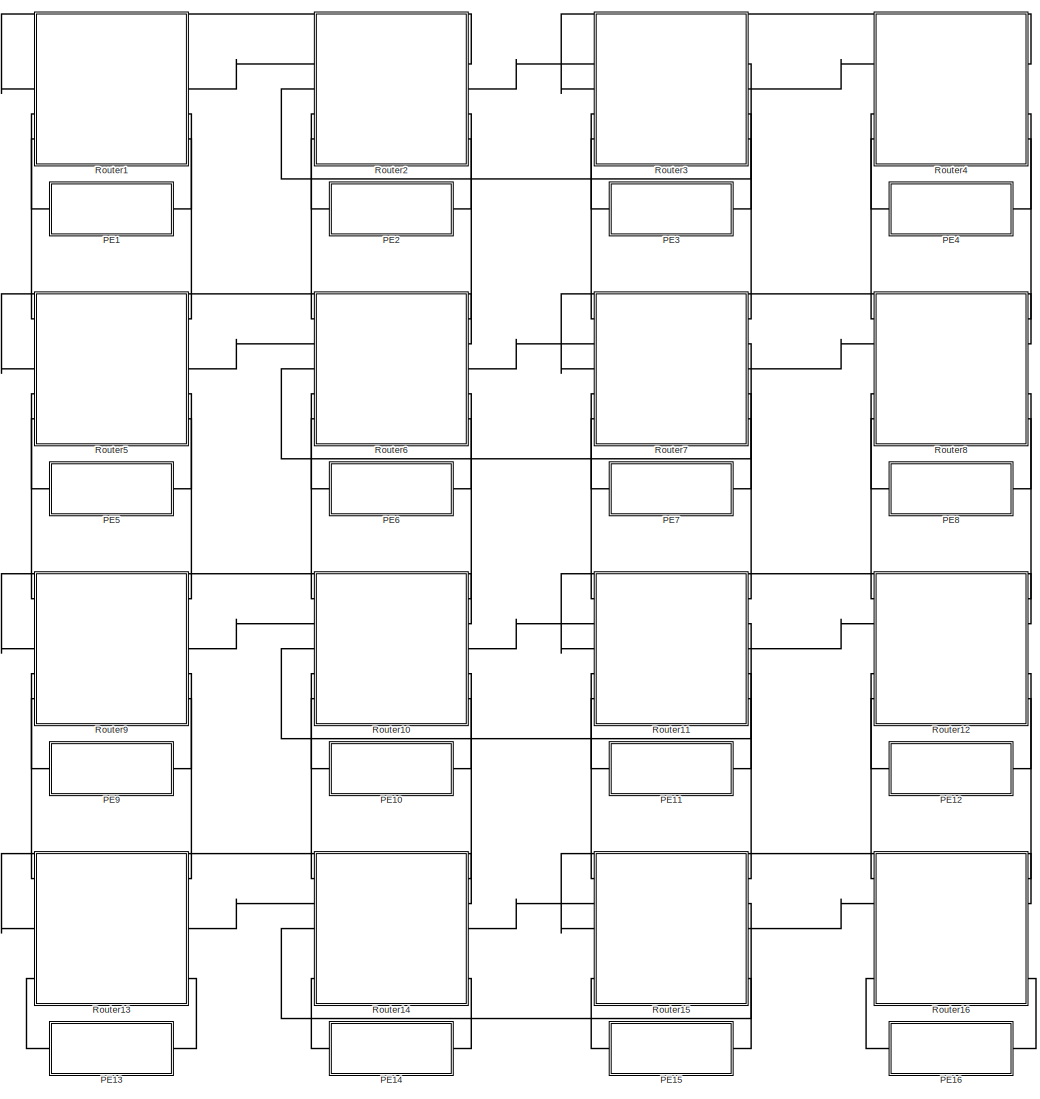
[diagram: root canvas - part 1/1, most of the canvas]
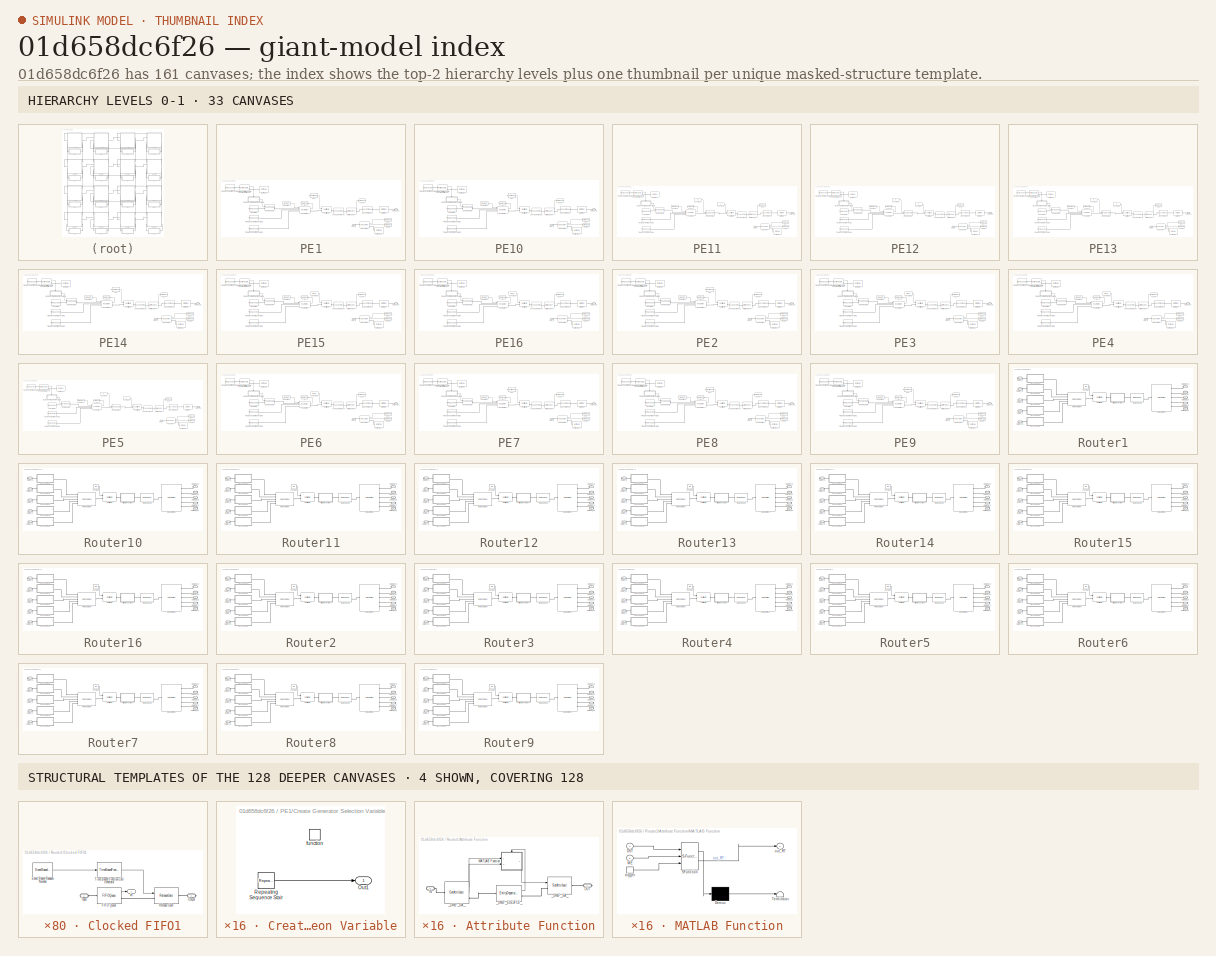
[diagram: thumbnail index - top-2 hierarchy levels (33 canvases) + 4 structural-template representatives of the remaining 128 canvases]
MODEL slx_01d658dc6f26
KIND model
CONFIG AbsTol = auto
CONFIG EnableMultiTasking = off
CONFIG FixedStep = auto
CONFIG MaxStep = auto
CONFIG MinStep = auto
CONFIG RelTol = 1e-3
CONFIG SampleTimeConstraint = Unconstrained
CONFIG SolverName = VariableStepAuto
CONFIG StartTime = 0.0
CONFIG StopTime = 10.0
BLOCK [SubSystem] PE1
  Ports = [0, 0, 0, 0, 0, 1, 1]
  RequestExecContextInheritance = off
BLOCK [CancelTimeout] PE1/Cancel Timeout
  Ports = [0, 0, 0, 0, 0, 1, 1]
BLOCK [Constant] PE1/Constant
  Value = SELECT
BLOCK [SubSystem] PE1/Create Generator Selection Variable
  Ports = [0, 1, 0, 1]
  RequestExecContextInheritance = off
  TreatAsAtomicUnit = on
BLOCK [Outport] PE1/Create Generator Selection Variable/Out1
BLOCK [Reference] PE1/Create Generator Selection Variable/Repeating Sequence Stair  REF=simulink/Sources/Repeating
Sequence
Stair
  Ports = [0, 1]
  SourceBlock = simulink/Sources/Repeating\nSequence\nStair
  SourceProductBaseCode = SL
  SourceType = Repeating Sequence Stair
BLOCK [TriggerPort] PE1/Create Generator Selection Variable/function
  Ports = []
  StatesWhenEnabling = held
  TriggerType = function-call
  VariantControl = (inherit)
BLOCK [EventBasedRandomNumber] PE1/DST
  Distribution = Arbitrary discrete
  OutputPortMap = o0
  Ports = [0, 1]
  Seed = SEED+5
  maxUnid = 16
  minUnid = 1
  numValueUnid = 5
  probVecDisc = P
  valueVecDisc = V
BLOCK [PMIOPort] PE1/Data_in
  Port = 2
  Side = Left
BLOCK [PMIOPort] PE1/Data_out1
  Side = Right
BLOCK [EnabledGate] PE1/Enabled Gate
  InputPortMap = u0
  Ports = [1, 0, 0, 0, 0, 1, 1]
BLOCK [EntityDepartureFunctionCallGenerator] PE1/Entity Departure Event to Function-Call Event
  OutputPortMap = o0
  Ports = [0, 1, 0, 0, 0, 1, 1]
BLOCK [EntitySink] PE1/Entity Sink
  Ports = [0, 0, 0, 0, 0, 1]
BLOCK [EntitySink] PE1/Entity Sink1
  Ports = [0, 0, 0, 0, 0, 1]
BLOCK [TimeBasedEntityGenerator] PE1/Generator 1
  Distribution = Exponential
  EntityType = Standard
  InitialSeed = SEED+10
  Maximum = .2
  Mean = B
  Period = .1
  Ports = [0, 0, 0, 0, 0, 0, 1]
  ResponseWhenUnblocked = Delayed restart
BLOCK [InfiniteServer] PE1/Infinite Server
  EnableTOPort = on
  OutputPortMap = o5
  Ports = [0, 1, 0, 0, 0, 1, 2]
  ServiceTime = D
  StatNumberTimedout = on
BLOCK [InputSwitch] PE1/Input Switch
  InputPortMap = u0
  NumberInputPorts = 4
  OutputPortMap = o0
  Ports = [1, 1, 0, 0, 0, 4, 1]
  StatNumberDeparted = on
  SwitchingCriterion = From signal port p
BLOCK [ToWorkspace] PE1/Inst
  FixptAsFi = on
  MaxDataPoints = inf
  Ports = [1]
  SampleTime = -1
  SaveFormat = Timeseries
  VariableName = Inst1
BLOCK [ToWorkspace] PE1/Loss
  FixptAsFi = on
  MaxDataPoints = inf
  Ports = [1]
  SampleTime = -1
  SaveFormat = Timeseries
  VariableName = Loss1
BLOCK [ToWorkspace] PE1/N
  FixptAsFi = on
  MaxDataPoints = inf
  NameLocation = top
  Ports = [1]
  SampleTime = -1
  SaveFormat = Timeseries
  VariableName = N1
BLOCK [ReadTimer] PE1/Read Timer
  OutputPortMap = o2,o3
  Ports = [0, 2, 0, 0, 0, 1, 1]
  StatAverageTimeElapsed = on
  StatTimeElapsed = on
  TimerTag = Departure
BLOCK [ToWorkspace] PE1/Router
  FixptAsFi = on
  MaxDataPoints = inf
  Ports = [1]
  SampleTime = -1
  SaveFormat = Timeseries
  VariableName = Mean1
BLOCK [ScheduleTimeout] PE1/Schedule Timeout
  Ports = [0, 0, 0, 0, 0, 1, 1]
  TimeoutInterval = D
BLOCK [SetAttribute] PE1/Set Attribute
  AttributeFrom = Signal port|Dialog
  AttributeName = DST|SRC
  AttributeTreatAsVector = 0|0
  AttributeValue = 16|1
  EvaluatedAttributeValue = { [];1}
  InputPortMap = u0
  OutputPortMap = o0
  Ports = [1, 1, 0, 0, 0, 1, 1]
  StatNumberDeparted = on
BLOCK [StartTimer] PE1/Start Timer
  Ports = [0, 0, 0, 0, 0, 1, 1]
  TimerTag = Departure
BLOCK [TimeBasedEntityGenerator] PE1/Time-Based Entity Generator
  Distribution = Exponential
  EntityType = Standard
  InitialSeed = SEED
  Maximum = 2
  Mean = A
  Period = 15
  Ports = [0, 0, 0, 0, 0, 0, 1]
  PriorityEntityGeneration = 350
BLOCK [TimeBasedEntityGenerator] PE1/Time-Based Entity Generator1
  Period = REGULAR
  Ports = [0, 0, 0, 0, 0, 0, 1]
BLOCK [TimeBasedEntityGenerator] PE1/Time-Based Entity Generator2
  Distribution = Uniform
  InitialSeed = SEED
  Maximum = MAXU
  Minimum = MINU
  Ports = [0, 0, 0, 0, 0, 0, 1]
BLOCK [SubSystem] PE10
  Ports = [0, 0, 0, 0, 0, 1, 1]
  RequestExecContextInheritance = off
BLOCK [CancelTimeout] PE10/Cancel Timeout
  Ports = [0, 0, 0, 0, 0, 1, 1]
BLOCK [Constant] PE10/Constant
  Value = SELECT
BLOCK [SubSystem] PE10/Create Generator Selection Variable
  Ports = [0, 1, 0, 1]
  RequestExecContextInheritance = off
  TreatAsAtomicUnit = on
BLOCK [Outport] PE10/Create Generator Selection Variable/Out1
BLOCK [Reference] PE10/Create Generator Selection Variable/Repeating Sequence Stair  REF=simulink/Sources/Repeating
Sequence
Stair
  Ports = [0, 1]
  SourceBlock = simulink/Sources/Repeating\nSequence\nStair
  SourceProductBaseCode = SL
  SourceType = Repeating Sequence Stair
BLOCK [TriggerPort] PE10/Create Generator Selection Variable/function
  Ports = []
  StatesWhenEnabling = held
  TriggerType = function-call
  VariantControl = (inherit)
BLOCK [EventBasedRandomNumber] PE10/DST
  Distribution = Arbitrary discrete
  OutputPortMap = o0
  Ports = [0, 1]
  Seed = SEED+5
  maxUnid = 16
  minUnid = 1
  numValueUnid = 5
  probVecDisc = P
  valueVecDisc = V
BLOCK [PMIOPort] PE10/Data_in
  Port = 2
  Side = Left
BLOCK [PMIOPort] PE10/Data_out1
  Side = Right
BLOCK [EnabledGate] PE10/Enabled Gate
  InputPortMap = u0
  Ports = [1, 0, 0, 0, 0, 1, 1]
BLOCK [EntityDepartureFunctionCallGenerator] PE10/Entity Departure Event to Function-Call Event
  OutputPortMap = o0
  Ports = [0, 1, 0, 0, 0, 1, 1]
BLOCK [EntitySink] PE10/Entity Sink
  Ports = [0, 0, 0, 0, 0, 1]
BLOCK [EntitySink] PE10/Entity Sink1
  Ports = [0, 0, 0, 0, 0, 1]
BLOCK [TimeBasedEntityGenerator] PE10/Generator 1
  Distribution = Exponential
  EntityType = Standard
  InitialSeed = SEED+10
  Maximum = .2
  Mean = B
  Period = .1
  Ports = [0, 0, 0, 0, 0, 0, 1]
  ResponseWhenUnblocked = Delayed restart
BLOCK [InfiniteServer] PE10/Infinite Server
  EnableTOPort = on
  OutputPortMap = o5
  Ports = [0, 1, 0, 0, 0, 1, 2]
  ServiceTime = D
  StatNumberTimedout = on
BLOCK [InputSwitch] PE10/Input Switch
  InputPortMap = u0
  NumberInputPorts = 4
  OutputPortMap = o0
  Ports = [1, 1, 0, 0, 0, 4, 1]
  StatNumberDeparted = on
  SwitchingCriterion = From signal port p
BLOCK [ToWorkspace] PE10/Inst
  FixptAsFi = on
  MaxDataPoints = inf
  Ports = [1]
  SampleTime = -1
  SaveFormat = Timeseries
  VariableName = Inst10
BLOCK [ToWorkspace] PE10/Loss
  FixptAsFi = on
  MaxDataPoints = inf
  Ports = [1]
  SampleTime = -1
  SaveFormat = Timeseries
  VariableName = Loss10
BLOCK [ToWorkspace] PE10/N
  FixptAsFi = on
  MaxDataPoints = inf
  NameLocation = top
  Ports = [1]
  SampleTime = -1
  SaveFormat = Timeseries
  VariableName = N10
BLOCK [ReadTimer] PE10/Read Timer
  OutputPortMap = o2,o3
  Ports = [0, 2, 0, 0, 0, 1, 1]
  StatAverageTimeElapsed = on
  StatTimeElapsed = on
  TimerTag = Departure
BLOCK [ToWorkspace] PE10/Router
  FixptAsFi = on
  MaxDataPoints = inf
  Ports = [1]
  SampleTime = -1
  SaveFormat = Timeseries
  VariableName = Mean10
BLOCK [ScheduleTimeout] PE10/Schedule Timeout
  Ports = [0, 0, 0, 0, 0, 1, 1]
  TimeoutInterval = D
BLOCK [SetAttribute] PE10/Set Attribute
  AttributeFrom = Signal port|Dialog
  AttributeName = DST|SRC
  AttributeTreatAsVector = 0|0
  AttributeValue = 16|1
  EvaluatedAttributeValue = { [];1}
  InputPortMap = u0
  OutputPortMap = o0
  Ports = [1, 1, 0, 0, 0, 1, 1]
  StatNumberDeparted = on
BLOCK [StartTimer] PE10/Start Timer
  Ports = [0, 0, 0, 0, 0, 1, 1]
  TimerTag = Departure
BLOCK [TimeBasedEntityGenerator] PE10/Time-Based Entity Generator
  Distribution = Exponential
  EntityType = Standard
  InitialSeed = SEED
  Maximum = 2
  Mean = A
  Period = 15
  Ports = [0, 0, 0, 0, 0, 0, 1]
  PriorityEntityGeneration = 350
BLOCK [TimeBasedEntityGenerator] PE10/Time-Based Entity Generator1
  Period = REGULAR
  Ports = [0, 0, 0, 0, 0, 0, 1]
BLOCK [TimeBasedEntityGenerator] PE10/Time-Based Entity Generator2
  Distribution = Uniform
  InitialSeed = SEED
  Maximum = MAXU
  Minimum = MINU
  Ports = [0, 0, 0, 0, 0, 0, 1]
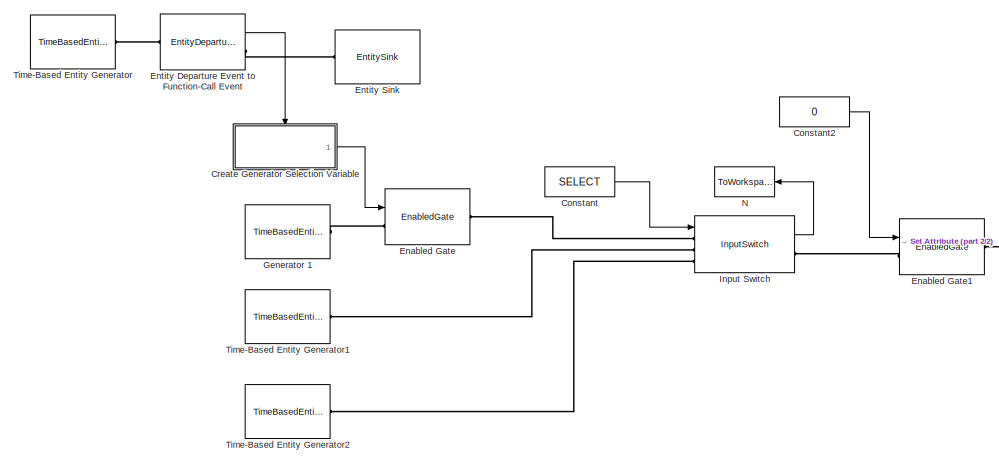
[diagram: PE11 - part 1/2, left side, full height]
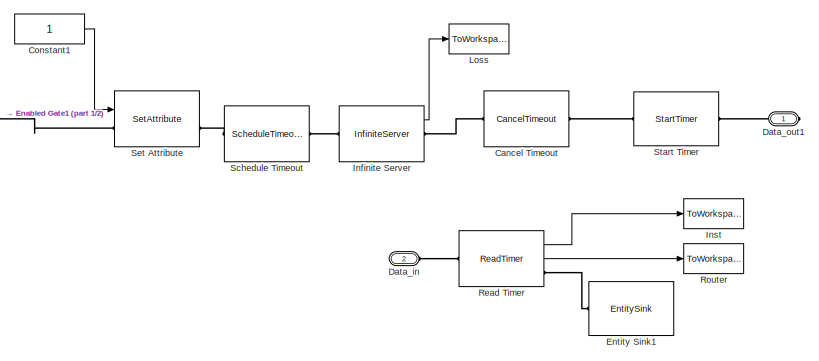
[diagram: PE11 - part 2/2, middle right region]
BLOCK [SubSystem] PE11
  Ports = [0, 0, 0, 0, 0, 1, 1]
  RequestExecContextInheritance = off
BLOCK [CancelTimeout] PE11/Cancel Timeout
  Ports = [0, 0, 0, 0, 0, 1, 1]
BLOCK [Constant] PE11/Constant
  Value = SELECT
BLOCK [Constant] PE11/Constant1
BLOCK [Constant] PE11/Constant2
  Value = 0
BLOCK [SubSystem] PE11/Create Generator Selection Variable
  Ports = [0, 1, 0, 1]
  RequestExecContextInheritance = off
  TreatAsAtomicUnit = on
BLOCK [Outport] PE11/Create Generator Selection Variable/Out1
BLOCK [Reference] PE11/Create Generator Selection Variable/Repeating Sequence Stair  REF=simulink/Sources/Repeating
Sequence
Stair
  Ports = [0, 1]
  SourceBlock = simulink/Sources/Repeating\nSequence\nStair
  SourceProductBaseCode = SL
  SourceType = Repeating Sequence Stair
BLOCK [TriggerPort] PE11/Create Generator Selection Variable/function
  Ports = []
  StatesWhenEnabling = held
  TriggerType = function-call
  VariantControl = (inherit)
BLOCK [PMIOPort] PE11/Data_in
  Port = 2
  Side = Left
BLOCK [PMIOPort] PE11/Data_out1
  Side = Right
BLOCK [EnabledGate] PE11/Enabled Gate
  InputPortMap = u0
  Ports = [1, 0, 0, 0, 0, 1, 1]
BLOCK [EnabledGate] PE11/Enabled Gate1
  InputPortMap = u0
  Ports = [1, 0, 0, 0, 0, 1, 1]
BLOCK [EntityDepartureFunctionCallGenerator] PE11/Entity Departure Event to Function-Call Event
  OutputPortMap = o0
  Ports = [0, 1, 0, 0, 0, 1, 1]
BLOCK [EntitySink] PE11/Entity Sink
  Ports = [0, 0, 0, 0, 0, 1]
BLOCK [EntitySink] PE11/Entity Sink1
  Ports = [0, 0, 0, 0, 0, 1]
BLOCK [TimeBasedEntityGenerator] PE11/Generator 1
  Distribution = Exponential
  EntityType = Standard
  InitialSeed = SEED+10
  Maximum = .2
  Mean = B
  Period = .1
  Ports = [0, 0, 0, 0, 0, 0, 1]
  ResponseWhenUnblocked = Delayed restart
BLOCK [InfiniteServer] PE11/Infinite Server
  EnableTOPort = on
  OutputPortMap = o5
  Ports = [0, 1, 0, 0, 0, 1, 2]
  ServiceTime = D
  StatNumberTimedout = on
BLOCK [InputSwitch] PE11/Input Switch
  InputPortMap = u0
  OutputPortMap = o0
  Ports = [1, 1, 0, 0, 0, 3, 1]
  StatNumberDeparted = on
  SwitchingCriterion = From signal port p
BLOCK [ToWorkspace] PE11/Inst
  FixptAsFi = on
  MaxDataPoints = inf
  Ports = [1]
  SampleTime = -1
  SaveFormat = Timeseries
  VariableName = Inst11
BLOCK [ToWorkspace] PE11/Loss
  FixptAsFi = on
  MaxDataPoints = inf
  Ports = [1]
  SampleTime = -1
  SaveFormat = Timeseries
  VariableName = Loss11
BLOCK [ToWorkspace] PE11/N
  FixptAsFi = on
  MaxDataPoints = inf
  NameLocation = top
  Ports = [1]
  SampleTime = -1
  SaveFormat = Timeseries
  VariableName = N11
BLOCK [ReadTimer] PE11/Read Timer
  OutputPortMap = o2,o3
  Ports = [0, 2, 0, 0, 0, 1, 1]
  StatAverageTimeElapsed = on
  StatTimeElapsed = on
  TimerTag = Departure
BLOCK [ToWorkspace] PE11/Router
  FixptAsFi = on
  MaxDataPoints = inf
  Ports = [1]
  SampleTime = -1
  SaveFormat = Timeseries
  VariableName = Mean11
BLOCK [ScheduleTimeout] PE11/Schedule Timeout
  Ports = [0, 0, 0, 0, 0, 1, 1]
  TimeoutInterval = D
BLOCK [SetAttribute] PE11/Set Attribute
  AttributeFrom = Signal port|Dialog
  AttributeName = DST|SRC
  AttributeTreatAsVector = 0|0
  AttributeValue = 16|1
  EvaluatedAttributeValue = { [];1}
  InputPortMap = u0
  OutputPortMap = o0
  Ports = [1, 1, 0, 0, 0, 1, 1]
  StatNumberDeparted = on
BLOCK [StartTimer] PE11/Start Timer
  Ports = [0, 0, 0, 0, 0, 1, 1]
  TimerTag = Departure
BLOCK [TimeBasedEntityGenerator] PE11/Time-Based Entity Generator
  Distribution = Exponential
  EntityType = Standard
  InitialSeed = SEED
  Maximum = 2
  Mean = A
  Period = 15
  Ports = [0, 0, 0, 0, 0, 0, 1]
  PriorityEntityGeneration = 350
BLOCK [TimeBasedEntityGenerator] PE11/Time-Based Entity Generator1
  Period = REGULAR
  Ports = [0, 0, 0, 0, 0, 0, 1]
BLOCK [TimeBasedEntityGenerator] PE11/Time-Based Entity Generator2
  Distribution = Uniform
  InitialSeed = SEED
  Maximum = MAXU
  Minimum = MINU
  Ports = [0, 0, 0, 0, 0, 0, 1]
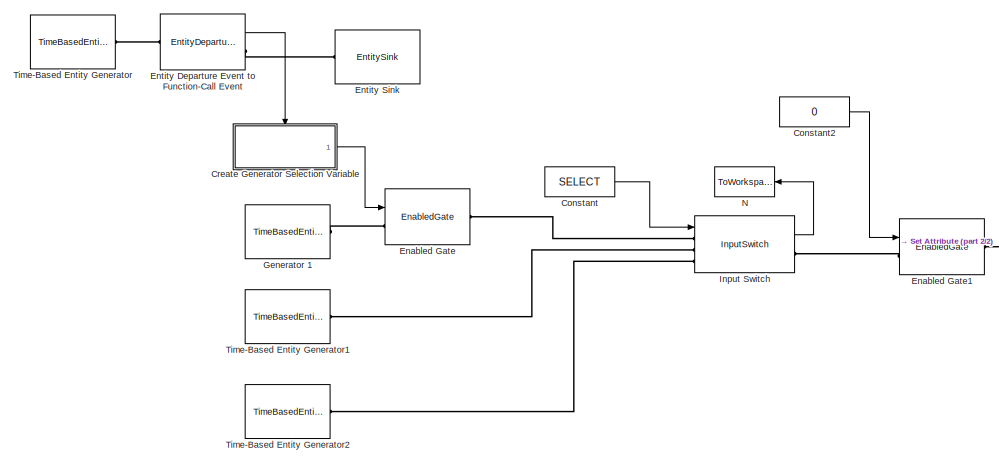
[diagram: PE12 - part 1/2, left side, full height]
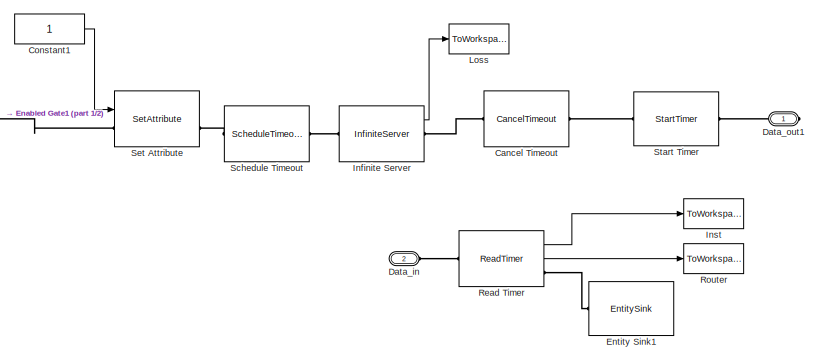
[diagram: PE12 - part 2/2, middle right region]
BLOCK [SubSystem] PE12
  Ports = [0, 0, 0, 0, 0, 1, 1]
  RequestExecContextInheritance = off
BLOCK [CancelTimeout] PE12/Cancel Timeout
  Ports = [0, 0, 0, 0, 0, 1, 1]
BLOCK [Constant] PE12/Constant
  Value = SELECT
BLOCK [Constant] PE12/Constant1
BLOCK [Constant] PE12/Constant2
  Value = 0
BLOCK [SubSystem] PE12/Create Generator Selection Variable
  Ports = [0, 1, 0, 1]
  RequestExecContextInheritance = off
  TreatAsAtomicUnit = on
BLOCK [Outport] PE12/Create Generator Selection Variable/Out1
BLOCK [Reference] PE12/Create Generator Selection Variable/Repeating Sequence Stair  REF=simulink/Sources/Repeating
Sequence
Stair
  Ports = [0, 1]
  SourceBlock = simulink/Sources/Repeating\nSequence\nStair
  SourceProductBaseCode = SL
  SourceType = Repeating Sequence Stair
BLOCK [TriggerPort] PE12/Create Generator Selection Variable/function
  Ports = []
  StatesWhenEnabling = held
  TriggerType = function-call
  VariantControl = (inherit)
BLOCK [PMIOPort] PE12/Data_in
  Port = 2
  Side = Left
BLOCK [PMIOPort] PE12/Data_out1
  Side = Right
BLOCK [EnabledGate] PE12/Enabled Gate
  InputPortMap = u0
  Ports = [1, 0, 0, 0, 0, 1, 1]
BLOCK [EnabledGate] PE12/Enabled Gate1
  InputPortMap = u0
  Ports = [1, 0, 0, 0, 0, 1, 1]
BLOCK [EntityDepartureFunctionCallGenerator] PE12/Entity Departure Event to Function-Call Event
  OutputPortMap = o0
  Ports = [0, 1, 0, 0, 0, 1, 1]
BLOCK [EntitySink] PE12/Entity Sink
  Ports = [0, 0, 0, 0, 0, 1]
BLOCK [EntitySink] PE12/Entity Sink1
  Ports = [0, 0, 0, 0, 0, 1]
BLOCK [TimeBasedEntityGenerator] PE12/Generator 1
  Distribution = Exponential
  EntityType = Standard
  InitialSeed = SEED+10
  Maximum = .2
  Mean = B
  Period = .1
  Ports = [0, 0, 0, 0, 0, 0, 1]
  ResponseWhenUnblocked = Delayed restart
BLOCK [InfiniteServer] PE12/Infinite Server
  EnableTOPort = on
  OutputPortMap = o5
  Ports = [0, 1, 0, 0, 0, 1, 2]
  ServiceTime = D
  StatNumberTimedout = on
BLOCK [InputSwitch] PE12/Input Switch
  InputPortMap = u0
  OutputPortMap = o0
  Ports = [1, 1, 0, 0, 0, 3, 1]
  StatNumberDeparted = on
  SwitchingCriterion = From signal port p
BLOCK [ToWorkspace] PE12/Inst
  FixptAsFi = on
  MaxDataPoints = inf
  Ports = [1]
  SampleTime = -1
  SaveFormat = Timeseries
  VariableName = Inst12
BLOCK [ToWorkspace] PE12/Loss
  FixptAsFi = on
  MaxDataPoints = inf
  Ports = [1]
  SampleTime = -1
  SaveFormat = Timeseries
  VariableName = Loss12
BLOCK [ToWorkspace] PE12/N
  FixptAsFi = on
  MaxDataPoints = inf
  NameLocation = top
  Ports = [1]
  SampleTime = -1
  SaveFormat = Timeseries
  VariableName = N12
BLOCK [ReadTimer] PE12/Read Timer
  OutputPortMap = o2,o3
  Ports = [0, 2, 0, 0, 0, 1, 1]
  StatAverageTimeElapsed = on
  StatTimeElapsed = on
  TimerTag = Departure
BLOCK [ToWorkspace] PE12/Router
  FixptAsFi = on
  MaxDataPoints = inf
  Ports = [1]
  SampleTime = -1
  SaveFormat = Timeseries
  VariableName = Mean12
BLOCK [ScheduleTimeout] PE12/Schedule Timeout
  Ports = [0, 0, 0, 0, 0, 1, 1]
  TimeoutInterval = D
BLOCK [SetAttribute] PE12/Set Attribute
  AttributeFrom = Signal port|Dialog
  AttributeName = DST|SRC
  AttributeTreatAsVector = 0|0
  AttributeValue = 16|1
  EvaluatedAttributeValue = { [];1}
  InputPortMap = u0
  OutputPortMap = o0
  Ports = [1, 1, 0, 0, 0, 1, 1]
  StatNumberDeparted = on
BLOCK [StartTimer] PE12/Start Timer
  Ports = [0, 0, 0, 0, 0, 1, 1]
  TimerTag = Departure
BLOCK [TimeBasedEntityGenerator] PE12/Time-Based Entity Generator
  Distribution = Exponential
  EntityType = Standard
  InitialSeed = SEED
  Maximum = 2
  Mean = A
  Period = 15
  Ports = [0, 0, 0, 0, 0, 0, 1]
  PriorityEntityGeneration = 350
BLOCK [TimeBasedEntityGenerator] PE12/Time-Based Entity Generator1
  Period = REGULAR
  Ports = [0, 0, 0, 0, 0, 0, 1]
BLOCK [TimeBasedEntityGenerator] PE12/Time-Based Entity Generator2
  Distribution = Uniform
  InitialSeed = SEED
  Maximum = MAXU
  Minimum = MINU
  Ports = [0, 0, 0, 0, 0, 0, 1]
BLOCK [SubSystem] PE13
  Ports = [0, 0, 0, 0, 0, 1, 1]
  RequestExecContextInheritance = off
BLOCK [CancelTimeout] PE13/Cancel Timeout
  Ports = [0, 0, 0, 0, 0, 1, 1]
BLOCK [Constant] PE13/Constant
  Value = SELECT
BLOCK [Constant] PE13/Constant1
BLOCK [Constant] PE13/Constant2
  Value = 0
BLOCK [SubSystem] PE13/Create Generator Selection Variable
  Ports = [0, 1, 0, 1]
  RequestExecContextInheritance = off
  TreatAsAtomicUnit = on
BLOCK [Outport] PE13/Create Generator Selection Variable/Out1
BLOCK [Reference] PE13/Create Generator Selection Variable/Repeating Sequence Stair  REF=simulink/Sources/Repeating
Sequence
Stair
  Ports = [0, 1]
  SourceBlock = simulink/Sources/Repeating\nSequence\nStair
  SourceProductBaseCode = SL
  SourceType = Repeating Sequence Stair
BLOCK [TriggerPort] PE13/Create Generator Selection Variable/function
  Ports = []
  StatesWhenEnabling = held
  TriggerType = function-call
  VariantControl = (inherit)
BLOCK [PMIOPort] PE13/Data_in
  Port = 2
  Side = Left
BLOCK [PMIOPort] PE13/Data_out1
  Side = Right
BLOCK [EnabledGate] PE13/Enabled Gate
  InputPortMap = u0
  Ports = [1, 0, 0, 0, 0, 1, 1]
BLOCK [EnabledGate] PE13/Enabled Gate1
  InputPortMap = u0
  Ports = [1, 0, 0, 0, 0, 1, 1]
BLOCK [EntityDepartureFunctionCallGenerator] PE13/Entity Departure Event to Function-Call Event
  OutputPortMap = o0
  Ports = [0, 1, 0, 0, 0, 1, 1]
BLOCK [EntitySink] PE13/Entity Sink
  Ports = [0, 0, 0, 0, 0, 1]
BLOCK [EntitySink] PE13/Entity Sink1
  Ports = [0, 0, 0, 0, 0, 1]
BLOCK [TimeBasedEntityGenerator] PE13/Generator 1
  Distribution = Exponential
  EntityType = Standard
  InitialSeed = SEED+10
  Maximum = .2
  Mean = B
  Period = .1
  Ports = [0, 0, 0, 0, 0, 0, 1]
  ResponseWhenUnblocked = Delayed restart
BLOCK [InfiniteServer] PE13/Infinite Server
  EnableTOPort = on
  OutputPortMap = o5
  Ports = [0, 1, 0, 0, 0, 1, 2]
  ServiceTime = D
  StatNumberTimedout = on
BLOCK [InputSwitch] PE13/Input Switch
  InputPortMap = u0
  OutputPortMap = o0
  Ports = [1, 1, 0, 0, 0, 3, 1]
  StatNumberDeparted = on
  SwitchingCriterion = From signal port p
BLOCK [ToWorkspace] PE13/Inst
  FixptAsFi = on
  MaxDataPoints = inf
  Ports = [1]
  SampleTime = -1
  SaveFormat = Timeseries
  VariableName = Inst13
BLOCK [ToWorkspace] PE13/Loss
  FixptAsFi = on
  MaxDataPoints = inf
  Ports = [1]
  SampleTime = -1
  SaveFormat = Timeseries
  VariableName = Loss13
BLOCK [ToWorkspace] PE13/N
  FixptAsFi = on
  MaxDataPoints = inf
  NameLocation = top
  Ports = [1]
  SampleTime = -1
  SaveFormat = Timeseries
  VariableName = N13
BLOCK [ReadTimer] PE13/Read Timer
  OutputPortMap = o2,o3
  Ports = [0, 2, 0, 0, 0, 1, 1]
  StatAverageTimeElapsed = on
  StatTimeElapsed = on
  TimerTag = Departure
BLOCK [ToWorkspace] PE13/Router
  FixptAsFi = on
  MaxDataPoints = inf
  Ports = [1]
  SampleTime = -1
  SaveFormat = Timeseries
  VariableName = Mean13
BLOCK [ScheduleTimeout] PE13/Schedule Timeout
  Ports = [0, 0, 0, 0, 0, 1, 1]
  TimeoutInterval = D
BLOCK [SetAttribute] PE13/Set Attribute
  AttributeFrom = Signal port|Dialog
  AttributeName = DST|SRC
  AttributeTreatAsVector = 0|0
  AttributeValue = 16|1
  EvaluatedAttributeValue = { [];1}
  InputPortMap = u0
  OutputPortMap = o0
  Ports = [1, 1, 0, 0, 0, 1, 1]
  StatNumberDeparted = on
BLOCK [StartTimer] PE13/Start Timer
  Ports = [0, 0, 0, 0, 0, 1, 1]
  TimerTag = Departure
BLOCK [TimeBasedEntityGenerator] PE13/Time-Based Entity Generator
  Distribution = Exponential
  EntityType = Standard
  InitialSeed = SEED
  Maximum = 2
  Mean = A
  Period = 15
  Ports = [0, 0, 0, 0, 0, 0, 1]
  PriorityEntityGeneration = 350
BLOCK [TimeBasedEntityGenerator] PE13/Time-Based Entity Generator1
  Period = REGULAR
  Ports = [0, 0, 0, 0, 0, 0, 1]
BLOCK [TimeBasedEntityGenerator] PE13/Time-Based Entity Generator2
  Distribution = Uniform
  InitialSeed = SEED
  Maximum = MAXU
  Minimum = MINU
  Ports = [0, 0, 0, 0, 0, 0, 1]
BLOCK [SubSystem] PE14
  Ports = [0, 0, 0, 0, 0, 1, 1]
  RequestExecContextInheritance = off
BLOCK [CancelTimeout] PE14/Cancel Timeout
  Ports = [0, 0, 0, 0, 0, 1, 1]
BLOCK [Constant] PE14/Constant
  Value = SELECT
BLOCK [SubSystem] PE14/Create Generator Selection Variable
  Ports = [0, 1, 0, 1]
  RequestExecContextInheritance = off
  TreatAsAtomicUnit = on
BLOCK [Outport] PE14/Create Generator Selection Variable/Out1
BLOCK [Reference] PE14/Create Generator Selection Variable/Repeating Sequence Stair  REF=simulink/Sources/Repeating
Sequence
Stair
  Ports = [0, 1]
  SourceBlock = simulink/Sources/Repeating\nSequence\nStair
  SourceProductBaseCode = SL
  SourceType = Repeating Sequence Stair
BLOCK [TriggerPort] PE14/Create Generator Selection Variable/function
  Ports = []
  StatesWhenEnabling = held
  TriggerType = function-call
  VariantControl = (inherit)
BLOCK [EventBasedRandomNumber] PE14/DST
  Distribution = Arbitrary discrete
  OutputPortMap = o0
  Ports = [0, 1]
  Seed = SEED+5
  maxUnid = 16
  minUnid = 1
  numValueUnid = 5
  probVecDisc = P
  valueVecDisc = V
BLOCK [PMIOPort] PE14/Data_in
  Port = 2
  Side = Left
BLOCK [PMIOPort] PE14/Data_out1
  Side = Right
BLOCK [EnabledGate] PE14/Enabled Gate
  InputPortMap = u0
  Ports = [1, 0, 0, 0, 0, 1, 1]
BLOCK [EntityDepartureFunctionCallGenerator] PE14/Entity Departure Event to Function-Call Event
  OutputPortMap = o0
  Ports = [0, 1, 0, 0, 0, 1, 1]
BLOCK [EntitySink] PE14/Entity Sink
  Ports = [0, 0, 0, 0, 0, 1]
BLOCK [EntitySink] PE14/Entity Sink1
  Ports = [0, 0, 0, 0, 0, 1]
BLOCK [TimeBasedEntityGenerator] PE14/Generator 1
  Distribution = Exponential
  EntityType = Standard
  InitialSeed = SEED+10
  Maximum = .2
  Mean = B
  Period = .1
  Ports = [0, 0, 0, 0, 0, 0, 1]
  ResponseWhenUnblocked = Delayed restart
BLOCK [InfiniteServer] PE14/Infinite Server
  EnableTOPort = on
  OutputPortMap = o5
  Ports = [0, 1, 0, 0, 0, 1, 2]
  ServiceTime = D
  StatNumberTimedout = on
BLOCK [InputSwitch] PE14/Input Switch
  InputPortMap = u0
  NumberInputPorts = 4
  OutputPortMap = o0
  Ports = [1, 1, 0, 0, 0, 4, 1]
  StatNumberDeparted = on
  SwitchingCriterion = From signal port p
BLOCK [ToWorkspace] PE14/Inst
  FixptAsFi = on
  MaxDataPoints = inf
  Ports = [1]
  SampleTime = -1
  SaveFormat = Timeseries
  VariableName = Inst14
BLOCK [ToWorkspace] PE14/Loss
  FixptAsFi = on
  MaxDataPoints = inf
  Ports = [1]
  SampleTime = -1
  SaveFormat = Timeseries
  VariableName = Loss14
BLOCK [ToWorkspace] PE14/N
  FixptAsFi = on
  MaxDataPoints = inf
  NameLocation = top
  Ports = [1]
  SampleTime = -1
  SaveFormat = Timeseries
  VariableName = N14
BLOCK [ReadTimer] PE14/Read Timer
  OutputPortMap = o2,o3
  Ports = [0, 2, 0, 0, 0, 1, 1]
  StatAverageTimeElapsed = on
  StatTimeElapsed = on
  TimerTag = Departure
BLOCK [ToWorkspace] PE14/Router
  FixptAsFi = on
  MaxDataPoints = inf
  Ports = [1]
  SampleTime = -1
  SaveFormat = Timeseries
  VariableName = Mean14
BLOCK [ScheduleTimeout] PE14/Schedule Timeout
  Ports = [0, 0, 0, 0, 0, 1, 1]
  TimeoutInterval = D
BLOCK [SetAttribute] PE14/Set Attribute
  AttributeFrom = Signal port|Dialog
  AttributeName = DST|SRC
  AttributeTreatAsVector = 0|0
  AttributeValue = 16|1
  EvaluatedAttributeValue = { [];1}
  InputPortMap = u0
  OutputPortMap = o0
  Ports = [1, 1, 0, 0, 0, 1, 1]
  StatNumberDeparted = on
BLOCK [StartTimer] PE14/Start Timer
  Ports = [0, 0, 0, 0, 0, 1, 1]
  TimerTag = Departure
BLOCK [TimeBasedEntityGenerator] PE14/Time-Based Entity Generator
  Distribution = Exponential
  EntityType = Standard
  InitialSeed = SEED
  Maximum = 2
  Mean = A
  Period = 15
  Ports = [0, 0, 0, 0, 0, 0, 1]
  PriorityEntityGeneration = 350
BLOCK [TimeBasedEntityGenerator] PE14/Time-Based Entity Generator1
  Period = REGULAR
  Ports = [0, 0, 0, 0, 0, 0, 1]
BLOCK [TimeBasedEntityGenerator] PE14/Time-Based Entity Generator2
  Distribution = Uniform
  InitialSeed = SEED
  Maximum = MAXU
  Minimum = MINU
  Ports = [0, 0, 0, 0, 0, 0, 1]
BLOCK [SubSystem] PE15
  Ports = [0, 0, 0, 0, 0, 1, 1]
  RequestExecContextInheritance = off
BLOCK [CancelTimeout] PE15/Cancel Timeout
  Ports = [0, 0, 0, 0, 0, 1, 1]
BLOCK [Constant] PE15/Constant
  Value = SELECT
BLOCK [Constant] PE15/Constant1
  Value = DST1
BLOCK [SubSystem] PE15/Create Generator Selection Variable
  Ports = [0, 1, 0, 1]
  RequestExecContextInheritance = off
  TreatAsAtomicUnit = on
BLOCK [Outport] PE15/Create Generator Selection Variable/Out1
BLOCK [Reference] PE15/Create Generator Selection Variable/Repeating Sequence Stair  REF=simulink/Sources/Repeating
Sequence
Stair
  Ports = [0, 1]
  SourceBlock = simulink/Sources/Repeating\nSequence\nStair
  SourceProductBaseCode = SL
  SourceType = Repeating Sequence Stair
BLOCK [TriggerPort] PE15/Create Generator Selection Variable/function
  Ports = []
  StatesWhenEnabling = held
  TriggerType = function-call
  VariantControl = (inherit)
BLOCK [PMIOPort] PE15/Data_in
  Port = 2
  Side = Left
BLOCK [PMIOPort] PE15/Data_out1
  Side = Right
BLOCK [EnabledGate] PE15/Enabled Gate
  InputPortMap = u0
  Ports = [1, 0, 0, 0, 0, 1, 1]
BLOCK [EntityDepartureFunctionCallGenerator] PE15/Entity Departure Event to Function-Call Event
  OutputPortMap = o0
  Ports = [0, 1, 0, 0, 0, 1, 1]
BLOCK [EntitySink] PE15/Entity Sink
  Ports = [0, 0, 0, 0, 0, 1]
BLOCK [EntitySink] PE15/Entity Sink1
  Ports = [0, 0, 0, 0, 0, 1]
BLOCK [TimeBasedEntityGenerator] PE15/Generator 1
  Distribution = Exponential
  EntityType = Standard
  InitialSeed = SEED+10
  Maximum = .2
  Mean = B
  Period = .1
  Ports = [0, 0, 0, 0, 0, 0, 1]
  ResponseWhenUnblocked = Delayed restart
BLOCK [InfiniteServer] PE15/Infinite Server
  EnableTOPort = on
  OutputPortMap = o5
  Ports = [0, 1, 0, 0, 0, 1, 2]
  ServiceTime = D
  StatNumberTimedout = on
BLOCK [InputSwitch] PE15/Input Switch
  InputPortMap = u0
  OutputPortMap = o0
  Ports = [1, 1, 0, 0, 0, 3, 1]
  StatNumberDeparted = on
  SwitchingCriterion = From signal port p
BLOCK [ToWorkspace] PE15/Inst
  FixptAsFi = on
  MaxDataPoints = inf
  Ports = [1]
  SampleTime = -1
  SaveFormat = Timeseries
  VariableName = Inst15
BLOCK [ToWorkspace] PE15/Loss
  FixptAsFi = on
  MaxDataPoints = inf
  Ports = [1]
  SampleTime = -1
  SaveFormat = Timeseries
  VariableName = Loss15
BLOCK [ToWorkspace] PE15/N
  FixptAsFi = on
  MaxDataPoints = inf
  NameLocation = top
  Ports = [1]
  SampleTime = -1
  SaveFormat = Timeseries
  VariableName = N15
BLOCK [ReadTimer] PE15/Read Timer
  OutputPortMap = o2,o3
  Ports = [0, 2, 0, 0, 0, 1, 1]
  StatAverageTimeElapsed = on
  StatTimeElapsed = on
  TimerTag = Departure
BLOCK [ToWorkspace] PE15/Router
  FixptAsFi = on
  MaxDataPoints = inf
  Ports = [1]
  SampleTime = -1
  SaveFormat = Timeseries
  VariableName = Mean15
BLOCK [ScheduleTimeout] PE15/Schedule Timeout
  Ports = [0, 0, 0, 0, 0, 1, 1]
  TimeoutInterval = D
BLOCK [SetAttribute] PE15/Set Attribute
  AttributeFrom = Signal port|Dialog
  AttributeName = DST|SRC
  AttributeTreatAsVector = 0|0
  AttributeValue = 16|1
  EvaluatedAttributeValue = { [];1}
  InputPortMap = u0
  OutputPortMap = o0
  Ports = [1, 1, 0, 0, 0, 1, 1]
  StatNumberDeparted = on
BLOCK [StartTimer] PE15/Start Timer
  Ports = [0, 0, 0, 0, 0, 1, 1]
  TimerTag = Departure
BLOCK [TimeBasedEntityGenerator] PE15/Time-Based Entity Generator
  Distribution = Exponential
  EntityType = Standard
  InitialSeed = SEED
  Maximum = 2
  Mean = A
  Period = 15
  Ports = [0, 0, 0, 0, 0, 0, 1]
  PriorityEntityGeneration = 350
BLOCK [TimeBasedEntityGenerator] PE15/Time-Based Entity Generator1
  Period = REGULAR
  Ports = [0, 0, 0, 0, 0, 0, 1]
BLOCK [TimeBasedEntityGenerator] PE15/Time-Based Entity Generator2
  Distribution = Uniform
  InitialSeed = SEED
  Maximum = MAXU
  Minimum = MINU
  Ports = [0, 0, 0, 0, 0, 0, 1]
BLOCK [SubSystem] PE16
  Ports = [0, 0, 0, 0, 0, 1, 1]
  RequestExecContextInheritance = off
BLOCK [CancelTimeout] PE16/Cancel Timeout
  Ports = [0, 0, 0, 0, 0, 1, 1]
BLOCK [Constant] PE16/Constant
  Value = SELECT
BLOCK [Constant] PE16/Constant1
  Value = DST1
BLOCK [SubSystem] PE16/Create Generator Selection Variable
  Ports = [0, 1, 0, 1]
  RequestExecContextInheritance = off
  TreatAsAtomicUnit = on
BLOCK [Outport] PE16/Create Generator Selection Variable/Out1
BLOCK [Reference] PE16/Create Generator Selection Variable/Repeating Sequence Stair  REF=simulink/Sources/Repeating
Sequence
Stair
  Ports = [0, 1]
  SourceBlock = simulink/Sources/Repeating\nSequence\nStair
  SourceProductBaseCode = SL
  SourceType = Repeating Sequence Stair
BLOCK [TriggerPort] PE16/Create Generator Selection Variable/function
  Ports = []
  StatesWhenEnabling = held
  TriggerType = function-call
  VariantControl = (inherit)
BLOCK [PMIOPort] PE16/Data_in
  Port = 2
  Side = Left
BLOCK [PMIOPort] PE16/Data_out1
  Side = Right
BLOCK [EnabledGate] PE16/Enabled Gate
  InputPortMap = u0
  Ports = [1, 0, 0, 0, 0, 1, 1]
BLOCK [EntityDepartureFunctionCallGenerator] PE16/Entity Departure Event to Function-Call Event
  OutputPortMap = o0
  Ports = [0, 1, 0, 0, 0, 1, 1]
BLOCK [EntitySink] PE16/Entity Sink
  Ports = [0, 0, 0, 0, 0, 1]
BLOCK [EntitySink] PE16/Entity Sink1
  Ports = [0, 0, 0, 0, 0, 1]
BLOCK [TimeBasedEntityGenerator] PE16/Generator 1
  Distribution = Exponential
  EntityType = Standard
  InitialSeed = SEED+10
  Maximum = .2
  Mean = B
  Period = .1
  Ports = [0, 0, 0, 0, 0, 0, 1]
  ResponseWhenUnblocked = Delayed restart
BLOCK [InfiniteServer] PE16/Infinite Server
  EnableTOPort = on
  OutputPortMap = o5
  Ports = [0, 1, 0, 0, 0, 1, 2]
  ServiceTime = D
  StatNumberTimedout = on
BLOCK [InputSwitch] PE16/Input Switch
  InputPortMap = u0
  OutputPortMap = o0
  Ports = [1, 1, 0, 0, 0, 3, 1]
  StatNumberDeparted = on
  SwitchingCriterion = From signal port p
BLOCK [ToWorkspace] PE16/Inst
  FixptAsFi = on
  MaxDataPoints = inf
  Ports = [1]
  SampleTime = -1
  SaveFormat = Timeseries
  VariableName = Inst16
BLOCK [ToWorkspace] PE16/Loss
  FixptAsFi = on
  MaxDataPoints = inf
  Ports = [1]
  SampleTime = -1
  SaveFormat = Timeseries
  VariableName = Loss16
BLOCK [ToWorkspace] PE16/N
  FixptAsFi = on
  MaxDataPoints = inf
  NameLocation = top
  Ports = [1]
  SampleTime = -1
  SaveFormat = Timeseries
  VariableName = N16
BLOCK [ReadTimer] PE16/Read Timer
  OutputPortMap = o2,o3
  Ports = [0, 2, 0, 0, 0, 1, 1]
  StatAverageTimeElapsed = on
  StatTimeElapsed = on
  TimerTag = Departure
BLOCK [ToWorkspace] PE16/Router
  FixptAsFi = on
  MaxDataPoints = inf
  Ports = [1]
  SampleTime = -1
  SaveFormat = Timeseries
  VariableName = Mean16
BLOCK [ScheduleTimeout] PE16/Schedule Timeout
  Ports = [0, 0, 0, 0, 0, 1, 1]
  TimeoutInterval = D
BLOCK [SetAttribute] PE16/Set Attribute
  AttributeFrom = Signal port|Dialog
  AttributeName = DST|SRC
  AttributeTreatAsVector = 0|0
  AttributeValue = 16|1
  EvaluatedAttributeValue = { [];1}
  InputPortMap = u0
  OutputPortMap = o0
  Ports = [1, 1, 0, 0, 0, 1, 1]
  StatNumberDeparted = on
BLOCK [StartTimer] PE16/Start Timer
  Ports = [0, 0, 0, 0, 0, 1, 1]
  TimerTag = Departure
BLOCK [TimeBasedEntityGenerator] PE16/Time-Based Entity Generator
  Distribution = Exponential
  EntityType = Standard
  InitialSeed = SEED
  Maximum = 2
  Mean = A
  Period = 15
  Ports = [0, 0, 0, 0, 0, 0, 1]
  PriorityEntityGeneration = 350
BLOCK [TimeBasedEntityGenerator] PE16/Time-Based Entity Generator1
  Period = REGULAR
  Ports = [0, 0, 0, 0, 0, 0, 1]
BLOCK [TimeBasedEntityGenerator] PE16/Time-Based Entity Generator2
  Distribution = Uniform
  InitialSeed = SEED
  Maximum = MAXU
  Minimum = MINU
  Ports = [0, 0, 0, 0, 0, 0, 1]
BLOCK [SubSystem] PE2
  Ports = [0, 0, 0, 0, 0, 1, 1]
  RequestExecContextInheritance = off
BLOCK [CancelTimeout] PE2/Cancel Timeout
  Ports = [0, 0, 0, 0, 0, 1, 1]
BLOCK [Constant] PE2/Constant
  Value = SELECT
BLOCK [SubSystem] PE2/Create Generator Selection Variable
  Ports = [0, 1, 0, 1]
  RequestExecContextInheritance = off
  TreatAsAtomicUnit = on
BLOCK [Outport] PE2/Create Generator Selection Variable/Out1
BLOCK [Reference] PE2/Create Generator Selection Variable/Repeating Sequence Stair  REF=simulink/Sources/Repeating
Sequence
Stair
  Ports = [0, 1]
  SourceBlock = simulink/Sources/Repeating\nSequence\nStair
  SourceProductBaseCode = SL
  SourceType = Repeating Sequence Stair
BLOCK [TriggerPort] PE2/Create Generator Selection Variable/function
  Ports = []
  StatesWhenEnabling = held
  TriggerType = function-call
  VariantControl = (inherit)
BLOCK [EventBasedRandomNumber] PE2/DST
  Distribution = Arbitrary discrete
  OutputPortMap = o0
  Ports = [0, 1]
  Seed = SEED+5
  maxUnid = 16
  minUnid = 1
  numValueUnid = 5
  probVecDisc = P
  valueVecDisc = V
BLOCK [PMIOPort] PE2/Data_in
  Port = 2
  Side = Left
BLOCK [PMIOPort] PE2/Data_out1
  Side = Right
BLOCK [EnabledGate] PE2/Enabled Gate
  InputPortMap = u0
  Ports = [1, 0, 0, 0, 0, 1, 1]
BLOCK [EntityDepartureFunctionCallGenerator] PE2/Entity Departure Event to Function-Call Event
  OutputPortMap = o0
  Ports = [0, 1, 0, 0, 0, 1, 1]
BLOCK [EntitySink] PE2/Entity Sink
  Ports = [0, 0, 0, 0, 0, 1]
BLOCK [EntitySink] PE2/Entity Sink1
  Ports = [0, 0, 0, 0, 0, 1]
BLOCK [TimeBasedEntityGenerator] PE2/Generator 1
  Distribution = Exponential
  EntityType = Standard
  InitialSeed = SEED+10
  Maximum = .2
  Mean = B
  Period = .1
  Ports = [0, 0, 0, 0, 0, 0, 1]
  ResponseWhenUnblocked = Delayed restart
BLOCK [InfiniteServer] PE2/Infinite Server
  EnableTOPort = on
  OutputPortMap = o5
  Ports = [0, 1, 0, 0, 0, 1, 2]
  ServiceTime = D
  StatNumberTimedout = on
BLOCK [InputSwitch] PE2/Input Switch
  InputPortMap = u0
  NumberInputPorts = 4
  OutputPortMap = o0
  Ports = [1, 1, 0, 0, 0, 4, 1]
  StatNumberDeparted = on
  SwitchingCriterion = From signal port p
BLOCK [ToWorkspace] PE2/Inst
  FixptAsFi = on
  MaxDataPoints = inf
  Ports = [1]
  SampleTime = -1
  SaveFormat = Timeseries
  VariableName = Inst2
BLOCK [ToWorkspace] PE2/Loss
  FixptAsFi = on
  MaxDataPoints = inf
  Ports = [1]
  SampleTime = -1
  SaveFormat = Timeseries
  VariableName = Loss2
BLOCK [ToWorkspace] PE2/N
  FixptAsFi = on
  MaxDataPoints = inf
  NameLocation = top
  Ports = [1]
  SampleTime = -1
  SaveFormat = Timeseries
  VariableName = N2
BLOCK [ReadTimer] PE2/Read Timer
  OutputPortMap = o2,o3
  Ports = [0, 2, 0, 0, 0, 1, 1]
  StatAverageTimeElapsed = on
  StatTimeElapsed = on
  TimerTag = Departure
BLOCK [ToWorkspace] PE2/Router
  FixptAsFi = on
  MaxDataPoints = inf
  Ports = [1]
  SampleTime = -1
  SaveFormat = Timeseries
  VariableName = Mean2
BLOCK [ScheduleTimeout] PE2/Schedule Timeout
  Ports = [0, 0, 0, 0, 0, 1, 1]
  TimeoutInterval = D
BLOCK [SetAttribute] PE2/Set Attribute
  AttributeFrom = Signal port|Dialog
  AttributeName = DST|SRC
  AttributeTreatAsVector = 0|0
  AttributeValue = 16|1
  EvaluatedAttributeValue = { [];1}
  InputPortMap = u0
  OutputPortMap = o0
  Ports = [1, 1, 0, 0, 0, 1, 1]
  StatNumberDeparted = on
BLOCK [StartTimer] PE2/Start Timer
  Ports = [0, 0, 0, 0, 0, 1, 1]
  TimerTag = Departure
BLOCK [TimeBasedEntityGenerator] PE2/Time-Based Entity Generator
  Distribution = Exponential
  EntityType = Standard
  InitialSeed = SEED
  Maximum = 2
  Mean = A
  Period = 15
  Ports = [0, 0, 0, 0, 0, 0, 1]
  PriorityEntityGeneration = 350
BLOCK [TimeBasedEntityGenerator] PE2/Time-Based Entity Generator1
  Period = REGULAR
  Ports = [0, 0, 0, 0, 0, 0, 1]
BLOCK [TimeBasedEntityGenerator] PE2/Time-Based Entity Generator2
  Distribution = Uniform
  InitialSeed = SEED
  Maximum = MAXU
  Minimum = MINU
  Ports = [0, 0, 0, 0, 0, 0, 1]
BLOCK [SubSystem] PE3
  Ports = [0, 0, 0, 0, 0, 1, 1]
  RequestExecContextInheritance = off
BLOCK [CancelTimeout] PE3/Cancel Timeout
  Ports = [0, 0, 0, 0, 0, 1, 1]
BLOCK [Constant] PE3/Constant
  Value = SELECT
BLOCK [Constant] PE3/Constant1
  Value = DST1
BLOCK [SubSystem] PE3/Create Generator Selection Variable
  Ports = [0, 1, 0, 1]
  RequestExecContextInheritance = off
  TreatAsAtomicUnit = on
BLOCK [Outport] PE3/Create Generator Selection Variable/Out1
BLOCK [Reference] PE3/Create Generator Selection Variable/Repeating Sequence Stair  REF=simulink/Sources/Repeating
Sequence
Stair
  Ports = [0, 1]
  SourceBlock = simulink/Sources/Repeating\nSequence\nStair
  SourceProductBaseCode = SL
  SourceType = Repeating Sequence Stair
BLOCK [TriggerPort] PE3/Create Generator Selection Variable/function
  Ports = []
  StatesWhenEnabling = held
  TriggerType = function-call
  VariantControl = (inherit)
BLOCK [PMIOPort] PE3/Data_in
  Port = 2
  Side = Left
BLOCK [PMIOPort] PE3/Data_out1
  Side = Right
BLOCK [EnabledGate] PE3/Enabled Gate
  InputPortMap = u0
  Ports = [1, 0, 0, 0, 0, 1, 1]
BLOCK [EntityDepartureFunctionCallGenerator] PE3/Entity Departure Event to Function-Call Event
  OutputPortMap = o0
  Ports = [0, 1, 0, 0, 0, 1, 1]
BLOCK [EntitySink] PE3/Entity Sink
  Ports = [0, 0, 0, 0, 0, 1]
BLOCK [EntitySink] PE3/Entity Sink1
  Ports = [0, 0, 0, 0, 0, 1]
BLOCK [TimeBasedEntityGenerator] PE3/Generator 1
  Distribution = Exponential
  EntityType = Standard
  InitialSeed = SEED+10
  Maximum = .2
  Mean = B
  Period = .1
  Ports = [0, 0, 0, 0, 0, 0, 1]
  ResponseWhenUnblocked = Delayed restart
BLOCK [InfiniteServer] PE3/Infinite Server
  EnableTOPort = on
  OutputPortMap = o5
  Ports = [0, 1, 0, 0, 0, 1, 2]
  ServiceTime = D
  StatNumberTimedout = on
BLOCK [InputSwitch] PE3/Input Switch
  InputPortMap = u0
  OutputPortMap = o0
  Ports = [1, 1, 0, 0, 0, 3, 1]
  StatNumberDeparted = on
  SwitchingCriterion = From signal port p
BLOCK [ToWorkspace] PE3/Inst
  FixptAsFi = on
  MaxDataPoints = inf
  Ports = [1]
  SampleTime = -1
  SaveFormat = Timeseries
  VariableName = Inst3
BLOCK [ToWorkspace] PE3/Loss
  FixptAsFi = on
  MaxDataPoints = inf
  Ports = [1]
  SampleTime = -1
  SaveFormat = Timeseries
  VariableName = Loss3
BLOCK [ToWorkspace] PE3/N
  FixptAsFi = on
  MaxDataPoints = inf
  NameLocation = top
  Ports = [1]
  SampleTime = -1
  SaveFormat = Timeseries
  VariableName = N3
BLOCK [ReadTimer] PE3/Read Timer
  OutputPortMap = o2,o3
  Ports = [0, 2, 0, 0, 0, 1, 1]
  StatAverageTimeElapsed = on
  StatTimeElapsed = on
  TimerTag = Departure
BLOCK [ToWorkspace] PE3/Router
  FixptAsFi = on
  MaxDataPoints = inf
  Ports = [1]
  SampleTime = -1
  SaveFormat = Timeseries
  VariableName = Mean3
BLOCK [ScheduleTimeout] PE3/Schedule Timeout
  Ports = [0, 0, 0, 0, 0, 1, 1]
  TimeoutInterval = D
BLOCK [SetAttribute] PE3/Set Attribute
  AttributeFrom = Signal port|Dialog
  AttributeName = DST|SRC
  AttributeTreatAsVector = 0|0
  AttributeValue = 16|1
  EvaluatedAttributeValue = { [];1}
  InputPortMap = u0
  OutputPortMap = o0
  Ports = [1, 1, 0, 0, 0, 1, 1]
  StatNumberDeparted = on
BLOCK [StartTimer] PE3/Start Timer
  Ports = [0, 0, 0, 0, 0, 1, 1]
  TimerTag = Departure
BLOCK [TimeBasedEntityGenerator] PE3/Time-Based Entity Generator
  Distribution = Exponential
  EntityType = Standard
  InitialSeed = SEED
  Maximum = 2
  Mean = A
  Period = 15
  Ports = [0, 0, 0, 0, 0, 0, 1]
  PriorityEntityGeneration = 350
BLOCK [TimeBasedEntityGenerator] PE3/Time-Based Entity Generator1
  Period = REGULAR
  Ports = [0, 0, 0, 0, 0, 0, 1]
BLOCK [TimeBasedEntityGenerator] PE3/Time-Based Entity Generator2
  Distribution = Uniform
  InitialSeed = SEED
  Maximum = MAXU
  Minimum = MINU
  Ports = [0, 0, 0, 0, 0, 0, 1]
BLOCK [SubSystem] PE4
  Ports = [0, 0, 0, 0, 0, 1, 1]
  RequestExecContextInheritance = off
BLOCK [CancelTimeout] PE4/Cancel Timeout
  Ports = [0, 0, 0, 0, 0, 1, 1]
BLOCK [Constant] PE4/Constant
  Value = SELECT
BLOCK [Constant] PE4/Constant1
  Value = DST1
BLOCK [SubSystem] PE4/Create Generator Selection Variable
  Ports = [0, 1, 0, 1]
  RequestExecContextInheritance = off
  TreatAsAtomicUnit = on
BLOCK [Outport] PE4/Create Generator Selection Variable/Out1
BLOCK [Reference] PE4/Create Generator Selection Variable/Repeating Sequence Stair  REF=simulink/Sources/Repeating
Sequence
Stair
  Ports = [0, 1]
  SourceBlock = simulink/Sources/Repeating\nSequence\nStair
  SourceProductBaseCode = SL
  SourceType = Repeating Sequence Stair
BLOCK [TriggerPort] PE4/Create Generator Selection Variable/function
  Ports = []
  StatesWhenEnabling = held
  TriggerType = function-call
  VariantControl = (inherit)
BLOCK [PMIOPort] PE4/Data_in
  Port = 2
  Side = Left
BLOCK [PMIOPort] PE4/Data_out1
  Side = Right
BLOCK [EnabledGate] PE4/Enabled Gate
  InputPortMap = u0
  Ports = [1, 0, 0, 0, 0, 1, 1]
BLOCK [EntityDepartureFunctionCallGenerator] PE4/Entity Departure Event to Function-Call Event
  OutputPortMap = o0
  Ports = [0, 1, 0, 0, 0, 1, 1]
BLOCK [EntitySink] PE4/Entity Sink
  Ports = [0, 0, 0, 0, 0, 1]
BLOCK [EntitySink] PE4/Entity Sink1
  Ports = [0, 0, 0, 0, 0, 1]
BLOCK [TimeBasedEntityGenerator] PE4/Generator 1
  Distribution = Exponential
  EntityType = Standard
  InitialSeed = SEED+10
  Maximum = .2
  Mean = B
  Period = .1
  Ports = [0, 0, 0, 0, 0, 0, 1]
  ResponseWhenUnblocked = Delayed restart
BLOCK [InfiniteServer] PE4/Infinite Server
  EnableTOPort = on
  OutputPortMap = o5
  Ports = [0, 1, 0, 0, 0, 1, 2]
  ServiceTime = D
  StatNumberTimedout = on
BLOCK [InputSwitch] PE4/Input Switch
  InputPortMap = u0
  OutputPortMap = o0
  Ports = [1, 1, 0, 0, 0, 3, 1]
  StatNumberDeparted = on
  SwitchingCriterion = From signal port p
BLOCK [ToWorkspace] PE4/Inst
  FixptAsFi = on
  MaxDataPoints = inf
  Ports = [1]
  SampleTime = -1
  SaveFormat = Timeseries
  VariableName = Inst4
BLOCK [ToWorkspace] PE4/Loss
  FixptAsFi = on
  MaxDataPoints = inf
  Ports = [1]
  SampleTime = -1
  SaveFormat = Timeseries
  VariableName = Loss4
BLOCK [ToWorkspace] PE4/N
  FixptAsFi = on
  MaxDataPoints = inf
  NameLocation = top
  Ports = [1]
  SampleTime = -1
  SaveFormat = Timeseries
  VariableName = N4
BLOCK [ReadTimer] PE4/Read Timer
  OutputPortMap = o2,o3
  Ports = [0, 2, 0, 0, 0, 1, 1]
  StatAverageTimeElapsed = on
  StatTimeElapsed = on
  TimerTag = Departure
BLOCK [ToWorkspace] PE4/Router
  FixptAsFi = on
  MaxDataPoints = inf
  Ports = [1]
  SampleTime = -1
  SaveFormat = Timeseries
  VariableName = Mean4
BLOCK [ScheduleTimeout] PE4/Schedule Timeout
  Ports = [0, 0, 0, 0, 0, 1, 1]
  TimeoutInterval = D
BLOCK [SetAttribute] PE4/Set Attribute
  AttributeFrom = Signal port|Dialog
  AttributeName = DST|SRC
  AttributeTreatAsVector = 0|0
  AttributeValue = 16|1
  EvaluatedAttributeValue = { [];1}
  InputPortMap = u0
  OutputPortMap = o0
  Ports = [1, 1, 0, 0, 0, 1, 1]
  StatNumberDeparted = on
BLOCK [StartTimer] PE4/Start Timer
  Ports = [0, 0, 0, 0, 0, 1, 1]
  TimerTag = Departure
BLOCK [TimeBasedEntityGenerator] PE4/Time-Based Entity Generator
  Distribution = Exponential
  EntityType = Standard
  InitialSeed = SEED
  Maximum = 2
  Mean = A
  Period = 15
  Ports = [0, 0, 0, 0, 0, 0, 1]
  PriorityEntityGeneration = 350
BLOCK [TimeBasedEntityGenerator] PE4/Time-Based Entity Generator1
  Period = REGULAR
  Ports = [0, 0, 0, 0, 0, 0, 1]
BLOCK [TimeBasedEntityGenerator] PE4/Time-Based Entity Generator2
  Distribution = Uniform
  InitialSeed = SEED
  Maximum = MAXU
  Minimum = MINU
  Ports = [0, 0, 0, 0, 0, 0, 1]
BLOCK [SubSystem] PE5
  Ports = [0, 0, 0, 0, 0, 1, 1]
  RequestExecContextInheritance = off
BLOCK [CancelTimeout] PE5/Cancel Timeout
  Ports = [0, 0, 0, 0, 0, 1, 1]
BLOCK [Constant] PE5/Constant
  Value = SELECT
BLOCK [Constant] PE5/Constant1
BLOCK [Constant] PE5/Constant2
  Value = 0
BLOCK [SubSystem] PE5/Create Generator Selection Variable
  Ports = [0, 1, 0, 1]
  RequestExecContextInheritance = off
  TreatAsAtomicUnit = on
BLOCK [Outport] PE5/Create Generator Selection Variable/Out1
BLOCK [Reference] PE5/Create Generator Selection Variable/Repeating Sequence Stair  REF=simulink/Sources/Repeating
Sequence
Stair
  Ports = [0, 1]
  SourceBlock = simulink/Sources/Repeating\nSequence\nStair
  SourceProductBaseCode = SL
  SourceType = Repeating Sequence Stair
BLOCK [TriggerPort] PE5/Create Generator Selection Variable/function
  Ports = []
  StatesWhenEnabling = held
  TriggerType = function-call
  VariantControl = (inherit)
BLOCK [PMIOPort] PE5/Data_in
  Port = 2
  Side = Left
BLOCK [PMIOPort] PE5/Data_out1
  Side = Right
BLOCK [EnabledGate] PE5/Enabled Gate
  InputPortMap = u0
  Ports = [1, 0, 0, 0, 0, 1, 1]
BLOCK [EnabledGate] PE5/Enabled Gate1
  InputPortMap = u0
  Ports = [1, 0, 0, 0, 0, 1, 1]
BLOCK [EntityDepartureFunctionCallGenerator] PE5/Entity Departure Event to Function-Call Event
  OutputPortMap = o0
  Ports = [0, 1, 0, 0, 0, 1, 1]
BLOCK [EntitySink] PE5/Entity Sink
  Ports = [0, 0, 0, 0, 0, 1]
BLOCK [EntitySink] PE5/Entity Sink1
  Ports = [0, 0, 0, 0, 0, 1]
BLOCK [TimeBasedEntityGenerator] PE5/Generator 1
  Distribution = Exponential
  EntityType = Standard
  InitialSeed = SEED+10
  Maximum = .2
  Mean = B
  Period = .1
  Ports = [0, 0, 0, 0, 0, 0, 1]
  ResponseWhenUnblocked = Delayed restart
BLOCK [InfiniteServer] PE5/Infinite Server
  EnableTOPort = on
  OutputPortMap = o5
  Ports = [0, 1, 0, 0, 0, 1, 2]
  ServiceTime = D
  StatNumberTimedout = on
BLOCK [InputSwitch] PE5/Input Switch
  InputPortMap = u0
  OutputPortMap = o0
  Ports = [1, 1, 0, 0, 0, 3, 1]
  StatNumberDeparted = on
  SwitchingCriterion = From signal port p
BLOCK [ToWorkspace] PE5/Inst
  FixptAsFi = on
  MaxDataPoints = inf
  Ports = [1]
  SampleTime = -1
  SaveFormat = Timeseries
  VariableName = Inst5
BLOCK [ToWorkspace] PE5/Loss
  FixptAsFi = on
  MaxDataPoints = inf
  Ports = [1]
  SampleTime = -1
  SaveFormat = Timeseries
  VariableName = Loss5
BLOCK [ToWorkspace] PE5/N
  FixptAsFi = on
  MaxDataPoints = inf
  NameLocation = top
  Ports = [1]
  SampleTime = -1
  SaveFormat = Timeseries
  VariableName = N5
BLOCK [ReadTimer] PE5/Read Timer
  OutputPortMap = o2,o3
  Ports = [0, 2, 0, 0, 0, 1, 1]
  StatAverageTimeElapsed = on
  StatTimeElapsed = on
  TimerTag = Departure
BLOCK [ToWorkspace] PE5/Router
  FixptAsFi = on
  MaxDataPoints = inf
  Ports = [1]
  SampleTime = -1
  SaveFormat = Timeseries
  VariableName = Mean5
BLOCK [ScheduleTimeout] PE5/Schedule Timeout
  Ports = [0, 0, 0, 0, 0, 1, 1]
  TimeoutInterval = D
BLOCK [SetAttribute] PE5/Set Attribute
  AttributeFrom = Signal port|Dialog
  AttributeName = DST|SRC
  AttributeTreatAsVector = 0|0
  AttributeValue = 16|1
  EvaluatedAttributeValue = { [];1}
  InputPortMap = u0
  OutputPortMap = o0
  Ports = [1, 1, 0, 0, 0, 1, 1]
  StatNumberDeparted = on
BLOCK [StartTimer] PE5/Start Timer
  Ports = [0, 0, 0, 0, 0, 1, 1]
  TimerTag = Departure
BLOCK [TimeBasedEntityGenerator] PE5/Time-Based Entity Generator
  Distribution = Exponential
  EntityType = Standard
  InitialSeed = SEED
  Maximum = 2
  Mean = A
  Period = 15
  Ports = [0, 0, 0, 0, 0, 0, 1]
  PriorityEntityGeneration = 350
BLOCK [TimeBasedEntityGenerator] PE5/Time-Based Entity Generator1
  Period = REGULAR
  Ports = [0, 0, 0, 0, 0, 0, 1]
BLOCK [TimeBasedEntityGenerator] PE5/Time-Based Entity Generator2
  Distribution = Uniform
  InitialSeed = SEED
  Maximum = MAXU
  Minimum = MINU
  Ports = [0, 0, 0, 0, 0, 0, 1]
BLOCK [SubSystem] PE6
  Ports = [0, 0, 0, 0, 0, 1, 1]
  RequestExecContextInheritance = off
BLOCK [CancelTimeout] PE6/Cancel Timeout
  Ports = [0, 0, 0, 0, 0, 1, 1]
BLOCK [Constant] PE6/Constant
  Value = SELECT
BLOCK [Constant] PE6/Constant1
  Value = DST1
BLOCK [SubSystem] PE6/Create Generator Selection Variable
  Ports = [0, 1, 0, 1]
  RequestExecContextInheritance = off
  TreatAsAtomicUnit = on
BLOCK [Outport] PE6/Create Generator Selection Variable/Out1
BLOCK [Reference] PE6/Create Generator Selection Variable/Repeating Sequence Stair  REF=simulink/Sources/Repeating
Sequence
Stair
  Ports = [0, 1]
  SourceBlock = simulink/Sources/Repeating\nSequence\nStair
  SourceProductBaseCode = SL
  SourceType = Repeating Sequence Stair
BLOCK [TriggerPort] PE6/Create Generator Selection Variable/function
  Ports = []
  StatesWhenEnabling = held
  TriggerType = function-call
  VariantControl = (inherit)
BLOCK [PMIOPort] PE6/Data_in
  Port = 2
  Side = Left
BLOCK [PMIOPort] PE6/Data_out1
  Side = Right
BLOCK [EnabledGate] PE6/Enabled Gate
  InputPortMap = u0
  Ports = [1, 0, 0, 0, 0, 1, 1]
BLOCK [EntityDepartureFunctionCallGenerator] PE6/Entity Departure Event to Function-Call Event
  OutputPortMap = o0
  Ports = [0, 1, 0, 0, 0, 1, 1]
BLOCK [EntitySink] PE6/Entity Sink
  Ports = [0, 0, 0, 0, 0, 1]
BLOCK [EntitySink] PE6/Entity Sink1
  Ports = [0, 0, 0, 0, 0, 1]
BLOCK [TimeBasedEntityGenerator] PE6/Generator 1
  Distribution = Exponential
  EntityType = Standard
  InitialSeed = SEED+10
  Maximum = .2
  Mean = B
  Period = .1
  Ports = [0, 0, 0, 0, 0, 0, 1]
  ResponseWhenUnblocked = Delayed restart
BLOCK [InfiniteServer] PE6/Infinite Server
  EnableTOPort = on
  OutputPortMap = o5
  Ports = [0, 1, 0, 0, 0, 1, 2]
  ServiceTime = D
  StatNumberTimedout = on
BLOCK [InputSwitch] PE6/Input Switch
  InputPortMap = u0
  OutputPortMap = o0
  Ports = [1, 1, 0, 0, 0, 3, 1]
  StatNumberDeparted = on
  SwitchingCriterion = From signal port p
BLOCK [ToWorkspace] PE6/Inst
  FixptAsFi = on
  MaxDataPoints = inf
  Ports = [1]
  SampleTime = -1
  SaveFormat = Timeseries
  VariableName = Inst6
BLOCK [ToWorkspace] PE6/Loss
  FixptAsFi = on
  MaxDataPoints = inf
  Ports = [1]
  SampleTime = -1
  SaveFormat = Timeseries
  VariableName = Loss6
BLOCK [ToWorkspace] PE6/N
  FixptAsFi = on
  MaxDataPoints = inf
  NameLocation = top
  Ports = [1]
  SampleTime = -1
  SaveFormat = Timeseries
  VariableName = N6
BLOCK [ReadTimer] PE6/Read Timer
  OutputPortMap = o2,o3
  Ports = [0, 2, 0, 0, 0, 1, 1]
  StatAverageTimeElapsed = on
  StatTimeElapsed = on
  TimerTag = Departure
BLOCK [ToWorkspace] PE6/Router
  FixptAsFi = on
  MaxDataPoints = inf
  Ports = [1]
  SampleTime = -1
  SaveFormat = Timeseries
  VariableName = Mean6
BLOCK [ScheduleTimeout] PE6/Schedule Timeout
  Ports = [0, 0, 0, 0, 0, 1, 1]
  TimeoutInterval = D
BLOCK [SetAttribute] PE6/Set Attribute
  AttributeFrom = Signal port|Dialog
  AttributeName = DST|SRC
  AttributeTreatAsVector = 0|0
  AttributeValue = 16|1
  EvaluatedAttributeValue = { [];1}
  InputPortMap = u0
  OutputPortMap = o0
  Ports = [1, 1, 0, 0, 0, 1, 1]
  StatNumberDeparted = on
BLOCK [StartTimer] PE6/Start Timer
  Ports = [0, 0, 0, 0, 0, 1, 1]
  TimerTag = Departure
BLOCK [TimeBasedEntityGenerator] PE6/Time-Based Entity Generator
  Distribution = Exponential
  EntityType = Standard
  InitialSeed = SEED
  Maximum = 2
  Mean = A
  Period = 15
  Ports = [0, 0, 0, 0, 0, 0, 1]
  PriorityEntityGeneration = 350
BLOCK [TimeBasedEntityGenerator] PE6/Time-Based Entity Generator1
  Period = REGULAR
  Ports = [0, 0, 0, 0, 0, 0, 1]
BLOCK [TimeBasedEntityGenerator] PE6/Time-Based Entity Generator2
  Distribution = Uniform
  InitialSeed = SEED
  Maximum = MAXU
  Minimum = MINU
  Ports = [0, 0, 0, 0, 0, 0, 1]
BLOCK [SubSystem] PE7
  Ports = [0, 0, 0, 0, 0, 1, 1]
  RequestExecContextInheritance = off
BLOCK [CancelTimeout] PE7/Cancel Timeout
  Ports = [0, 0, 0, 0, 0, 1, 1]
BLOCK [Constant] PE7/Constant
  Value = SELECT
BLOCK [SubSystem] PE7/Create Generator Selection Variable
  Ports = [0, 1, 0, 1]
  RequestExecContextInheritance = off
  TreatAsAtomicUnit = on
BLOCK [Outport] PE7/Create Generator Selection Variable/Out1
BLOCK [Reference] PE7/Create Generator Selection Variable/Repeating Sequence Stair  REF=simulink/Sources/Repeating
Sequence
Stair
  Ports = [0, 1]
  SourceBlock = simulink/Sources/Repeating\nSequence\nStair
  SourceProductBaseCode = SL
  SourceType = Repeating Sequence Stair
BLOCK [TriggerPort] PE7/Create Generator Selection Variable/function
  Ports = []
  StatesWhenEnabling = held
  TriggerType = function-call
  VariantControl = (inherit)
BLOCK [EventBasedRandomNumber] PE7/DST
  Distribution = Arbitrary discrete
  OutputPortMap = o0
  Ports = [0, 1]
  Seed = SEED+5
  maxUnid = 16
  minUnid = 1
  numValueUnid = 5
  probVecDisc = P
  valueVecDisc = V
BLOCK [PMIOPort] PE7/Data_in
  Port = 2
  Side = Left
BLOCK [PMIOPort] PE7/Data_out1
  Side = Right
BLOCK [EnabledGate] PE7/Enabled Gate
  InputPortMap = u0
  Ports = [1, 0, 0, 0, 0, 1, 1]
BLOCK [EntityDepartureFunctionCallGenerator] PE7/Entity Departure Event to Function-Call Event
  OutputPortMap = o0
  Ports = [0, 1, 0, 0, 0, 1, 1]
BLOCK [EntitySink] PE7/Entity Sink
  Ports = [0, 0, 0, 0, 0, 1]
BLOCK [EntitySink] PE7/Entity Sink1
  Ports = [0, 0, 0, 0, 0, 1]
BLOCK [TimeBasedEntityGenerator] PE7/Generator 1
  Distribution = Exponential
  EntityType = Standard
  InitialSeed = SEED+10
  Maximum = .2
  Mean = B
  Period = .1
  Ports = [0, 0, 0, 0, 0, 0, 1]
  ResponseWhenUnblocked = Delayed restart
BLOCK [InfiniteServer] PE7/Infinite Server
  EnableTOPort = on
  OutputPortMap = o5
  Ports = [0, 1, 0, 0, 0, 1, 2]
  ServiceTime = D
  StatNumberTimedout = on
BLOCK [InputSwitch] PE7/Input Switch
  InputPortMap = u0
  NumberInputPorts = 4
  OutputPortMap = o0
  Ports = [1, 1, 0, 0, 0, 4, 1]
  StatNumberDeparted = on
  SwitchingCriterion = From signal port p
BLOCK [ToWorkspace] PE7/Inst
  FixptAsFi = on
  MaxDataPoints = inf
  Ports = [1]
  SampleTime = -1
  SaveFormat = Timeseries
  VariableName = Inst7
BLOCK [ToWorkspace] PE7/Loss
  FixptAsFi = on
  MaxDataPoints = inf
  Ports = [1]
  SampleTime = -1
  SaveFormat = Timeseries
  VariableName = Loss7
BLOCK [ToWorkspace] PE7/N
  FixptAsFi = on
  MaxDataPoints = inf
  NameLocation = top
  Ports = [1]
  SampleTime = -1
  SaveFormat = Timeseries
  VariableName = N7
BLOCK [ReadTimer] PE7/Read Timer
  OutputPortMap = o2,o3
  Ports = [0, 2, 0, 0, 0, 1, 1]
  StatAverageTimeElapsed = on
  StatTimeElapsed = on
  TimerTag = Departure
BLOCK [ToWorkspace] PE7/Router
  FixptAsFi = on
  MaxDataPoints = inf
  Ports = [1]
  SampleTime = -1
  SaveFormat = Timeseries
  VariableName = Mean7
BLOCK [ScheduleTimeout] PE7/Schedule Timeout
  Ports = [0, 0, 0, 0, 0, 1, 1]
  TimeoutInterval = D
BLOCK [SetAttribute] PE7/Set Attribute
  AttributeFrom = Signal port|Dialog
  AttributeName = DST|SRC
  AttributeTreatAsVector = 0|0
  AttributeValue = 16|1
  EvaluatedAttributeValue = { [];1}
  InputPortMap = u0
  OutputPortMap = o0
  Ports = [1, 1, 0, 0, 0, 1, 1]
  StatNumberDeparted = on
BLOCK [StartTimer] PE7/Start Timer
  Ports = [0, 0, 0, 0, 0, 1, 1]
  TimerTag = Departure
BLOCK [TimeBasedEntityGenerator] PE7/Time-Based Entity Generator
  Distribution = Exponential
  EntityType = Standard
  InitialSeed = SEED
  Maximum = 2
  Mean = A
  Period = 15
  Ports = [0, 0, 0, 0, 0, 0, 1]
  PriorityEntityGeneration = 350
BLOCK [TimeBasedEntityGenerator] PE7/Time-Based Entity Generator1
  Period = REGULAR
  Ports = [0, 0, 0, 0, 0, 0, 1]
BLOCK [TimeBasedEntityGenerator] PE7/Time-Based Entity Generator2
  Distribution = Uniform
  InitialSeed = SEED
  Maximum = MAXU
  Minimum = MINU
  Ports = [0, 0, 0, 0, 0, 0, 1]
BLOCK [SubSystem] PE8
  Ports = [0, 0, 0, 0, 0, 1, 1]
  RequestExecContextInheritance = off
BLOCK [CancelTimeout] PE8/Cancel Timeout
  Ports = [0, 0, 0, 0, 0, 1, 1]
BLOCK [Constant] PE8/Constant
  Value = SELECT
BLOCK [SubSystem] PE8/Create Generator Selection Variable
  Ports = [0, 1, 0, 1]
  RequestExecContextInheritance = off
  TreatAsAtomicUnit = on
BLOCK [Outport] PE8/Create Generator Selection Variable/Out1
BLOCK [Reference] PE8/Create Generator Selection Variable/Repeating Sequence Stair  REF=simulink/Sources/Repeating
Sequence
Stair
  Ports = [0, 1]
  SourceBlock = simulink/Sources/Repeating\nSequence\nStair
  SourceProductBaseCode = SL
  SourceType = Repeating Sequence Stair
BLOCK [TriggerPort] PE8/Create Generator Selection Variable/function
  Ports = []
  StatesWhenEnabling = held
  TriggerType = function-call
  VariantControl = (inherit)
BLOCK [EventBasedRandomNumber] PE8/DST
  Distribution = Arbitrary discrete
  OutputPortMap = o0
  Ports = [0, 1]
  Seed = SEED+5
  maxUnid = 16
  minUnid = 1
  numValueUnid = 5
  probVecDisc = P
  valueVecDisc = V
BLOCK [PMIOPort] PE8/Data_in
  Port = 2
  Side = Left
BLOCK [PMIOPort] PE8/Data_out1
  Side = Right
BLOCK [EnabledGate] PE8/Enabled Gate
  InputPortMap = u0
  Ports = [1, 0, 0, 0, 0, 1, 1]
BLOCK [EntityDepartureFunctionCallGenerator] PE8/Entity Departure Event to Function-Call Event
  OutputPortMap = o0
  Ports = [0, 1, 0, 0, 0, 1, 1]
BLOCK [EntitySink] PE8/Entity Sink
  Ports = [0, 0, 0, 0, 0, 1]
BLOCK [EntitySink] PE8/Entity Sink1
  Ports = [0, 0, 0, 0, 0, 1]
BLOCK [TimeBasedEntityGenerator] PE8/Generator 1
  Distribution = Exponential
  EntityType = Standard
  InitialSeed = SEED+10
  Maximum = .2
  Mean = B
  Period = .1
  Ports = [0, 0, 0, 0, 0, 0, 1]
  ResponseWhenUnblocked = Delayed restart
BLOCK [InfiniteServer] PE8/Infinite Server
  EnableTOPort = on
  OutputPortMap = o5
  Ports = [0, 1, 0, 0, 0, 1, 2]
  ServiceTime = D
  StatNumberTimedout = on
BLOCK [InputSwitch] PE8/Input Switch
  InputPortMap = u0
  NumberInputPorts = 4
  OutputPortMap = o0
  Ports = [1, 1, 0, 0, 0, 4, 1]
  StatNumberDeparted = on
  SwitchingCriterion = From signal port p
BLOCK [ToWorkspace] PE8/Inst
  FixptAsFi = on
  MaxDataPoints = inf
  Ports = [1]
  SampleTime = -1
  SaveFormat = Timeseries
  VariableName = Inst8
BLOCK [ToWorkspace] PE8/Loss
  FixptAsFi = on
  MaxDataPoints = inf
  Ports = [1]
  SampleTime = -1
  SaveFormat = Timeseries
  VariableName = Loss8
BLOCK [ToWorkspace] PE8/N
  FixptAsFi = on
  MaxDataPoints = inf
  NameLocation = top
  Ports = [1]
  SampleTime = -1
  SaveFormat = Timeseries
  VariableName = N8
BLOCK [ReadTimer] PE8/Read Timer
  OutputPortMap = o2,o3
  Ports = [0, 2, 0, 0, 0, 1, 1]
  StatAverageTimeElapsed = on
  StatTimeElapsed = on
  TimerTag = Departure
BLOCK [ToWorkspace] PE8/Router
  FixptAsFi = on
  MaxDataPoints = inf
  Ports = [1]
  SampleTime = -1
  SaveFormat = Timeseries
  VariableName = Mean8
BLOCK [ScheduleTimeout] PE8/Schedule Timeout
  Ports = [0, 0, 0, 0, 0, 1, 1]
  TimeoutInterval = D
BLOCK [SetAttribute] PE8/Set Attribute
  AttributeFrom = Signal port|Dialog
  AttributeName = DST|SRC
  AttributeTreatAsVector = 0|0
  AttributeValue = 16|1
  EvaluatedAttributeValue = { [];1}
  InputPortMap = u0
  OutputPortMap = o0
  Ports = [1, 1, 0, 0, 0, 1, 1]
  StatNumberDeparted = on
BLOCK [StartTimer] PE8/Start Timer
  Ports = [0, 0, 0, 0, 0, 1, 1]
  TimerTag = Departure
BLOCK [TimeBasedEntityGenerator] PE8/Time-Based Entity Generator
  Distribution = Exponential
  EntityType = Standard
  InitialSeed = SEED
  Maximum = 2
  Mean = A
  Period = 15
  Ports = [0, 0, 0, 0, 0, 0, 1]
  PriorityEntityGeneration = 350
BLOCK [TimeBasedEntityGenerator] PE8/Time-Based Entity Generator1
  Period = REGULAR
  Ports = [0, 0, 0, 0, 0, 0, 1]
BLOCK [TimeBasedEntityGenerator] PE8/Time-Based Entity Generator2
  Distribution = Uniform
  InitialSeed = SEED
  Maximum = MAXU
  Minimum = MINU
  Ports = [0, 0, 0, 0, 0, 0, 1]
BLOCK [SubSystem] PE9
  Ports = [0, 0, 0, 0, 0, 1, 1]
  RequestExecContextInheritance = off
BLOCK [CancelTimeout] PE9/Cancel Timeout
  Ports = [0, 0, 0, 0, 0, 1, 1]
BLOCK [Constant] PE9/Constant
  Value = SELECT
BLOCK [SubSystem] PE9/Create Generator Selection Variable
  Ports = [0, 1, 0, 1]
  RequestExecContextInheritance = off
  TreatAsAtomicUnit = on
BLOCK [Outport] PE9/Create Generator Selection Variable/Out1
BLOCK [Reference] PE9/Create Generator Selection Variable/Repeating Sequence Stair  REF=simulink/Sources/Repeating
Sequence
Stair
  Ports = [0, 1]
  SourceBlock = simulink/Sources/Repeating\nSequence\nStair
  SourceProductBaseCode = SL
  SourceType = Repeating Sequence Stair
BLOCK [TriggerPort] PE9/Create Generator Selection Variable/function
  Ports = []
  StatesWhenEnabling = held
  TriggerType = function-call
  VariantControl = (inherit)
BLOCK [EventBasedRandomNumber] PE9/DST
  Distribution = Arbitrary discrete
  OutputPortMap = o0
  Ports = [0, 1]
  Seed = SEED+5
  maxUnid = 16
  minUnid = 1
  numValueUnid = 5
  probVecDisc = P
  valueVecDisc = V
BLOCK [PMIOPort] PE9/Data_in
  Port = 2
  Side = Left
BLOCK [PMIOPort] PE9/Data_out1
  Side = Right
BLOCK [EnabledGate] PE9/Enabled Gate
  InputPortMap = u0
  Ports = [1, 0, 0, 0, 0, 1, 1]
BLOCK [EntityDepartureFunctionCallGenerator] PE9/Entity Departure Event to Function-Call Event
  OutputPortMap = o0
  Ports = [0, 1, 0, 0, 0, 1, 1]
BLOCK [EntitySink] PE9/Entity Sink
  Ports = [0, 0, 0, 0, 0, 1]
BLOCK [EntitySink] PE9/Entity Sink1
  Ports = [0, 0, 0, 0, 0, 1]
BLOCK [TimeBasedEntityGenerator] PE9/Generator 1
  Distribution = Exponential
  EntityType = Standard
  InitialSeed = SEED+10
  Maximum = .2
  Mean = B
  Period = .1
  Ports = [0, 0, 0, 0, 0, 0, 1]
  ResponseWhenUnblocked = Delayed restart
BLOCK [InfiniteServer] PE9/Infinite Server
  EnableTOPort = on
  OutputPortMap = o5
  Ports = [0, 1, 0, 0, 0, 1, 2]
  ServiceTime = D
  StatNumberTimedout = on
BLOCK [InputSwitch] PE9/Input Switch
  InputPortMap = u0
  NumberInputPorts = 4
  OutputPortMap = o0
  Ports = [1, 1, 0, 0, 0, 4, 1]
  StatNumberDeparted = on
  SwitchingCriterion = From signal port p
BLOCK [ToWorkspace] PE9/Inst
  FixptAsFi = on
  MaxDataPoints = inf
  Ports = [1]
  SampleTime = -1
  SaveFormat = Timeseries
  VariableName = Inst9
BLOCK [ToWorkspace] PE9/Loss
  FixptAsFi = on
  MaxDataPoints = inf
  Ports = [1]
  SampleTime = -1
  SaveFormat = Timeseries
  VariableName = Loss9
BLOCK [ToWorkspace] PE9/N
  FixptAsFi = on
  MaxDataPoints = inf
  NameLocation = top
  Ports = [1]
  SampleTime = -1
  SaveFormat = Timeseries
  VariableName = N9
BLOCK [ReadTimer] PE9/Read Timer
  OutputPortMap = o2,o3
  Ports = [0, 2, 0, 0, 0, 1, 1]
  StatAverageTimeElapsed = on
  StatTimeElapsed = on
  TimerTag = Departure
BLOCK [ToWorkspace] PE9/Router
  FixptAsFi = on
  MaxDataPoints = inf
  Ports = [1]
  SampleTime = -1
  SaveFormat = Timeseries
  VariableName = Mean9
BLOCK [ScheduleTimeout] PE9/Schedule Timeout
  Ports = [0, 0, 0, 0, 0, 1, 1]
  TimeoutInterval = D
BLOCK [SetAttribute] PE9/Set Attribute
  AttributeFrom = Signal port|Dialog
  AttributeName = DST|SRC
  AttributeTreatAsVector = 0|0
  AttributeValue = 16|1
  EvaluatedAttributeValue = { [];1}
  InputPortMap = u0
  OutputPortMap = o0
  Ports = [1, 1, 0, 0, 0, 1, 1]
  StatNumberDeparted = on
BLOCK [StartTimer] PE9/Start Timer
  Ports = [0, 0, 0, 0, 0, 1, 1]
  TimerTag = Departure
BLOCK [TimeBasedEntityGenerator] PE9/Time-Based Entity Generator
  Distribution = Exponential
  EntityType = Standard
  InitialSeed = SEED
  Maximum = 2
  Mean = A
  Period = 15
  Ports = [0, 0, 0, 0, 0, 0, 1]
  PriorityEntityGeneration = 350
BLOCK [TimeBasedEntityGenerator] PE9/Time-Based Entity Generator1
  Period = REGULAR
  Ports = [0, 0, 0, 0, 0, 0, 1]
BLOCK [TimeBasedEntityGenerator] PE9/Time-Based Entity Generator2
  Distribution = Uniform
  InitialSeed = SEED
  Maximum = MAXU
  Minimum = MINU
  Ports = [0, 0, 0, 0, 0, 0, 1]
BLOCK [SubSystem] Router1
  Ports = [0, 0, 0, 0, 0, 5, 5]
  RequestExecContextInheritance = off
BLOCK [SubSystem] Router1/Attribute Function
  CopyFcn = des.afb.attributefunction_support(gcb,'CopyFcn');
  ErrorFcn = des.afb.error_redirect
  LoadFcn = des.afb.attributefunction_support(gcb,'LoadFcn');
  MaskHideContents = on
  OpenFcn = des.afb.attributefunction_support(gcb,'OpenFcn');
  Ports = [0, 0, 0, 0, 0, 1, 1]
  RequestExecContextInheritance = off
  StartFcn = des.afb.attributefunction_support(gcb,'StartFcn');
BLOCK [PMIOPort] Router1/Attribute Function/IN
  Side = Left
BLOCK [SubSystem] Router1/Attribute Function/MATLAB Function
  ErrorFcn = Stateflow.Translate.translate
  PermitHierarchicalResolution = ExplicitOnly
  Ports = [2, 1, 0, 1]
  RequestExecContextInheritance = off
  SFBlockType = MATLAB Function
  TreatAsAtomicUnit = on
BLOCK [Demux] Router1/Attribute Function/MATLAB Function/ Demux 
  Outputs = 1
  Ports = [1, 1]
BLOCK [S-Function] Router1/Attribute Function/MATLAB Function/ SFunction 
  EnableBusSupport = off
  FunctionName = sf_sfun
  PortCounts = [3 2]
  Ports = [3, 2]
  SFcnIsStateOwnerBlock = off
  SFunctionDeploymentMode = off
  Tag = Stateflow S-Function 1
BLOCK [Terminator] Router1/Attribute Function/MATLAB Function/ Terminator 
BLOCK [Inport] Router1/Attribute Function/MATLAB Function/DST
BLOCK [Inport] Router1/Attribute Function/MATLAB Function/ME
  Port = 2
BLOCK [Outport] Router1/Attribute Function/MATLAB Function/out_RT
BLOCK [TriggerPort] Router1/Attribute Function/MATLAB Function/trigger
  Ports = [0, 1]
  ShowOutputPort = on
  TriggerType = function-call
  VariantControl = (inherit)
BLOCK [PMIOPort] Router1/Attribute Function/OUT
  Port = 2
  Side = Right
BLOCK [EntityDepartureFunctionCallGenerator] Router1/Attribute Function/__DMLF__EDE2FCE__
  IsInsideAFB = on
  OutputPortMap = o0
  Ports = [0, 1, 0, 0, 0, 1, 1]
  TimingFunctionCallF1 = Before entity departure
BLOCK [GetAttribute] Router1/Attribute Function/__DMLF__GA__
  AttributeDefaultValue = 1|1
  AttributeMissing = Error|Error
  AttributeName = DST|ME
  AttributeSendTiming = Before entity departure|Before entity departure
  AttributeTreatAsVector = 1|1
  EvaluatedDefaultAttributeValue = { [];[]}
  IsInsideAFB = on
  OutputPortMap = o1,o2
  Ports = [0, 2, 0, 0, 0, 1, 1]
BLOCK [SetAttribute] Router1/Attribute Function/__DMLF__SA__
  AttributeFrom = Signal port
  AttributeName = RT
  EvaluatedAttributeValue = { []}
  InputPortMap = u0
  IsInsideAFB = on
  Ports = [1, 0, 0, 0, 0, 1, 1]
BLOCK [SubSystem] Router1/Clocked FIFO1
  Ports = [0, 1, 0, 0, 0, 1, 1]
  RequestExecContextInheritance = off
BLOCK [Outport] Router1/Clocked FIFO1/#n
BLOCK [EventBasedRandomNumber] Router1/Clocked FIFO1/Event-Based Random Number
  Distribution = Gaussian (normal)
  OutputPortMap = o0
  Ports = [0, 1]
  meanNorm = E
  stdNorm = S
BLOCK [FIFOQueue] Router1/Clocked FIFO1/FIFO Queue
  Capacity = F
  OutputPortMap = o1
  Ports = [0, 1, 0, 0, 0, 1, 1]
  StatNumberInBlock = on
BLOCK [PMIOPort] Router1/Clocked FIFO1/Input
  Side = Left
BLOCK [PMIOPort] Router1/Clocked FIFO1/Output
  Port = 2
  Side = Right
BLOCK [ReleaseGate] Router1/Clocked FIFO1/Release Gate
  InputPortMap = u0
  OpenGateUpon = Function call from port fcn
  Ports = [1, 0, 0, 0, 0, 1, 1]
BLOCK [TimeBasedFunctionCallGenerator] Router1/Clocked FIFO1/Time-Based Function-Call Generator
  EventGenerationMode = Period from port
  InputPortMap = u0
  OutputPortMap = o0
  Period = T
  Ports = [1, 1]
BLOCK [SubSystem] Router1/Clocked FIFO2
  Ports = [0, 1, 0, 0, 0, 1, 1]
  RequestExecContextInheritance = off
BLOCK [Outport] Router1/Clocked FIFO2/#n
BLOCK [EventBasedRandomNumber] Router1/Clocked FIFO2/Event-Based Random Number
  Distribution = Gaussian (normal)
  OutputPortMap = o0
  Ports = [0, 1]
  meanNorm = E
  stdNorm = S
BLOCK [FIFOQueue] Router1/Clocked FIFO2/FIFO Queue
  Capacity = F
  OutputPortMap = o1
  Ports = [0, 1, 0, 0, 0, 1, 1]
  StatNumberInBlock = on
BLOCK [PMIOPort] Router1/Clocked FIFO2/Input
  Side = Left
BLOCK [PMIOPort] Router1/Clocked FIFO2/Output
  Port = 2
  Side = Right
BLOCK [ReleaseGate] Router1/Clocked FIFO2/Release Gate
  InputPortMap = u0
  OpenGateUpon = Function call from port fcn
  Ports = [1, 0, 0, 0, 0, 1, 1]
BLOCK [TimeBasedFunctionCallGenerator] Router1/Clocked FIFO2/Time-Based Function-Call Generator
  EventGenerationMode = Period from port
  InputPortMap = u0
  OutputPortMap = o0
  Period = T
  Ports = [1, 1]
BLOCK [SubSystem] Router1/Clocked FIFO3
  Ports = [0, 1, 0, 0, 0, 1, 1]
  RequestExecContextInheritance = off
BLOCK [Outport] Router1/Clocked FIFO3/#n
BLOCK [EventBasedRandomNumber] Router1/Clocked FIFO3/Event-Based Random Number
  Distribution = Gaussian (normal)
  OutputPortMap = o0
  Ports = [0, 1]
  meanNorm = E
  stdNorm = S
BLOCK [FIFOQueue] Router1/Clocked FIFO3/FIFO Queue
  Capacity = F
  OutputPortMap = o1
  Ports = [0, 1, 0, 0, 0, 1, 1]
  StatNumberInBlock = on
BLOCK [PMIOPort] Router1/Clocked FIFO3/Input
  Side = Left
BLOCK [PMIOPort] Router1/Clocked FIFO3/Output
  Port = 2
  Side = Right
BLOCK [ReleaseGate] Router1/Clocked FIFO3/Release Gate
  InputPortMap = u0
  OpenGateUpon = Function call from port fcn
  Ports = [1, 0, 0, 0, 0, 1, 1]
BLOCK [TimeBasedFunctionCallGenerator] Router1/Clocked FIFO3/Time-Based Function-Call Generator
  EventGenerationMode = Period from port
  InputPortMap = u0
  OutputPortMap = o0
  Period = T
  Ports = [1, 1]
BLOCK [SubSystem] Router1/Clocked FIFO4
  Ports = [0, 1, 0, 0, 0, 1, 1]
  RequestExecContextInheritance = off
BLOCK [Outport] Router1/Clocked FIFO4/#n
BLOCK [EventBasedRandomNumber] Router1/Clocked FIFO4/Event-Based Random Number
  Distribution = Gaussian (normal)
  OutputPortMap = o0
  Ports = [0, 1]
  meanNorm = E
  stdNorm = S
BLOCK [FIFOQueue] Router1/Clocked FIFO4/FIFO Queue
  Capacity = F
  OutputPortMap = o1
  Ports = [0, 1, 0, 0, 0, 1, 1]
  StatNumberInBlock = on
BLOCK [PMIOPort] Router1/Clocked FIFO4/Input
  Side = Left
BLOCK [PMIOPort] Router1/Clocked FIFO4/Output
  Port = 2
  Side = Right
BLOCK [ReleaseGate] Router1/Clocked FIFO4/Release Gate
  InputPortMap = u0
  OpenGateUpon = Function call from port fcn
  Ports = [1, 0, 0, 0, 0, 1, 1]
BLOCK [TimeBasedFunctionCallGenerator] Router1/Clocked FIFO4/Time-Based Function-Call Generator
  EventGenerationMode = Period from port
  InputPortMap = u0
  OutputPortMap = o0
  Period = T
  Ports = [1, 1]
BLOCK [SubSystem] Router1/Clocked FIFO5
  Ports = [0, 1, 0, 0, 0, 1, 1]
  RequestExecContextInheritance = off
BLOCK [Outport] Router1/Clocked FIFO5/#n
BLOCK [EventBasedRandomNumber] Router1/Clocked FIFO5/Event-Based Random Number
  Distribution = Gaussian (normal)
  OutputPortMap = o0
  Ports = [0, 1]
  meanNorm = E
  stdNorm = S
BLOCK [FIFOQueue] Router1/Clocked FIFO5/FIFO Queue
  Capacity = F
  OutputPortMap = o1
  Ports = [0, 1, 0, 0, 0, 1, 1]
  StatNumberInBlock = on
BLOCK [PMIOPort] Router1/Clocked FIFO5/Input
  Side = Left
BLOCK [PMIOPort] Router1/Clocked FIFO5/Output
  Port = 2
  Side = Right
BLOCK [ReleaseGate] Router1/Clocked FIFO5/Release Gate
  InputPortMap = u0
  OpenGateUpon = Function call from port fcn
  Ports = [1, 0, 0, 0, 0, 1, 1]
BLOCK [TimeBasedFunctionCallGenerator] Router1/Clocked FIFO5/Time-Based Function-Call Generator
  EventGenerationMode = Period from port
  InputPortMap = u0
  OutputPortMap = o0
  Period = T
  Ports = [1, 1]
BLOCK [Constant] Router1/Constant
  Value = ME
BLOCK [PMIOPort] Router1/DataIn_E
  Port = 5
  Side = Left
BLOCK [PMIOPort] Router1/DataIn_N
  Port = 2
  Side = Right
BLOCK [PMIOPort] Router1/DataIn_NI
  Port = 9
  Side = Left
BLOCK [PMIOPort] Router1/DataIn_S
  Port = 7
  Side = Left
BLOCK [PMIOPort] Router1/DataIn_W
  Port = 3
  Side = Left
BLOCK [PMIOPort] Router1/DataOut_E
  Port = 6
  Side = Right
BLOCK [PMIOPort] Router1/DataOut_N
  Side = Left
BLOCK [PMIOPort] Router1/DataOut_NI
  Port = 10
  Side = Right
BLOCK [PMIOPort] Router1/DataOut_S
  Port = 8
  Side = Right
BLOCK [PMIOPort] Router1/DataOut_W
  Port = 4
  Side = Right
BLOCK [OutputSwitch] Router1/Output Switch1
  AttributeName = RT
  InitialConditions = 5
  InitialConditionsOpt = on
  NumberOutputPorts = 5
  Ports = [0, 0, 0, 0, 0, 1, 5]
  SwitchingCriterion = From attribute
BLOCK [PathCombiner] Router1/Path Combiner
  InitialSeed = 2
  InputPortPrecedence = Equiprobable
  NumberInputPorts = 5
  Ports = [0, 0, 0, 0, 0, 5, 1]
BLOCK [SetAttribute] Router1/Set Attribute
  AttributeFrom = Signal port
  AttributeName = ME
  EvaluatedAttributeValue = { []}
  InputPortMap = u0
  Ports = [1, 0, 0, 0, 0, 1, 1]
BLOCK [SingleServer] Router1/Single Server1
  OutputPortMap = o0
  Ports = [0, 1, 0, 0, 0, 1, 1]
  ServiceTime = D
  StatNumberDeparted = on
BLOCK [SubSystem] Router10
  Ports = [0, 0, 0, 0, 0, 5, 5]
  RequestExecContextInheritance = off
BLOCK [SubSystem] Router10/Attribute Function
  CopyFcn = des.afb.attributefunction_support(gcb,'CopyFcn');
  ErrorFcn = des.afb.error_redirect
  LoadFcn = des.afb.attributefunction_support(gcb,'LoadFcn');
  MaskHideContents = on
  OpenFcn = des.afb.attributefunction_support(gcb,'OpenFcn');
  Ports = [0, 0, 0, 0, 0, 1, 1]
  RequestExecContextInheritance = off
  StartFcn = des.afb.attributefunction_support(gcb,'StartFcn');
BLOCK [PMIOPort] Router10/Attribute Function/IN
  Side = Left
BLOCK [SubSystem] Router10/Attribute Function/MATLAB Function
  ErrorFcn = Stateflow.Translate.translate
  PermitHierarchicalResolution = ExplicitOnly
  Ports = [2, 1, 0, 1]
  RequestExecContextInheritance = off
  SFBlockType = MATLAB Function
  TreatAsAtomicUnit = on
BLOCK [Demux] Router10/Attribute Function/MATLAB Function/ Demux 
  Outputs = 1
  Ports = [1, 1]
BLOCK [S-Function] Router10/Attribute Function/MATLAB Function/ SFunction 
  EnableBusSupport = off
  FunctionName = sf_sfun
  PortCounts = [3 2]
  Ports = [3, 2]
  SFcnIsStateOwnerBlock = off
  SFunctionDeploymentMode = off
  Tag = Stateflow S-Function 10
BLOCK [Terminator] Router10/Attribute Function/MATLAB Function/ Terminator 
BLOCK [Inport] Router10/Attribute Function/MATLAB Function/DST
BLOCK [Inport] Router10/Attribute Function/MATLAB Function/ME
  Port = 2
BLOCK [Outport] Router10/Attribute Function/MATLAB Function/out_RT
BLOCK [TriggerPort] Router10/Attribute Function/MATLAB Function/trigger
  Ports = [0, 1]
  ShowOutputPort = on
  TriggerType = function-call
  VariantControl = (inherit)
BLOCK [PMIOPort] Router10/Attribute Function/OUT
  Port = 2
  Side = Right
BLOCK [EntityDepartureFunctionCallGenerator] Router10/Attribute Function/__DMLF__EDE2FCE__
  IsInsideAFB = on
  OutputPortMap = o0
  Ports = [0, 1, 0, 0, 0, 1, 1]
  TimingFunctionCallF1 = Before entity departure
BLOCK [GetAttribute] Router10/Attribute Function/__DMLF__GA__
  AttributeDefaultValue = 1|1
  AttributeMissing = Error|Error
  AttributeName = DST|ME
  AttributeSendTiming = Before entity departure|Before entity departure
  AttributeTreatAsVector = 1|1
  EvaluatedDefaultAttributeValue = { [];[]}
  IsInsideAFB = on
  OutputPortMap = o1,o2
  Ports = [0, 2, 0, 0, 0, 1, 1]
BLOCK [SetAttribute] Router10/Attribute Function/__DMLF__SA__
  AttributeFrom = Signal port
  AttributeName = RT
  EvaluatedAttributeValue = { []}
  InputPortMap = u0
  IsInsideAFB = on
  Ports = [1, 0, 0, 0, 0, 1, 1]
BLOCK [SubSystem] Router10/Clocked FIFO1
  Ports = [0, 1, 0, 0, 0, 1, 1]
  RequestExecContextInheritance = off
BLOCK [Outport] Router10/Clocked FIFO1/#n
BLOCK [EventBasedRandomNumber] Router10/Clocked FIFO1/Event-Based Random Number
  Distribution = Gaussian (normal)
  OutputPortMap = o0
  Ports = [0, 1]
  meanNorm = E
  stdNorm = S
BLOCK [FIFOQueue] Router10/Clocked FIFO1/FIFO Queue
  Capacity = F
  OutputPortMap = o1
  Ports = [0, 1, 0, 0, 0, 1, 1]
  StatNumberInBlock = on
BLOCK [PMIOPort] Router10/Clocked FIFO1/Input
  Side = Left
BLOCK [PMIOPort] Router10/Clocked FIFO1/Output
  Port = 2
  Side = Right
BLOCK [ReleaseGate] Router10/Clocked FIFO1/Release Gate
  InputPortMap = u0
  OpenGateUpon = Function call from port fcn
  Ports = [1, 0, 0, 0, 0, 1, 1]
BLOCK [TimeBasedFunctionCallGenerator] Router10/Clocked FIFO1/Time-Based Function-Call Generator
  EventGenerationMode = Period from port
  InputPortMap = u0
  OutputPortMap = o0
  Period = T
  Ports = [1, 1]
BLOCK [SubSystem] Router10/Clocked FIFO2
  Ports = [0, 1, 0, 0, 0, 1, 1]
  RequestExecContextInheritance = off
BLOCK [Outport] Router10/Clocked FIFO2/#n
BLOCK [EventBasedRandomNumber] Router10/Clocked FIFO2/Event-Based Random Number
  Distribution = Gaussian (normal)
  OutputPortMap = o0
  Ports = [0, 1]
  meanNorm = E
  stdNorm = S
BLOCK [FIFOQueue] Router10/Clocked FIFO2/FIFO Queue
  Capacity = F
  OutputPortMap = o1
  Ports = [0, 1, 0, 0, 0, 1, 1]
  StatNumberInBlock = on
BLOCK [PMIOPort] Router10/Clocked FIFO2/Input
  Side = Left
BLOCK [PMIOPort] Router10/Clocked FIFO2/Output
  Port = 2
  Side = Right
BLOCK [ReleaseGate] Router10/Clocked FIFO2/Release Gate
  InputPortMap = u0
  OpenGateUpon = Function call from port fcn
  Ports = [1, 0, 0, 0, 0, 1, 1]
BLOCK [TimeBasedFunctionCallGenerator] Router10/Clocked FIFO2/Time-Based Function-Call Generator
  EventGenerationMode = Period from port
  InputPortMap = u0
  OutputPortMap = o0
  Period = T
  Ports = [1, 1]
BLOCK [SubSystem] Router10/Clocked FIFO3
  Ports = [0, 1, 0, 0, 0, 1, 1]
  RequestExecContextInheritance = off
BLOCK [Outport] Router10/Clocked FIFO3/#n
BLOCK [EventBasedRandomNumber] Router10/Clocked FIFO3/Event-Based Random Number
  Distribution = Gaussian (normal)
  OutputPortMap = o0
  Ports = [0, 1]
  meanNorm = E
  stdNorm = S
BLOCK [FIFOQueue] Router10/Clocked FIFO3/FIFO Queue
  Capacity = F
  OutputPortMap = o1
  Ports = [0, 1, 0, 0, 0, 1, 1]
  StatNumberInBlock = on
BLOCK [PMIOPort] Router10/Clocked FIFO3/Input
  Side = Left
BLOCK [PMIOPort] Router10/Clocked FIFO3/Output
  Port = 2
  Side = Right
BLOCK [ReleaseGate] Router10/Clocked FIFO3/Release Gate
  InputPortMap = u0
  OpenGateUpon = Function call from port fcn
  Ports = [1, 0, 0, 0, 0, 1, 1]
BLOCK [TimeBasedFunctionCallGenerator] Router10/Clocked FIFO3/Time-Based Function-Call Generator
  EventGenerationMode = Period from port
  InputPortMap = u0
  OutputPortMap = o0
  Period = T
  Ports = [1, 1]
BLOCK [SubSystem] Router10/Clocked FIFO4
  Ports = [0, 1, 0, 0, 0, 1, 1]
  RequestExecContextInheritance = off
BLOCK [Outport] Router10/Clocked FIFO4/#n
BLOCK [EventBasedRandomNumber] Router10/Clocked FIFO4/Event-Based Random Number
  Distribution = Gaussian (normal)
  OutputPortMap = o0
  Ports = [0, 1]
  meanNorm = E
  stdNorm = S
BLOCK [FIFOQueue] Router10/Clocked FIFO4/FIFO Queue
  Capacity = F
  OutputPortMap = o1
  Ports = [0, 1, 0, 0, 0, 1, 1]
  StatNumberInBlock = on
BLOCK [PMIOPort] Router10/Clocked FIFO4/Input
  Side = Left
BLOCK [PMIOPort] Router10/Clocked FIFO4/Output
  Port = 2
  Side = Right
BLOCK [ReleaseGate] Router10/Clocked FIFO4/Release Gate
  InputPortMap = u0
  OpenGateUpon = Function call from port fcn
  Ports = [1, 0, 0, 0, 0, 1, 1]
BLOCK [TimeBasedFunctionCallGenerator] Router10/Clocked FIFO4/Time-Based Function-Call Generator
  EventGenerationMode = Period from port
  InputPortMap = u0
  OutputPortMap = o0
  Period = T
  Ports = [1, 1]
BLOCK [SubSystem] Router10/Clocked FIFO5
  Ports = [0, 1, 0, 0, 0, 1, 1]
  RequestExecContextInheritance = off
BLOCK [Outport] Router10/Clocked FIFO5/#n
BLOCK [EventBasedRandomNumber] Router10/Clocked FIFO5/Event-Based Random Number
  Distribution = Gaussian (normal)
  OutputPortMap = o0
  Ports = [0, 1]
  meanNorm = E
  stdNorm = S
BLOCK [FIFOQueue] Router10/Clocked FIFO5/FIFO Queue
  Capacity = F
  OutputPortMap = o1
  Ports = [0, 1, 0, 0, 0, 1, 1]
  StatNumberInBlock = on
BLOCK [PMIOPort] Router10/Clocked FIFO5/Input
  Side = Left
BLOCK [PMIOPort] Router10/Clocked FIFO5/Output
  Port = 2
  Side = Right
BLOCK [ReleaseGate] Router10/Clocked FIFO5/Release Gate
  InputPortMap = u0
  OpenGateUpon = Function call from port fcn
  Ports = [1, 0, 0, 0, 0, 1, 1]
BLOCK [TimeBasedFunctionCallGenerator] Router10/Clocked FIFO5/Time-Based Function-Call Generator
  EventGenerationMode = Period from port
  InputPortMap = u0
  OutputPortMap = o0
  Period = T
  Ports = [1, 1]
BLOCK [Constant] Router10/Constant
  Value = ME
BLOCK [PMIOPort] Router10/DataIn_E
  Port = 5
  Side = Left
BLOCK [PMIOPort] Router10/DataIn_N
  Port = 2
  Side = Right
BLOCK [PMIOPort] Router10/DataIn_NI
  Port = 9
  Side = Left
BLOCK [PMIOPort] Router10/DataIn_S
  Port = 7
  Side = Left
BLOCK [PMIOPort] Router10/DataIn_W
  Port = 3
  Side = Left
BLOCK [PMIOPort] Router10/DataOut_E
  Port = 6
  Side = Right
BLOCK [PMIOPort] Router10/DataOut_N
  Side = Left
BLOCK [PMIOPort] Router10/DataOut_NI
  Port = 10
  Side = Right
BLOCK [PMIOPort] Router10/DataOut_S
  Port = 8
  Side = Right
BLOCK [PMIOPort] Router10/DataOut_W
  Port = 4
  Side = Right
BLOCK [OutputSwitch] Router10/Output Switch1
  AttributeName = RT
  InitialConditions = 5
  InitialConditionsOpt = on
  NumberOutputPorts = 5
  Ports = [0, 0, 0, 0, 0, 1, 5]
  SwitchingCriterion = From attribute
BLOCK [PathCombiner] Router10/Path Combiner
  InitialSeed = 2
  InputPortPrecedence = Equiprobable
  NumberInputPorts = 5
  Ports = [0, 0, 0, 0, 0, 5, 1]
BLOCK [SetAttribute] Router10/Set Attribute
  AttributeFrom = Signal port
  AttributeName = ME
  EvaluatedAttributeValue = { []}
  InputPortMap = u0
  Ports = [1, 0, 0, 0, 0, 1, 1]
BLOCK [SingleServer] Router10/Single Server1
  OutputPortMap = o0
  Ports = [0, 1, 0, 0, 0, 1, 1]
  ServiceTime = D
  StatNumberDeparted = on
BLOCK [SubSystem] Router11
  Ports = [0, 0, 0, 0, 0, 5, 5]
  RequestExecContextInheritance = off
BLOCK [SubSystem] Router11/Attribute Function
  CopyFcn = des.afb.attributefunction_support(gcb,'CopyFcn');
  ErrorFcn = des.afb.error_redirect
  LoadFcn = des.afb.attributefunction_support(gcb,'LoadFcn');
  MaskHideContents = on
  OpenFcn = des.afb.attributefunction_support(gcb,'OpenFcn');
  Ports = [0, 0, 0, 0, 0, 1, 1]
  RequestExecContextInheritance = off
  StartFcn = des.afb.attributefunction_support(gcb,'StartFcn');
BLOCK [PMIOPort] Router11/Attribute Function/IN
  Side = Left
BLOCK [SubSystem] Router11/Attribute Function/MATLAB Function
  ErrorFcn = Stateflow.Translate.translate
  PermitHierarchicalResolution = ExplicitOnly
  Ports = [2, 1, 0, 1]
  RequestExecContextInheritance = off
  SFBlockType = MATLAB Function
  TreatAsAtomicUnit = on
BLOCK [Demux] Router11/Attribute Function/MATLAB Function/ Demux 
  Outputs = 1
  Ports = [1, 1]
BLOCK [S-Function] Router11/Attribute Function/MATLAB Function/ SFunction 
  EnableBusSupport = off
  FunctionName = sf_sfun
  PortCounts = [3 2]
  Ports = [3, 2]
  SFcnIsStateOwnerBlock = off
  SFunctionDeploymentMode = off
  Tag = Stateflow S-Function 11
BLOCK [Terminator] Router11/Attribute Function/MATLAB Function/ Terminator 
BLOCK [Inport] Router11/Attribute Function/MATLAB Function/DST
BLOCK [Inport] Router11/Attribute Function/MATLAB Function/ME
  Port = 2
BLOCK [Outport] Router11/Attribute Function/MATLAB Function/out_RT
BLOCK [TriggerPort] Router11/Attribute Function/MATLAB Function/trigger
  Ports = [0, 1]
  ShowOutputPort = on
  TriggerType = function-call
  VariantControl = (inherit)
BLOCK [PMIOPort] Router11/Attribute Function/OUT
  Port = 2
  Side = Right
BLOCK [EntityDepartureFunctionCallGenerator] Router11/Attribute Function/__DMLF__EDE2FCE__
  IsInsideAFB = on
  OutputPortMap = o0
  Ports = [0, 1, 0, 0, 0, 1, 1]
  TimingFunctionCallF1 = Before entity departure
BLOCK [GetAttribute] Router11/Attribute Function/__DMLF__GA__
  AttributeDefaultValue = 1|1
  AttributeMissing = Error|Error
  AttributeName = DST|ME
  AttributeSendTiming = Before entity departure|Before entity departure
  AttributeTreatAsVector = 1|1
  EvaluatedDefaultAttributeValue = { [];[]}
  IsInsideAFB = on
  OutputPortMap = o1,o2
  Ports = [0, 2, 0, 0, 0, 1, 1]
BLOCK [SetAttribute] Router11/Attribute Function/__DMLF__SA__
  AttributeFrom = Signal port
  AttributeName = RT
  EvaluatedAttributeValue = { []}
  InputPortMap = u0
  IsInsideAFB = on
  Ports = [1, 0, 0, 0, 0, 1, 1]
BLOCK [SubSystem] Router11/Clocked FIFO1
  Ports = [0, 1, 0, 0, 0, 1, 1]
  RequestExecContextInheritance = off
BLOCK [Outport] Router11/Clocked FIFO1/#n
BLOCK [EventBasedRandomNumber] Router11/Clocked FIFO1/Event-Based Random Number
  Distribution = Gaussian (normal)
  OutputPortMap = o0
  Ports = [0, 1]
  meanNorm = E
  stdNorm = S
BLOCK [FIFOQueue] Router11/Clocked FIFO1/FIFO Queue
  Capacity = F
  OutputPortMap = o1
  Ports = [0, 1, 0, 0, 0, 1, 1]
  StatNumberInBlock = on
BLOCK [PMIOPort] Router11/Clocked FIFO1/Input
  Side = Left
BLOCK [PMIOPort] Router11/Clocked FIFO1/Output
  Port = 2
  Side = Right
BLOCK [ReleaseGate] Router11/Clocked FIFO1/Release Gate
  InputPortMap = u0
  OpenGateUpon = Function call from port fcn
  Ports = [1, 0, 0, 0, 0, 1, 1]
BLOCK [TimeBasedFunctionCallGenerator] Router11/Clocked FIFO1/Time-Based Function-Call Generator
  EventGenerationMode = Period from port
  InputPortMap = u0
  OutputPortMap = o0
  Period = T
  Ports = [1, 1]
BLOCK [SubSystem] Router11/Clocked FIFO2
  Ports = [0, 1, 0, 0, 0, 1, 1]
  RequestExecContextInheritance = off
BLOCK [Outport] Router11/Clocked FIFO2/#n
BLOCK [EventBasedRandomNumber] Router11/Clocked FIFO2/Event-Based Random Number
  Distribution = Gaussian (normal)
  OutputPortMap = o0
  Ports = [0, 1]
  meanNorm = E
  stdNorm = S
BLOCK [FIFOQueue] Router11/Clocked FIFO2/FIFO Queue
  Capacity = F
  OutputPortMap = o1
  Ports = [0, 1, 0, 0, 0, 1, 1]
  StatNumberInBlock = on
BLOCK [PMIOPort] Router11/Clocked FIFO2/Input
  Side = Left
BLOCK [PMIOPort] Router11/Clocked FIFO2/Output
  Port = 2
  Side = Right
BLOCK [ReleaseGate] Router11/Clocked FIFO2/Release Gate
  InputPortMap = u0
  OpenGateUpon = Function call from port fcn
  Ports = [1, 0, 0, 0, 0, 1, 1]
BLOCK [TimeBasedFunctionCallGenerator] Router11/Clocked FIFO2/Time-Based Function-Call Generator
  EventGenerationMode = Period from port
  InputPortMap = u0
  OutputPortMap = o0
  Period = T
  Ports = [1, 1]
BLOCK [SubSystem] Router11/Clocked FIFO3
  Ports = [0, 1, 0, 0, 0, 1, 1]
  RequestExecContextInheritance = off
BLOCK [Outport] Router11/Clocked FIFO3/#n
BLOCK [EventBasedRandomNumber] Router11/Clocked FIFO3/Event-Based Random Number
  Distribution = Gaussian (normal)
  OutputPortMap = o0
  Ports = [0, 1]
  meanNorm = E
  stdNorm = S
BLOCK [FIFOQueue] Router11/Clocked FIFO3/FIFO Queue
  Capacity = F
  OutputPortMap = o1
  Ports = [0, 1, 0, 0, 0, 1, 1]
  StatNumberInBlock = on
BLOCK [PMIOPort] Router11/Clocked FIFO3/Input
  Side = Left
BLOCK [PMIOPort] Router11/Clocked FIFO3/Output
  Port = 2
  Side = Right
BLOCK [ReleaseGate] Router11/Clocked FIFO3/Release Gate
  InputPortMap = u0
  OpenGateUpon = Function call from port fcn
  Ports = [1, 0, 0, 0, 0, 1, 1]
BLOCK [TimeBasedFunctionCallGenerator] Router11/Clocked FIFO3/Time-Based Function-Call Generator
  EventGenerationMode = Period from port
  InputPortMap = u0
  OutputPortMap = o0
  Period = T
  Ports = [1, 1]
BLOCK [SubSystem] Router11/Clocked FIFO4
  Ports = [0, 1, 0, 0, 0, 1, 1]
  RequestExecContextInheritance = off
BLOCK [Outport] Router11/Clocked FIFO4/#n
BLOCK [EventBasedRandomNumber] Router11/Clocked FIFO4/Event-Based Random Number
  Distribution = Gaussian (normal)
  OutputPortMap = o0
  Ports = [0, 1]
  meanNorm = E
  stdNorm = S
BLOCK [FIFOQueue] Router11/Clocked FIFO4/FIFO Queue
  Capacity = F
  OutputPortMap = o1
  Ports = [0, 1, 0, 0, 0, 1, 1]
  StatNumberInBlock = on
BLOCK [PMIOPort] Router11/Clocked FIFO4/Input
  Side = Left
BLOCK [PMIOPort] Router11/Clocked FIFO4/Output
  Port = 2
  Side = Right
BLOCK [ReleaseGate] Router11/Clocked FIFO4/Release Gate
  InputPortMap = u0
  OpenGateUpon = Function call from port fcn
  Ports = [1, 0, 0, 0, 0, 1, 1]
BLOCK [TimeBasedFunctionCallGenerator] Router11/Clocked FIFO4/Time-Based Function-Call Generator
  EventGenerationMode = Period from port
  InputPortMap = u0
  OutputPortMap = o0
  Period = T
  Ports = [1, 1]
BLOCK [SubSystem] Router11/Clocked FIFO5
  Ports = [0, 1, 0, 0, 0, 1, 1]
  RequestExecContextInheritance = off
BLOCK [Outport] Router11/Clocked FIFO5/#n
BLOCK [EventBasedRandomNumber] Router11/Clocked FIFO5/Event-Based Random Number
  Distribution = Gaussian (normal)
  OutputPortMap = o0
  Ports = [0, 1]
  meanNorm = E
  stdNorm = S
BLOCK [FIFOQueue] Router11/Clocked FIFO5/FIFO Queue
  Capacity = F
  OutputPortMap = o1
  Ports = [0, 1, 0, 0, 0, 1, 1]
  StatNumberInBlock = on
BLOCK [PMIOPort] Router11/Clocked FIFO5/Input
  Side = Left
BLOCK [PMIOPort] Router11/Clocked FIFO5/Output
  Port = 2
  Side = Right
BLOCK [ReleaseGate] Router11/Clocked FIFO5/Release Gate
  InputPortMap = u0
  OpenGateUpon = Function call from port fcn
  Ports = [1, 0, 0, 0, 0, 1, 1]
BLOCK [TimeBasedFunctionCallGenerator] Router11/Clocked FIFO5/Time-Based Function-Call Generator
  EventGenerationMode = Period from port
  InputPortMap = u0
  OutputPortMap = o0
  Period = T
  Ports = [1, 1]
BLOCK [Constant] Router11/Constant
  Value = ME
BLOCK [PMIOPort] Router11/DataIn_E
  Port = 5
  Side = Left
BLOCK [PMIOPort] Router11/DataIn_N
  Port = 2
  Side = Right
BLOCK [PMIOPort] Router11/DataIn_NI
  Port = 9
  Side = Left
BLOCK [PMIOPort] Router11/DataIn_S
  Port = 7
  Side = Left
BLOCK [PMIOPort] Router11/DataIn_W
  Port = 3
  Side = Left
BLOCK [PMIOPort] Router11/DataOut_E
  Port = 6
  Side = Right
BLOCK [PMIOPort] Router11/DataOut_N
  Side = Left
BLOCK [PMIOPort] Router11/DataOut_NI
  Port = 10
  Side = Right
BLOCK [PMIOPort] Router11/DataOut_S
  Port = 8
  Side = Right
BLOCK [PMIOPort] Router11/DataOut_W
  Port = 4
  Side = Right
BLOCK [OutputSwitch] Router11/Output Switch1
  AttributeName = RT
  InitialConditions = 5
  InitialConditionsOpt = on
  NumberOutputPorts = 5
  Ports = [0, 0, 0, 0, 0, 1, 5]
  SwitchingCriterion = From attribute
BLOCK [PathCombiner] Router11/Path Combiner
  InitialSeed = 2
  InputPortPrecedence = Equiprobable
  NumberInputPorts = 5
  Ports = [0, 0, 0, 0, 0, 5, 1]
BLOCK [SetAttribute] Router11/Set Attribute
  AttributeFrom = Signal port
  AttributeName = ME
  EvaluatedAttributeValue = { []}
  InputPortMap = u0
  Ports = [1, 0, 0, 0, 0, 1, 1]
BLOCK [SingleServer] Router11/Single Server1
  OutputPortMap = o0
  Ports = [0, 1, 0, 0, 0, 1, 1]
  ServiceTime = D
  StatNumberDeparted = on
BLOCK [SubSystem] Router12
  Ports = [0, 0, 0, 0, 0, 5, 5]
  RequestExecContextInheritance = off
BLOCK [SubSystem] Router12/Attribute Function
  CopyFcn = des.afb.attributefunction_support(gcb,'CopyFcn');
  ErrorFcn = des.afb.error_redirect
  LoadFcn = des.afb.attributefunction_support(gcb,'LoadFcn');
  MaskHideContents = on
  OpenFcn = des.afb.attributefunction_support(gcb,'OpenFcn');
  Ports = [0, 0, 0, 0, 0, 1, 1]
  RequestExecContextInheritance = off
  StartFcn = des.afb.attributefunction_support(gcb,'StartFcn');
BLOCK [PMIOPort] Router12/Attribute Function/IN
  Side = Left
BLOCK [SubSystem] Router12/Attribute Function/MATLAB Function
  ErrorFcn = Stateflow.Translate.translate
  PermitHierarchicalResolution = ExplicitOnly
  Ports = [2, 1, 0, 1]
  RequestExecContextInheritance = off
  SFBlockType = MATLAB Function
  TreatAsAtomicUnit = on
BLOCK [Demux] Router12/Attribute Function/MATLAB Function/ Demux 
  Outputs = 1
  Ports = [1, 1]
BLOCK [S-Function] Router12/Attribute Function/MATLAB Function/ SFunction 
  EnableBusSupport = off
  FunctionName = sf_sfun
  PortCounts = [3 2]
  Ports = [3, 2]
  SFcnIsStateOwnerBlock = off
  SFunctionDeploymentMode = off
  Tag = Stateflow S-Function 12
BLOCK [Terminator] Router12/Attribute Function/MATLAB Function/ Terminator 
BLOCK [Inport] Router12/Attribute Function/MATLAB Function/DST
BLOCK [Inport] Router12/Attribute Function/MATLAB Function/ME
  Port = 2
BLOCK [Outport] Router12/Attribute Function/MATLAB Function/out_RT
BLOCK [TriggerPort] Router12/Attribute Function/MATLAB Function/trigger
  Ports = [0, 1]
  ShowOutputPort = on
  TriggerType = function-call
  VariantControl = (inherit)
BLOCK [PMIOPort] Router12/Attribute Function/OUT
  Port = 2
  Side = Right
BLOCK [EntityDepartureFunctionCallGenerator] Router12/Attribute Function/__DMLF__EDE2FCE__
  IsInsideAFB = on
  OutputPortMap = o0
  Ports = [0, 1, 0, 0, 0, 1, 1]
  TimingFunctionCallF1 = Before entity departure
BLOCK [GetAttribute] Router12/Attribute Function/__DMLF__GA__
  AttributeDefaultValue = 1|1
  AttributeMissing = Error|Error
  AttributeName = DST|ME
  AttributeSendTiming = Before entity departure|Before entity departure
  AttributeTreatAsVector = 1|1
  EvaluatedDefaultAttributeValue = { [];[]}
  IsInsideAFB = on
  OutputPortMap = o1,o2
  Ports = [0, 2, 0, 0, 0, 1, 1]
BLOCK [SetAttribute] Router12/Attribute Function/__DMLF__SA__
  AttributeFrom = Signal port
  AttributeName = RT
  EvaluatedAttributeValue = { []}
  InputPortMap = u0
  IsInsideAFB = on
  Ports = [1, 0, 0, 0, 0, 1, 1]
BLOCK [SubSystem] Router12/Clocked FIFO1
  Ports = [0, 1, 0, 0, 0, 1, 1]
  RequestExecContextInheritance = off
BLOCK [Outport] Router12/Clocked FIFO1/#n
BLOCK [EventBasedRandomNumber] Router12/Clocked FIFO1/Event-Based Random Number
  Distribution = Gaussian (normal)
  OutputPortMap = o0
  Ports = [0, 1]
  meanNorm = E
  stdNorm = S
BLOCK [FIFOQueue] Router12/Clocked FIFO1/FIFO Queue
  Capacity = F
  OutputPortMap = o1
  Ports = [0, 1, 0, 0, 0, 1, 1]
  StatNumberInBlock = on
BLOCK [PMIOPort] Router12/Clocked FIFO1/Input
  Side = Left
BLOCK [PMIOPort] Router12/Clocked FIFO1/Output
  Port = 2
  Side = Right
BLOCK [ReleaseGate] Router12/Clocked FIFO1/Release Gate
  InputPortMap = u0
  OpenGateUpon = Function call from port fcn
  Ports = [1, 0, 0, 0, 0, 1, 1]
BLOCK [TimeBasedFunctionCallGenerator] Router12/Clocked FIFO1/Time-Based Function-Call Generator
  EventGenerationMode = Period from port
  InputPortMap = u0
  OutputPortMap = o0
  Period = T
  Ports = [1, 1]
BLOCK [SubSystem] Router12/Clocked FIFO2
  Ports = [0, 1, 0, 0, 0, 1, 1]
  RequestExecContextInheritance = off
BLOCK [Outport] Router12/Clocked FIFO2/#n
BLOCK [EventBasedRandomNumber] Router12/Clocked FIFO2/Event-Based Random Number
  Distribution = Gaussian (normal)
  OutputPortMap = o0
  Ports = [0, 1]
  meanNorm = E
  stdNorm = S
BLOCK [FIFOQueue] Router12/Clocked FIFO2/FIFO Queue
  Capacity = F
  OutputPortMap = o1
  Ports = [0, 1, 0, 0, 0, 1, 1]
  StatNumberInBlock = on
BLOCK [PMIOPort] Router12/Clocked FIFO2/Input
  Side = Left
BLOCK [PMIOPort] Router12/Clocked FIFO2/Output
  Port = 2
  Side = Right
BLOCK [ReleaseGate] Router12/Clocked FIFO2/Release Gate
  InputPortMap = u0
  OpenGateUpon = Function call from port fcn
  Ports = [1, 0, 0, 0, 0, 1, 1]
BLOCK [TimeBasedFunctionCallGenerator] Router12/Clocked FIFO2/Time-Based Function-Call Generator
  EventGenerationMode = Period from port
  InputPortMap = u0
  OutputPortMap = o0
  Period = T
  Ports = [1, 1]
BLOCK [SubSystem] Router12/Clocked FIFO3
  Ports = [0, 1, 0, 0, 0, 1, 1]
  RequestExecContextInheritance = off
BLOCK [Outport] Router12/Clocked FIFO3/#n
BLOCK [EventBasedRandomNumber] Router12/Clocked FIFO3/Event-Based Random Number
  Distribution = Gaussian (normal)
  OutputPortMap = o0
  Ports = [0, 1]
  meanNorm = E
  stdNorm = S
BLOCK [FIFOQueue] Router12/Clocked FIFO3/FIFO Queue
  Capacity = F
  OutputPortMap = o1
  Ports = [0, 1, 0, 0, 0, 1, 1]
  StatNumberInBlock = on
BLOCK [PMIOPort] Router12/Clocked FIFO3/Input
  Side = Left
BLOCK [PMIOPort] Router12/Clocked FIFO3/Output
  Port = 2
  Side = Right
BLOCK [ReleaseGate] Router12/Clocked FIFO3/Release Gate
  InputPortMap = u0
  OpenGateUpon = Function call from port fcn
  Ports = [1, 0, 0, 0, 0, 1, 1]
BLOCK [TimeBasedFunctionCallGenerator] Router12/Clocked FIFO3/Time-Based Function-Call Generator
  EventGenerationMode = Period from port
  InputPortMap = u0
  OutputPortMap = o0
  Period = T
  Ports = [1, 1]
BLOCK [SubSystem] Router12/Clocked FIFO4
  Ports = [0, 1, 0, 0, 0, 1, 1]
  RequestExecContextInheritance = off
BLOCK [Outport] Router12/Clocked FIFO4/#n
BLOCK [EventBasedRandomNumber] Router12/Clocked FIFO4/Event-Based Random Number
  Distribution = Gaussian (normal)
  OutputPortMap = o0
  Ports = [0, 1]
  meanNorm = E
  stdNorm = S
BLOCK [FIFOQueue] Router12/Clocked FIFO4/FIFO Queue
  Capacity = F
  OutputPortMap = o1
  Ports = [0, 1, 0, 0, 0, 1, 1]
  StatNumberInBlock = on
BLOCK [PMIOPort] Router12/Clocked FIFO4/Input
  Side = Left
BLOCK [PMIOPort] Router12/Clocked FIFO4/Output
  Port = 2
  Side = Right
BLOCK [ReleaseGate] Router12/Clocked FIFO4/Release Gate
  InputPortMap = u0
  OpenGateUpon = Function call from port fcn
  Ports = [1, 0, 0, 0, 0, 1, 1]
BLOCK [TimeBasedFunctionCallGenerator] Router12/Clocked FIFO4/Time-Based Function-Call Generator
  EventGenerationMode = Period from port
  InputPortMap = u0
  OutputPortMap = o0
  Period = T
  Ports = [1, 1]
BLOCK [SubSystem] Router12/Clocked FIFO5
  Ports = [0, 1, 0, 0, 0, 1, 1]
  RequestExecContextInheritance = off
BLOCK [Outport] Router12/Clocked FIFO5/#n
BLOCK [EventBasedRandomNumber] Router12/Clocked FIFO5/Event-Based Random Number
  Distribution = Gaussian (normal)
  OutputPortMap = o0
  Ports = [0, 1]
  meanNorm = E
  stdNorm = S
BLOCK [FIFOQueue] Router12/Clocked FIFO5/FIFO Queue
  Capacity = F
  OutputPortMap = o1
  Ports = [0, 1, 0, 0, 0, 1, 1]
  StatNumberInBlock = on
BLOCK [PMIOPort] Router12/Clocked FIFO5/Input
  Side = Left
BLOCK [PMIOPort] Router12/Clocked FIFO5/Output
  Port = 2
  Side = Right
BLOCK [ReleaseGate] Router12/Clocked FIFO5/Release Gate
  InputPortMap = u0
  OpenGateUpon = Function call from port fcn
  Ports = [1, 0, 0, 0, 0, 1, 1]
BLOCK [TimeBasedFunctionCallGenerator] Router12/Clocked FIFO5/Time-Based Function-Call Generator
  EventGenerationMode = Period from port
  InputPortMap = u0
  OutputPortMap = o0
  Period = T
  Ports = [1, 1]
BLOCK [Constant] Router12/Constant
  Value = ME
BLOCK [PMIOPort] Router12/DataIn_E
  Port = 5
  Side = Left
BLOCK [PMIOPort] Router12/DataIn_N
  Port = 2
  Side = Right
BLOCK [PMIOPort] Router12/DataIn_NI
  Port = 9
  Side = Left
BLOCK [PMIOPort] Router12/DataIn_S
  Port = 7
  Side = Left
BLOCK [PMIOPort] Router12/DataIn_W
  Port = 3
  Side = Left
BLOCK [PMIOPort] Router12/DataOut_E
  Port = 6
  Side = Right
BLOCK [PMIOPort] Router12/DataOut_N
  Side = Left
BLOCK [PMIOPort] Router12/DataOut_NI
  Port = 10
  Side = Right
BLOCK [PMIOPort] Router12/DataOut_S
  Port = 8
  Side = Right
BLOCK [PMIOPort] Router12/DataOut_W
  Port = 4
  Side = Right
BLOCK [OutputSwitch] Router12/Output Switch1
  AttributeName = RT
  InitialConditions = 5
  InitialConditionsOpt = on
  NumberOutputPorts = 5
  Ports = [0, 0, 0, 0, 0, 1, 5]
  SwitchingCriterion = From attribute
BLOCK [PathCombiner] Router12/Path Combiner
  InitialSeed = 2
  InputPortPrecedence = Equiprobable
  NumberInputPorts = 5
  Ports = [0, 0, 0, 0, 0, 5, 1]
BLOCK [SetAttribute] Router12/Set Attribute
  AttributeFrom = Signal port
  AttributeName = ME
  EvaluatedAttributeValue = { []}
  InputPortMap = u0
  Ports = [1, 0, 0, 0, 0, 1, 1]
BLOCK [SingleServer] Router12/Single Server1
  OutputPortMap = o0
  Ports = [0, 1, 0, 0, 0, 1, 1]
  ServiceTime = D
  StatNumberDeparted = on
BLOCK [SubSystem] Router13
  Ports = [0, 0, 0, 0, 0, 5, 5]
  RequestExecContextInheritance = off
BLOCK [SubSystem] Router13/Attribute Function
  CopyFcn = des.afb.attributefunction_support(gcb,'CopyFcn');
  ErrorFcn = des.afb.error_redirect
  LoadFcn = des.afb.attributefunction_support(gcb,'LoadFcn');
  MaskHideContents = on
  OpenFcn = des.afb.attributefunction_support(gcb,'OpenFcn');
  Ports = [0, 0, 0, 0, 0, 1, 1]
  RequestExecContextInheritance = off
  StartFcn = des.afb.attributefunction_support(gcb,'StartFcn');
BLOCK [PMIOPort] Router13/Attribute Function/IN
  Side = Left
BLOCK [SubSystem] Router13/Attribute Function/MATLAB Function
  ErrorFcn = Stateflow.Translate.translate
  PermitHierarchicalResolution = ExplicitOnly
  Ports = [2, 1, 0, 1]
  RequestExecContextInheritance = off
  SFBlockType = MATLAB Function
  TreatAsAtomicUnit = on
BLOCK [Demux] Router13/Attribute Function/MATLAB Function/ Demux 
  Outputs = 1
  Ports = [1, 1]
BLOCK [S-Function] Router13/Attribute Function/MATLAB Function/ SFunction 
  EnableBusSupport = off
  FunctionName = sf_sfun
  PortCounts = [3 2]
  Ports = [3, 2]
  SFcnIsStateOwnerBlock = off
  SFunctionDeploymentMode = off
  Tag = Stateflow S-Function 13
BLOCK [Terminator] Router13/Attribute Function/MATLAB Function/ Terminator 
BLOCK [Inport] Router13/Attribute Function/MATLAB Function/DST
BLOCK [Inport] Router13/Attribute Function/MATLAB Function/ME
  Port = 2
BLOCK [Outport] Router13/Attribute Function/MATLAB Function/out_RT
BLOCK [TriggerPort] Router13/Attribute Function/MATLAB Function/trigger
  Ports = [0, 1]
  ShowOutputPort = on
  TriggerType = function-call
  VariantControl = (inherit)
BLOCK [PMIOPort] Router13/Attribute Function/OUT
  Port = 2
  Side = Right
BLOCK [EntityDepartureFunctionCallGenerator] Router13/Attribute Function/__DMLF__EDE2FCE__
  IsInsideAFB = on
  OutputPortMap = o0
  Ports = [0, 1, 0, 0, 0, 1, 1]
  TimingFunctionCallF1 = Before entity departure
BLOCK [GetAttribute] Router13/Attribute Function/__DMLF__GA__
  AttributeDefaultValue = 1|1
  AttributeMissing = Error|Error
  AttributeName = DST|ME
  AttributeSendTiming = Before entity departure|Before entity departure
  AttributeTreatAsVector = 1|1
  EvaluatedDefaultAttributeValue = { [];[]}
  IsInsideAFB = on
  OutputPortMap = o1,o2
  Ports = [0, 2, 0, 0, 0, 1, 1]
BLOCK [SetAttribute] Router13/Attribute Function/__DMLF__SA__
  AttributeFrom = Signal port
  AttributeName = RT
  EvaluatedAttributeValue = { []}
  InputPortMap = u0
  IsInsideAFB = on
  Ports = [1, 0, 0, 0, 0, 1, 1]
BLOCK [SubSystem] Router13/Clocked FIFO1
  Ports = [0, 1, 0, 0, 0, 1, 1]
  RequestExecContextInheritance = off
BLOCK [Outport] Router13/Clocked FIFO1/#n
BLOCK [EventBasedRandomNumber] Router13/Clocked FIFO1/Event-Based Random Number
  Distribution = Gaussian (normal)
  OutputPortMap = o0
  Ports = [0, 1]
  meanNorm = E
  stdNorm = S
BLOCK [FIFOQueue] Router13/Clocked FIFO1/FIFO Queue
  Capacity = F
  OutputPortMap = o1
  Ports = [0, 1, 0, 0, 0, 1, 1]
  StatNumberInBlock = on
BLOCK [PMIOPort] Router13/Clocked FIFO1/Input
  Side = Left
BLOCK [PMIOPort] Router13/Clocked FIFO1/Output
  Port = 2
  Side = Right
BLOCK [ReleaseGate] Router13/Clocked FIFO1/Release Gate
  InputPortMap = u0
  OpenGateUpon = Function call from port fcn
  Ports = [1, 0, 0, 0, 0, 1, 1]
BLOCK [TimeBasedFunctionCallGenerator] Router13/Clocked FIFO1/Time-Based Function-Call Generator
  EventGenerationMode = Period from port
  InputPortMap = u0
  OutputPortMap = o0
  Period = T
  Ports = [1, 1]
BLOCK [SubSystem] Router13/Clocked FIFO2
  Ports = [0, 1, 0, 0, 0, 1, 1]
  RequestExecContextInheritance = off
BLOCK [Outport] Router13/Clocked FIFO2/#n
BLOCK [EventBasedRandomNumber] Router13/Clocked FIFO2/Event-Based Random Number
  Distribution = Gaussian (normal)
  OutputPortMap = o0
  Ports = [0, 1]
  meanNorm = E
  stdNorm = S
BLOCK [FIFOQueue] Router13/Clocked FIFO2/FIFO Queue
  Capacity = F
  OutputPortMap = o1
  Ports = [0, 1, 0, 0, 0, 1, 1]
  StatNumberInBlock = on
BLOCK [PMIOPort] Router13/Clocked FIFO2/Input
  Side = Left
BLOCK [PMIOPort] Router13/Clocked FIFO2/Output
  Port = 2
  Side = Right
BLOCK [ReleaseGate] Router13/Clocked FIFO2/Release Gate
  InputPortMap = u0
  OpenGateUpon = Function call from port fcn
  Ports = [1, 0, 0, 0, 0, 1, 1]
BLOCK [TimeBasedFunctionCallGenerator] Router13/Clocked FIFO2/Time-Based Function-Call Generator
  EventGenerationMode = Period from port
  InputPortMap = u0
  OutputPortMap = o0
  Period = T
  Ports = [1, 1]
BLOCK [SubSystem] Router13/Clocked FIFO3
  Ports = [0, 1, 0, 0, 0, 1, 1]
  RequestExecContextInheritance = off
BLOCK [Outport] Router13/Clocked FIFO3/#n
BLOCK [EventBasedRandomNumber] Router13/Clocked FIFO3/Event-Based Random Number
  Distribution = Gaussian (normal)
  OutputPortMap = o0
  Ports = [0, 1]
  meanNorm = E
  stdNorm = S
BLOCK [FIFOQueue] Router13/Clocked FIFO3/FIFO Queue
  Capacity = F
  OutputPortMap = o1
  Ports = [0, 1, 0, 0, 0, 1, 1]
  StatNumberInBlock = on
BLOCK [PMIOPort] Router13/Clocked FIFO3/Input
  Side = Left
BLOCK [PMIOPort] Router13/Clocked FIFO3/Output
  Port = 2
  Side = Right
BLOCK [ReleaseGate] Router13/Clocked FIFO3/Release Gate
  InputPortMap = u0
  OpenGateUpon = Function call from port fcn
  Ports = [1, 0, 0, 0, 0, 1, 1]
BLOCK [TimeBasedFunctionCallGenerator] Router13/Clocked FIFO3/Time-Based Function-Call Generator
  EventGenerationMode = Period from port
  InputPortMap = u0
  OutputPortMap = o0
  Period = T
  Ports = [1, 1]
BLOCK [SubSystem] Router13/Clocked FIFO4
  Ports = [0, 1, 0, 0, 0, 1, 1]
  RequestExecContextInheritance = off
BLOCK [Outport] Router13/Clocked FIFO4/#n
BLOCK [EventBasedRandomNumber] Router13/Clocked FIFO4/Event-Based Random Number
  Distribution = Gaussian (normal)
  OutputPortMap = o0
  Ports = [0, 1]
  meanNorm = E
  stdNorm = S
BLOCK [FIFOQueue] Router13/Clocked FIFO4/FIFO Queue
  Capacity = F
  OutputPortMap = o1
  Ports = [0, 1, 0, 0, 0, 1, 1]
  StatNumberInBlock = on
BLOCK [PMIOPort] Router13/Clocked FIFO4/Input
  Side = Left
BLOCK [PMIOPort] Router13/Clocked FIFO4/Output
  Port = 2
  Side = Right
BLOCK [ReleaseGate] Router13/Clocked FIFO4/Release Gate
  InputPortMap = u0
  OpenGateUpon = Function call from port fcn
  Ports = [1, 0, 0, 0, 0, 1, 1]
BLOCK [TimeBasedFunctionCallGenerator] Router13/Clocked FIFO4/Time-Based Function-Call Generator
  EventGenerationMode = Period from port
  InputPortMap = u0
  OutputPortMap = o0
  Period = T
  Ports = [1, 1]
BLOCK [SubSystem] Router13/Clocked FIFO5
  Ports = [0, 1, 0, 0, 0, 1, 1]
  RequestExecContextInheritance = off
BLOCK [Outport] Router13/Clocked FIFO5/#n
BLOCK [EventBasedRandomNumber] Router13/Clocked FIFO5/Event-Based Random Number
  Distribution = Gaussian (normal)
  OutputPortMap = o0
  Ports = [0, 1]
  meanNorm = E
  stdNorm = S
BLOCK [FIFOQueue] Router13/Clocked FIFO5/FIFO Queue
  Capacity = F
  OutputPortMap = o1
  Ports = [0, 1, 0, 0, 0, 1, 1]
  StatNumberInBlock = on
BLOCK [PMIOPort] Router13/Clocked FIFO5/Input
  Side = Left
BLOCK [PMIOPort] Router13/Clocked FIFO5/Output
  Port = 2
  Side = Right
BLOCK [ReleaseGate] Router13/Clocked FIFO5/Release Gate
  InputPortMap = u0
  OpenGateUpon = Function call from port fcn
  Ports = [1, 0, 0, 0, 0, 1, 1]
BLOCK [TimeBasedFunctionCallGenerator] Router13/Clocked FIFO5/Time-Based Function-Call Generator
  EventGenerationMode = Period from port
  InputPortMap = u0
  OutputPortMap = o0
  Period = T
  Ports = [1, 1]
BLOCK [Constant] Router13/Constant
  Value = ME
BLOCK [PMIOPort] Router13/DataIn_E
  Port = 5
  Side = Left
BLOCK [PMIOPort] Router13/DataIn_N
  Port = 2
  Side = Right
BLOCK [PMIOPort] Router13/DataIn_NI
  Port = 9
  Side = Left
BLOCK [PMIOPort] Router13/DataIn_S
  Port = 7
  Side = Left
BLOCK [PMIOPort] Router13/DataIn_W
  Port = 3
  Side = Left
BLOCK [PMIOPort] Router13/DataOut_E
  Port = 6
  Side = Right
BLOCK [PMIOPort] Router13/DataOut_N
  Side = Left
BLOCK [PMIOPort] Router13/DataOut_NI
  Port = 10
  Side = Right
BLOCK [PMIOPort] Router13/DataOut_S
  Port = 8
  Side = Right
BLOCK [PMIOPort] Router13/DataOut_W
  Port = 4
  Side = Right
BLOCK [OutputSwitch] Router13/Output Switch1
  AttributeName = RT
  InitialConditions = 5
  InitialConditionsOpt = on
  NumberOutputPorts = 5
  Ports = [0, 0, 0, 0, 0, 1, 5]
  SwitchingCriterion = From attribute
BLOCK [PathCombiner] Router13/Path Combiner
  InitialSeed = 2
  InputPortPrecedence = Equiprobable
  NumberInputPorts = 5
  Ports = [0, 0, 0, 0, 0, 5, 1]
BLOCK [SetAttribute] Router13/Set Attribute
  AttributeFrom = Signal port
  AttributeName = ME
  EvaluatedAttributeValue = { []}
  InputPortMap = u0
  Ports = [1, 0, 0, 0, 0, 1, 1]
BLOCK [SingleServer] Router13/Single Server1
  OutputPortMap = o0
  Ports = [0, 1, 0, 0, 0, 1, 1]
  ServiceTime = D
  StatNumberDeparted = on
BLOCK [SubSystem] Router14
  Ports = [0, 0, 0, 0, 0, 5, 5]
  RequestExecContextInheritance = off
BLOCK [SubSystem] Router14/Attribute Function
  CopyFcn = des.afb.attributefunction_support(gcb,'CopyFcn');
  ErrorFcn = des.afb.error_redirect
  LoadFcn = des.afb.attributefunction_support(gcb,'LoadFcn');
  MaskHideContents = on
  OpenFcn = des.afb.attributefunction_support(gcb,'OpenFcn');
  Ports = [0, 0, 0, 0, 0, 1, 1]
  RequestExecContextInheritance = off
  StartFcn = des.afb.attributefunction_support(gcb,'StartFcn');
BLOCK [PMIOPort] Router14/Attribute Function/IN
  Side = Left
BLOCK [SubSystem] Router14/Attribute Function/MATLAB Function
  ErrorFcn = Stateflow.Translate.translate
  PermitHierarchicalResolution = ExplicitOnly
  Ports = [2, 1, 0, 1]
  RequestExecContextInheritance = off
  SFBlockType = MATLAB Function
  TreatAsAtomicUnit = on
BLOCK [Demux] Router14/Attribute Function/MATLAB Function/ Demux 
  Outputs = 1
  Ports = [1, 1]
BLOCK [S-Function] Router14/Attribute Function/MATLAB Function/ SFunction 
  EnableBusSupport = off
  FunctionName = sf_sfun
  PortCounts = [3 2]
  Ports = [3, 2]
  SFcnIsStateOwnerBlock = off
  SFunctionDeploymentMode = off
  Tag = Stateflow S-Function 14
BLOCK [Terminator] Router14/Attribute Function/MATLAB Function/ Terminator 
BLOCK [Inport] Router14/Attribute Function/MATLAB Function/DST
BLOCK [Inport] Router14/Attribute Function/MATLAB Function/ME
  Port = 2
BLOCK [Outport] Router14/Attribute Function/MATLAB Function/out_RT
BLOCK [TriggerPort] Router14/Attribute Function/MATLAB Function/trigger
  Ports = [0, 1]
  ShowOutputPort = on
  TriggerType = function-call
  VariantControl = (inherit)
BLOCK [PMIOPort] Router14/Attribute Function/OUT
  Port = 2
  Side = Right
BLOCK [EntityDepartureFunctionCallGenerator] Router14/Attribute Function/__DMLF__EDE2FCE__
  IsInsideAFB = on
  OutputPortMap = o0
  Ports = [0, 1, 0, 0, 0, 1, 1]
  TimingFunctionCallF1 = Before entity departure
BLOCK [GetAttribute] Router14/Attribute Function/__DMLF__GA__
  AttributeDefaultValue = 1|1
  AttributeMissing = Error|Error
  AttributeName = DST|ME
  AttributeSendTiming = Before entity departure|Before entity departure
  AttributeTreatAsVector = 1|1
  EvaluatedDefaultAttributeValue = { [];[]}
  IsInsideAFB = on
  OutputPortMap = o1,o2
  Ports = [0, 2, 0, 0, 0, 1, 1]
BLOCK [SetAttribute] Router14/Attribute Function/__DMLF__SA__
  AttributeFrom = Signal port
  AttributeName = RT
  EvaluatedAttributeValue = { []}
  InputPortMap = u0
  IsInsideAFB = on
  Ports = [1, 0, 0, 0, 0, 1, 1]
BLOCK [SubSystem] Router14/Clocked FIFO1
  Ports = [0, 1, 0, 0, 0, 1, 1]
  RequestExecContextInheritance = off
BLOCK [Outport] Router14/Clocked FIFO1/#n
BLOCK [EventBasedRandomNumber] Router14/Clocked FIFO1/Event-Based Random Number
  Distribution = Gaussian (normal)
  OutputPortMap = o0
  Ports = [0, 1]
  meanNorm = E
  stdNorm = S
BLOCK [FIFOQueue] Router14/Clocked FIFO1/FIFO Queue
  Capacity = F
  OutputPortMap = o1
  Ports = [0, 1, 0, 0, 0, 1, 1]
  StatNumberInBlock = on
BLOCK [PMIOPort] Router14/Clocked FIFO1/Input
  Side = Left
BLOCK [PMIOPort] Router14/Clocked FIFO1/Output
  Port = 2
  Side = Right
BLOCK [ReleaseGate] Router14/Clocked FIFO1/Release Gate
  InputPortMap = u0
  OpenGateUpon = Function call from port fcn
  Ports = [1, 0, 0, 0, 0, 1, 1]
BLOCK [TimeBasedFunctionCallGenerator] Router14/Clocked FIFO1/Time-Based Function-Call Generator
  EventGenerationMode = Period from port
  InputPortMap = u0
  OutputPortMap = o0
  Period = T
  Ports = [1, 1]
BLOCK [SubSystem] Router14/Clocked FIFO2
  Ports = [0, 1, 0, 0, 0, 1, 1]
  RequestExecContextInheritance = off
BLOCK [Outport] Router14/Clocked FIFO2/#n
BLOCK [EventBasedRandomNumber] Router14/Clocked FIFO2/Event-Based Random Number
  Distribution = Gaussian (normal)
  OutputPortMap = o0
  Ports = [0, 1]
  meanNorm = E
  stdNorm = S
BLOCK [FIFOQueue] Router14/Clocked FIFO2/FIFO Queue
  Capacity = F
  OutputPortMap = o1
  Ports = [0, 1, 0, 0, 0, 1, 1]
  StatNumberInBlock = on
BLOCK [PMIOPort] Router14/Clocked FIFO2/Input
  Side = Left
BLOCK [PMIOPort] Router14/Clocked FIFO2/Output
  Port = 2
  Side = Right
BLOCK [ReleaseGate] Router14/Clocked FIFO2/Release Gate
  InputPortMap = u0
  OpenGateUpon = Function call from port fcn
  Ports = [1, 0, 0, 0, 0, 1, 1]
BLOCK [TimeBasedFunctionCallGenerator] Router14/Clocked FIFO2/Time-Based Function-Call Generator
  EventGenerationMode = Period from port
  InputPortMap = u0
  OutputPortMap = o0
  Period = T
  Ports = [1, 1]
BLOCK [SubSystem] Router14/Clocked FIFO3
  Ports = [0, 1, 0, 0, 0, 1, 1]
  RequestExecContextInheritance = off
BLOCK [Outport] Router14/Clocked FIFO3/#n
BLOCK [EventBasedRandomNumber] Router14/Clocked FIFO3/Event-Based Random Number
  Distribution = Gaussian (normal)
  OutputPortMap = o0
  Ports = [0, 1]
  meanNorm = E
  stdNorm = S
BLOCK [FIFOQueue] Router14/Clocked FIFO3/FIFO Queue
  Capacity = F
  OutputPortMap = o1
  Ports = [0, 1, 0, 0, 0, 1, 1]
  StatNumberInBlock = on
BLOCK [PMIOPort] Router14/Clocked FIFO3/Input
  Side = Left
BLOCK [PMIOPort] Router14/Clocked FIFO3/Output
  Port = 2
  Side = Right
BLOCK [ReleaseGate] Router14/Clocked FIFO3/Release Gate
  InputPortMap = u0
  OpenGateUpon = Function call from port fcn
  Ports = [1, 0, 0, 0, 0, 1, 1]
BLOCK [TimeBasedFunctionCallGenerator] Router14/Clocked FIFO3/Time-Based Function-Call Generator
  EventGenerationMode = Period from port
  InputPortMap = u0
  OutputPortMap = o0
  Period = T
  Ports = [1, 1]
BLOCK [SubSystem] Router14/Clocked FIFO4
  Ports = [0, 1, 0, 0, 0, 1, 1]
  RequestExecContextInheritance = off
BLOCK [Outport] Router14/Clocked FIFO4/#n
BLOCK [EventBasedRandomNumber] Router14/Clocked FIFO4/Event-Based Random Number
  Distribution = Gaussian (normal)
  OutputPortMap = o0
  Ports = [0, 1]
  meanNorm = E
  stdNorm = S
BLOCK [FIFOQueue] Router14/Clocked FIFO4/FIFO Queue
  Capacity = F
  OutputPortMap = o1
  Ports = [0, 1, 0, 0, 0, 1, 1]
  StatNumberInBlock = on
BLOCK [PMIOPort] Router14/Clocked FIFO4/Input
  Side = Left
BLOCK [PMIOPort] Router14/Clocked FIFO4/Output
  Port = 2
  Side = Right
BLOCK [ReleaseGate] Router14/Clocked FIFO4/Release Gate
  InputPortMap = u0
  OpenGateUpon = Function call from port fcn
  Ports = [1, 0, 0, 0, 0, 1, 1]
BLOCK [TimeBasedFunctionCallGenerator] Router14/Clocked FIFO4/Time-Based Function-Call Generator
  EventGenerationMode = Period from port
  InputPortMap = u0
  OutputPortMap = o0
  Period = T
  Ports = [1, 1]
BLOCK [SubSystem] Router14/Clocked FIFO5
  Ports = [0, 1, 0, 0, 0, 1, 1]
  RequestExecContextInheritance = off
BLOCK [Outport] Router14/Clocked FIFO5/#n
BLOCK [EventBasedRandomNumber] Router14/Clocked FIFO5/Event-Based Random Number
  Distribution = Gaussian (normal)
  OutputPortMap = o0
  Ports = [0, 1]
  meanNorm = E
  stdNorm = S
BLOCK [FIFOQueue] Router14/Clocked FIFO5/FIFO Queue
  Capacity = F
  OutputPortMap = o1
  Ports = [0, 1, 0, 0, 0, 1, 1]
  StatNumberInBlock = on
BLOCK [PMIOPort] Router14/Clocked FIFO5/Input
  Side = Left
BLOCK [PMIOPort] Router14/Clocked FIFO5/Output
  Port = 2
  Side = Right
BLOCK [ReleaseGate] Router14/Clocked FIFO5/Release Gate
  InputPortMap = u0
  OpenGateUpon = Function call from port fcn
  Ports = [1, 0, 0, 0, 0, 1, 1]
BLOCK [TimeBasedFunctionCallGenerator] Router14/Clocked FIFO5/Time-Based Function-Call Generator
  EventGenerationMode = Period from port
  InputPortMap = u0
  OutputPortMap = o0
  Period = T
  Ports = [1, 1]
BLOCK [Constant] Router14/Constant
  Value = ME
BLOCK [PMIOPort] Router14/DataIn_E
  Port = 5
  Side = Left
BLOCK [PMIOPort] Router14/DataIn_N
  Port = 2
  Side = Right
BLOCK [PMIOPort] Router14/DataIn_NI
  Port = 9
  Side = Left
BLOCK [PMIOPort] Router14/DataIn_S
  Port = 7
  Side = Left
BLOCK [PMIOPort] Router14/DataIn_W
  Port = 3
  Side = Left
BLOCK [PMIOPort] Router14/DataOut_E
  Port = 6
  Side = Right
BLOCK [PMIOPort] Router14/DataOut_N
  Side = Left
BLOCK [PMIOPort] Router14/DataOut_NI
  Port = 10
  Side = Right
BLOCK [PMIOPort] Router14/DataOut_S
  Port = 8
  Side = Right
BLOCK [PMIOPort] Router14/DataOut_W
  Port = 4
  Side = Right
BLOCK [OutputSwitch] Router14/Output Switch1
  AttributeName = RT
  InitialConditions = 5
  InitialConditionsOpt = on
  NumberOutputPorts = 5
  Ports = [0, 0, 0, 0, 0, 1, 5]
  SwitchingCriterion = From attribute
BLOCK [PathCombiner] Router14/Path Combiner
  InitialSeed = 2
  InputPortPrecedence = Equiprobable
  NumberInputPorts = 5
  Ports = [0, 0, 0, 0, 0, 5, 1]
BLOCK [SetAttribute] Router14/Set Attribute
  AttributeFrom = Signal port
  AttributeName = ME
  EvaluatedAttributeValue = { []}
  InputPortMap = u0
  Ports = [1, 0, 0, 0, 0, 1, 1]
BLOCK [SingleServer] Router14/Single Server1
  OutputPortMap = o0
  Ports = [0, 1, 0, 0, 0, 1, 1]
  ServiceTime = D
  StatNumberDeparted = on
BLOCK [SubSystem] Router15
  Ports = [0, 0, 0, 0, 0, 5, 5]
  RequestExecContextInheritance = off
BLOCK [SubSystem] Router15/Attribute Function
  CopyFcn = des.afb.attributefunction_support(gcb,'CopyFcn');
  ErrorFcn = des.afb.error_redirect
  LoadFcn = des.afb.attributefunction_support(gcb,'LoadFcn');
  MaskHideContents = on
  OpenFcn = des.afb.attributefunction_support(gcb,'OpenFcn');
  Ports = [0, 0, 0, 0, 0, 1, 1]
  RequestExecContextInheritance = off
  StartFcn = des.afb.attributefunction_support(gcb,'StartFcn');
BLOCK [PMIOPort] Router15/Attribute Function/IN
  Side = Left
BLOCK [SubSystem] Router15/Attribute Function/MATLAB Function
  ErrorFcn = Stateflow.Translate.translate
  PermitHierarchicalResolution = ExplicitOnly
  Ports = [2, 1, 0, 1]
  RequestExecContextInheritance = off
  SFBlockType = MATLAB Function
  TreatAsAtomicUnit = on
BLOCK [Demux] Router15/Attribute Function/MATLAB Function/ Demux 
  Outputs = 1
  Ports = [1, 1]
BLOCK [S-Function] Router15/Attribute Function/MATLAB Function/ SFunction 
  EnableBusSupport = off
  FunctionName = sf_sfun
  PortCounts = [3 2]
  Ports = [3, 2]
  SFcnIsStateOwnerBlock = off
  SFunctionDeploymentMode = off
  Tag = Stateflow S-Function 15
BLOCK [Terminator] Router15/Attribute Function/MATLAB Function/ Terminator 
BLOCK [Inport] Router15/Attribute Function/MATLAB Function/DST
BLOCK [Inport] Router15/Attribute Function/MATLAB Function/ME
  Port = 2
BLOCK [Outport] Router15/Attribute Function/MATLAB Function/out_RT
BLOCK [TriggerPort] Router15/Attribute Function/MATLAB Function/trigger
  Ports = [0, 1]
  ShowOutputPort = on
  TriggerType = function-call
  VariantControl = (inherit)
BLOCK [PMIOPort] Router15/Attribute Function/OUT
  Port = 2
  Side = Right
BLOCK [EntityDepartureFunctionCallGenerator] Router15/Attribute Function/__DMLF__EDE2FCE__
  IsInsideAFB = on
  OutputPortMap = o0
  Ports = [0, 1, 0, 0, 0, 1, 1]
  TimingFunctionCallF1 = Before entity departure
BLOCK [GetAttribute] Router15/Attribute Function/__DMLF__GA__
  AttributeDefaultValue = 1|1
  AttributeMissing = Error|Error
  AttributeName = DST|ME
  AttributeSendTiming = Before entity departure|Before entity departure
  AttributeTreatAsVector = 1|1
  EvaluatedDefaultAttributeValue = { [];[]}
  IsInsideAFB = on
  OutputPortMap = o1,o2
  Ports = [0, 2, 0, 0, 0, 1, 1]
BLOCK [SetAttribute] Router15/Attribute Function/__DMLF__SA__
  AttributeFrom = Signal port
  AttributeName = RT
  EvaluatedAttributeValue = { []}
  InputPortMap = u0
  IsInsideAFB = on
  Ports = [1, 0, 0, 0, 0, 1, 1]
BLOCK [SubSystem] Router15/Clocked FIFO1
  Ports = [0, 1, 0, 0, 0, 1, 1]
  RequestExecContextInheritance = off
BLOCK [Outport] Router15/Clocked FIFO1/#n
BLOCK [EventBasedRandomNumber] Router15/Clocked FIFO1/Event-Based Random Number
  Distribution = Gaussian (normal)
  OutputPortMap = o0
  Ports = [0, 1]
  meanNorm = E
  stdNorm = S
BLOCK [FIFOQueue] Router15/Clocked FIFO1/FIFO Queue
  Capacity = F
  OutputPortMap = o1
  Ports = [0, 1, 0, 0, 0, 1, 1]
  StatNumberInBlock = on
BLOCK [PMIOPort] Router15/Clocked FIFO1/Input
  Side = Left
BLOCK [PMIOPort] Router15/Clocked FIFO1/Output
  Port = 2
  Side = Right
BLOCK [ReleaseGate] Router15/Clocked FIFO1/Release Gate
  InputPortMap = u0
  OpenGateUpon = Function call from port fcn
  Ports = [1, 0, 0, 0, 0, 1, 1]
BLOCK [TimeBasedFunctionCallGenerator] Router15/Clocked FIFO1/Time-Based Function-Call Generator
  EventGenerationMode = Period from port
  InputPortMap = u0
  OutputPortMap = o0
  Period = T
  Ports = [1, 1]
BLOCK [SubSystem] Router15/Clocked FIFO2
  Ports = [0, 1, 0, 0, 0, 1, 1]
  RequestExecContextInheritance = off
BLOCK [Outport] Router15/Clocked FIFO2/#n
BLOCK [EventBasedRandomNumber] Router15/Clocked FIFO2/Event-Based Random Number
  Distribution = Gaussian (normal)
  OutputPortMap = o0
  Ports = [0, 1]
  meanNorm = E
  stdNorm = S
BLOCK [FIFOQueue] Router15/Clocked FIFO2/FIFO Queue
  Capacity = F
  OutputPortMap = o1
  Ports = [0, 1, 0, 0, 0, 1, 1]
  StatNumberInBlock = on
BLOCK [PMIOPort] Router15/Clocked FIFO2/Input
  Side = Left
BLOCK [PMIOPort] Router15/Clocked FIFO2/Output
  Port = 2
  Side = Right
BLOCK [ReleaseGate] Router15/Clocked FIFO2/Release Gate
  InputPortMap = u0
  OpenGateUpon = Function call from port fcn
  Ports = [1, 0, 0, 0, 0, 1, 1]
BLOCK [TimeBasedFunctionCallGenerator] Router15/Clocked FIFO2/Time-Based Function-Call Generator
  EventGenerationMode = Period from port
  InputPortMap = u0
  OutputPortMap = o0
  Period = T
  Ports = [1, 1]
BLOCK [SubSystem] Router15/Clocked FIFO3
  Ports = [0, 1, 0, 0, 0, 1, 1]
  RequestExecContextInheritance = off
BLOCK [Outport] Router15/Clocked FIFO3/#n
BLOCK [EventBasedRandomNumber] Router15/Clocked FIFO3/Event-Based Random Number
  Distribution = Gaussian (normal)
  OutputPortMap = o0
  Ports = [0, 1]
  meanNorm = E
  stdNorm = S
BLOCK [FIFOQueue] Router15/Clocked FIFO3/FIFO Queue
  Capacity = F
  OutputPortMap = o1
  Ports = [0, 1, 0, 0, 0, 1, 1]
  StatNumberInBlock = on
BLOCK [PMIOPort] Router15/Clocked FIFO3/Input
  Side = Left
BLOCK [PMIOPort] Router15/Clocked FIFO3/Output
  Port = 2
  Side = Right
BLOCK [ReleaseGate] Router15/Clocked FIFO3/Release Gate
  InputPortMap = u0
  OpenGateUpon = Function call from port fcn
  Ports = [1, 0, 0, 0, 0, 1, 1]
BLOCK [TimeBasedFunctionCallGenerator] Router15/Clocked FIFO3/Time-Based Function-Call Generator
  EventGenerationMode = Period from port
  InputPortMap = u0
  OutputPortMap = o0
  Period = T
  Ports = [1, 1]
BLOCK [SubSystem] Router15/Clocked FIFO4
  Ports = [0, 1, 0, 0, 0, 1, 1]
  RequestExecContextInheritance = off
BLOCK [Outport] Router15/Clocked FIFO4/#n
BLOCK [EventBasedRandomNumber] Router15/Clocked FIFO4/Event-Based Random Number
  Distribution = Gaussian (normal)
  OutputPortMap = o0
  Ports = [0, 1]
  meanNorm = E
  stdNorm = S
BLOCK [FIFOQueue] Router15/Clocked FIFO4/FIFO Queue
  Capacity = F
  OutputPortMap = o1
  Ports = [0, 1, 0, 0, 0, 1, 1]
  StatNumberInBlock = on
BLOCK [PMIOPort] Router15/Clocked FIFO4/Input
  Side = Left
BLOCK [PMIOPort] Router15/Clocked FIFO4/Output
  Port = 2
  Side = Right
BLOCK [ReleaseGate] Router15/Clocked FIFO4/Release Gate
  InputPortMap = u0
  OpenGateUpon = Function call from port fcn
  Ports = [1, 0, 0, 0, 0, 1, 1]
BLOCK [TimeBasedFunctionCallGenerator] Router15/Clocked FIFO4/Time-Based Function-Call Generator
  EventGenerationMode = Period from port
  InputPortMap = u0
  OutputPortMap = o0
  Period = T
  Ports = [1, 1]
BLOCK [SubSystem] Router15/Clocked FIFO5
  Ports = [0, 1, 0, 0, 0, 1, 1]
  RequestExecContextInheritance = off
BLOCK [Outport] Router15/Clocked FIFO5/#n
BLOCK [EventBasedRandomNumber] Router15/Clocked FIFO5/Event-Based Random Number
  Distribution = Gaussian (normal)
  OutputPortMap = o0
  Ports = [0, 1]
  meanNorm = E
  stdNorm = S
BLOCK [FIFOQueue] Router15/Clocked FIFO5/FIFO Queue
  Capacity = F
  OutputPortMap = o1
  Ports = [0, 1, 0, 0, 0, 1, 1]
  StatNumberInBlock = on
BLOCK [PMIOPort] Router15/Clocked FIFO5/Input
  Side = Left
BLOCK [PMIOPort] Router15/Clocked FIFO5/Output
  Port = 2
  Side = Right
BLOCK [ReleaseGate] Router15/Clocked FIFO5/Release Gate
  InputPortMap = u0
  OpenGateUpon = Function call from port fcn
  Ports = [1, 0, 0, 0, 0, 1, 1]
BLOCK [TimeBasedFunctionCallGenerator] Router15/Clocked FIFO5/Time-Based Function-Call Generator
  EventGenerationMode = Period from port
  InputPortMap = u0
  OutputPortMap = o0
  Period = T
  Ports = [1, 1]
BLOCK [Constant] Router15/Constant
  Value = ME
BLOCK [PMIOPort] Router15/DataIn_E
  Port = 5
  Side = Left
BLOCK [PMIOPort] Router15/DataIn_N
  Port = 2
  Side = Right
BLOCK [PMIOPort] Router15/DataIn_NI
  Port = 9
  Side = Left
BLOCK [PMIOPort] Router15/DataIn_S
  Port = 7
  Side = Left
BLOCK [PMIOPort] Router15/DataIn_W
  Port = 3
  Side = Left
BLOCK [PMIOPort] Router15/DataOut_E
  Port = 6
  Side = Right
BLOCK [PMIOPort] Router15/DataOut_N
  Side = Left
BLOCK [PMIOPort] Router15/DataOut_NI
  Port = 10
  Side = Right
BLOCK [PMIOPort] Router15/DataOut_S
  Port = 8
  Side = Right
BLOCK [PMIOPort] Router15/DataOut_W
  Port = 4
  Side = Right
BLOCK [OutputSwitch] Router15/Output Switch1
  AttributeName = RT
  InitialConditions = 5
  InitialConditionsOpt = on
  NumberOutputPorts = 5
  Ports = [0, 0, 0, 0, 0, 1, 5]
  SwitchingCriterion = From attribute
BLOCK [PathCombiner] Router15/Path Combiner
  InitialSeed = 2
  InputPortPrecedence = Equiprobable
  NumberInputPorts = 5
  Ports = [0, 0, 0, 0, 0, 5, 1]
BLOCK [SetAttribute] Router15/Set Attribute
  AttributeFrom = Signal port
  AttributeName = ME
  EvaluatedAttributeValue = { []}
  InputPortMap = u0
  Ports = [1, 0, 0, 0, 0, 1, 1]
BLOCK [SingleServer] Router15/Single Server1
  OutputPortMap = o0
  Ports = [0, 1, 0, 0, 0, 1, 1]
  ServiceTime = D
  StatNumberDeparted = on
BLOCK [SubSystem] Router16
  Ports = [0, 0, 0, 0, 0, 5, 5]
  RequestExecContextInheritance = off
BLOCK [SubSystem] Router16/Attribute Function
  CopyFcn = des.afb.attributefunction_support(gcb,'CopyFcn');
  ErrorFcn = des.afb.error_redirect
  LoadFcn = des.afb.attributefunction_support(gcb,'LoadFcn');
  MaskHideContents = on
  OpenFcn = des.afb.attributefunction_support(gcb,'OpenFcn');
  Ports = [0, 0, 0, 0, 0, 1, 1]
  RequestExecContextInheritance = off
  StartFcn = des.afb.attributefunction_support(gcb,'StartFcn');
BLOCK [PMIOPort] Router16/Attribute Function/IN
  Side = Left
BLOCK [SubSystem] Router16/Attribute Function/MATLAB Function
  ErrorFcn = Stateflow.Translate.translate
  PermitHierarchicalResolution = ExplicitOnly
  Ports = [2, 1, 0, 1]
  RequestExecContextInheritance = off
  SFBlockType = MATLAB Function
  TreatAsAtomicUnit = on
BLOCK [Demux] Router16/Attribute Function/MATLAB Function/ Demux 
  Outputs = 1
  Ports = [1, 1]
BLOCK [S-Function] Router16/Attribute Function/MATLAB Function/ SFunction 
  EnableBusSupport = off
  FunctionName = sf_sfun
  PortCounts = [3 2]
  Ports = [3, 2]
  SFcnIsStateOwnerBlock = off
  SFunctionDeploymentMode = off
  Tag = Stateflow S-Function 16
BLOCK [Terminator] Router16/Attribute Function/MATLAB Function/ Terminator 
BLOCK [Inport] Router16/Attribute Function/MATLAB Function/DST
BLOCK [Inport] Router16/Attribute Function/MATLAB Function/ME
  Port = 2
BLOCK [Outport] Router16/Attribute Function/MATLAB Function/out_RT
BLOCK [TriggerPort] Router16/Attribute Function/MATLAB Function/trigger
  Ports = [0, 1]
  ShowOutputPort = on
  TriggerType = function-call
  VariantControl = (inherit)
BLOCK [PMIOPort] Router16/Attribute Function/OUT
  Port = 2
  Side = Right
BLOCK [EntityDepartureFunctionCallGenerator] Router16/Attribute Function/__DMLF__EDE2FCE__
  IsInsideAFB = on
  OutputPortMap = o0
  Ports = [0, 1, 0, 0, 0, 1, 1]
  TimingFunctionCallF1 = Before entity departure
BLOCK [GetAttribute] Router16/Attribute Function/__DMLF__GA__
  AttributeDefaultValue = 1|1
  AttributeMissing = Error|Error
  AttributeName = DST|ME
  AttributeSendTiming = Before entity departure|Before entity departure
  AttributeTreatAsVector = 1|1
  EvaluatedDefaultAttributeValue = { [];[]}
  IsInsideAFB = on
  OutputPortMap = o1,o2
  Ports = [0, 2, 0, 0, 0, 1, 1]
BLOCK [SetAttribute] Router16/Attribute Function/__DMLF__SA__
  AttributeFrom = Signal port
  AttributeName = RT
  EvaluatedAttributeValue = { []}
  InputPortMap = u0
  IsInsideAFB = on
  Ports = [1, 0, 0, 0, 0, 1, 1]
BLOCK [SubSystem] Router16/Clocked FIFO1
  Ports = [0, 1, 0, 0, 0, 1, 1]
  RequestExecContextInheritance = off
BLOCK [Outport] Router16/Clocked FIFO1/#n
BLOCK [EventBasedRandomNumber] Router16/Clocked FIFO1/Event-Based Random Number
  Distribution = Gaussian (normal)
  OutputPortMap = o0
  Ports = [0, 1]
  meanNorm = E
  stdNorm = S
BLOCK [FIFOQueue] Router16/Clocked FIFO1/FIFO Queue
  Capacity = F
  OutputPortMap = o1
  Ports = [0, 1, 0, 0, 0, 1, 1]
  StatNumberInBlock = on
BLOCK [PMIOPort] Router16/Clocked FIFO1/Input
  Side = Left
BLOCK [PMIOPort] Router16/Clocked FIFO1/Output
  Port = 2
  Side = Right
BLOCK [ReleaseGate] Router16/Clocked FIFO1/Release Gate
  InputPortMap = u0
  OpenGateUpon = Function call from port fcn
  Ports = [1, 0, 0, 0, 0, 1, 1]
BLOCK [TimeBasedFunctionCallGenerator] Router16/Clocked FIFO1/Time-Based Function-Call Generator
  EventGenerationMode = Period from port
  InputPortMap = u0
  OutputPortMap = o0
  Period = T
  Ports = [1, 1]
BLOCK [SubSystem] Router16/Clocked FIFO2
  Ports = [0, 1, 0, 0, 0, 1, 1]
  RequestExecContextInheritance = off
BLOCK [Outport] Router16/Clocked FIFO2/#n
BLOCK [EventBasedRandomNumber] Router16/Clocked FIFO2/Event-Based Random Number
  Distribution = Gaussian (normal)
  OutputPortMap = o0
  Ports = [0, 1]
  meanNorm = E
  stdNorm = S
BLOCK [FIFOQueue] Router16/Clocked FIFO2/FIFO Queue
  Capacity = F
  OutputPortMap = o1
  Ports = [0, 1, 0, 0, 0, 1, 1]
  StatNumberInBlock = on
BLOCK [PMIOPort] Router16/Clocked FIFO2/Input
  Side = Left
BLOCK [PMIOPort] Router16/Clocked FIFO2/Output
  Port = 2
  Side = Right
BLOCK [ReleaseGate] Router16/Clocked FIFO2/Release Gate
  InputPortMap = u0
  OpenGateUpon = Function call from port fcn
  Ports = [1, 0, 0, 0, 0, 1, 1]
BLOCK [TimeBasedFunctionCallGenerator] Router16/Clocked FIFO2/Time-Based Function-Call Generator
  EventGenerationMode = Period from port
  InputPortMap = u0
  OutputPortMap = o0
  Period = T
  Ports = [1, 1]
BLOCK [SubSystem] Router16/Clocked FIFO3
  Ports = [0, 1, 0, 0, 0, 1, 1]
  RequestExecContextInheritance = off
BLOCK [Outport] Router16/Clocked FIFO3/#n
BLOCK [EventBasedRandomNumber] Router16/Clocked FIFO3/Event-Based Random Number
  Distribution = Gaussian (normal)
  OutputPortMap = o0
  Ports = [0, 1]
  meanNorm = E
  stdNorm = S
BLOCK [FIFOQueue] Router16/Clocked FIFO3/FIFO Queue
  Capacity = F
  OutputPortMap = o1
  Ports = [0, 1, 0, 0, 0, 1, 1]
  StatNumberInBlock = on
BLOCK [PMIOPort] Router16/Clocked FIFO3/Input
  Side = Left
BLOCK [PMIOPort] Router16/Clocked FIFO3/Output
  Port = 2
  Side = Right
BLOCK [ReleaseGate] Router16/Clocked FIFO3/Release Gate
  InputPortMap = u0
  OpenGateUpon = Function call from port fcn
  Ports = [1, 0, 0, 0, 0, 1, 1]
BLOCK [TimeBasedFunctionCallGenerator] Router16/Clocked FIFO3/Time-Based Function-Call Generator
  EventGenerationMode = Period from port
  InputPortMap = u0
  OutputPortMap = o0
  Period = T
  Ports = [1, 1]
BLOCK [SubSystem] Router16/Clocked FIFO4
  Ports = [0, 1, 0, 0, 0, 1, 1]
  RequestExecContextInheritance = off
BLOCK [Outport] Router16/Clocked FIFO4/#n
BLOCK [EventBasedRandomNumber] Router16/Clocked FIFO4/Event-Based Random Number
  Distribution = Gaussian (normal)
  OutputPortMap = o0
  Ports = [0, 1]
  meanNorm = E
  stdNorm = S
BLOCK [FIFOQueue] Router16/Clocked FIFO4/FIFO Queue
  Capacity = F
  OutputPortMap = o1
  Ports = [0, 1, 0, 0, 0, 1, 1]
  StatNumberInBlock = on
BLOCK [PMIOPort] Router16/Clocked FIFO4/Input
  Side = Left
BLOCK [PMIOPort] Router16/Clocked FIFO4/Output
  Port = 2
  Side = Right
BLOCK [ReleaseGate] Router16/Clocked FIFO4/Release Gate
  InputPortMap = u0
  OpenGateUpon = Function call from port fcn
  Ports = [1, 0, 0, 0, 0, 1, 1]
BLOCK [TimeBasedFunctionCallGenerator] Router16/Clocked FIFO4/Time-Based Function-Call Generator
  EventGenerationMode = Period from port
  InputPortMap = u0
  OutputPortMap = o0
  Period = T
  Ports = [1, 1]
BLOCK [SubSystem] Router16/Clocked FIFO5
  Ports = [0, 1, 0, 0, 0, 1, 1]
  RequestExecContextInheritance = off
BLOCK [Outport] Router16/Clocked FIFO5/#n
BLOCK [EventBasedRandomNumber] Router16/Clocked FIFO5/Event-Based Random Number
  Distribution = Gaussian (normal)
  OutputPortMap = o0
  Ports = [0, 1]
  meanNorm = E
  stdNorm = S
BLOCK [FIFOQueue] Router16/Clocked FIFO5/FIFO Queue
  Capacity = F
  OutputPortMap = o1
  Ports = [0, 1, 0, 0, 0, 1, 1]
  StatNumberInBlock = on
BLOCK [PMIOPort] Router16/Clocked FIFO5/Input
  Side = Left
BLOCK [PMIOPort] Router16/Clocked FIFO5/Output
  Port = 2
  Side = Right
BLOCK [ReleaseGate] Router16/Clocked FIFO5/Release Gate
  InputPortMap = u0
  OpenGateUpon = Function call from port fcn
  Ports = [1, 0, 0, 0, 0, 1, 1]
BLOCK [TimeBasedFunctionCallGenerator] Router16/Clocked FIFO5/Time-Based Function-Call Generator
  EventGenerationMode = Period from port
  InputPortMap = u0
  OutputPortMap = o0
  Period = T
  Ports = [1, 1]
BLOCK [Constant] Router16/Constant
  Value = ME
BLOCK [PMIOPort] Router16/DataIn_E
  Port = 5
  Side = Left
BLOCK [PMIOPort] Router16/DataIn_N
  Port = 2
  Side = Right
BLOCK [PMIOPort] Router16/DataIn_NI
  Port = 9
  Side = Left
BLOCK [PMIOPort] Router16/DataIn_S
  Port = 7
  Side = Left
BLOCK [PMIOPort] Router16/DataIn_W
  Port = 3
  Side = Left
BLOCK [PMIOPort] Router16/DataOut_E
  Port = 6
  Side = Right
BLOCK [PMIOPort] Router16/DataOut_N
  Side = Left
BLOCK [PMIOPort] Router16/DataOut_NI
  Port = 10
  Side = Right
BLOCK [PMIOPort] Router16/DataOut_S
  Port = 8
  Side = Right
BLOCK [PMIOPort] Router16/DataOut_W
  Port = 4
  Side = Right
BLOCK [OutputSwitch] Router16/Output Switch1
  AttributeName = RT
  InitialConditions = 5
  InitialConditionsOpt = on
  NumberOutputPorts = 5
  Ports = [0, 0, 0, 0, 0, 1, 5]
  SwitchingCriterion = From attribute
BLOCK [PathCombiner] Router16/Path Combiner
  InitialSeed = 2
  InputPortPrecedence = Equiprobable
  NumberInputPorts = 5
  Ports = [0, 0, 0, 0, 0, 5, 1]
BLOCK [SetAttribute] Router16/Set Attribute
  AttributeFrom = Signal port
  AttributeName = ME
  EvaluatedAttributeValue = { []}
  InputPortMap = u0
  Ports = [1, 0, 0, 0, 0, 1, 1]
BLOCK [SingleServer] Router16/Single Server1
  OutputPortMap = o0
  Ports = [0, 1, 0, 0, 0, 1, 1]
  ServiceTime = D
  StatNumberDeparted = on
BLOCK [SubSystem] Router2
  Ports = [0, 0, 0, 0, 0, 5, 5]
  RequestExecContextInheritance = off
BLOCK [SubSystem] Router2/Attribute Function
  CopyFcn = des.afb.attributefunction_support(gcb,'CopyFcn');
  ErrorFcn = des.afb.error_redirect
  LoadFcn = des.afb.attributefunction_support(gcb,'LoadFcn');
  MaskHideContents = on
  OpenFcn = des.afb.attributefunction_support(gcb,'OpenFcn');
  Ports = [0, 0, 0, 0, 0, 1, 1]
  RequestExecContextInheritance = off
  StartFcn = des.afb.attributefunction_support(gcb,'StartFcn');
BLOCK [PMIOPort] Router2/Attribute Function/IN
  Side = Left
BLOCK [SubSystem] Router2/Attribute Function/MATLAB Function
  ErrorFcn = Stateflow.Translate.translate
  PermitHierarchicalResolution = ExplicitOnly
  Ports = [2, 1, 0, 1]
  RequestExecContextInheritance = off
  SFBlockType = MATLAB Function
  TreatAsAtomicUnit = on
BLOCK [Demux] Router2/Attribute Function/MATLAB Function/ Demux 
  Outputs = 1
  Ports = [1, 1]
BLOCK [S-Function] Router2/Attribute Function/MATLAB Function/ SFunction 
  EnableBusSupport = off
  FunctionName = sf_sfun
  PortCounts = [3 2]
  Ports = [3, 2]
  SFcnIsStateOwnerBlock = off
  SFunctionDeploymentMode = off
  Tag = Stateflow S-Function 2
BLOCK [Terminator] Router2/Attribute Function/MATLAB Function/ Terminator 
BLOCK [Inport] Router2/Attribute Function/MATLAB Function/DST
BLOCK [Inport] Router2/Attribute Function/MATLAB Function/ME
  Port = 2
BLOCK [Outport] Router2/Attribute Function/MATLAB Function/out_RT
BLOCK [TriggerPort] Router2/Attribute Function/MATLAB Function/trigger
  Ports = [0, 1]
  ShowOutputPort = on
  TriggerType = function-call
  VariantControl = (inherit)
BLOCK [PMIOPort] Router2/Attribute Function/OUT
  Port = 2
  Side = Right
BLOCK [EntityDepartureFunctionCallGenerator] Router2/Attribute Function/__DMLF__EDE2FCE__
  IsInsideAFB = on
  OutputPortMap = o0
  Ports = [0, 1, 0, 0, 0, 1, 1]
  TimingFunctionCallF1 = Before entity departure
BLOCK [GetAttribute] Router2/Attribute Function/__DMLF__GA__
  AttributeDefaultValue = 1|1
  AttributeMissing = Error|Error
  AttributeName = DST|ME
  AttributeSendTiming = Before entity departure|Before entity departure
  AttributeTreatAsVector = 1|1
  EvaluatedDefaultAttributeValue = { [];[]}
  IsInsideAFB = on
  OutputPortMap = o1,o2
  Ports = [0, 2, 0, 0, 0, 1, 1]
BLOCK [SetAttribute] Router2/Attribute Function/__DMLF__SA__
  AttributeFrom = Signal port
  AttributeName = RT
  EvaluatedAttributeValue = { []}
  InputPortMap = u0
  IsInsideAFB = on
  Ports = [1, 0, 0, 0, 0, 1, 1]
BLOCK [SubSystem] Router2/Clocked FIFO1
  Ports = [0, 1, 0, 0, 0, 1, 1]
  RequestExecContextInheritance = off
BLOCK [Outport] Router2/Clocked FIFO1/#n
BLOCK [EventBasedRandomNumber] Router2/Clocked FIFO1/Event-Based Random Number
  Distribution = Gaussian (normal)
  OutputPortMap = o0
  Ports = [0, 1]
  meanNorm = E
  stdNorm = S
BLOCK [FIFOQueue] Router2/Clocked FIFO1/FIFO Queue
  Capacity = F
  OutputPortMap = o1
  Ports = [0, 1, 0, 0, 0, 1, 1]
  StatNumberInBlock = on
BLOCK [PMIOPort] Router2/Clocked FIFO1/Input
  Side = Left
BLOCK [PMIOPort] Router2/Clocked FIFO1/Output
  Port = 2
  Side = Right
BLOCK [ReleaseGate] Router2/Clocked FIFO1/Release Gate
  InputPortMap = u0
  OpenGateUpon = Function call from port fcn
  Ports = [1, 0, 0, 0, 0, 1, 1]
BLOCK [TimeBasedFunctionCallGenerator] Router2/Clocked FIFO1/Time-Based Function-Call Generator
  EventGenerationMode = Period from port
  InputPortMap = u0
  OutputPortMap = o0
  Period = T
  Ports = [1, 1]
BLOCK [SubSystem] Router2/Clocked FIFO2
  Ports = [0, 1, 0, 0, 0, 1, 1]
  RequestExecContextInheritance = off
BLOCK [Outport] Router2/Clocked FIFO2/#n
BLOCK [EventBasedRandomNumber] Router2/Clocked FIFO2/Event-Based Random Number
  Distribution = Gaussian (normal)
  OutputPortMap = o0
  Ports = [0, 1]
  meanNorm = E
  stdNorm = S
BLOCK [FIFOQueue] Router2/Clocked FIFO2/FIFO Queue
  Capacity = F
  OutputPortMap = o1
  Ports = [0, 1, 0, 0, 0, 1, 1]
  StatNumberInBlock = on
BLOCK [PMIOPort] Router2/Clocked FIFO2/Input
  Side = Left
BLOCK [PMIOPort] Router2/Clocked FIFO2/Output
  Port = 2
  Side = Right
BLOCK [ReleaseGate] Router2/Clocked FIFO2/Release Gate
  InputPortMap = u0
  OpenGateUpon = Function call from port fcn
  Ports = [1, 0, 0, 0, 0, 1, 1]
BLOCK [TimeBasedFunctionCallGenerator] Router2/Clocked FIFO2/Time-Based Function-Call Generator
  EventGenerationMode = Period from port
  InputPortMap = u0
  OutputPortMap = o0
  Period = T
  Ports = [1, 1]
BLOCK [SubSystem] Router2/Clocked FIFO3
  Ports = [0, 1, 0, 0, 0, 1, 1]
  RequestExecContextInheritance = off
BLOCK [Outport] Router2/Clocked FIFO3/#n
BLOCK [EventBasedRandomNumber] Router2/Clocked FIFO3/Event-Based Random Number
  Distribution = Gaussian (normal)
  OutputPortMap = o0
  Ports = [0, 1]
  meanNorm = E
  stdNorm = S
BLOCK [FIFOQueue] Router2/Clocked FIFO3/FIFO Queue
  Capacity = F
  OutputPortMap = o1
  Ports = [0, 1, 0, 0, 0, 1, 1]
  StatNumberInBlock = on
BLOCK [PMIOPort] Router2/Clocked FIFO3/Input
  Side = Left
BLOCK [PMIOPort] Router2/Clocked FIFO3/Output
  Port = 2
  Side = Right
BLOCK [ReleaseGate] Router2/Clocked FIFO3/Release Gate
  InputPortMap = u0
  OpenGateUpon = Function call from port fcn
  Ports = [1, 0, 0, 0, 0, 1, 1]
BLOCK [TimeBasedFunctionCallGenerator] Router2/Clocked FIFO3/Time-Based Function-Call Generator
  EventGenerationMode = Period from port
  InputPortMap = u0
  OutputPortMap = o0
  Period = T
  Ports = [1, 1]
BLOCK [SubSystem] Router2/Clocked FIFO4
  Ports = [0, 1, 0, 0, 0, 1, 1]
  RequestExecContextInheritance = off
BLOCK [Outport] Router2/Clocked FIFO4/#n
BLOCK [EventBasedRandomNumber] Router2/Clocked FIFO4/Event-Based Random Number
  Distribution = Gaussian (normal)
  OutputPortMap = o0
  Ports = [0, 1]
  meanNorm = E
  stdNorm = S
BLOCK [FIFOQueue] Router2/Clocked FIFO4/FIFO Queue
  Capacity = F
  OutputPortMap = o1
  Ports = [0, 1, 0, 0, 0, 1, 1]
  StatNumberInBlock = on
BLOCK [PMIOPort] Router2/Clocked FIFO4/Input
  Side = Left
BLOCK [PMIOPort] Router2/Clocked FIFO4/Output
  Port = 2
  Side = Right
BLOCK [ReleaseGate] Router2/Clocked FIFO4/Release Gate
  InputPortMap = u0
  OpenGateUpon = Function call from port fcn
  Ports = [1, 0, 0, 0, 0, 1, 1]
BLOCK [TimeBasedFunctionCallGenerator] Router2/Clocked FIFO4/Time-Based Function-Call Generator
  EventGenerationMode = Period from port
  InputPortMap = u0
  OutputPortMap = o0
  Period = T
  Ports = [1, 1]
BLOCK [SubSystem] Router2/Clocked FIFO5
  Ports = [0, 1, 0, 0, 0, 1, 1]
  RequestExecContextInheritance = off
BLOCK [Outport] Router2/Clocked FIFO5/#n
BLOCK [EventBasedRandomNumber] Router2/Clocked FIFO5/Event-Based Random Number
  Distribution = Gaussian (normal)
  OutputPortMap = o0
  Ports = [0, 1]
  meanNorm = E
  stdNorm = S
BLOCK [FIFOQueue] Router2/Clocked FIFO5/FIFO Queue
  Capacity = F
  OutputPortMap = o1
  Ports = [0, 1, 0, 0, 0, 1, 1]
  StatNumberInBlock = on
BLOCK [PMIOPort] Router2/Clocked FIFO5/Input
  Side = Left
BLOCK [PMIOPort] Router2/Clocked FIFO5/Output
  Port = 2
  Side = Right
BLOCK [ReleaseGate] Router2/Clocked FIFO5/Release Gate
  InputPortMap = u0
  OpenGateUpon = Function call from port fcn
  Ports = [1, 0, 0, 0, 0, 1, 1]
BLOCK [TimeBasedFunctionCallGenerator] Router2/Clocked FIFO5/Time-Based Function-Call Generator
  EventGenerationMode = Period from port
  InputPortMap = u0
  OutputPortMap = o0
  Period = T
  Ports = [1, 1]
BLOCK [Constant] Router2/Constant
  Value = ME
BLOCK [PMIOPort] Router2/DataIn_E
  Port = 5
  Side = Left
BLOCK [PMIOPort] Router2/DataIn_N
  Port = 2
  Side = Right
BLOCK [PMIOPort] Router2/DataIn_NI
  Port = 9
  Side = Left
BLOCK [PMIOPort] Router2/DataIn_S
  Port = 7
  Side = Left
BLOCK [PMIOPort] Router2/DataIn_W
  Port = 3
  Side = Left
BLOCK [PMIOPort] Router2/DataOut_E
  Port = 6
  Side = Right
BLOCK [PMIOPort] Router2/DataOut_N
  Side = Left
BLOCK [PMIOPort] Router2/DataOut_NI
  Port = 10
  Side = Right
BLOCK [PMIOPort] Router2/DataOut_S
  Port = 8
  Side = Right
BLOCK [PMIOPort] Router2/DataOut_W
  Port = 4
  Side = Right
BLOCK [OutputSwitch] Router2/Output Switch1
  AttributeName = RT
  InitialConditions = 5
  InitialConditionsOpt = on
  NumberOutputPorts = 5
  Ports = [0, 0, 0, 0, 0, 1, 5]
  SwitchingCriterion = From attribute
BLOCK [PathCombiner] Router2/Path Combiner
  InitialSeed = 2
  InputPortPrecedence = Equiprobable
  NumberInputPorts = 5
  Ports = [0, 0, 0, 0, 0, 5, 1]
BLOCK [SetAttribute] Router2/Set Attribute
  AttributeFrom = Signal port
  AttributeName = ME
  EvaluatedAttributeValue = { []}
  InputPortMap = u0
  Ports = [1, 0, 0, 0, 0, 1, 1]
BLOCK [SingleServer] Router2/Single Server1
  OutputPortMap = o0
  Ports = [0, 1, 0, 0, 0, 1, 1]
  ServiceTime = D
  StatNumberDeparted = on
BLOCK [SubSystem] Router3
  Ports = [0, 0, 0, 0, 0, 5, 5]
  RequestExecContextInheritance = off
BLOCK [SubSystem] Router3/Attribute Function
  CopyFcn = des.afb.attributefunction_support(gcb,'CopyFcn');
  ErrorFcn = des.afb.error_redirect
  LoadFcn = des.afb.attributefunction_support(gcb,'LoadFcn');
  MaskHideContents = on
  OpenFcn = des.afb.attributefunction_support(gcb,'OpenFcn');
  Ports = [0, 0, 0, 0, 0, 1, 1]
  RequestExecContextInheritance = off
  StartFcn = des.afb.attributefunction_support(gcb,'StartFcn');
BLOCK [PMIOPort] Router3/Attribute Function/IN
  Side = Left
BLOCK [SubSystem] Router3/Attribute Function/MATLAB Function
  ErrorFcn = Stateflow.Translate.translate
  PermitHierarchicalResolution = ExplicitOnly
  Ports = [2, 1, 0, 1]
  RequestExecContextInheritance = off
  SFBlockType = MATLAB Function
  TreatAsAtomicUnit = on
BLOCK [Demux] Router3/Attribute Function/MATLAB Function/ Demux 
  Outputs = 1
  Ports = [1, 1]
BLOCK [S-Function] Router3/Attribute Function/MATLAB Function/ SFunction 
  EnableBusSupport = off
  FunctionName = sf_sfun
  PortCounts = [3 2]
  Ports = [3, 2]
  SFcnIsStateOwnerBlock = off
  SFunctionDeploymentMode = off
  Tag = Stateflow S-Function 3
BLOCK [Terminator] Router3/Attribute Function/MATLAB Function/ Terminator 
BLOCK [Inport] Router3/Attribute Function/MATLAB Function/DST
BLOCK [Inport] Router3/Attribute Function/MATLAB Function/ME
  Port = 2
BLOCK [Outport] Router3/Attribute Function/MATLAB Function/out_RT
BLOCK [TriggerPort] Router3/Attribute Function/MATLAB Function/trigger
  Ports = [0, 1]
  ShowOutputPort = on
  TriggerType = function-call
  VariantControl = (inherit)
BLOCK [PMIOPort] Router3/Attribute Function/OUT
  Port = 2
  Side = Right
BLOCK [EntityDepartureFunctionCallGenerator] Router3/Attribute Function/__DMLF__EDE2FCE__
  IsInsideAFB = on
  OutputPortMap = o0
  Ports = [0, 1, 0, 0, 0, 1, 1]
  TimingFunctionCallF1 = Before entity departure
BLOCK [GetAttribute] Router3/Attribute Function/__DMLF__GA__
  AttributeDefaultValue = 1|1
  AttributeMissing = Error|Error
  AttributeName = DST|ME
  AttributeSendTiming = Before entity departure|Before entity departure
  AttributeTreatAsVector = 1|1
  EvaluatedDefaultAttributeValue = { [];[]}
  IsInsideAFB = on
  OutputPortMap = o1,o2
  Ports = [0, 2, 0, 0, 0, 1, 1]
BLOCK [SetAttribute] Router3/Attribute Function/__DMLF__SA__
  AttributeFrom = Signal port
  AttributeName = RT
  EvaluatedAttributeValue = { []}
  InputPortMap = u0
  IsInsideAFB = on
  Ports = [1, 0, 0, 0, 0, 1, 1]
BLOCK [SubSystem] Router3/Clocked FIFO1
  Ports = [0, 1, 0, 0, 0, 1, 1]
  RequestExecContextInheritance = off
BLOCK [Outport] Router3/Clocked FIFO1/#n
BLOCK [EventBasedRandomNumber] Router3/Clocked FIFO1/Event-Based Random Number
  Distribution = Gaussian (normal)
  OutputPortMap = o0
  Ports = [0, 1]
  meanNorm = E
  stdNorm = S
BLOCK [FIFOQueue] Router3/Clocked FIFO1/FIFO Queue
  Capacity = F
  OutputPortMap = o1
  Ports = [0, 1, 0, 0, 0, 1, 1]
  StatNumberInBlock = on
BLOCK [PMIOPort] Router3/Clocked FIFO1/Input
  Side = Left
BLOCK [PMIOPort] Router3/Clocked FIFO1/Output
  Port = 2
  Side = Right
BLOCK [ReleaseGate] Router3/Clocked FIFO1/Release Gate
  InputPortMap = u0
  OpenGateUpon = Function call from port fcn
  Ports = [1, 0, 0, 0, 0, 1, 1]
BLOCK [TimeBasedFunctionCallGenerator] Router3/Clocked FIFO1/Time-Based Function-Call Generator
  EventGenerationMode = Period from port
  InputPortMap = u0
  OutputPortMap = o0
  Period = T
  Ports = [1, 1]
BLOCK [SubSystem] Router3/Clocked FIFO2
  Ports = [0, 1, 0, 0, 0, 1, 1]
  RequestExecContextInheritance = off
BLOCK [Outport] Router3/Clocked FIFO2/#n
BLOCK [EventBasedRandomNumber] Router3/Clocked FIFO2/Event-Based Random Number
  Distribution = Gaussian (normal)
  OutputPortMap = o0
  Ports = [0, 1]
  meanNorm = E
  stdNorm = S
BLOCK [FIFOQueue] Router3/Clocked FIFO2/FIFO Queue
  Capacity = F
  OutputPortMap = o1
  Ports = [0, 1, 0, 0, 0, 1, 1]
  StatNumberInBlock = on
BLOCK [PMIOPort] Router3/Clocked FIFO2/Input
  Side = Left
BLOCK [PMIOPort] Router3/Clocked FIFO2/Output
  Port = 2
  Side = Right
BLOCK [ReleaseGate] Router3/Clocked FIFO2/Release Gate
  InputPortMap = u0
  OpenGateUpon = Function call from port fcn
  Ports = [1, 0, 0, 0, 0, 1, 1]
BLOCK [TimeBasedFunctionCallGenerator] Router3/Clocked FIFO2/Time-Based Function-Call Generator
  EventGenerationMode = Period from port
  InputPortMap = u0
  OutputPortMap = o0
  Period = T
  Ports = [1, 1]
BLOCK [SubSystem] Router3/Clocked FIFO3
  Ports = [0, 1, 0, 0, 0, 1, 1]
  RequestExecContextInheritance = off
BLOCK [Outport] Router3/Clocked FIFO3/#n
BLOCK [EventBasedRandomNumber] Router3/Clocked FIFO3/Event-Based Random Number
  Distribution = Gaussian (normal)
  OutputPortMap = o0
  Ports = [0, 1]
  meanNorm = E
  stdNorm = S
BLOCK [FIFOQueue] Router3/Clocked FIFO3/FIFO Queue
  Capacity = F
  OutputPortMap = o1
  Ports = [0, 1, 0, 0, 0, 1, 1]
  StatNumberInBlock = on
BLOCK [PMIOPort] Router3/Clocked FIFO3/Input
  Side = Left
BLOCK [PMIOPort] Router3/Clocked FIFO3/Output
  Port = 2
  Side = Right
BLOCK [ReleaseGate] Router3/Clocked FIFO3/Release Gate
  InputPortMap = u0
  OpenGateUpon = Function call from port fcn
  Ports = [1, 0, 0, 0, 0, 1, 1]
BLOCK [TimeBasedFunctionCallGenerator] Router3/Clocked FIFO3/Time-Based Function-Call Generator
  EventGenerationMode = Period from port
  InputPortMap = u0
  OutputPortMap = o0
  Period = T
  Ports = [1, 1]
BLOCK [SubSystem] Router3/Clocked FIFO4
  Ports = [0, 1, 0, 0, 0, 1, 1]
  RequestExecContextInheritance = off
BLOCK [Outport] Router3/Clocked FIFO4/#n
BLOCK [EventBasedRandomNumber] Router3/Clocked FIFO4/Event-Based Random Number
  Distribution = Gaussian (normal)
  OutputPortMap = o0
  Ports = [0, 1]
  meanNorm = E
  stdNorm = S
BLOCK [FIFOQueue] Router3/Clocked FIFO4/FIFO Queue
  Capacity = F
  OutputPortMap = o1
  Ports = [0, 1, 0, 0, 0, 1, 1]
  StatNumberInBlock = on
BLOCK [PMIOPort] Router3/Clocked FIFO4/Input
  Side = Left
BLOCK [PMIOPort] Router3/Clocked FIFO4/Output
  Port = 2
  Side = Right
BLOCK [ReleaseGate] Router3/Clocked FIFO4/Release Gate
  InputPortMap = u0
  OpenGateUpon = Function call from port fcn
  Ports = [1, 0, 0, 0, 0, 1, 1]
BLOCK [TimeBasedFunctionCallGenerator] Router3/Clocked FIFO4/Time-Based Function-Call Generator
  EventGenerationMode = Period from port
  InputPortMap = u0
  OutputPortMap = o0
  Period = T
  Ports = [1, 1]
BLOCK [SubSystem] Router3/Clocked FIFO5
  Ports = [0, 1, 0, 0, 0, 1, 1]
  RequestExecContextInheritance = off
BLOCK [Outport] Router3/Clocked FIFO5/#n
BLOCK [EventBasedRandomNumber] Router3/Clocked FIFO5/Event-Based Random Number
  Distribution = Gaussian (normal)
  OutputPortMap = o0
  Ports = [0, 1]
  meanNorm = E
  stdNorm = S
BLOCK [FIFOQueue] Router3/Clocked FIFO5/FIFO Queue
  Capacity = F
  OutputPortMap = o1
  Ports = [0, 1, 0, 0, 0, 1, 1]
  StatNumberInBlock = on
BLOCK [PMIOPort] Router3/Clocked FIFO5/Input
  Side = Left
BLOCK [PMIOPort] Router3/Clocked FIFO5/Output
  Port = 2
  Side = Right
BLOCK [ReleaseGate] Router3/Clocked FIFO5/Release Gate
  InputPortMap = u0
  OpenGateUpon = Function call from port fcn
  Ports = [1, 0, 0, 0, 0, 1, 1]
BLOCK [TimeBasedFunctionCallGenerator] Router3/Clocked FIFO5/Time-Based Function-Call Generator
  EventGenerationMode = Period from port
  InputPortMap = u0
  OutputPortMap = o0
  Period = T
  Ports = [1, 1]
BLOCK [Constant] Router3/Constant
  Value = ME
BLOCK [PMIOPort] Router3/DataIn_E
  Port = 5
  Side = Left
BLOCK [PMIOPort] Router3/DataIn_N
  Port = 2
  Side = Right
BLOCK [PMIOPort] Router3/DataIn_NI
  Port = 9
  Side = Left
BLOCK [PMIOPort] Router3/DataIn_S
  Port = 7
  Side = Left
BLOCK [PMIOPort] Router3/DataIn_W
  Port = 3
  Side = Left
BLOCK [PMIOPort] Router3/DataOut_E
  Port = 6
  Side = Right
BLOCK [PMIOPort] Router3/DataOut_N
  Side = Left
BLOCK [PMIOPort] Router3/DataOut_NI
  Port = 10
  Side = Right
BLOCK [PMIOPort] Router3/DataOut_S
  Port = 8
  Side = Right
BLOCK [PMIOPort] Router3/DataOut_W
  Port = 4
  Side = Right
BLOCK [OutputSwitch] Router3/Output Switch1
  AttributeName = RT
  InitialConditions = 5
  InitialConditionsOpt = on
  NumberOutputPorts = 5
  Ports = [0, 0, 0, 0, 0, 1, 5]
  SwitchingCriterion = From attribute
BLOCK [PathCombiner] Router3/Path Combiner
  InitialSeed = 2
  InputPortPrecedence = Equiprobable
  NumberInputPorts = 5
  Ports = [0, 0, 0, 0, 0, 5, 1]
BLOCK [SetAttribute] Router3/Set Attribute
  AttributeFrom = Signal port
  AttributeName = ME
  EvaluatedAttributeValue = { []}
  InputPortMap = u0
  Ports = [1, 0, 0, 0, 0, 1, 1]
BLOCK [SingleServer] Router3/Single Server1
  OutputPortMap = o0
  Ports = [0, 1, 0, 0, 0, 1, 1]
  ServiceTime = D
  StatNumberDeparted = on
BLOCK [SubSystem] Router4
  Ports = [0, 0, 0, 0, 0, 5, 5]
  RequestExecContextInheritance = off
BLOCK [SubSystem] Router4/Attribute Function
  CopyFcn = des.afb.attributefunction_support(gcb,'CopyFcn');
  ErrorFcn = des.afb.error_redirect
  LoadFcn = des.afb.attributefunction_support(gcb,'LoadFcn');
  MaskHideContents = on
  OpenFcn = des.afb.attributefunction_support(gcb,'OpenFcn');
  Ports = [0, 0, 0, 0, 0, 1, 1]
  RequestExecContextInheritance = off
  StartFcn = des.afb.attributefunction_support(gcb,'StartFcn');
BLOCK [PMIOPort] Router4/Attribute Function/IN
  Side = Left
BLOCK [SubSystem] Router4/Attribute Function/MATLAB Function
  ErrorFcn = Stateflow.Translate.translate
  PermitHierarchicalResolution = ExplicitOnly
  Ports = [2, 1, 0, 1]
  RequestExecContextInheritance = off
  SFBlockType = MATLAB Function
  TreatAsAtomicUnit = on
BLOCK [Demux] Router4/Attribute Function/MATLAB Function/ Demux 
  Outputs = 1
  Ports = [1, 1]
BLOCK [S-Function] Router4/Attribute Function/MATLAB Function/ SFunction 
  EnableBusSupport = off
  FunctionName = sf_sfun
  PortCounts = [3 2]
  Ports = [3, 2]
  SFcnIsStateOwnerBlock = off
  SFunctionDeploymentMode = off
  Tag = Stateflow S-Function 4
BLOCK [Terminator] Router4/Attribute Function/MATLAB Function/ Terminator 
BLOCK [Inport] Router4/Attribute Function/MATLAB Function/DST
BLOCK [Inport] Router4/Attribute Function/MATLAB Function/ME
  Port = 2
BLOCK [Outport] Router4/Attribute Function/MATLAB Function/out_RT
BLOCK [TriggerPort] Router4/Attribute Function/MATLAB Function/trigger
  Ports = [0, 1]
  ShowOutputPort = on
  TriggerType = function-call
  VariantControl = (inherit)
BLOCK [PMIOPort] Router4/Attribute Function/OUT
  Port = 2
  Side = Right
BLOCK [EntityDepartureFunctionCallGenerator] Router4/Attribute Function/__DMLF__EDE2FCE__
  IsInsideAFB = on
  OutputPortMap = o0
  Ports = [0, 1, 0, 0, 0, 1, 1]
  TimingFunctionCallF1 = Before entity departure
BLOCK [GetAttribute] Router4/Attribute Function/__DMLF__GA__
  AttributeDefaultValue = 1|1
  AttributeMissing = Error|Error
  AttributeName = DST|ME
  AttributeSendTiming = Before entity departure|Before entity departure
  AttributeTreatAsVector = 1|1
  EvaluatedDefaultAttributeValue = { [];[]}
  IsInsideAFB = on
  OutputPortMap = o1,o2
  Ports = [0, 2, 0, 0, 0, 1, 1]
BLOCK [SetAttribute] Router4/Attribute Function/__DMLF__SA__
  AttributeFrom = Signal port
  AttributeName = RT
  EvaluatedAttributeValue = { []}
  InputPortMap = u0
  IsInsideAFB = on
  Ports = [1, 0, 0, 0, 0, 1, 1]
BLOCK [SubSystem] Router4/Clocked FIFO1
  Ports = [0, 1, 0, 0, 0, 1, 1]
  RequestExecContextInheritance = off
BLOCK [Outport] Router4/Clocked FIFO1/#n
BLOCK [EventBasedRandomNumber] Router4/Clocked FIFO1/Event-Based Random Number
  Distribution = Gaussian (normal)
  OutputPortMap = o0
  Ports = [0, 1]
  meanNorm = E
  stdNorm = S
BLOCK [FIFOQueue] Router4/Clocked FIFO1/FIFO Queue
  Capacity = F
  OutputPortMap = o1
  Ports = [0, 1, 0, 0, 0, 1, 1]
  StatNumberInBlock = on
BLOCK [PMIOPort] Router4/Clocked FIFO1/Input
  Side = Left
BLOCK [PMIOPort] Router4/Clocked FIFO1/Output
  Port = 2
  Side = Right
BLOCK [ReleaseGate] Router4/Clocked FIFO1/Release Gate
  InputPortMap = u0
  OpenGateUpon = Function call from port fcn
  Ports = [1, 0, 0, 0, 0, 1, 1]
BLOCK [TimeBasedFunctionCallGenerator] Router4/Clocked FIFO1/Time-Based Function-Call Generator
  EventGenerationMode = Period from port
  InputPortMap = u0
  OutputPortMap = o0
  Period = T
  Ports = [1, 1]
BLOCK [SubSystem] Router4/Clocked FIFO2
  Ports = [0, 1, 0, 0, 0, 1, 1]
  RequestExecContextInheritance = off
BLOCK [Outport] Router4/Clocked FIFO2/#n
BLOCK [EventBasedRandomNumber] Router4/Clocked FIFO2/Event-Based Random Number
  Distribution = Gaussian (normal)
  OutputPortMap = o0
  Ports = [0, 1]
  meanNorm = E
  stdNorm = S
BLOCK [FIFOQueue] Router4/Clocked FIFO2/FIFO Queue
  Capacity = F
  OutputPortMap = o1
  Ports = [0, 1, 0, 0, 0, 1, 1]
  StatNumberInBlock = on
BLOCK [PMIOPort] Router4/Clocked FIFO2/Input
  Side = Left
BLOCK [PMIOPort] Router4/Clocked FIFO2/Output
  Port = 2
  Side = Right
BLOCK [ReleaseGate] Router4/Clocked FIFO2/Release Gate
  InputPortMap = u0
  OpenGateUpon = Function call from port fcn
  Ports = [1, 0, 0, 0, 0, 1, 1]
BLOCK [TimeBasedFunctionCallGenerator] Router4/Clocked FIFO2/Time-Based Function-Call Generator
  EventGenerationMode = Period from port
  InputPortMap = u0
  OutputPortMap = o0
  Period = T
  Ports = [1, 1]
BLOCK [SubSystem] Router4/Clocked FIFO3
  Ports = [0, 1, 0, 0, 0, 1, 1]
  RequestExecContextInheritance = off
BLOCK [Outport] Router4/Clocked FIFO3/#n
BLOCK [EventBasedRandomNumber] Router4/Clocked FIFO3/Event-Based Random Number
  Distribution = Gaussian (normal)
  OutputPortMap = o0
  Ports = [0, 1]
  meanNorm = E
  stdNorm = S
BLOCK [FIFOQueue] Router4/Clocked FIFO3/FIFO Queue
  Capacity = F
  OutputPortMap = o1
  Ports = [0, 1, 0, 0, 0, 1, 1]
  StatNumberInBlock = on
BLOCK [PMIOPort] Router4/Clocked FIFO3/Input
  Side = Left
BLOCK [PMIOPort] Router4/Clocked FIFO3/Output
  Port = 2
  Side = Right
BLOCK [ReleaseGate] Router4/Clocked FIFO3/Release Gate
  InputPortMap = u0
  OpenGateUpon = Function call from port fcn
  Ports = [1, 0, 0, 0, 0, 1, 1]
BLOCK [TimeBasedFunctionCallGenerator] Router4/Clocked FIFO3/Time-Based Function-Call Generator
  EventGenerationMode = Period from port
  InputPortMap = u0
  OutputPortMap = o0
  Period = T
  Ports = [1, 1]
BLOCK [SubSystem] Router4/Clocked FIFO4
  Ports = [0, 1, 0, 0, 0, 1, 1]
  RequestExecContextInheritance = off
BLOCK [Outport] Router4/Clocked FIFO4/#n
BLOCK [EventBasedRandomNumber] Router4/Clocked FIFO4/Event-Based Random Number
  Distribution = Gaussian (normal)
  OutputPortMap = o0
  Ports = [0, 1]
  meanNorm = E
  stdNorm = S
BLOCK [FIFOQueue] Router4/Clocked FIFO4/FIFO Queue
  Capacity = F
  OutputPortMap = o1
  Ports = [0, 1, 0, 0, 0, 1, 1]
  StatNumberInBlock = on
BLOCK [PMIOPort] Router4/Clocked FIFO4/Input
  Side = Left
BLOCK [PMIOPort] Router4/Clocked FIFO4/Output
  Port = 2
  Side = Right
BLOCK [ReleaseGate] Router4/Clocked FIFO4/Release Gate
  InputPortMap = u0
  OpenGateUpon = Function call from port fcn
  Ports = [1, 0, 0, 0, 0, 1, 1]
BLOCK [TimeBasedFunctionCallGenerator] Router4/Clocked FIFO4/Time-Based Function-Call Generator
  EventGenerationMode = Period from port
  InputPortMap = u0
  OutputPortMap = o0
  Period = T
  Ports = [1, 1]
BLOCK [SubSystem] Router4/Clocked FIFO5
  Ports = [0, 1, 0, 0, 0, 1, 1]
  RequestExecContextInheritance = off
BLOCK [Outport] Router4/Clocked FIFO5/#n
BLOCK [EventBasedRandomNumber] Router4/Clocked FIFO5/Event-Based Random Number
  Distribution = Gaussian (normal)
  OutputPortMap = o0
  Ports = [0, 1]
  meanNorm = E
  stdNorm = S
BLOCK [FIFOQueue] Router4/Clocked FIFO5/FIFO Queue
  Capacity = F
  OutputPortMap = o1
  Ports = [0, 1, 0, 0, 0, 1, 1]
  StatNumberInBlock = on
BLOCK [PMIOPort] Router4/Clocked FIFO5/Input
  Side = Left
BLOCK [PMIOPort] Router4/Clocked FIFO5/Output
  Port = 2
  Side = Right
BLOCK [ReleaseGate] Router4/Clocked FIFO5/Release Gate
  InputPortMap = u0
  OpenGateUpon = Function call from port fcn
  Ports = [1, 0, 0, 0, 0, 1, 1]
BLOCK [TimeBasedFunctionCallGenerator] Router4/Clocked FIFO5/Time-Based Function-Call Generator
  EventGenerationMode = Period from port
  InputPortMap = u0
  OutputPortMap = o0
  Period = T
  Ports = [1, 1]
BLOCK [Constant] Router4/Constant
  Value = ME
BLOCK [PMIOPort] Router4/DataIn_E
  Port = 5
  Side = Left
BLOCK [PMIOPort] Router4/DataIn_N
  Port = 2
  Side = Right
BLOCK [PMIOPort] Router4/DataIn_NI
  Port = 9
  Side = Left
BLOCK [PMIOPort] Router4/DataIn_S
  Port = 7
  Side = Left
BLOCK [PMIOPort] Router4/DataIn_W
  Port = 3
  Side = Left
BLOCK [PMIOPort] Router4/DataOut_E
  Port = 6
  Side = Right
BLOCK [PMIOPort] Router4/DataOut_N
  Side = Left
BLOCK [PMIOPort] Router4/DataOut_NI
  Port = 10
  Side = Right
BLOCK [PMIOPort] Router4/DataOut_S
  Port = 8
  Side = Right
BLOCK [PMIOPort] Router4/DataOut_W
  Port = 4
  Side = Right
BLOCK [OutputSwitch] Router4/Output Switch1
  AttributeName = RT
  InitialConditions = 5
  InitialConditionsOpt = on
  NumberOutputPorts = 5
  Ports = [0, 0, 0, 0, 0, 1, 5]
  SwitchingCriterion = From attribute
BLOCK [PathCombiner] Router4/Path Combiner
  InitialSeed = 2
  InputPortPrecedence = Equiprobable
  NumberInputPorts = 5
  Ports = [0, 0, 0, 0, 0, 5, 1]
BLOCK [SetAttribute] Router4/Set Attribute
  AttributeFrom = Signal port
  AttributeName = ME
  EvaluatedAttributeValue = { []}
  InputPortMap = u0
  Ports = [1, 0, 0, 0, 0, 1, 1]
BLOCK [SingleServer] Router4/Single Server1
  OutputPortMap = o0
  Ports = [0, 1, 0, 0, 0, 1, 1]
  ServiceTime = D
  StatNumberDeparted = on
BLOCK [SubSystem] Router5
  Ports = [0, 0, 0, 0, 0, 5, 5]
  RequestExecContextInheritance = off
BLOCK [SubSystem] Router5/Attribute Function
  CopyFcn = des.afb.attributefunction_support(gcb,'CopyFcn');
  ErrorFcn = des.afb.error_redirect
  LoadFcn = des.afb.attributefunction_support(gcb,'LoadFcn');
  MaskHideContents = on
  OpenFcn = des.afb.attributefunction_support(gcb,'OpenFcn');
  Ports = [0, 0, 0, 0, 0, 1, 1]
  RequestExecContextInheritance = off
  StartFcn = des.afb.attributefunction_support(gcb,'StartFcn');
BLOCK [PMIOPort] Router5/Attribute Function/IN
  Side = Left
BLOCK [SubSystem] Router5/Attribute Function/MATLAB Function
  ErrorFcn = Stateflow.Translate.translate
  PermitHierarchicalResolution = ExplicitOnly
  Ports = [2, 1, 0, 1]
  RequestExecContextInheritance = off
  SFBlockType = MATLAB Function
  TreatAsAtomicUnit = on
BLOCK [Demux] Router5/Attribute Function/MATLAB Function/ Demux 
  Outputs = 1
  Ports = [1, 1]
BLOCK [S-Function] Router5/Attribute Function/MATLAB Function/ SFunction 
  EnableBusSupport = off
  FunctionName = sf_sfun
  PortCounts = [3 2]
  Ports = [3, 2]
  SFcnIsStateOwnerBlock = off
  SFunctionDeploymentMode = off
  Tag = Stateflow S-Function 5
BLOCK [Terminator] Router5/Attribute Function/MATLAB Function/ Terminator 
BLOCK [Inport] Router5/Attribute Function/MATLAB Function/DST
BLOCK [Inport] Router5/Attribute Function/MATLAB Function/ME
  Port = 2
BLOCK [Outport] Router5/Attribute Function/MATLAB Function/out_RT
BLOCK [TriggerPort] Router5/Attribute Function/MATLAB Function/trigger
  Ports = [0, 1]
  ShowOutputPort = on
  TriggerType = function-call
  VariantControl = (inherit)
BLOCK [PMIOPort] Router5/Attribute Function/OUT
  Port = 2
  Side = Right
BLOCK [EntityDepartureFunctionCallGenerator] Router5/Attribute Function/__DMLF__EDE2FCE__
  IsInsideAFB = on
  OutputPortMap = o0
  Ports = [0, 1, 0, 0, 0, 1, 1]
  TimingFunctionCallF1 = Before entity departure
BLOCK [GetAttribute] Router5/Attribute Function/__DMLF__GA__
  AttributeDefaultValue = 1|1
  AttributeMissing = Error|Error
  AttributeName = DST|ME
  AttributeSendTiming = Before entity departure|Before entity departure
  AttributeTreatAsVector = 1|1
  EvaluatedDefaultAttributeValue = { [];[]}
  IsInsideAFB = on
  OutputPortMap = o1,o2
  Ports = [0, 2, 0, 0, 0, 1, 1]
BLOCK [SetAttribute] Router5/Attribute Function/__DMLF__SA__
  AttributeFrom = Signal port
  AttributeName = RT
  EvaluatedAttributeValue = { []}
  InputPortMap = u0
  IsInsideAFB = on
  Ports = [1, 0, 0, 0, 0, 1, 1]
BLOCK [SubSystem] Router5/Clocked FIFO1
  Ports = [0, 1, 0, 0, 0, 1, 1]
  RequestExecContextInheritance = off
BLOCK [Outport] Router5/Clocked FIFO1/#n
BLOCK [EventBasedRandomNumber] Router5/Clocked FIFO1/Event-Based Random Number
  Distribution = Gaussian (normal)
  OutputPortMap = o0
  Ports = [0, 1]
  meanNorm = E
  stdNorm = S
BLOCK [FIFOQueue] Router5/Clocked FIFO1/FIFO Queue
  Capacity = F
  OutputPortMap = o1
  Ports = [0, 1, 0, 0, 0, 1, 1]
  StatNumberInBlock = on
BLOCK [PMIOPort] Router5/Clocked FIFO1/Input
  Side = Left
BLOCK [PMIOPort] Router5/Clocked FIFO1/Output
  Port = 2
  Side = Right
BLOCK [ReleaseGate] Router5/Clocked FIFO1/Release Gate
  InputPortMap = u0
  OpenGateUpon = Function call from port fcn
  Ports = [1, 0, 0, 0, 0, 1, 1]
BLOCK [TimeBasedFunctionCallGenerator] Router5/Clocked FIFO1/Time-Based Function-Call Generator
  EventGenerationMode = Period from port
  InputPortMap = u0
  OutputPortMap = o0
  Period = T
  Ports = [1, 1]
BLOCK [SubSystem] Router5/Clocked FIFO2
  Ports = [0, 1, 0, 0, 0, 1, 1]
  RequestExecContextInheritance = off
BLOCK [Outport] Router5/Clocked FIFO2/#n
BLOCK [EventBasedRandomNumber] Router5/Clocked FIFO2/Event-Based Random Number
  Distribution = Gaussian (normal)
  OutputPortMap = o0
  Ports = [0, 1]
  meanNorm = E
  stdNorm = S
BLOCK [FIFOQueue] Router5/Clocked FIFO2/FIFO Queue
  Capacity = F
  OutputPortMap = o1
  Ports = [0, 1, 0, 0, 0, 1, 1]
  StatNumberInBlock = on
BLOCK [PMIOPort] Router5/Clocked FIFO2/Input
  Side = Left
BLOCK [PMIOPort] Router5/Clocked FIFO2/Output
  Port = 2
  Side = Right
BLOCK [ReleaseGate] Router5/Clocked FIFO2/Release Gate
  InputPortMap = u0
  OpenGateUpon = Function call from port fcn
  Ports = [1, 0, 0, 0, 0, 1, 1]
BLOCK [TimeBasedFunctionCallGenerator] Router5/Clocked FIFO2/Time-Based Function-Call Generator
  EventGenerationMode = Period from port
  InputPortMap = u0
  OutputPortMap = o0
  Period = T
  Ports = [1, 1]
BLOCK [SubSystem] Router5/Clocked FIFO3
  Ports = [0, 1, 0, 0, 0, 1, 1]
  RequestExecContextInheritance = off
BLOCK [Outport] Router5/Clocked FIFO3/#n
BLOCK [EventBasedRandomNumber] Router5/Clocked FIFO3/Event-Based Random Number
  Distribution = Gaussian (normal)
  OutputPortMap = o0
  Ports = [0, 1]
  meanNorm = E
  stdNorm = S
BLOCK [FIFOQueue] Router5/Clocked FIFO3/FIFO Queue
  Capacity = F
  OutputPortMap = o1
  Ports = [0, 1, 0, 0, 0, 1, 1]
  StatNumberInBlock = on
BLOCK [PMIOPort] Router5/Clocked FIFO3/Input
  Side = Left
BLOCK [PMIOPort] Router5/Clocked FIFO3/Output
  Port = 2
  Side = Right
BLOCK [ReleaseGate] Router5/Clocked FIFO3/Release Gate
  InputPortMap = u0
  OpenGateUpon = Function call from port fcn
  Ports = [1, 0, 0, 0, 0, 1, 1]
BLOCK [TimeBasedFunctionCallGenerator] Router5/Clocked FIFO3/Time-Based Function-Call Generator
  EventGenerationMode = Period from port
  InputPortMap = u0
  OutputPortMap = o0
  Period = T
  Ports = [1, 1]
BLOCK [SubSystem] Router5/Clocked FIFO4
  Ports = [0, 1, 0, 0, 0, 1, 1]
  RequestExecContextInheritance = off
BLOCK [Outport] Router5/Clocked FIFO4/#n
BLOCK [EventBasedRandomNumber] Router5/Clocked FIFO4/Event-Based Random Number
  Distribution = Gaussian (normal)
  OutputPortMap = o0
  Ports = [0, 1]
  meanNorm = E
  stdNorm = S
BLOCK [FIFOQueue] Router5/Clocked FIFO4/FIFO Queue
  Capacity = F
  OutputPortMap = o1
  Ports = [0, 1, 0, 0, 0, 1, 1]
  StatNumberInBlock = on
BLOCK [PMIOPort] Router5/Clocked FIFO4/Input
  Side = Left
BLOCK [PMIOPort] Router5/Clocked FIFO4/Output
  Port = 2
  Side = Right
BLOCK [ReleaseGate] Router5/Clocked FIFO4/Release Gate
  InputPortMap = u0
  OpenGateUpon = Function call from port fcn
  Ports = [1, 0, 0, 0, 0, 1, 1]
BLOCK [TimeBasedFunctionCallGenerator] Router5/Clocked FIFO4/Time-Based Function-Call Generator
  EventGenerationMode = Period from port
  InputPortMap = u0
  OutputPortMap = o0
  Period = T
  Ports = [1, 1]
BLOCK [SubSystem] Router5/Clocked FIFO5
  Ports = [0, 1, 0, 0, 0, 1, 1]
  RequestExecContextInheritance = off
BLOCK [Outport] Router5/Clocked FIFO5/#n
BLOCK [EventBasedRandomNumber] Router5/Clocked FIFO5/Event-Based Random Number
  Distribution = Gaussian (normal)
  OutputPortMap = o0
  Ports = [0, 1]
  meanNorm = E
  stdNorm = S
BLOCK [FIFOQueue] Router5/Clocked FIFO5/FIFO Queue
  Capacity = F
  OutputPortMap = o1
  Ports = [0, 1, 0, 0, 0, 1, 1]
  StatNumberInBlock = on
BLOCK [PMIOPort] Router5/Clocked FIFO5/Input
  Side = Left
BLOCK [PMIOPort] Router5/Clocked FIFO5/Output
  Port = 2
  Side = Right
BLOCK [ReleaseGate] Router5/Clocked FIFO5/Release Gate
  InputPortMap = u0
  OpenGateUpon = Function call from port fcn
  Ports = [1, 0, 0, 0, 0, 1, 1]
BLOCK [TimeBasedFunctionCallGenerator] Router5/Clocked FIFO5/Time-Based Function-Call Generator
  EventGenerationMode = Period from port
  InputPortMap = u0
  OutputPortMap = o0
  Period = T
  Ports = [1, 1]
BLOCK [Constant] Router5/Constant
  Value = ME
BLOCK [PMIOPort] Router5/DataIn_E
  Port = 5
  Side = Left
BLOCK [PMIOPort] Router5/DataIn_N
  Port = 2
  Side = Right
BLOCK [PMIOPort] Router5/DataIn_NI
  Port = 9
  Side = Left
BLOCK [PMIOPort] Router5/DataIn_S
  Port = 7
  Side = Left
BLOCK [PMIOPort] Router5/DataIn_W
  Port = 3
  Side = Left
BLOCK [PMIOPort] Router5/DataOut_E
  Port = 6
  Side = Right
BLOCK [PMIOPort] Router5/DataOut_N
  Side = Left
BLOCK [PMIOPort] Router5/DataOut_NI
  Port = 10
  Side = Right
BLOCK [PMIOPort] Router5/DataOut_S
  Port = 8
  Side = Right
BLOCK [PMIOPort] Router5/DataOut_W
  Port = 4
  Side = Right
BLOCK [OutputSwitch] Router5/Output Switch1
  AttributeName = RT
  InitialConditions = 5
  InitialConditionsOpt = on
  NumberOutputPorts = 5
  Ports = [0, 0, 0, 0, 0, 1, 5]
  SwitchingCriterion = From attribute
BLOCK [PathCombiner] Router5/Path Combiner
  InitialSeed = 2
  InputPortPrecedence = Equiprobable
  NumberInputPorts = 5
  Ports = [0, 0, 0, 0, 0, 5, 1]
BLOCK [SetAttribute] Router5/Set Attribute
  AttributeFrom = Signal port
  AttributeName = ME
  EvaluatedAttributeValue = { []}
  InputPortMap = u0
  Ports = [1, 0, 0, 0, 0, 1, 1]
BLOCK [SingleServer] Router5/Single Server1
  OutputPortMap = o0
  Ports = [0, 1, 0, 0, 0, 1, 1]
  ServiceTime = D
  StatNumberDeparted = on
BLOCK [SubSystem] Router6
  Ports = [0, 0, 0, 0, 0, 5, 5]
  RequestExecContextInheritance = off
BLOCK [SubSystem] Router6/Attribute Function
  CopyFcn = des.afb.attributefunction_support(gcb,'CopyFcn');
  ErrorFcn = des.afb.error_redirect
  LoadFcn = des.afb.attributefunction_support(gcb,'LoadFcn');
  MaskHideContents = on
  OpenFcn = des.afb.attributefunction_support(gcb,'OpenFcn');
  Ports = [0, 0, 0, 0, 0, 1, 1]
  RequestExecContextInheritance = off
  StartFcn = des.afb.attributefunction_support(gcb,'StartFcn');
BLOCK [PMIOPort] Router6/Attribute Function/IN
  Side = Left
BLOCK [SubSystem] Router6/Attribute Function/MATLAB Function
  ErrorFcn = Stateflow.Translate.translate
  PermitHierarchicalResolution = ExplicitOnly
  Ports = [2, 1, 0, 1]
  RequestExecContextInheritance = off
  SFBlockType = MATLAB Function
  TreatAsAtomicUnit = on
BLOCK [Demux] Router6/Attribute Function/MATLAB Function/ Demux 
  Outputs = 1
  Ports = [1, 1]
BLOCK [S-Function] Router6/Attribute Function/MATLAB Function/ SFunction 
  EnableBusSupport = off
  FunctionName = sf_sfun
  PortCounts = [3 2]
  Ports = [3, 2]
  SFcnIsStateOwnerBlock = off
  SFunctionDeploymentMode = off
  Tag = Stateflow S-Function 6
BLOCK [Terminator] Router6/Attribute Function/MATLAB Function/ Terminator 
BLOCK [Inport] Router6/Attribute Function/MATLAB Function/DST
BLOCK [Inport] Router6/Attribute Function/MATLAB Function/ME
  Port = 2
BLOCK [Outport] Router6/Attribute Function/MATLAB Function/out_RT
BLOCK [TriggerPort] Router6/Attribute Function/MATLAB Function/trigger
  Ports = [0, 1]
  ShowOutputPort = on
  TriggerType = function-call
  VariantControl = (inherit)
BLOCK [PMIOPort] Router6/Attribute Function/OUT
  Port = 2
  Side = Right
BLOCK [EntityDepartureFunctionCallGenerator] Router6/Attribute Function/__DMLF__EDE2FCE__
  IsInsideAFB = on
  OutputPortMap = o0
  Ports = [0, 1, 0, 0, 0, 1, 1]
  TimingFunctionCallF1 = Before entity departure
BLOCK [GetAttribute] Router6/Attribute Function/__DMLF__GA__
  AttributeDefaultValue = 1|1
  AttributeMissing = Error|Error
  AttributeName = DST|ME
  AttributeSendTiming = Before entity departure|Before entity departure
  AttributeTreatAsVector = 1|1
  EvaluatedDefaultAttributeValue = { [];[]}
  IsInsideAFB = on
  OutputPortMap = o1,o2
  Ports = [0, 2, 0, 0, 0, 1, 1]
BLOCK [SetAttribute] Router6/Attribute Function/__DMLF__SA__
  AttributeFrom = Signal port
  AttributeName = RT
  EvaluatedAttributeValue = { []}
  InputPortMap = u0
  IsInsideAFB = on
  Ports = [1, 0, 0, 0, 0, 1, 1]
BLOCK [SubSystem] Router6/Clocked FIFO1
  Ports = [0, 1, 0, 0, 0, 1, 1]
  RequestExecContextInheritance = off
BLOCK [Outport] Router6/Clocked FIFO1/#n
BLOCK [EventBasedRandomNumber] Router6/Clocked FIFO1/Event-Based Random Number
  Distribution = Gaussian (normal)
  OutputPortMap = o0
  Ports = [0, 1]
  meanNorm = E
  stdNorm = S
BLOCK [FIFOQueue] Router6/Clocked FIFO1/FIFO Queue
  Capacity = F
  OutputPortMap = o1
  Ports = [0, 1, 0, 0, 0, 1, 1]
  StatNumberInBlock = on
BLOCK [PMIOPort] Router6/Clocked FIFO1/Input
  Side = Left
BLOCK [PMIOPort] Router6/Clocked FIFO1/Output
  Port = 2
  Side = Right
BLOCK [ReleaseGate] Router6/Clocked FIFO1/Release Gate
  InputPortMap = u0
  OpenGateUpon = Function call from port fcn
  Ports = [1, 0, 0, 0, 0, 1, 1]
BLOCK [TimeBasedFunctionCallGenerator] Router6/Clocked FIFO1/Time-Based Function-Call Generator
  EventGenerationMode = Period from port
  InputPortMap = u0
  OutputPortMap = o0
  Period = T
  Ports = [1, 1]
BLOCK [SubSystem] Router6/Clocked FIFO2
  Ports = [0, 1, 0, 0, 0, 1, 1]
  RequestExecContextInheritance = off
BLOCK [Outport] Router6/Clocked FIFO2/#n
BLOCK [EventBasedRandomNumber] Router6/Clocked FIFO2/Event-Based Random Number
  Distribution = Gaussian (normal)
  OutputPortMap = o0
  Ports = [0, 1]
  meanNorm = E
  stdNorm = S
BLOCK [FIFOQueue] Router6/Clocked FIFO2/FIFO Queue
  Capacity = F
  OutputPortMap = o1
  Ports = [0, 1, 0, 0, 0, 1, 1]
  StatNumberInBlock = on
BLOCK [PMIOPort] Router6/Clocked FIFO2/Input
  Side = Left
BLOCK [PMIOPort] Router6/Clocked FIFO2/Output
  Port = 2
  Side = Right
BLOCK [ReleaseGate] Router6/Clocked FIFO2/Release Gate
  InputPortMap = u0
  OpenGateUpon = Function call from port fcn
  Ports = [1, 0, 0, 0, 0, 1, 1]
BLOCK [TimeBasedFunctionCallGenerator] Router6/Clocked FIFO2/Time-Based Function-Call Generator
  EventGenerationMode = Period from port
  InputPortMap = u0
  OutputPortMap = o0
  Period = T
  Ports = [1, 1]
BLOCK [SubSystem] Router6/Clocked FIFO3
  Ports = [0, 1, 0, 0, 0, 1, 1]
  RequestExecContextInheritance = off
BLOCK [Outport] Router6/Clocked FIFO3/#n
BLOCK [EventBasedRandomNumber] Router6/Clocked FIFO3/Event-Based Random Number
  Distribution = Gaussian (normal)
  OutputPortMap = o0
  Ports = [0, 1]
  meanNorm = E
  stdNorm = S
BLOCK [FIFOQueue] Router6/Clocked FIFO3/FIFO Queue
  Capacity = F
  OutputPortMap = o1
  Ports = [0, 1, 0, 0, 0, 1, 1]
  StatNumberInBlock = on
BLOCK [PMIOPort] Router6/Clocked FIFO3/Input
  Side = Left
BLOCK [PMIOPort] Router6/Clocked FIFO3/Output
  Port = 2
  Side = Right
BLOCK [ReleaseGate] Router6/Clocked FIFO3/Release Gate
  InputPortMap = u0
  OpenGateUpon = Function call from port fcn
  Ports = [1, 0, 0, 0, 0, 1, 1]
BLOCK [TimeBasedFunctionCallGenerator] Router6/Clocked FIFO3/Time-Based Function-Call Generator
  EventGenerationMode = Period from port
  InputPortMap = u0
  OutputPortMap = o0
  Period = T
  Ports = [1, 1]
BLOCK [SubSystem] Router6/Clocked FIFO4
  Ports = [0, 1, 0, 0, 0, 1, 1]
  RequestExecContextInheritance = off
BLOCK [Outport] Router6/Clocked FIFO4/#n
BLOCK [EventBasedRandomNumber] Router6/Clocked FIFO4/Event-Based Random Number
  Distribution = Gaussian (normal)
  OutputPortMap = o0
  Ports = [0, 1]
  meanNorm = E
  stdNorm = S
BLOCK [FIFOQueue] Router6/Clocked FIFO4/FIFO Queue
  Capacity = F
  OutputPortMap = o1
  Ports = [0, 1, 0, 0, 0, 1, 1]
  StatNumberInBlock = on
BLOCK [PMIOPort] Router6/Clocked FIFO4/Input
  Side = Left
BLOCK [PMIOPort] Router6/Clocked FIFO4/Output
  Port = 2
  Side = Right
BLOCK [ReleaseGate] Router6/Clocked FIFO4/Release Gate
  InputPortMap = u0
  OpenGateUpon = Function call from port fcn
  Ports = [1, 0, 0, 0, 0, 1, 1]
BLOCK [TimeBasedFunctionCallGenerator] Router6/Clocked FIFO4/Time-Based Function-Call Generator
  EventGenerationMode = Period from port
  InputPortMap = u0
  OutputPortMap = o0
  Period = T
  Ports = [1, 1]
BLOCK [SubSystem] Router6/Clocked FIFO5
  Ports = [0, 1, 0, 0, 0, 1, 1]
  RequestExecContextInheritance = off
BLOCK [Outport] Router6/Clocked FIFO5/#n
BLOCK [EventBasedRandomNumber] Router6/Clocked FIFO5/Event-Based Random Number
  Distribution = Gaussian (normal)
  OutputPortMap = o0
  Ports = [0, 1]
  meanNorm = E
  stdNorm = S
BLOCK [FIFOQueue] Router6/Clocked FIFO5/FIFO Queue
  Capacity = F
  OutputPortMap = o1
  Ports = [0, 1, 0, 0, 0, 1, 1]
  StatNumberInBlock = on
BLOCK [PMIOPort] Router6/Clocked FIFO5/Input
  Side = Left
BLOCK [PMIOPort] Router6/Clocked FIFO5/Output
  Port = 2
  Side = Right
BLOCK [ReleaseGate] Router6/Clocked FIFO5/Release Gate
  InputPortMap = u0
  OpenGateUpon = Function call from port fcn
  Ports = [1, 0, 0, 0, 0, 1, 1]
BLOCK [TimeBasedFunctionCallGenerator] Router6/Clocked FIFO5/Time-Based Function-Call Generator
  EventGenerationMode = Period from port
  InputPortMap = u0
  OutputPortMap = o0
  Period = T
  Ports = [1, 1]
BLOCK [Constant] Router6/Constant
  Value = ME
BLOCK [PMIOPort] Router6/DataIn_E
  Port = 5
  Side = Left
BLOCK [PMIOPort] Router6/DataIn_N
  Port = 2
  Side = Right
BLOCK [PMIOPort] Router6/DataIn_NI
  Port = 9
  Side = Left
BLOCK [PMIOPort] Router6/DataIn_S
  Port = 7
  Side = Left
BLOCK [PMIOPort] Router6/DataIn_W
  Port = 3
  Side = Left
BLOCK [PMIOPort] Router6/DataOut_E
  Port = 6
  Side = Right
BLOCK [PMIOPort] Router6/DataOut_N
  Side = Left
BLOCK [PMIOPort] Router6/DataOut_NI
  Port = 10
  Side = Right
BLOCK [PMIOPort] Router6/DataOut_S
  Port = 8
  Side = Right
BLOCK [PMIOPort] Router6/DataOut_W
  Port = 4
  Side = Right
BLOCK [OutputSwitch] Router6/Output Switch1
  AttributeName = RT
  InitialConditions = 5
  InitialConditionsOpt = on
  NumberOutputPorts = 5
  Ports = [0, 0, 0, 0, 0, 1, 5]
  SwitchingCriterion = From attribute
BLOCK [PathCombiner] Router6/Path Combiner
  InitialSeed = 2
  InputPortPrecedence = Equiprobable
  NumberInputPorts = 5
  Ports = [0, 0, 0, 0, 0, 5, 1]
BLOCK [SetAttribute] Router6/Set Attribute
  AttributeFrom = Signal port
  AttributeName = ME
  EvaluatedAttributeValue = { []}
  InputPortMap = u0
  Ports = [1, 0, 0, 0, 0, 1, 1]
BLOCK [SingleServer] Router6/Single Server1
  OutputPortMap = o0
  Ports = [0, 1, 0, 0, 0, 1, 1]
  ServiceTime = D
  StatNumberDeparted = on
BLOCK [SubSystem] Router7
  Ports = [0, 0, 0, 0, 0, 5, 5]
  RequestExecContextInheritance = off
BLOCK [SubSystem] Router7/Attribute Function
  CopyFcn = des.afb.attributefunction_support(gcb,'CopyFcn');
  ErrorFcn = des.afb.error_redirect
  LoadFcn = des.afb.attributefunction_support(gcb,'LoadFcn');
  MaskHideContents = on
  OpenFcn = des.afb.attributefunction_support(gcb,'OpenFcn');
  Ports = [0, 0, 0, 0, 0, 1, 1]
  RequestExecContextInheritance = off
  StartFcn = des.afb.attributefunction_support(gcb,'StartFcn');
BLOCK [PMIOPort] Router7/Attribute Function/IN
  Side = Left
BLOCK [SubSystem] Router7/Attribute Function/MATLAB Function
  ErrorFcn = Stateflow.Translate.translate
  PermitHierarchicalResolution = ExplicitOnly
  Ports = [2, 1, 0, 1]
  RequestExecContextInheritance = off
  SFBlockType = MATLAB Function
  TreatAsAtomicUnit = on
BLOCK [Demux] Router7/Attribute Function/MATLAB Function/ Demux 
  Outputs = 1
  Ports = [1, 1]
BLOCK [S-Function] Router7/Attribute Function/MATLAB Function/ SFunction 
  EnableBusSupport = off
  FunctionName = sf_sfun
  PortCounts = [3 2]
  Ports = [3, 2]
  SFcnIsStateOwnerBlock = off
  SFunctionDeploymentMode = off
  Tag = Stateflow S-Function 7
BLOCK [Terminator] Router7/Attribute Function/MATLAB Function/ Terminator 
BLOCK [Inport] Router7/Attribute Function/MATLAB Function/DST
BLOCK [Inport] Router7/Attribute Function/MATLAB Function/ME
  Port = 2
BLOCK [Outport] Router7/Attribute Function/MATLAB Function/out_RT
BLOCK [TriggerPort] Router7/Attribute Function/MATLAB Function/trigger
  Ports = [0, 1]
  ShowOutputPort = on
  TriggerType = function-call
  VariantControl = (inherit)
BLOCK [PMIOPort] Router7/Attribute Function/OUT
  Port = 2
  Side = Right
BLOCK [EntityDepartureFunctionCallGenerator] Router7/Attribute Function/__DMLF__EDE2FCE__
  IsInsideAFB = on
  OutputPortMap = o0
  Ports = [0, 1, 0, 0, 0, 1, 1]
  TimingFunctionCallF1 = Before entity departure
BLOCK [GetAttribute] Router7/Attribute Function/__DMLF__GA__
  AttributeDefaultValue = 1|1
  AttributeMissing = Error|Error
  AttributeName = DST|ME
  AttributeSendTiming = Before entity departure|Before entity departure
  AttributeTreatAsVector = 1|1
  EvaluatedDefaultAttributeValue = { [];[]}
  IsInsideAFB = on
  OutputPortMap = o1,o2
  Ports = [0, 2, 0, 0, 0, 1, 1]
BLOCK [SetAttribute] Router7/Attribute Function/__DMLF__SA__
  AttributeFrom = Signal port
  AttributeName = RT
  EvaluatedAttributeValue = { []}
  InputPortMap = u0
  IsInsideAFB = on
  Ports = [1, 0, 0, 0, 0, 1, 1]
BLOCK [SubSystem] Router7/Clocked FIFO1
  Ports = [0, 1, 0, 0, 0, 1, 1]
  RequestExecContextInheritance = off
BLOCK [Outport] Router7/Clocked FIFO1/#n
BLOCK [EventBasedRandomNumber] Router7/Clocked FIFO1/Event-Based Random Number
  Distribution = Gaussian (normal)
  OutputPortMap = o0
  Ports = [0, 1]
  meanNorm = E
  stdNorm = S
BLOCK [FIFOQueue] Router7/Clocked FIFO1/FIFO Queue
  Capacity = F
  OutputPortMap = o1
  Ports = [0, 1, 0, 0, 0, 1, 1]
  StatNumberInBlock = on
BLOCK [PMIOPort] Router7/Clocked FIFO1/Input
  Side = Left
BLOCK [PMIOPort] Router7/Clocked FIFO1/Output
  Port = 2
  Side = Right
BLOCK [ReleaseGate] Router7/Clocked FIFO1/Release Gate
  InputPortMap = u0
  OpenGateUpon = Function call from port fcn
  Ports = [1, 0, 0, 0, 0, 1, 1]
BLOCK [TimeBasedFunctionCallGenerator] Router7/Clocked FIFO1/Time-Based Function-Call Generator
  EventGenerationMode = Period from port
  InputPortMap = u0
  OutputPortMap = o0
  Period = T
  Ports = [1, 1]
BLOCK [SubSystem] Router7/Clocked FIFO2
  Ports = [0, 1, 0, 0, 0, 1, 1]
  RequestExecContextInheritance = off
BLOCK [Outport] Router7/Clocked FIFO2/#n
BLOCK [EventBasedRandomNumber] Router7/Clocked FIFO2/Event-Based Random Number
  Distribution = Gaussian (normal)
  OutputPortMap = o0
  Ports = [0, 1]
  meanNorm = E
  stdNorm = S
BLOCK [FIFOQueue] Router7/Clocked FIFO2/FIFO Queue
  Capacity = F
  OutputPortMap = o1
  Ports = [0, 1, 0, 0, 0, 1, 1]
  StatNumberInBlock = on
BLOCK [PMIOPort] Router7/Clocked FIFO2/Input
  Side = Left
BLOCK [PMIOPort] Router7/Clocked FIFO2/Output
  Port = 2
  Side = Right
BLOCK [ReleaseGate] Router7/Clocked FIFO2/Release Gate
  InputPortMap = u0
  OpenGateUpon = Function call from port fcn
  Ports = [1, 0, 0, 0, 0, 1, 1]
BLOCK [TimeBasedFunctionCallGenerator] Router7/Clocked FIFO2/Time-Based Function-Call Generator
  EventGenerationMode = Period from port
  InputPortMap = u0
  OutputPortMap = o0
  Period = T
  Ports = [1, 1]
BLOCK [SubSystem] Router7/Clocked FIFO3
  Ports = [0, 1, 0, 0, 0, 1, 1]
  RequestExecContextInheritance = off
BLOCK [Outport] Router7/Clocked FIFO3/#n
BLOCK [EventBasedRandomNumber] Router7/Clocked FIFO3/Event-Based Random Number
  Distribution = Gaussian (normal)
  OutputPortMap = o0
  Ports = [0, 1]
  meanNorm = E
  stdNorm = S
BLOCK [FIFOQueue] Router7/Clocked FIFO3/FIFO Queue
  Capacity = F
  OutputPortMap = o1
  Ports = [0, 1, 0, 0, 0, 1, 1]
  StatNumberInBlock = on
BLOCK [PMIOPort] Router7/Clocked FIFO3/Input
  Side = Left
BLOCK [PMIOPort] Router7/Clocked FIFO3/Output
  Port = 2
  Side = Right
BLOCK [ReleaseGate] Router7/Clocked FIFO3/Release Gate
  InputPortMap = u0
  OpenGateUpon = Function call from port fcn
  Ports = [1, 0, 0, 0, 0, 1, 1]
BLOCK [TimeBasedFunctionCallGenerator] Router7/Clocked FIFO3/Time-Based Function-Call Generator
  EventGenerationMode = Period from port
  InputPortMap = u0
  OutputPortMap = o0
  Period = T
  Ports = [1, 1]
BLOCK [SubSystem] Router7/Clocked FIFO4
  Ports = [0, 1, 0, 0, 0, 1, 1]
  RequestExecContextInheritance = off
BLOCK [Outport] Router7/Clocked FIFO4/#n
BLOCK [EventBasedRandomNumber] Router7/Clocked FIFO4/Event-Based Random Number
  Distribution = Gaussian (normal)
  OutputPortMap = o0
  Ports = [0, 1]
  meanNorm = E
  stdNorm = S
BLOCK [FIFOQueue] Router7/Clocked FIFO4/FIFO Queue
  Capacity = F
  OutputPortMap = o1
  Ports = [0, 1, 0, 0, 0, 1, 1]
  StatNumberInBlock = on
BLOCK [PMIOPort] Router7/Clocked FIFO4/Input
  Side = Left
BLOCK [PMIOPort] Router7/Clocked FIFO4/Output
  Port = 2
  Side = Right
BLOCK [ReleaseGate] Router7/Clocked FIFO4/Release Gate
  InputPortMap = u0
  OpenGateUpon = Function call from port fcn
  Ports = [1, 0, 0, 0, 0, 1, 1]
BLOCK [TimeBasedFunctionCallGenerator] Router7/Clocked FIFO4/Time-Based Function-Call Generator
  EventGenerationMode = Period from port
  InputPortMap = u0
  OutputPortMap = o0
  Period = T
  Ports = [1, 1]
BLOCK [SubSystem] Router7/Clocked FIFO5
  Ports = [0, 1, 0, 0, 0, 1, 1]
  RequestExecContextInheritance = off
BLOCK [Outport] Router7/Clocked FIFO5/#n
BLOCK [EventBasedRandomNumber] Router7/Clocked FIFO5/Event-Based Random Number
  Distribution = Gaussian (normal)
  OutputPortMap = o0
  Ports = [0, 1]
  meanNorm = E
  stdNorm = S
BLOCK [FIFOQueue] Router7/Clocked FIFO5/FIFO Queue
  Capacity = F
  OutputPortMap = o1
  Ports = [0, 1, 0, 0, 0, 1, 1]
  StatNumberInBlock = on
BLOCK [PMIOPort] Router7/Clocked FIFO5/Input
  Side = Left
BLOCK [PMIOPort] Router7/Clocked FIFO5/Output
  Port = 2
  Side = Right
BLOCK [ReleaseGate] Router7/Clocked FIFO5/Release Gate
  InputPortMap = u0
  OpenGateUpon = Function call from port fcn
  Ports = [1, 0, 0, 0, 0, 1, 1]
BLOCK [TimeBasedFunctionCallGenerator] Router7/Clocked FIFO5/Time-Based Function-Call Generator
  EventGenerationMode = Period from port
  InputPortMap = u0
  OutputPortMap = o0
  Period = T
  Ports = [1, 1]
BLOCK [Constant] Router7/Constant
  Value = ME
BLOCK [PMIOPort] Router7/DataIn_E
  Port = 5
  Side = Left
BLOCK [PMIOPort] Router7/DataIn_N
  Port = 2
  Side = Right
BLOCK [PMIOPort] Router7/DataIn_NI
  Port = 9
  Side = Left
BLOCK [PMIOPort] Router7/DataIn_S
  Port = 7
  Side = Left
BLOCK [PMIOPort] Router7/DataIn_W
  Port = 3
  Side = Left
BLOCK [PMIOPort] Router7/DataOut_E
  Port = 6
  Side = Right
BLOCK [PMIOPort] Router7/DataOut_N
  Side = Left
BLOCK [PMIOPort] Router7/DataOut_NI
  Port = 10
  Side = Right
BLOCK [PMIOPort] Router7/DataOut_S
  Port = 8
  Side = Right
BLOCK [PMIOPort] Router7/DataOut_W
  Port = 4
  Side = Right
BLOCK [OutputSwitch] Router7/Output Switch1
  AttributeName = RT
  InitialConditions = 5
  InitialConditionsOpt = on
  NumberOutputPorts = 5
  Ports = [0, 0, 0, 0, 0, 1, 5]
  SwitchingCriterion = From attribute
BLOCK [PathCombiner] Router7/Path Combiner
  InitialSeed = 2
  InputPortPrecedence = Equiprobable
  NumberInputPorts = 5
  Ports = [0, 0, 0, 0, 0, 5, 1]
BLOCK [SetAttribute] Router7/Set Attribute
  AttributeFrom = Signal port
  AttributeName = ME
  EvaluatedAttributeValue = { []}
  InputPortMap = u0
  Ports = [1, 0, 0, 0, 0, 1, 1]
BLOCK [SingleServer] Router7/Single Server1
  OutputPortMap = o0
  Ports = [0, 1, 0, 0, 0, 1, 1]
  ServiceTime = D
  StatNumberDeparted = on
BLOCK [SubSystem] Router8
  Ports = [0, 0, 0, 0, 0, 5, 5]
  RequestExecContextInheritance = off
BLOCK [SubSystem] Router8/Attribute Function
  CopyFcn = des.afb.attributefunction_support(gcb,'CopyFcn');
  ErrorFcn = des.afb.error_redirect
  LoadFcn = des.afb.attributefunction_support(gcb,'LoadFcn');
  MaskHideContents = on
  OpenFcn = des.afb.attributefunction_support(gcb,'OpenFcn');
  Ports = [0, 0, 0, 0, 0, 1, 1]
  RequestExecContextInheritance = off
  StartFcn = des.afb.attributefunction_support(gcb,'StartFcn');
BLOCK [PMIOPort] Router8/Attribute Function/IN
  Side = Left
BLOCK [SubSystem] Router8/Attribute Function/MATLAB Function
  ErrorFcn = Stateflow.Translate.translate
  PermitHierarchicalResolution = ExplicitOnly
  Ports = [2, 1, 0, 1]
  RequestExecContextInheritance = off
  SFBlockType = MATLAB Function
  TreatAsAtomicUnit = on
BLOCK [Demux] Router8/Attribute Function/MATLAB Function/ Demux 
  Outputs = 1
  Ports = [1, 1]
BLOCK [S-Function] Router8/Attribute Function/MATLAB Function/ SFunction 
  EnableBusSupport = off
  FunctionName = sf_sfun
  PortCounts = [3 2]
  Ports = [3, 2]
  SFcnIsStateOwnerBlock = off
  SFunctionDeploymentMode = off
  Tag = Stateflow S-Function 8
BLOCK [Terminator] Router8/Attribute Function/MATLAB Function/ Terminator 
BLOCK [Inport] Router8/Attribute Function/MATLAB Function/DST
BLOCK [Inport] Router8/Attribute Function/MATLAB Function/ME
  Port = 2
BLOCK [Outport] Router8/Attribute Function/MATLAB Function/out_RT
BLOCK [TriggerPort] Router8/Attribute Function/MATLAB Function/trigger
  Ports = [0, 1]
  ShowOutputPort = on
  TriggerType = function-call
  VariantControl = (inherit)
BLOCK [PMIOPort] Router8/Attribute Function/OUT
  Port = 2
  Side = Right
BLOCK [EntityDepartureFunctionCallGenerator] Router8/Attribute Function/__DMLF__EDE2FCE__
  IsInsideAFB = on
  OutputPortMap = o0
  Ports = [0, 1, 0, 0, 0, 1, 1]
  TimingFunctionCallF1 = Before entity departure
BLOCK [GetAttribute] Router8/Attribute Function/__DMLF__GA__
  AttributeDefaultValue = 1|1
  AttributeMissing = Error|Error
  AttributeName = DST|ME
  AttributeSendTiming = Before entity departure|Before entity departure
  AttributeTreatAsVector = 1|1
  EvaluatedDefaultAttributeValue = { [];[]}
  IsInsideAFB = on
  OutputPortMap = o1,o2
  Ports = [0, 2, 0, 0, 0, 1, 1]
BLOCK [SetAttribute] Router8/Attribute Function/__DMLF__SA__
  AttributeFrom = Signal port
  AttributeName = RT
  EvaluatedAttributeValue = { []}
  InputPortMap = u0
  IsInsideAFB = on
  Ports = [1, 0, 0, 0, 0, 1, 1]
BLOCK [SubSystem] Router8/Clocked FIFO1
  Ports = [0, 1, 0, 0, 0, 1, 1]
  RequestExecContextInheritance = off
BLOCK [Outport] Router8/Clocked FIFO1/#n
BLOCK [EventBasedRandomNumber] Router8/Clocked FIFO1/Event-Based Random Number
  Distribution = Gaussian (normal)
  OutputPortMap = o0
  Ports = [0, 1]
  meanNorm = E
  stdNorm = S
BLOCK [FIFOQueue] Router8/Clocked FIFO1/FIFO Queue
  Capacity = F
  OutputPortMap = o1
  Ports = [0, 1, 0, 0, 0, 1, 1]
  StatNumberInBlock = on
BLOCK [PMIOPort] Router8/Clocked FIFO1/Input
  Side = Left
BLOCK [PMIOPort] Router8/Clocked FIFO1/Output
  Port = 2
  Side = Right
BLOCK [ReleaseGate] Router8/Clocked FIFO1/Release Gate
  InputPortMap = u0
  OpenGateUpon = Function call from port fcn
  Ports = [1, 0, 0, 0, 0, 1, 1]
BLOCK [TimeBasedFunctionCallGenerator] Router8/Clocked FIFO1/Time-Based Function-Call Generator
  EventGenerationMode = Period from port
  InputPortMap = u0
  OutputPortMap = o0
  Period = T
  Ports = [1, 1]
BLOCK [SubSystem] Router8/Clocked FIFO2
  Ports = [0, 1, 0, 0, 0, 1, 1]
  RequestExecContextInheritance = off
BLOCK [Outport] Router8/Clocked FIFO2/#n
BLOCK [EventBasedRandomNumber] Router8/Clocked FIFO2/Event-Based Random Number
  Distribution = Gaussian (normal)
  OutputPortMap = o0
  Ports = [0, 1]
  meanNorm = E
  stdNorm = S
BLOCK [FIFOQueue] Router8/Clocked FIFO2/FIFO Queue
  Capacity = F
  OutputPortMap = o1
  Ports = [0, 1, 0, 0, 0, 1, 1]
  StatNumberInBlock = on
BLOCK [PMIOPort] Router8/Clocked FIFO2/Input
  Side = Left
BLOCK [PMIOPort] Router8/Clocked FIFO2/Output
  Port = 2
  Side = Right
BLOCK [ReleaseGate] Router8/Clocked FIFO2/Release Gate
  InputPortMap = u0
  OpenGateUpon = Function call from port fcn
  Ports = [1, 0, 0, 0, 0, 1, 1]
BLOCK [TimeBasedFunctionCallGenerator] Router8/Clocked FIFO2/Time-Based Function-Call Generator
  EventGenerationMode = Period from port
  InputPortMap = u0
  OutputPortMap = o0
  Period = T
  Ports = [1, 1]
BLOCK [SubSystem] Router8/Clocked FIFO3
  Ports = [0, 1, 0, 0, 0, 1, 1]
  RequestExecContextInheritance = off
BLOCK [Outport] Router8/Clocked FIFO3/#n
BLOCK [EventBasedRandomNumber] Router8/Clocked FIFO3/Event-Based Random Number
  Distribution = Gaussian (normal)
  OutputPortMap = o0
  Ports = [0, 1]
  meanNorm = E
  stdNorm = S
BLOCK [FIFOQueue] Router8/Clocked FIFO3/FIFO Queue
  Capacity = F
  OutputPortMap = o1
  Ports = [0, 1, 0, 0, 0, 1, 1]
  StatNumberInBlock = on
BLOCK [PMIOPort] Router8/Clocked FIFO3/Input
  Side = Left
BLOCK [PMIOPort] Router8/Clocked FIFO3/Output
  Port = 2
  Side = Right
BLOCK [ReleaseGate] Router8/Clocked FIFO3/Release Gate
  InputPortMap = u0
  OpenGateUpon = Function call from port fcn
  Ports = [1, 0, 0, 0, 0, 1, 1]
BLOCK [TimeBasedFunctionCallGenerator] Router8/Clocked FIFO3/Time-Based Function-Call Generator
  EventGenerationMode = Period from port
  InputPortMap = u0
  OutputPortMap = o0
  Period = T
  Ports = [1, 1]
BLOCK [SubSystem] Router8/Clocked FIFO4
  Ports = [0, 1, 0, 0, 0, 1, 1]
  RequestExecContextInheritance = off
BLOCK [Outport] Router8/Clocked FIFO4/#n
BLOCK [EventBasedRandomNumber] Router8/Clocked FIFO4/Event-Based Random Number
  Distribution = Gaussian (normal)
  OutputPortMap = o0
  Ports = [0, 1]
  meanNorm = E
  stdNorm = S
BLOCK [FIFOQueue] Router8/Clocked FIFO4/FIFO Queue
  Capacity = F
  OutputPortMap = o1
  Ports = [0, 1, 0, 0, 0, 1, 1]
  StatNumberInBlock = on
BLOCK [PMIOPort] Router8/Clocked FIFO4/Input
  Side = Left
BLOCK [PMIOPort] Router8/Clocked FIFO4/Output
  Port = 2
  Side = Right
BLOCK [ReleaseGate] Router8/Clocked FIFO4/Release Gate
  InputPortMap = u0
  OpenGateUpon = Function call from port fcn
  Ports = [1, 0, 0, 0, 0, 1, 1]
BLOCK [TimeBasedFunctionCallGenerator] Router8/Clocked FIFO4/Time-Based Function-Call Generator
  EventGenerationMode = Period from port
  InputPortMap = u0
  OutputPortMap = o0
  Period = T
  Ports = [1, 1]
BLOCK [SubSystem] Router8/Clocked FIFO5
  Ports = [0, 1, 0, 0, 0, 1, 1]
  RequestExecContextInheritance = off
BLOCK [Outport] Router8/Clocked FIFO5/#n
BLOCK [EventBasedRandomNumber] Router8/Clocked FIFO5/Event-Based Random Number
  Distribution = Gaussian (normal)
  OutputPortMap = o0
  Ports = [0, 1]
  meanNorm = E
  stdNorm = S
BLOCK [FIFOQueue] Router8/Clocked FIFO5/FIFO Queue
  Capacity = F
  OutputPortMap = o1
  Ports = [0, 1, 0, 0, 0, 1, 1]
  StatNumberInBlock = on
BLOCK [PMIOPort] Router8/Clocked FIFO5/Input
  Side = Left
BLOCK [PMIOPort] Router8/Clocked FIFO5/Output
  Port = 2
  Side = Right
BLOCK [ReleaseGate] Router8/Clocked FIFO5/Release Gate
  InputPortMap = u0
  OpenGateUpon = Function call from port fcn
  Ports = [1, 0, 0, 0, 0, 1, 1]
BLOCK [TimeBasedFunctionCallGenerator] Router8/Clocked FIFO5/Time-Based Function-Call Generator
  EventGenerationMode = Period from port
  InputPortMap = u0
  OutputPortMap = o0
  Period = T
  Ports = [1, 1]
BLOCK [Constant] Router8/Constant
  Value = ME
BLOCK [PMIOPort] Router8/DataIn_E
  Port = 5
  Side = Left
BLOCK [PMIOPort] Router8/DataIn_N
  Port = 2
  Side = Right
BLOCK [PMIOPort] Router8/DataIn_NI
  Port = 9
  Side = Left
BLOCK [PMIOPort] Router8/DataIn_S
  Port = 7
  Side = Left
BLOCK [PMIOPort] Router8/DataIn_W
  Port = 3
  Side = Left
BLOCK [PMIOPort] Router8/DataOut_E
  Port = 6
  Side = Right
BLOCK [PMIOPort] Router8/DataOut_N
  Side = Left
BLOCK [PMIOPort] Router8/DataOut_NI
  Port = 10
  Side = Right
BLOCK [PMIOPort] Router8/DataOut_S
  Port = 8
  Side = Right
BLOCK [PMIOPort] Router8/DataOut_W
  Port = 4
  Side = Right
BLOCK [OutputSwitch] Router8/Output Switch1
  AttributeName = RT
  InitialConditions = 5
  InitialConditionsOpt = on
  NumberOutputPorts = 5
  Ports = [0, 0, 0, 0, 0, 1, 5]
  SwitchingCriterion = From attribute
BLOCK [PathCombiner] Router8/Path Combiner
  InitialSeed = 2
  InputPortPrecedence = Equiprobable
  NumberInputPorts = 5
  Ports = [0, 0, 0, 0, 0, 5, 1]
BLOCK [SetAttribute] Router8/Set Attribute
  AttributeFrom = Signal port
  AttributeName = ME
  EvaluatedAttributeValue = { []}
  InputPortMap = u0
  Ports = [1, 0, 0, 0, 0, 1, 1]
BLOCK [SingleServer] Router8/Single Server1
  OutputPortMap = o0
  Ports = [0, 1, 0, 0, 0, 1, 1]
  ServiceTime = D
  StatNumberDeparted = on
BLOCK [SubSystem] Router9
  Ports = [0, 0, 0, 0, 0, 5, 5]
  RequestExecContextInheritance = off
BLOCK [SubSystem] Router9/Attribute Function
  CopyFcn = des.afb.attributefunction_support(gcb,'CopyFcn');
  ErrorFcn = des.afb.error_redirect
  LoadFcn = des.afb.attributefunction_support(gcb,'LoadFcn');
  MaskHideContents = on
  OpenFcn = des.afb.attributefunction_support(gcb,'OpenFcn');
  Ports = [0, 0, 0, 0, 0, 1, 1]
  RequestExecContextInheritance = off
  StartFcn = des.afb.attributefunction_support(gcb,'StartFcn');
BLOCK [PMIOPort] Router9/Attribute Function/IN
  Side = Left
BLOCK [SubSystem] Router9/Attribute Function/MATLAB Function
  ErrorFcn = Stateflow.Translate.translate
  PermitHierarchicalResolution = ExplicitOnly
  Ports = [2, 1, 0, 1]
  RequestExecContextInheritance = off
  SFBlockType = MATLAB Function
  TreatAsAtomicUnit = on
BLOCK [Demux] Router9/Attribute Function/MATLAB Function/ Demux 
  Outputs = 1
  Ports = [1, 1]
BLOCK [S-Function] Router9/Attribute Function/MATLAB Function/ SFunction 
  EnableBusSupport = off
  FunctionName = sf_sfun
  PortCounts = [3 2]
  Ports = [3, 2]
  SFcnIsStateOwnerBlock = off
  SFunctionDeploymentMode = off
  Tag = Stateflow S-Function 9
BLOCK [Terminator] Router9/Attribute Function/MATLAB Function/ Terminator 
BLOCK [Inport] Router9/Attribute Function/MATLAB Function/DST
BLOCK [Inport] Router9/Attribute Function/MATLAB Function/ME
  Port = 2
BLOCK [Outport] Router9/Attribute Function/MATLAB Function/out_RT
BLOCK [TriggerPort] Router9/Attribute Function/MATLAB Function/trigger
  Ports = [0, 1]
  ShowOutputPort = on
  TriggerType = function-call
  VariantControl = (inherit)
BLOCK [PMIOPort] Router9/Attribute Function/OUT
  Port = 2
  Side = Right
BLOCK [EntityDepartureFunctionCallGenerator] Router9/Attribute Function/__DMLF__EDE2FCE__
  IsInsideAFB = on
  OutputPortMap = o0
  Ports = [0, 1, 0, 0, 0, 1, 1]
  TimingFunctionCallF1 = Before entity departure
BLOCK [GetAttribute] Router9/Attribute Function/__DMLF__GA__
  AttributeDefaultValue = 1|1
  AttributeMissing = Error|Error
  AttributeName = DST|ME
  AttributeSendTiming = Before entity departure|Before entity departure
  AttributeTreatAsVector = 1|1
  EvaluatedDefaultAttributeValue = { [];[]}
  IsInsideAFB = on
  OutputPortMap = o1,o2
  Ports = [0, 2, 0, 0, 0, 1, 1]
BLOCK [SetAttribute] Router9/Attribute Function/__DMLF__SA__
  AttributeFrom = Signal port
  AttributeName = RT
  EvaluatedAttributeValue = { []}
  InputPortMap = u0
  IsInsideAFB = on
  Ports = [1, 0, 0, 0, 0, 1, 1]
BLOCK [SubSystem] Router9/Clocked FIFO1
  Ports = [0, 1, 0, 0, 0, 1, 1]
  RequestExecContextInheritance = off
BLOCK [Outport] Router9/Clocked FIFO1/#n
BLOCK [EventBasedRandomNumber] Router9/Clocked FIFO1/Event-Based Random Number
  Distribution = Gaussian (normal)
  OutputPortMap = o0
  Ports = [0, 1]
  meanNorm = E
  stdNorm = S
BLOCK [FIFOQueue] Router9/Clocked FIFO1/FIFO Queue
  Capacity = F
  OutputPortMap = o1
  Ports = [0, 1, 0, 0, 0, 1, 1]
  StatNumberInBlock = on
BLOCK [PMIOPort] Router9/Clocked FIFO1/Input
  Side = Left
BLOCK [PMIOPort] Router9/Clocked FIFO1/Output
  Port = 2
  Side = Right
BLOCK [ReleaseGate] Router9/Clocked FIFO1/Release Gate
  InputPortMap = u0
  OpenGateUpon = Function call from port fcn
  Ports = [1, 0, 0, 0, 0, 1, 1]
BLOCK [TimeBasedFunctionCallGenerator] Router9/Clocked FIFO1/Time-Based Function-Call Generator
  EventGenerationMode = Period from port
  InputPortMap = u0
  OutputPortMap = o0
  Period = T
  Ports = [1, 1]
BLOCK [SubSystem] Router9/Clocked FIFO2
  Ports = [0, 1, 0, 0, 0, 1, 1]
  RequestExecContextInheritance = off
BLOCK [Outport] Router9/Clocked FIFO2/#n
BLOCK [EventBasedRandomNumber] Router9/Clocked FIFO2/Event-Based Random Number
  Distribution = Gaussian (normal)
  OutputPortMap = o0
  Ports = [0, 1]
  meanNorm = E
  stdNorm = S
BLOCK [FIFOQueue] Router9/Clocked FIFO2/FIFO Queue
  Capacity = F
  OutputPortMap = o1
  Ports = [0, 1, 0, 0, 0, 1, 1]
  StatNumberInBlock = on
BLOCK [PMIOPort] Router9/Clocked FIFO2/Input
  Side = Left
BLOCK [PMIOPort] Router9/Clocked FIFO2/Output
  Port = 2
  Side = Right
BLOCK [ReleaseGate] Router9/Clocked FIFO2/Release Gate
  InputPortMap = u0
  OpenGateUpon = Function call from port fcn
  Ports = [1, 0, 0, 0, 0, 1, 1]
BLOCK [TimeBasedFunctionCallGenerator] Router9/Clocked FIFO2/Time-Based Function-Call Generator
  EventGenerationMode = Period from port
  InputPortMap = u0
  OutputPortMap = o0
  Period = T
  Ports = [1, 1]
BLOCK [SubSystem] Router9/Clocked FIFO3
  Ports = [0, 1, 0, 0, 0, 1, 1]
  RequestExecContextInheritance = off
BLOCK [Outport] Router9/Clocked FIFO3/#n
BLOCK [EventBasedRandomNumber] Router9/Clocked FIFO3/Event-Based Random Number
  Distribution = Gaussian (normal)
  OutputPortMap = o0
  Ports = [0, 1]
  meanNorm = E
  stdNorm = S
BLOCK [FIFOQueue] Router9/Clocked FIFO3/FIFO Queue
  Capacity = F
  OutputPortMap = o1
  Ports = [0, 1, 0, 0, 0, 1, 1]
  StatNumberInBlock = on
BLOCK [PMIOPort] Router9/Clocked FIFO3/Input
  Side = Left
BLOCK [PMIOPort] Router9/Clocked FIFO3/Output
  Port = 2
  Side = Right
BLOCK [ReleaseGate] Router9/Clocked FIFO3/Release Gate
  InputPortMap = u0
  OpenGateUpon = Function call from port fcn
  Ports = [1, 0, 0, 0, 0, 1, 1]
BLOCK [TimeBasedFunctionCallGenerator] Router9/Clocked FIFO3/Time-Based Function-Call Generator
  EventGenerationMode = Period from port
  InputPortMap = u0
  OutputPortMap = o0
  Period = T
  Ports = [1, 1]
BLOCK [SubSystem] Router9/Clocked FIFO4
  Ports = [0, 1, 0, 0, 0, 1, 1]
  RequestExecContextInheritance = off
BLOCK [Outport] Router9/Clocked FIFO4/#n
BLOCK [EventBasedRandomNumber] Router9/Clocked FIFO4/Event-Based Random Number
  Distribution = Gaussian (normal)
  OutputPortMap = o0
  Ports = [0, 1]
  meanNorm = E
  stdNorm = S
BLOCK [FIFOQueue] Router9/Clocked FIFO4/FIFO Queue
  Capacity = F
  OutputPortMap = o1
  Ports = [0, 1, 0, 0, 0, 1, 1]
  StatNumberInBlock = on
BLOCK [PMIOPort] Router9/Clocked FIFO4/Input
  Side = Left
BLOCK [PMIOPort] Router9/Clocked FIFO4/Output
  Port = 2
  Side = Right
BLOCK [ReleaseGate] Router9/Clocked FIFO4/Release Gate
  InputPortMap = u0
  OpenGateUpon = Function call from port fcn
  Ports = [1, 0, 0, 0, 0, 1, 1]
BLOCK [TimeBasedFunctionCallGenerator] Router9/Clocked FIFO4/Time-Based Function-Call Generator
  EventGenerationMode = Period from port
  InputPortMap = u0
  OutputPortMap = o0
  Period = T
  Ports = [1, 1]
BLOCK [SubSystem] Router9/Clocked FIFO5
  Ports = [0, 1, 0, 0, 0, 1, 1]
  RequestExecContextInheritance = off
BLOCK [Outport] Router9/Clocked FIFO5/#n
BLOCK [EventBasedRandomNumber] Router9/Clocked FIFO5/Event-Based Random Number
  Distribution = Gaussian (normal)
  OutputPortMap = o0
  Ports = [0, 1]
  meanNorm = E
  stdNorm = S
BLOCK [FIFOQueue] Router9/Clocked FIFO5/FIFO Queue
  Capacity = F
  OutputPortMap = o1
  Ports = [0, 1, 0, 0, 0, 1, 1]
  StatNumberInBlock = on
BLOCK [PMIOPort] Router9/Clocked FIFO5/Input
  Side = Left
BLOCK [PMIOPort] Router9/Clocked FIFO5/Output
  Port = 2
  Side = Right
BLOCK [ReleaseGate] Router9/Clocked FIFO5/Release Gate
  InputPortMap = u0
  OpenGateUpon = Function call from port fcn
  Ports = [1, 0, 0, 0, 0, 1, 1]
BLOCK [TimeBasedFunctionCallGenerator] Router9/Clocked FIFO5/Time-Based Function-Call Generator
  EventGenerationMode = Period from port
  InputPortMap = u0
  OutputPortMap = o0
  Period = T
  Ports = [1, 1]
BLOCK [Constant] Router9/Constant
  Value = ME
BLOCK [PMIOPort] Router9/DataIn_E
  Port = 5
  Side = Left
BLOCK [PMIOPort] Router9/DataIn_N
  Port = 2
  Side = Right
BLOCK [PMIOPort] Router9/DataIn_NI
  Port = 9
  Side = Left
BLOCK [PMIOPort] Router9/DataIn_S
  Port = 7
  Side = Left
BLOCK [PMIOPort] Router9/DataIn_W
  Port = 3
  Side = Left
BLOCK [PMIOPort] Router9/DataOut_E
  Port = 6
  Side = Right
BLOCK [PMIOPort] Router9/DataOut_N
  Side = Left
BLOCK [PMIOPort] Router9/DataOut_NI
  Port = 10
  Side = Right
BLOCK [PMIOPort] Router9/DataOut_S
  Port = 8
  Side = Right
BLOCK [PMIOPort] Router9/DataOut_W
  Port = 4
  Side = Right
BLOCK [OutputSwitch] Router9/Output Switch1
  AttributeName = RT
  InitialConditions = 5
  InitialConditionsOpt = on
  NumberOutputPorts = 5
  Ports = [0, 0, 0, 0, 0, 1, 5]
  SwitchingCriterion = From attribute
BLOCK [PathCombiner] Router9/Path Combiner
  InitialSeed = 2
  InputPortPrecedence = Equiprobable
  NumberInputPorts = 5
  Ports = [0, 0, 0, 0, 0, 5, 1]
BLOCK [SetAttribute] Router9/Set Attribute
  AttributeFrom = Signal port
  AttributeName = ME
  EvaluatedAttributeValue = { []}
  InputPortMap = u0
  Ports = [1, 0, 0, 0, 0, 1, 1]
BLOCK [SingleServer] Router9/Single Server1
  OutputPortMap = o0
  Ports = [0, 1, 0, 0, 0, 1, 1]
  ServiceTime = D
  StatNumberDeparted = on
LINE PE1/Constant:1 -> PE1/Input Switch:1
LINE PE1/Create Generator Selection Variable/Repeating Sequence Stair:1 -> PE1/Create Generator Selection Variable/Out1:1
LINE PE1/Create Generator Selection Variable:1 -> PE1/Enabled Gate:1
LINE PE1/DST:1 -> PE1/Set Attribute:1
LINE PE1/Entity Departure Event to Function-Call Event:1 -> PE1/Create Generator Selection Variable:trigger
LINE PE1/Infinite Server:1 -> PE1/Loss:1
LINE PE1/Input Switch:1 -> PE1/N:1
LINE PE1/Read Timer:1 -> PE1/Inst:1
LINE PE1/Read Timer:2 -> PE1/Router:1
LINE PE10/Constant:1 -> PE10/Input Switch:1
LINE PE10/Create Generator Selection Variable/Repeating Sequence Stair:1 -> PE10/Create Generator Selection Variable/Out1:1
LINE PE10/Create Generator Selection Variable:1 -> PE10/Enabled Gate:1
LINE PE10/DST:1 -> PE10/Set Attribute:1
LINE PE10/Entity Departure Event to Function-Call Event:1 -> PE10/Create Generator Selection Variable:trigger
LINE PE10/Infinite Server:1 -> PE10/Loss:1
LINE PE10/Input Switch:1 -> PE10/N:1
LINE PE10/Read Timer:1 -> PE10/Inst:1
LINE PE10/Read Timer:2 -> PE10/Router:1
LINE PE11/Constant1:1 -> PE11/Set Attribute:1
LINE PE11/Constant2:1 -> PE11/Enabled Gate1:1
LINE PE11/Constant:1 -> PE11/Input Switch:1
LINE PE11/Create Generator Selection Variable/Repeating Sequence Stair:1 -> PE11/Create Generator Selection Variable/Out1:1
LINE PE11/Create Generator Selection Variable:1 -> PE11/Enabled Gate:1
LINE PE11/Entity Departure Event to Function-Call Event:1 -> PE11/Create Generator Selection Variable:trigger
LINE PE11/Infinite Server:1 -> PE11/Loss:1
LINE PE11/Input Switch:1 -> PE11/N:1
LINE PE11/Read Timer:1 -> PE11/Inst:1
LINE PE11/Read Timer:2 -> PE11/Router:1
LINE PE12/Constant1:1 -> PE12/Set Attribute:1
LINE PE12/Constant2:1 -> PE12/Enabled Gate1:1
LINE PE12/Constant:1 -> PE12/Input Switch:1
LINE PE12/Create Generator Selection Variable/Repeating Sequence Stair:1 -> PE12/Create Generator Selection Variable/Out1:1
LINE PE12/Create Generator Selection Variable:1 -> PE12/Enabled Gate:1
LINE PE12/Entity Departure Event to Function-Call Event:1 -> PE12/Create Generator Selection Variable:trigger
LINE PE12/Infinite Server:1 -> PE12/Loss:1
LINE PE12/Input Switch:1 -> PE12/N:1
LINE PE12/Read Timer:1 -> PE12/Inst:1
LINE PE12/Read Timer:2 -> PE12/Router:1
LINE PE13/Constant1:1 -> PE13/Set Attribute:1
LINE PE13/Constant2:1 -> PE13/Enabled Gate1:1
LINE PE13/Constant:1 -> PE13/Input Switch:1
LINE PE13/Create Generator Selection Variable/Repeating Sequence Stair:1 -> PE13/Create Generator Selection Variable/Out1:1
LINE PE13/Create Generator Selection Variable:1 -> PE13/Enabled Gate:1
LINE PE13/Entity Departure Event to Function-Call Event:1 -> PE13/Create Generator Selection Variable:trigger
LINE PE13/Infinite Server:1 -> PE13/Loss:1
LINE PE13/Input Switch:1 -> PE13/N:1
LINE PE13/Read Timer:1 -> PE13/Inst:1
LINE PE13/Read Timer:2 -> PE13/Router:1
LINE PE14/Constant:1 -> PE14/Input Switch:1
LINE PE14/Create Generator Selection Variable/Repeating Sequence Stair:1 -> PE14/Create Generator Selection Variable/Out1:1
LINE PE14/Create Generator Selection Variable:1 -> PE14/Enabled Gate:1
LINE PE14/DST:1 -> PE14/Set Attribute:1
LINE PE14/Entity Departure Event to Function-Call Event:1 -> PE14/Create Generator Selection Variable:trigger
LINE PE14/Infinite Server:1 -> PE14/Loss:1
LINE PE14/Input Switch:1 -> PE14/N:1
LINE PE14/Read Timer:1 -> PE14/Inst:1
LINE PE14/Read Timer:2 -> PE14/Router:1
LINE PE15/Constant1:1 -> PE15/Set Attribute:1
LINE PE15/Constant:1 -> PE15/Input Switch:1
LINE PE15/Create Generator Selection Variable/Repeating Sequence Stair:1 -> PE15/Create Generator Selection Variable/Out1:1
LINE PE15/Create Generator Selection Variable:1 -> PE15/Enabled Gate:1
LINE PE15/Entity Departure Event to Function-Call Event:1 -> PE15/Create Generator Selection Variable:trigger
LINE PE15/Infinite Server:1 -> PE15/Loss:1
LINE PE15/Input Switch:1 -> PE15/N:1
LINE PE15/Read Timer:1 -> PE15/Inst:1
LINE PE15/Read Timer:2 -> PE15/Router:1
LINE PE16/Constant1:1 -> PE16/Set Attribute:1
LINE PE16/Constant:1 -> PE16/Input Switch:1
LINE PE16/Create Generator Selection Variable/Repeating Sequence Stair:1 -> PE16/Create Generator Selection Variable/Out1:1
LINE PE16/Create Generator Selection Variable:1 -> PE16/Enabled Gate:1
LINE PE16/Entity Departure Event to Function-Call Event:1 -> PE16/Create Generator Selection Variable:trigger
LINE PE16/Infinite Server:1 -> PE16/Loss:1
LINE PE16/Input Switch:1 -> PE16/N:1
LINE PE16/Read Timer:1 -> PE16/Inst:1
LINE PE16/Read Timer:2 -> PE16/Router:1
LINE PE2/Constant:1 -> PE2/Input Switch:1
LINE PE2/Create Generator Selection Variable/Repeating Sequence Stair:1 -> PE2/Create Generator Selection Variable/Out1:1
LINE PE2/Create Generator Selection Variable:1 -> PE2/Enabled Gate:1
LINE PE2/DST:1 -> PE2/Set Attribute:1
LINE PE2/Entity Departure Event to Function-Call Event:1 -> PE2/Create Generator Selection Variable:trigger
LINE PE2/Infinite Server:1 -> PE2/Loss:1
LINE PE2/Input Switch:1 -> PE2/N:1
LINE PE2/Read Timer:1 -> PE2/Inst:1
LINE PE2/Read Timer:2 -> PE2/Router:1
LINE PE3/Constant1:1 -> PE3/Set Attribute:1
LINE PE3/Constant:1 -> PE3/Input Switch:1
LINE PE3/Create Generator Selection Variable/Repeating Sequence Stair:1 -> PE3/Create Generator Selection Variable/Out1:1
LINE PE3/Create Generator Selection Variable:1 -> PE3/Enabled Gate:1
LINE PE3/Entity Departure Event to Function-Call Event:1 -> PE3/Create Generator Selection Variable:trigger
LINE PE3/Infinite Server:1 -> PE3/Loss:1
LINE PE3/Input Switch:1 -> PE3/N:1
LINE PE3/Read Timer:1 -> PE3/Inst:1
LINE PE3/Read Timer:2 -> PE3/Router:1
LINE PE4/Constant1:1 -> PE4/Set Attribute:1
LINE PE4/Constant:1 -> PE4/Input Switch:1
LINE PE4/Create Generator Selection Variable/Repeating Sequence Stair:1 -> PE4/Create Generator Selection Variable/Out1:1
LINE PE4/Create Generator Selection Variable:1 -> PE4/Enabled Gate:1
LINE PE4/Entity Departure Event to Function-Call Event:1 -> PE4/Create Generator Selection Variable:trigger
LINE PE4/Infinite Server:1 -> PE4/Loss:1
LINE PE4/Input Switch:1 -> PE4/N:1
LINE PE4/Read Timer:1 -> PE4/Inst:1
LINE PE4/Read Timer:2 -> PE4/Router:1
LINE PE5/Constant1:1 -> PE5/Set Attribute:1
LINE PE5/Constant2:1 -> PE5/Enabled Gate1:1
LINE PE5/Constant:1 -> PE5/Input Switch:1
LINE PE5/Create Generator Selection Variable/Repeating Sequence Stair:1 -> PE5/Create Generator Selection Variable/Out1:1
LINE PE5/Create Generator Selection Variable:1 -> PE5/Enabled Gate:1
LINE PE5/Entity Departure Event to Function-Call Event:1 -> PE5/Create Generator Selection Variable:trigger
LINE PE5/Infinite Server:1 -> PE5/Loss:1
LINE PE5/Input Switch:1 -> PE5/N:1
LINE PE5/Read Timer:1 -> PE5/Inst:1
LINE PE5/Read Timer:2 -> PE5/Router:1
LINE PE6/Constant1:1 -> PE6/Set Attribute:1
LINE PE6/Constant:1 -> PE6/Input Switch:1
LINE PE6/Create Generator Selection Variable/Repeating Sequence Stair:1 -> PE6/Create Generator Selection Variable/Out1:1
LINE PE6/Create Generator Selection Variable:1 -> PE6/Enabled Gate:1
LINE PE6/Entity Departure Event to Function-Call Event:1 -> PE6/Create Generator Selection Variable:trigger
LINE PE6/Infinite Server:1 -> PE6/Loss:1
LINE PE6/Input Switch:1 -> PE6/N:1
LINE PE6/Read Timer:1 -> PE6/Inst:1
LINE PE6/Read Timer:2 -> PE6/Router:1
LINE PE7/Constant:1 -> PE7/Input Switch:1
LINE PE7/Create Generator Selection Variable/Repeating Sequence Stair:1 -> PE7/Create Generator Selection Variable/Out1:1
LINE PE7/Create Generator Selection Variable:1 -> PE7/Enabled Gate:1
LINE PE7/DST:1 -> PE7/Set Attribute:1
LINE PE7/Entity Departure Event to Function-Call Event:1 -> PE7/Create Generator Selection Variable:trigger
LINE PE7/Infinite Server:1 -> PE7/Loss:1
LINE PE7/Input Switch:1 -> PE7/N:1
LINE PE7/Read Timer:1 -> PE7/Inst:1
LINE PE7/Read Timer:2 -> PE7/Router:1
LINE PE8/Constant:1 -> PE8/Input Switch:1
LINE PE8/Create Generator Selection Variable/Repeating Sequence Stair:1 -> PE8/Create Generator Selection Variable/Out1:1
LINE PE8/Create Generator Selection Variable:1 -> PE8/Enabled Gate:1
LINE PE8/DST:1 -> PE8/Set Attribute:1
LINE PE8/Entity Departure Event to Function-Call Event:1 -> PE8/Create Generator Selection Variable:trigger
LINE PE8/Infinite Server:1 -> PE8/Loss:1
LINE PE8/Input Switch:1 -> PE8/N:1
LINE PE8/Read Timer:1 -> PE8/Inst:1
LINE PE8/Read Timer:2 -> PE8/Router:1
LINE PE9/Constant:1 -> PE9/Input Switch:1
LINE PE9/Create Generator Selection Variable/Repeating Sequence Stair:1 -> PE9/Create Generator Selection Variable/Out1:1
LINE PE9/Create Generator Selection Variable:1 -> PE9/Enabled Gate:1
LINE PE9/DST:1 -> PE9/Set Attribute:1
LINE PE9/Entity Departure Event to Function-Call Event:1 -> PE9/Create Generator Selection Variable:trigger
LINE PE9/Infinite Server:1 -> PE9/Loss:1
LINE PE9/Input Switch:1 -> PE9/N:1
LINE PE9/Read Timer:1 -> PE9/Inst:1
LINE PE9/Read Timer:2 -> PE9/Router:1
LINE Router1/Attribute Function/MATLAB Function:1 -> Router1/Attribute Function/__DMLF__SA__:1
LINE Router1/Attribute Function/__DMLF__EDE2FCE__:1 -> Router1/Attribute Function/MATLAB Function:trigger
LINE Router1/Attribute Function/__DMLF__GA__:1 -> Router1/Attribute Function/MATLAB Function:1
LINE Router1/Attribute Function/__DMLF__GA__:2 -> Router1/Attribute Function/MATLAB Function:2
LINE Router1/Clocked FIFO1/Event-Based Random Number:1 -> Router1/Clocked FIFO1/Time-Based Function-Call Generator:1
LINE Router1/Clocked FIFO1/FIFO Queue:1 -> Router1/Clocked FIFO1/#n:1
LINE Router1/Clocked FIFO1/Time-Based Function-Call Generator:1 -> Router1/Clocked FIFO1/Release Gate:1
LINE Router1/Clocked FIFO2/Event-Based Random Number:1 -> Router1/Clocked FIFO2/Time-Based Function-Call Generator:1
LINE Router1/Clocked FIFO2/FIFO Queue:1 -> Router1/Clocked FIFO2/#n:1
LINE Router1/Clocked FIFO2/Time-Based Function-Call Generator:1 -> Router1/Clocked FIFO2/Release Gate:1
LINE Router1/Clocked FIFO3/Event-Based Random Number:1 -> Router1/Clocked FIFO3/Time-Based Function-Call Generator:1
LINE Router1/Clocked FIFO3/FIFO Queue:1 -> Router1/Clocked FIFO3/#n:1
LINE Router1/Clocked FIFO3/Time-Based Function-Call Generator:1 -> Router1/Clocked FIFO3/Release Gate:1
LINE Router1/Clocked FIFO4/Event-Based Random Number:1 -> Router1/Clocked FIFO4/Time-Based Function-Call Generator:1
LINE Router1/Clocked FIFO4/FIFO Queue:1 -> Router1/Clocked FIFO4/#n:1
LINE Router1/Clocked FIFO4/Time-Based Function-Call Generator:1 -> Router1/Clocked FIFO4/Release Gate:1
LINE Router1/Clocked FIFO5/Event-Based Random Number:1 -> Router1/Clocked FIFO5/Time-Based Function-Call Generator:1
LINE Router1/Clocked FIFO5/FIFO Queue:1 -> Router1/Clocked FIFO5/#n:1
LINE Router1/Clocked FIFO5/Time-Based Function-Call Generator:1 -> Router1/Clocked FIFO5/Release Gate:1
LINE Router1/Constant:1 -> Router1/Set Attribute:1
LINE Router10/Attribute Function/MATLAB Function:1 -> Router10/Attribute Function/__DMLF__SA__:1
LINE Router10/Attribute Function/__DMLF__EDE2FCE__:1 -> Router10/Attribute Function/MATLAB Function:trigger
LINE Router10/Attribute Function/__DMLF__GA__:1 -> Router10/Attribute Function/MATLAB Function:1
LINE Router10/Attribute Function/__DMLF__GA__:2 -> Router10/Attribute Function/MATLAB Function:2
LINE Router10/Clocked FIFO1/Event-Based Random Number:1 -> Router10/Clocked FIFO1/Time-Based Function-Call Generator:1
LINE Router10/Clocked FIFO1/FIFO Queue:1 -> Router10/Clocked FIFO1/#n:1
LINE Router10/Clocked FIFO1/Time-Based Function-Call Generator:1 -> Router10/Clocked FIFO1/Release Gate:1
LINE Router10/Clocked FIFO2/Event-Based Random Number:1 -> Router10/Clocked FIFO2/Time-Based Function-Call Generator:1
LINE Router10/Clocked FIFO2/FIFO Queue:1 -> Router10/Clocked FIFO2/#n:1
LINE Router10/Clocked FIFO2/Time-Based Function-Call Generator:1 -> Router10/Clocked FIFO2/Release Gate:1
LINE Router10/Clocked FIFO3/Event-Based Random Number:1 -> Router10/Clocked FIFO3/Time-Based Function-Call Generator:1
LINE Router10/Clocked FIFO3/FIFO Queue:1 -> Router10/Clocked FIFO3/#n:1
LINE Router10/Clocked FIFO3/Time-Based Function-Call Generator:1 -> Router10/Clocked FIFO3/Release Gate:1
LINE Router10/Clocked FIFO4/Event-Based Random Number:1 -> Router10/Clocked FIFO4/Time-Based Function-Call Generator:1
LINE Router10/Clocked FIFO4/FIFO Queue:1 -> Router10/Clocked FIFO4/#n:1
LINE Router10/Clocked FIFO4/Time-Based Function-Call Generator:1 -> Router10/Clocked FIFO4/Release Gate:1
LINE Router10/Clocked FIFO5/Event-Based Random Number:1 -> Router10/Clocked FIFO5/Time-Based Function-Call Generator:1
LINE Router10/Clocked FIFO5/FIFO Queue:1 -> Router10/Clocked FIFO5/#n:1
LINE Router10/Clocked FIFO5/Time-Based Function-Call Generator:1 -> Router10/Clocked FIFO5/Release Gate:1
LINE Router10/Constant:1 -> Router10/Set Attribute:1
LINE Router11/Attribute Function/MATLAB Function:1 -> Router11/Attribute Function/__DMLF__SA__:1
LINE Router11/Attribute Function/__DMLF__EDE2FCE__:1 -> Router11/Attribute Function/MATLAB Function:trigger
LINE Router11/Attribute Function/__DMLF__GA__:1 -> Router11/Attribute Function/MATLAB Function:1
LINE Router11/Attribute Function/__DMLF__GA__:2 -> Router11/Attribute Function/MATLAB Function:2
LINE Router11/Clocked FIFO1/Event-Based Random Number:1 -> Router11/Clocked FIFO1/Time-Based Function-Call Generator:1
LINE Router11/Clocked FIFO1/FIFO Queue:1 -> Router11/Clocked FIFO1/#n:1
LINE Router11/Clocked FIFO1/Time-Based Function-Call Generator:1 -> Router11/Clocked FIFO1/Release Gate:1
LINE Router11/Clocked FIFO2/Event-Based Random Number:1 -> Router11/Clocked FIFO2/Time-Based Function-Call Generator:1
LINE Router11/Clocked FIFO2/FIFO Queue:1 -> Router11/Clocked FIFO2/#n:1
LINE Router11/Clocked FIFO2/Time-Based Function-Call Generator:1 -> Router11/Clocked FIFO2/Release Gate:1
LINE Router11/Clocked FIFO3/Event-Based Random Number:1 -> Router11/Clocked FIFO3/Time-Based Function-Call Generator:1
LINE Router11/Clocked FIFO3/FIFO Queue:1 -> Router11/Clocked FIFO3/#n:1
LINE Router11/Clocked FIFO3/Time-Based Function-Call Generator:1 -> Router11/Clocked FIFO3/Release Gate:1
LINE Router11/Clocked FIFO4/Event-Based Random Number:1 -> Router11/Clocked FIFO4/Time-Based Function-Call Generator:1
LINE Router11/Clocked FIFO4/FIFO Queue:1 -> Router11/Clocked FIFO4/#n:1
LINE Router11/Clocked FIFO4/Time-Based Function-Call Generator:1 -> Router11/Clocked FIFO4/Release Gate:1
LINE Router11/Clocked FIFO5/Event-Based Random Number:1 -> Router11/Clocked FIFO5/Time-Based Function-Call Generator:1
LINE Router11/Clocked FIFO5/FIFO Queue:1 -> Router11/Clocked FIFO5/#n:1
LINE Router11/Clocked FIFO5/Time-Based Function-Call Generator:1 -> Router11/Clocked FIFO5/Release Gate:1
LINE Router11/Constant:1 -> Router11/Set Attribute:1
LINE Router12/Attribute Function/MATLAB Function:1 -> Router12/Attribute Function/__DMLF__SA__:1
LINE Router12/Attribute Function/__DMLF__EDE2FCE__:1 -> Router12/Attribute Function/MATLAB Function:trigger
LINE Router12/Attribute Function/__DMLF__GA__:1 -> Router12/Attribute Function/MATLAB Function:1
LINE Router12/Attribute Function/__DMLF__GA__:2 -> Router12/Attribute Function/MATLAB Function:2
LINE Router12/Clocked FIFO1/Event-Based Random Number:1 -> Router12/Clocked FIFO1/Time-Based Function-Call Generator:1
LINE Router12/Clocked FIFO1/FIFO Queue:1 -> Router12/Clocked FIFO1/#n:1
LINE Router12/Clocked FIFO1/Time-Based Function-Call Generator:1 -> Router12/Clocked FIFO1/Release Gate:1
LINE Router12/Clocked FIFO2/Event-Based Random Number:1 -> Router12/Clocked FIFO2/Time-Based Function-Call Generator:1
LINE Router12/Clocked FIFO2/FIFO Queue:1 -> Router12/Clocked FIFO2/#n:1
LINE Router12/Clocked FIFO2/Time-Based Function-Call Generator:1 -> Router12/Clocked FIFO2/Release Gate:1
LINE Router12/Clocked FIFO3/Event-Based Random Number:1 -> Router12/Clocked FIFO3/Time-Based Function-Call Generator:1
LINE Router12/Clocked FIFO3/FIFO Queue:1 -> Router12/Clocked FIFO3/#n:1
LINE Router12/Clocked FIFO3/Time-Based Function-Call Generator:1 -> Router12/Clocked FIFO3/Release Gate:1
LINE Router12/Clocked FIFO4/Event-Based Random Number:1 -> Router12/Clocked FIFO4/Time-Based Function-Call Generator:1
LINE Router12/Clocked FIFO4/FIFO Queue:1 -> Router12/Clocked FIFO4/#n:1
LINE Router12/Clocked FIFO4/Time-Based Function-Call Generator:1 -> Router12/Clocked FIFO4/Release Gate:1
LINE Router12/Clocked FIFO5/Event-Based Random Number:1 -> Router12/Clocked FIFO5/Time-Based Function-Call Generator:1
LINE Router12/Clocked FIFO5/FIFO Queue:1 -> Router12/Clocked FIFO5/#n:1
LINE Router12/Clocked FIFO5/Time-Based Function-Call Generator:1 -> Router12/Clocked FIFO5/Release Gate:1
LINE Router12/Constant:1 -> Router12/Set Attribute:1
LINE Router13/Attribute Function/MATLAB Function:1 -> Router13/Attribute Function/__DMLF__SA__:1
LINE Router13/Attribute Function/__DMLF__EDE2FCE__:1 -> Router13/Attribute Function/MATLAB Function:trigger
LINE Router13/Attribute Function/__DMLF__GA__:1 -> Router13/Attribute Function/MATLAB Function:1
LINE Router13/Attribute Function/__DMLF__GA__:2 -> Router13/Attribute Function/MATLAB Function:2
LINE Router13/Clocked FIFO1/Event-Based Random Number:1 -> Router13/Clocked FIFO1/Time-Based Function-Call Generator:1
LINE Router13/Clocked FIFO1/FIFO Queue:1 -> Router13/Clocked FIFO1/#n:1
LINE Router13/Clocked FIFO1/Time-Based Function-Call Generator:1 -> Router13/Clocked FIFO1/Release Gate:1
LINE Router13/Clocked FIFO2/Event-Based Random Number:1 -> Router13/Clocked FIFO2/Time-Based Function-Call Generator:1
LINE Router13/Clocked FIFO2/FIFO Queue:1 -> Router13/Clocked FIFO2/#n:1
LINE Router13/Clocked FIFO2/Time-Based Function-Call Generator:1 -> Router13/Clocked FIFO2/Release Gate:1
LINE Router13/Clocked FIFO3/Event-Based Random Number:1 -> Router13/Clocked FIFO3/Time-Based Function-Call Generator:1
LINE Router13/Clocked FIFO3/FIFO Queue:1 -> Router13/Clocked FIFO3/#n:1
LINE Router13/Clocked FIFO3/Time-Based Function-Call Generator:1 -> Router13/Clocked FIFO3/Release Gate:1
LINE Router13/Clocked FIFO4/Event-Based Random Number:1 -> Router13/Clocked FIFO4/Time-Based Function-Call Generator:1
LINE Router13/Clocked FIFO4/FIFO Queue:1 -> Router13/Clocked FIFO4/#n:1
LINE Router13/Clocked FIFO4/Time-Based Function-Call Generator:1 -> Router13/Clocked FIFO4/Release Gate:1
LINE Router13/Clocked FIFO5/Event-Based Random Number:1 -> Router13/Clocked FIFO5/Time-Based Function-Call Generator:1
LINE Router13/Clocked FIFO5/FIFO Queue:1 -> Router13/Clocked FIFO5/#n:1
LINE Router13/Clocked FIFO5/Time-Based Function-Call Generator:1 -> Router13/Clocked FIFO5/Release Gate:1
LINE Router13/Constant:1 -> Router13/Set Attribute:1
LINE Router14/Attribute Function/MATLAB Function:1 -> Router14/Attribute Function/__DMLF__SA__:1
LINE Router14/Attribute Function/__DMLF__EDE2FCE__:1 -> Router14/Attribute Function/MATLAB Function:trigger
LINE Router14/Attribute Function/__DMLF__GA__:1 -> Router14/Attribute Function/MATLAB Function:1
LINE Router14/Attribute Function/__DMLF__GA__:2 -> Router14/Attribute Function/MATLAB Function:2
LINE Router14/Clocked FIFO1/Event-Based Random Number:1 -> Router14/Clocked FIFO1/Time-Based Function-Call Generator:1
LINE Router14/Clocked FIFO1/FIFO Queue:1 -> Router14/Clocked FIFO1/#n:1
LINE Router14/Clocked FIFO1/Time-Based Function-Call Generator:1 -> Router14/Clocked FIFO1/Release Gate:1
LINE Router14/Clocked FIFO2/Event-Based Random Number:1 -> Router14/Clocked FIFO2/Time-Based Function-Call Generator:1
LINE Router14/Clocked FIFO2/FIFO Queue:1 -> Router14/Clocked FIFO2/#n:1
LINE Router14/Clocked FIFO2/Time-Based Function-Call Generator:1 -> Router14/Clocked FIFO2/Release Gate:1
LINE Router14/Clocked FIFO3/Event-Based Random Number:1 -> Router14/Clocked FIFO3/Time-Based Function-Call Generator:1
LINE Router14/Clocked FIFO3/FIFO Queue:1 -> Router14/Clocked FIFO3/#n:1
LINE Router14/Clocked FIFO3/Time-Based Function-Call Generator:1 -> Router14/Clocked FIFO3/Release Gate:1
LINE Router14/Clocked FIFO4/Event-Based Random Number:1 -> Router14/Clocked FIFO4/Time-Based Function-Call Generator:1
LINE Router14/Clocked FIFO4/FIFO Queue:1 -> Router14/Clocked FIFO4/#n:1
LINE Router14/Clocked FIFO4/Time-Based Function-Call Generator:1 -> Router14/Clocked FIFO4/Release Gate:1
LINE Router14/Clocked FIFO5/Event-Based Random Number:1 -> Router14/Clocked FIFO5/Time-Based Function-Call Generator:1
LINE Router14/Clocked FIFO5/FIFO Queue:1 -> Router14/Clocked FIFO5/#n:1
LINE Router14/Clocked FIFO5/Time-Based Function-Call Generator:1 -> Router14/Clocked FIFO5/Release Gate:1
LINE Router14/Constant:1 -> Router14/Set Attribute:1
LINE Router15/Attribute Function/MATLAB Function:1 -> Router15/Attribute Function/__DMLF__SA__:1
LINE Router15/Attribute Function/__DMLF__EDE2FCE__:1 -> Router15/Attribute Function/MATLAB Function:trigger
LINE Router15/Attribute Function/__DMLF__GA__:1 -> Router15/Attribute Function/MATLAB Function:1
LINE Router15/Attribute Function/__DMLF__GA__:2 -> Router15/Attribute Function/MATLAB Function:2
LINE Router15/Clocked FIFO1/Event-Based Random Number:1 -> Router15/Clocked FIFO1/Time-Based Function-Call Generator:1
LINE Router15/Clocked FIFO1/FIFO Queue:1 -> Router15/Clocked FIFO1/#n:1
LINE Router15/Clocked FIFO1/Time-Based Function-Call Generator:1 -> Router15/Clocked FIFO1/Release Gate:1
LINE Router15/Clocked FIFO2/Event-Based Random Number:1 -> Router15/Clocked FIFO2/Time-Based Function-Call Generator:1
LINE Router15/Clocked FIFO2/FIFO Queue:1 -> Router15/Clocked FIFO2/#n:1
LINE Router15/Clocked FIFO2/Time-Based Function-Call Generator:1 -> Router15/Clocked FIFO2/Release Gate:1
LINE Router15/Clocked FIFO3/Event-Based Random Number:1 -> Router15/Clocked FIFO3/Time-Based Function-Call Generator:1
LINE Router15/Clocked FIFO3/FIFO Queue:1 -> Router15/Clocked FIFO3/#n:1
LINE Router15/Clocked FIFO3/Time-Based Function-Call Generator:1 -> Router15/Clocked FIFO3/Release Gate:1
LINE Router15/Clocked FIFO4/Event-Based Random Number:1 -> Router15/Clocked FIFO4/Time-Based Function-Call Generator:1
LINE Router15/Clocked FIFO4/FIFO Queue:1 -> Router15/Clocked FIFO4/#n:1
LINE Router15/Clocked FIFO4/Time-Based Function-Call Generator:1 -> Router15/Clocked FIFO4/Release Gate:1
LINE Router15/Clocked FIFO5/Event-Based Random Number:1 -> Router15/Clocked FIFO5/Time-Based Function-Call Generator:1
LINE Router15/Clocked FIFO5/FIFO Queue:1 -> Router15/Clocked FIFO5/#n:1
LINE Router15/Clocked FIFO5/Time-Based Function-Call Generator:1 -> Router15/Clocked FIFO5/Release Gate:1
LINE Router15/Constant:1 -> Router15/Set Attribute:1
LINE Router16/Attribute Function/MATLAB Function:1 -> Router16/Attribute Function/__DMLF__SA__:1
LINE Router16/Attribute Function/__DMLF__EDE2FCE__:1 -> Router16/Attribute Function/MATLAB Function:trigger
LINE Router16/Attribute Function/__DMLF__GA__:1 -> Router16/Attribute Function/MATLAB Function:1
LINE Router16/Attribute Function/__DMLF__GA__:2 -> Router16/Attribute Function/MATLAB Function:2
LINE Router16/Clocked FIFO1/Event-Based Random Number:1 -> Router16/Clocked FIFO1/Time-Based Function-Call Generator:1
LINE Router16/Clocked FIFO1/FIFO Queue:1 -> Router16/Clocked FIFO1/#n:1
LINE Router16/Clocked FIFO1/Time-Based Function-Call Generator:1 -> Router16/Clocked FIFO1/Release Gate:1
LINE Router16/Clocked FIFO2/Event-Based Random Number:1 -> Router16/Clocked FIFO2/Time-Based Function-Call Generator:1
LINE Router16/Clocked FIFO2/FIFO Queue:1 -> Router16/Clocked FIFO2/#n:1
LINE Router16/Clocked FIFO2/Time-Based Function-Call Generator:1 -> Router16/Clocked FIFO2/Release Gate:1
LINE Router16/Clocked FIFO3/Event-Based Random Number:1 -> Router16/Clocked FIFO3/Time-Based Function-Call Generator:1
LINE Router16/Clocked FIFO3/FIFO Queue:1 -> Router16/Clocked FIFO3/#n:1
LINE Router16/Clocked FIFO3/Time-Based Function-Call Generator:1 -> Router16/Clocked FIFO3/Release Gate:1
LINE Router16/Clocked FIFO4/Event-Based Random Number:1 -> Router16/Clocked FIFO4/Time-Based Function-Call Generator:1
LINE Router16/Clocked FIFO4/FIFO Queue:1 -> Router16/Clocked FIFO4/#n:1
LINE Router16/Clocked FIFO4/Time-Based Function-Call Generator:1 -> Router16/Clocked FIFO4/Release Gate:1
LINE Router16/Clocked FIFO5/Event-Based Random Number:1 -> Router16/Clocked FIFO5/Time-Based Function-Call Generator:1
LINE Router16/Clocked FIFO5/FIFO Queue:1 -> Router16/Clocked FIFO5/#n:1
LINE Router16/Clocked FIFO5/Time-Based Function-Call Generator:1 -> Router16/Clocked FIFO5/Release Gate:1
LINE Router16/Constant:1 -> Router16/Set Attribute:1
LINE Router2/Attribute Function/MATLAB Function:1 -> Router2/Attribute Function/__DMLF__SA__:1
LINE Router2/Attribute Function/__DMLF__EDE2FCE__:1 -> Router2/Attribute Function/MATLAB Function:trigger
LINE Router2/Attribute Function/__DMLF__GA__:1 -> Router2/Attribute Function/MATLAB Function:1
LINE Router2/Attribute Function/__DMLF__GA__:2 -> Router2/Attribute Function/MATLAB Function:2
LINE Router2/Clocked FIFO1/Event-Based Random Number:1 -> Router2/Clocked FIFO1/Time-Based Function-Call Generator:1
LINE Router2/Clocked FIFO1/FIFO Queue:1 -> Router2/Clocked FIFO1/#n:1
LINE Router2/Clocked FIFO1/Time-Based Function-Call Generator:1 -> Router2/Clocked FIFO1/Release Gate:1
LINE Router2/Clocked FIFO2/Event-Based Random Number:1 -> Router2/Clocked FIFO2/Time-Based Function-Call Generator:1
LINE Router2/Clocked FIFO2/FIFO Queue:1 -> Router2/Clocked FIFO2/#n:1
LINE Router2/Clocked FIFO2/Time-Based Function-Call Generator:1 -> Router2/Clocked FIFO2/Release Gate:1
LINE Router2/Clocked FIFO3/Event-Based Random Number:1 -> Router2/Clocked FIFO3/Time-Based Function-Call Generator:1
LINE Router2/Clocked FIFO3/FIFO Queue:1 -> Router2/Clocked FIFO3/#n:1
LINE Router2/Clocked FIFO3/Time-Based Function-Call Generator:1 -> Router2/Clocked FIFO3/Release Gate:1
LINE Router2/Clocked FIFO4/Event-Based Random Number:1 -> Router2/Clocked FIFO4/Time-Based Function-Call Generator:1
LINE Router2/Clocked FIFO4/FIFO Queue:1 -> Router2/Clocked FIFO4/#n:1
LINE Router2/Clocked FIFO4/Time-Based Function-Call Generator:1 -> Router2/Clocked FIFO4/Release Gate:1
LINE Router2/Clocked FIFO5/Event-Based Random Number:1 -> Router2/Clocked FIFO5/Time-Based Function-Call Generator:1
LINE Router2/Clocked FIFO5/FIFO Queue:1 -> Router2/Clocked FIFO5/#n:1
LINE Router2/Clocked FIFO5/Time-Based Function-Call Generator:1 -> Router2/Clocked FIFO5/Release Gate:1
LINE Router2/Constant:1 -> Router2/Set Attribute:1
LINE Router3/Attribute Function/MATLAB Function:1 -> Router3/Attribute Function/__DMLF__SA__:1
LINE Router3/Attribute Function/__DMLF__EDE2FCE__:1 -> Router3/Attribute Function/MATLAB Function:trigger
LINE Router3/Attribute Function/__DMLF__GA__:1 -> Router3/Attribute Function/MATLAB Function:1
LINE Router3/Attribute Function/__DMLF__GA__:2 -> Router3/Attribute Function/MATLAB Function:2
LINE Router3/Clocked FIFO1/Event-Based Random Number:1 -> Router3/Clocked FIFO1/Time-Based Function-Call Generator:1
LINE Router3/Clocked FIFO1/FIFO Queue:1 -> Router3/Clocked FIFO1/#n:1
LINE Router3/Clocked FIFO1/Time-Based Function-Call Generator:1 -> Router3/Clocked FIFO1/Release Gate:1
LINE Router3/Clocked FIFO2/Event-Based Random Number:1 -> Router3/Clocked FIFO2/Time-Based Function-Call Generator:1
LINE Router3/Clocked FIFO2/FIFO Queue:1 -> Router3/Clocked FIFO2/#n:1
LINE Router3/Clocked FIFO2/Time-Based Function-Call Generator:1 -> Router3/Clocked FIFO2/Release Gate:1
LINE Router3/Clocked FIFO3/Event-Based Random Number:1 -> Router3/Clocked FIFO3/Time-Based Function-Call Generator:1
LINE Router3/Clocked FIFO3/FIFO Queue:1 -> Router3/Clocked FIFO3/#n:1
LINE Router3/Clocked FIFO3/Time-Based Function-Call Generator:1 -> Router3/Clocked FIFO3/Release Gate:1
LINE Router3/Clocked FIFO4/Event-Based Random Number:1 -> Router3/Clocked FIFO4/Time-Based Function-Call Generator:1
LINE Router3/Clocked FIFO4/FIFO Queue:1 -> Router3/Clocked FIFO4/#n:1
LINE Router3/Clocked FIFO4/Time-Based Function-Call Generator:1 -> Router3/Clocked FIFO4/Release Gate:1
LINE Router3/Clocked FIFO5/Event-Based Random Number:1 -> Router3/Clocked FIFO5/Time-Based Function-Call Generator:1
LINE Router3/Clocked FIFO5/FIFO Queue:1 -> Router3/Clocked FIFO5/#n:1
LINE Router3/Clocked FIFO5/Time-Based Function-Call Generator:1 -> Router3/Clocked FIFO5/Release Gate:1
LINE Router3/Constant:1 -> Router3/Set Attribute:1
LINE Router4/Attribute Function/MATLAB Function:1 -> Router4/Attribute Function/__DMLF__SA__:1
LINE Router4/Attribute Function/__DMLF__EDE2FCE__:1 -> Router4/Attribute Function/MATLAB Function:trigger
LINE Router4/Attribute Function/__DMLF__GA__:1 -> Router4/Attribute Function/MATLAB Function:1
LINE Router4/Attribute Function/__DMLF__GA__:2 -> Router4/Attribute Function/MATLAB Function:2
LINE Router4/Clocked FIFO1/Event-Based Random Number:1 -> Router4/Clocked FIFO1/Time-Based Function-Call Generator:1
LINE Router4/Clocked FIFO1/FIFO Queue:1 -> Router4/Clocked FIFO1/#n:1
LINE Router4/Clocked FIFO1/Time-Based Function-Call Generator:1 -> Router4/Clocked FIFO1/Release Gate:1
LINE Router4/Clocked FIFO2/Event-Based Random Number:1 -> Router4/Clocked FIFO2/Time-Based Function-Call Generator:1
LINE Router4/Clocked FIFO2/FIFO Queue:1 -> Router4/Clocked FIFO2/#n:1
LINE Router4/Clocked FIFO2/Time-Based Function-Call Generator:1 -> Router4/Clocked FIFO2/Release Gate:1
LINE Router4/Clocked FIFO3/Event-Based Random Number:1 -> Router4/Clocked FIFO3/Time-Based Function-Call Generator:1
LINE Router4/Clocked FIFO3/FIFO Queue:1 -> Router4/Clocked FIFO3/#n:1
LINE Router4/Clocked FIFO3/Time-Based Function-Call Generator:1 -> Router4/Clocked FIFO3/Release Gate:1
LINE Router4/Clocked FIFO4/Event-Based Random Number:1 -> Router4/Clocked FIFO4/Time-Based Function-Call Generator:1
LINE Router4/Clocked FIFO4/FIFO Queue:1 -> Router4/Clocked FIFO4/#n:1
LINE Router4/Clocked FIFO4/Time-Based Function-Call Generator:1 -> Router4/Clocked FIFO4/Release Gate:1
LINE Router4/Clocked FIFO5/Event-Based Random Number:1 -> Router4/Clocked FIFO5/Time-Based Function-Call Generator:1
LINE Router4/Clocked FIFO5/FIFO Queue:1 -> Router4/Clocked FIFO5/#n:1
LINE Router4/Clocked FIFO5/Time-Based Function-Call Generator:1 -> Router4/Clocked FIFO5/Release Gate:1
LINE Router4/Constant:1 -> Router4/Set Attribute:1
LINE Router5/Attribute Function/MATLAB Function:1 -> Router5/Attribute Function/__DMLF__SA__:1
LINE Router5/Attribute Function/__DMLF__EDE2FCE__:1 -> Router5/Attribute Function/MATLAB Function:trigger
LINE Router5/Attribute Function/__DMLF__GA__:1 -> Router5/Attribute Function/MATLAB Function:1
LINE Router5/Attribute Function/__DMLF__GA__:2 -> Router5/Attribute Function/MATLAB Function:2
LINE Router5/Clocked FIFO1/Event-Based Random Number:1 -> Router5/Clocked FIFO1/Time-Based Function-Call Generator:1
LINE Router5/Clocked FIFO1/FIFO Queue:1 -> Router5/Clocked FIFO1/#n:1
LINE Router5/Clocked FIFO1/Time-Based Function-Call Generator:1 -> Router5/Clocked FIFO1/Release Gate:1
LINE Router5/Clocked FIFO2/Event-Based Random Number:1 -> Router5/Clocked FIFO2/Time-Based Function-Call Generator:1
LINE Router5/Clocked FIFO2/FIFO Queue:1 -> Router5/Clocked FIFO2/#n:1
LINE Router5/Clocked FIFO2/Time-Based Function-Call Generator:1 -> Router5/Clocked FIFO2/Release Gate:1
LINE Router5/Clocked FIFO3/Event-Based Random Number:1 -> Router5/Clocked FIFO3/Time-Based Function-Call Generator:1
LINE Router5/Clocked FIFO3/FIFO Queue:1 -> Router5/Clocked FIFO3/#n:1
LINE Router5/Clocked FIFO3/Time-Based Function-Call Generator:1 -> Router5/Clocked FIFO3/Release Gate:1
LINE Router5/Clocked FIFO4/Event-Based Random Number:1 -> Router5/Clocked FIFO4/Time-Based Function-Call Generator:1
LINE Router5/Clocked FIFO4/FIFO Queue:1 -> Router5/Clocked FIFO4/#n:1
LINE Router5/Clocked FIFO4/Time-Based Function-Call Generator:1 -> Router5/Clocked FIFO4/Release Gate:1
LINE Router5/Clocked FIFO5/Event-Based Random Number:1 -> Router5/Clocked FIFO5/Time-Based Function-Call Generator:1
LINE Router5/Clocked FIFO5/FIFO Queue:1 -> Router5/Clocked FIFO5/#n:1
LINE Router5/Clocked FIFO5/Time-Based Function-Call Generator:1 -> Router5/Clocked FIFO5/Release Gate:1
LINE Router5/Constant:1 -> Router5/Set Attribute:1
LINE Router6/Attribute Function/MATLAB Function:1 -> Router6/Attribute Function/__DMLF__SA__:1
LINE Router6/Attribute Function/__DMLF__EDE2FCE__:1 -> Router6/Attribute Function/MATLAB Function:trigger
LINE Router6/Attribute Function/__DMLF__GA__:1 -> Router6/Attribute Function/MATLAB Function:1
LINE Router6/Attribute Function/__DMLF__GA__:2 -> Router6/Attribute Function/MATLAB Function:2
LINE Router6/Clocked FIFO1/Event-Based Random Number:1 -> Router6/Clocked FIFO1/Time-Based Function-Call Generator:1
LINE Router6/Clocked FIFO1/FIFO Queue:1 -> Router6/Clocked FIFO1/#n:1
LINE Router6/Clocked FIFO1/Time-Based Function-Call Generator:1 -> Router6/Clocked FIFO1/Release Gate:1
LINE Router6/Clocked FIFO2/Event-Based Random Number:1 -> Router6/Clocked FIFO2/Time-Based Function-Call Generator:1
LINE Router6/Clocked FIFO2/FIFO Queue:1 -> Router6/Clocked FIFO2/#n:1
LINE Router6/Clocked FIFO2/Time-Based Function-Call Generator:1 -> Router6/Clocked FIFO2/Release Gate:1
LINE Router6/Clocked FIFO3/Event-Based Random Number:1 -> Router6/Clocked FIFO3/Time-Based Function-Call Generator:1
LINE Router6/Clocked FIFO3/FIFO Queue:1 -> Router6/Clocked FIFO3/#n:1
LINE Router6/Clocked FIFO3/Time-Based Function-Call Generator:1 -> Router6/Clocked FIFO3/Release Gate:1
LINE Router6/Clocked FIFO4/Event-Based Random Number:1 -> Router6/Clocked FIFO4/Time-Based Function-Call Generator:1
LINE Router6/Clocked FIFO4/FIFO Queue:1 -> Router6/Clocked FIFO4/#n:1
LINE Router6/Clocked FIFO4/Time-Based Function-Call Generator:1 -> Router6/Clocked FIFO4/Release Gate:1
LINE Router6/Clocked FIFO5/Event-Based Random Number:1 -> Router6/Clocked FIFO5/Time-Based Function-Call Generator:1
LINE Router6/Clocked FIFO5/FIFO Queue:1 -> Router6/Clocked FIFO5/#n:1
LINE Router6/Clocked FIFO5/Time-Based Function-Call Generator:1 -> Router6/Clocked FIFO5/Release Gate:1
LINE Router6/Constant:1 -> Router6/Set Attribute:1
LINE Router7/Attribute Function/MATLAB Function:1 -> Router7/Attribute Function/__DMLF__SA__:1
LINE Router7/Attribute Function/__DMLF__EDE2FCE__:1 -> Router7/Attribute Function/MATLAB Function:trigger
LINE Router7/Attribute Function/__DMLF__GA__:1 -> Router7/Attribute Function/MATLAB Function:1
LINE Router7/Attribute Function/__DMLF__GA__:2 -> Router7/Attribute Function/MATLAB Function:2
LINE Router7/Clocked FIFO1/Event-Based Random Number:1 -> Router7/Clocked FIFO1/Time-Based Function-Call Generator:1
LINE Router7/Clocked FIFO1/FIFO Queue:1 -> Router7/Clocked FIFO1/#n:1
LINE Router7/Clocked FIFO1/Time-Based Function-Call Generator:1 -> Router7/Clocked FIFO1/Release Gate:1
LINE Router7/Clocked FIFO2/Event-Based Random Number:1 -> Router7/Clocked FIFO2/Time-Based Function-Call Generator:1
LINE Router7/Clocked FIFO2/FIFO Queue:1 -> Router7/Clocked FIFO2/#n:1
LINE Router7/Clocked FIFO2/Time-Based Function-Call Generator:1 -> Router7/Clocked FIFO2/Release Gate:1
LINE Router7/Clocked FIFO3/Event-Based Random Number:1 -> Router7/Clocked FIFO3/Time-Based Function-Call Generator:1
LINE Router7/Clocked FIFO3/FIFO Queue:1 -> Router7/Clocked FIFO3/#n:1
LINE Router7/Clocked FIFO3/Time-Based Function-Call Generator:1 -> Router7/Clocked FIFO3/Release Gate:1
LINE Router7/Clocked FIFO4/Event-Based Random Number:1 -> Router7/Clocked FIFO4/Time-Based Function-Call Generator:1
LINE Router7/Clocked FIFO4/FIFO Queue:1 -> Router7/Clocked FIFO4/#n:1
LINE Router7/Clocked FIFO4/Time-Based Function-Call Generator:1 -> Router7/Clocked FIFO4/Release Gate:1
LINE Router7/Clocked FIFO5/Event-Based Random Number:1 -> Router7/Clocked FIFO5/Time-Based Function-Call Generator:1
LINE Router7/Clocked FIFO5/FIFO Queue:1 -> Router7/Clocked FIFO5/#n:1
LINE Router7/Clocked FIFO5/Time-Based Function-Call Generator:1 -> Router7/Clocked FIFO5/Release Gate:1
LINE Router7/Constant:1 -> Router7/Set Attribute:1
LINE Router8/Attribute Function/MATLAB Function:1 -> Router8/Attribute Function/__DMLF__SA__:1
LINE Router8/Attribute Function/__DMLF__EDE2FCE__:1 -> Router8/Attribute Function/MATLAB Function:trigger
LINE Router8/Attribute Function/__DMLF__GA__:1 -> Router8/Attribute Function/MATLAB Function:1
LINE Router8/Attribute Function/__DMLF__GA__:2 -> Router8/Attribute Function/MATLAB Function:2
LINE Router8/Clocked FIFO1/Event-Based Random Number:1 -> Router8/Clocked FIFO1/Time-Based Function-Call Generator:1
LINE Router8/Clocked FIFO1/FIFO Queue:1 -> Router8/Clocked FIFO1/#n:1
LINE Router8/Clocked FIFO1/Time-Based Function-Call Generator:1 -> Router8/Clocked FIFO1/Release Gate:1
LINE Router8/Clocked FIFO2/Event-Based Random Number:1 -> Router8/Clocked FIFO2/Time-Based Function-Call Generator:1
LINE Router8/Clocked FIFO2/FIFO Queue:1 -> Router8/Clocked FIFO2/#n:1
LINE Router8/Clocked FIFO2/Time-Based Function-Call Generator:1 -> Router8/Clocked FIFO2/Release Gate:1
LINE Router8/Clocked FIFO3/Event-Based Random Number:1 -> Router8/Clocked FIFO3/Time-Based Function-Call Generator:1
LINE Router8/Clocked FIFO3/FIFO Queue:1 -> Router8/Clocked FIFO3/#n:1
LINE Router8/Clocked FIFO3/Time-Based Function-Call Generator:1 -> Router8/Clocked FIFO3/Release Gate:1
LINE Router8/Clocked FIFO4/Event-Based Random Number:1 -> Router8/Clocked FIFO4/Time-Based Function-Call Generator:1
LINE Router8/Clocked FIFO4/FIFO Queue:1 -> Router8/Clocked FIFO4/#n:1
LINE Router8/Clocked FIFO4/Time-Based Function-Call Generator:1 -> Router8/Clocked FIFO4/Release Gate:1
LINE Router8/Clocked FIFO5/Event-Based Random Number:1 -> Router8/Clocked FIFO5/Time-Based Function-Call Generator:1
LINE Router8/Clocked FIFO5/FIFO Queue:1 -> Router8/Clocked FIFO5/#n:1
LINE Router8/Clocked FIFO5/Time-Based Function-Call Generator:1 -> Router8/Clocked FIFO5/Release Gate:1
LINE Router8/Constant:1 -> Router8/Set Attribute:1
LINE Router9/Attribute Function/MATLAB Function:1 -> Router9/Attribute Function/__DMLF__SA__:1
LINE Router9/Attribute Function/__DMLF__EDE2FCE__:1 -> Router9/Attribute Function/MATLAB Function:trigger
LINE Router9/Attribute Function/__DMLF__GA__:1 -> Router9/Attribute Function/MATLAB Function:1
LINE Router9/Attribute Function/__DMLF__GA__:2 -> Router9/Attribute Function/MATLAB Function:2
LINE Router9/Clocked FIFO1/Event-Based Random Number:1 -> Router9/Clocked FIFO1/Time-Based Function-Call Generator:1
LINE Router9/Clocked FIFO1/FIFO Queue:1 -> Router9/Clocked FIFO1/#n:1
LINE Router9/Clocked FIFO1/Time-Based Function-Call Generator:1 -> Router9/Clocked FIFO1/Release Gate:1
LINE Router9/Clocked FIFO2/Event-Based Random Number:1 -> Router9/Clocked FIFO2/Time-Based Function-Call Generator:1
LINE Router9/Clocked FIFO2/FIFO Queue:1 -> Router9/Clocked FIFO2/#n:1
LINE Router9/Clocked FIFO2/Time-Based Function-Call Generator:1 -> Router9/Clocked FIFO2/Release Gate:1
LINE Router9/Clocked FIFO3/Event-Based Random Number:1 -> Router9/Clocked FIFO3/Time-Based Function-Call Generator:1
LINE Router9/Clocked FIFO3/FIFO Queue:1 -> Router9/Clocked FIFO3/#n:1
LINE Router9/Clocked FIFO3/Time-Based Function-Call Generator:1 -> Router9/Clocked FIFO3/Release Gate:1
LINE Router9/Clocked FIFO4/Event-Based Random Number:1 -> Router9/Clocked FIFO4/Time-Based Function-Call Generator:1
LINE Router9/Clocked FIFO4/FIFO Queue:1 -> Router9/Clocked FIFO4/#n:1
LINE Router9/Clocked FIFO4/Time-Based Function-Call Generator:1 -> Router9/Clocked FIFO4/Release Gate:1
LINE Router9/Clocked FIFO5/Event-Based Random Number:1 -> Router9/Clocked FIFO5/Time-Based Function-Call Generator:1
LINE Router9/Clocked FIFO5/FIFO Queue:1 -> Router9/Clocked FIFO5/#n:1
LINE Router9/Clocked FIFO5/Time-Based Function-Call Generator:1 -> Router9/Clocked FIFO5/Release Gate:1
LINE Router9/Constant:1 -> Router9/Set Attribute:1
PLINE PE1/Cancel Timeout:LConn1 -- PE1/Infinite Server:RConn1
PLINE PE1/Cancel Timeout:RConn1 -- PE1/Start Timer:LConn1
PLINE PE1/Data_in:RConn1 -- PE1/Read Timer:LConn1
PLINE PE1/Data_out1:RConn1 -- PE1/Start Timer:RConn1
PLINE PE1/Enabled Gate:LConn1 -- PE1/Generator 1:RConn1
PLINE PE1/Enabled Gate:RConn1 -- PE1/Input Switch:LConn1
PLINE PE1/Entity Departure Event to Function-Call Event:LConn1 -- PE1/Time-Based Entity Generator:RConn1
PLINE PE1/Entity Departure Event to Function-Call Event:RConn1 -- PE1/Entity Sink:LConn1
PLINE PE1/Entity Sink1:LConn1 -- PE1/Read Timer:RConn1
PLINE PE1/Infinite Server:LConn1 -- PE1/Schedule Timeout:RConn1
PLINE PE1/Input Switch:LConn2 -- PE1/Time-Based Entity Generator1:RConn1
PLINE PE1/Input Switch:LConn3 -- PE1/Time-Based Entity Generator2:RConn1
PLINE PE1/Input Switch:RConn1 -- PE1/Set Attribute:LConn1
PLINE PE1/Schedule Timeout:LConn1 -- PE1/Set Attribute:RConn1
PLINE PE10/Cancel Timeout:LConn1 -- PE10/Infinite Server:RConn1
PLINE PE10/Cancel Timeout:RConn1 -- PE10/Start Timer:LConn1
PLINE PE10/Data_in:RConn1 -- PE10/Read Timer:LConn1
PLINE PE10/Data_out1:RConn1 -- PE10/Start Timer:RConn1
PLINE PE10/Enabled Gate:LConn1 -- PE10/Generator 1:RConn1
PLINE PE10/Enabled Gate:RConn1 -- PE10/Input Switch:LConn1
PLINE PE10/Entity Departure Event to Function-Call Event:LConn1 -- PE10/Time-Based Entity Generator:RConn1
PLINE PE10/Entity Departure Event to Function-Call Event:RConn1 -- PE10/Entity Sink:LConn1
PLINE PE10/Entity Sink1:LConn1 -- PE10/Read Timer:RConn1
PLINE PE10/Infinite Server:LConn1 -- PE10/Schedule Timeout:RConn1
PLINE PE10/Input Switch:LConn2 -- PE10/Time-Based Entity Generator1:RConn1
PLINE PE10/Input Switch:LConn3 -- PE10/Time-Based Entity Generator2:RConn1
PLINE PE10/Input Switch:RConn1 -- PE10/Set Attribute:LConn1
PLINE PE10/Schedule Timeout:LConn1 -- PE10/Set Attribute:RConn1
PLINE PE10:LConn1 -- Router10:RConn5
PLINE PE10:RConn1 -- Router10:LConn5
PLINE PE11/Cancel Timeout:LConn1 -- PE11/Infinite Server:RConn1
PLINE PE11/Cancel Timeout:RConn1 -- PE11/Start Timer:LConn1
PLINE PE11/Data_in:RConn1 -- PE11/Read Timer:LConn1
PLINE PE11/Data_out1:RConn1 -- PE11/Start Timer:RConn1
PLINE PE11/Enabled Gate1:LConn1 -- PE11/Input Switch:RConn1
PLINE PE11/Enabled Gate1:RConn1 -- PE11/Set Attribute:LConn1
PLINE PE11/Enabled Gate:LConn1 -- PE11/Generator 1:RConn1
PLINE PE11/Enabled Gate:RConn1 -- PE11/Input Switch:LConn1
PLINE PE11/Entity Departure Event to Function-Call Event:LConn1 -- PE11/Time-Based Entity Generator:RConn1
PLINE PE11/Entity Departure Event to Function-Call Event:RConn1 -- PE11/Entity Sink:LConn1
PLINE PE11/Entity Sink1:LConn1 -- PE11/Read Timer:RConn1
PLINE PE11/Infinite Server:LConn1 -- PE11/Schedule Timeout:RConn1
PLINE PE11/Input Switch:LConn2 -- PE11/Time-Based Entity Generator1:RConn1
PLINE PE11/Input Switch:LConn3 -- PE11/Time-Based Entity Generator2:RConn1
PLINE PE11/Schedule Timeout:LConn1 -- PE11/Set Attribute:RConn1
PLINE PE11:LConn1 -- Router11:RConn5
PLINE PE11:RConn1 -- Router11:LConn5
PLINE PE12/Cancel Timeout:LConn1 -- PE12/Infinite Server:RConn1
PLINE PE12/Cancel Timeout:RConn1 -- PE12/Start Timer:LConn1
PLINE PE12/Data_in:RConn1 -- PE12/Read Timer:LConn1
PLINE PE12/Data_out1:RConn1 -- PE12/Start Timer:RConn1
PLINE PE12/Enabled Gate1:LConn1 -- PE12/Input Switch:RConn1
PLINE PE12/Enabled Gate1:RConn1 -- PE12/Set Attribute:LConn1
PLINE PE12/Enabled Gate:LConn1 -- PE12/Generator 1:RConn1
PLINE PE12/Enabled Gate:RConn1 -- PE12/Input Switch:LConn1
PLINE PE12/Entity Departure Event to Function-Call Event:LConn1 -- PE12/Time-Based Entity Generator:RConn1
PLINE PE12/Entity Departure Event to Function-Call Event:RConn1 -- PE12/Entity Sink:LConn1
PLINE PE12/Entity Sink1:LConn1 -- PE12/Read Timer:RConn1
PLINE PE12/Infinite Server:LConn1 -- PE12/Schedule Timeout:RConn1
PLINE PE12/Input Switch:LConn2 -- PE12/Time-Based Entity Generator1:RConn1
PLINE PE12/Input Switch:LConn3 -- PE12/Time-Based Entity Generator2:RConn1
PLINE PE12/Schedule Timeout:LConn1 -- PE12/Set Attribute:RConn1
PLINE PE12:LConn1 -- Router12:RConn5
PLINE PE12:RConn1 -- Router12:LConn5
PLINE PE13/Cancel Timeout:LConn1 -- PE13/Infinite Server:RConn1
PLINE PE13/Cancel Timeout:RConn1 -- PE13/Start Timer:LConn1
PLINE PE13/Data_in:RConn1 -- PE13/Read Timer:LConn1
PLINE PE13/Data_out1:RConn1 -- PE13/Start Timer:RConn1
PLINE PE13/Enabled Gate1:LConn1 -- PE13/Input Switch:RConn1
PLINE PE13/Enabled Gate1:RConn1 -- PE13/Set Attribute:LConn1
PLINE PE13/Enabled Gate:LConn1 -- PE13/Generator 1:RConn1
PLINE PE13/Enabled Gate:RConn1 -- PE13/Input Switch:LConn1
PLINE PE13/Entity Departure Event to Function-Call Event:LConn1 -- PE13/Time-Based Entity Generator:RConn1
PLINE PE13/Entity Departure Event to Function-Call Event:RConn1 -- PE13/Entity Sink:LConn1
PLINE PE13/Entity Sink1:LConn1 -- PE13/Read Timer:RConn1
PLINE PE13/Infinite Server:LConn1 -- PE13/Schedule Timeout:RConn1
PLINE PE13/Input Switch:LConn2 -- PE13/Time-Based Entity Generator1:RConn1
PLINE PE13/Input Switch:LConn3 -- PE13/Time-Based Entity Generator2:RConn1
PLINE PE13/Schedule Timeout:LConn1 -- PE13/Set Attribute:RConn1
PLINE PE13:LConn1 -- Router13:RConn5
PLINE PE13:RConn1 -- Router13:LConn5
PLINE PE14/Cancel Timeout:LConn1 -- PE14/Infinite Server:RConn1
PLINE PE14/Cancel Timeout:RConn1 -- PE14/Start Timer:LConn1
PLINE PE14/Data_in:RConn1 -- PE14/Read Timer:LConn1
PLINE PE14/Data_out1:RConn1 -- PE14/Start Timer:RConn1
PLINE PE14/Enabled Gate:LConn1 -- PE14/Generator 1:RConn1
PLINE PE14/Enabled Gate:RConn1 -- PE14/Input Switch:LConn1
PLINE PE14/Entity Departure Event to Function-Call Event:LConn1 -- PE14/Time-Based Entity Generator:RConn1
PLINE PE14/Entity Departure Event to Function-Call Event:RConn1 -- PE14/Entity Sink:LConn1
PLINE PE14/Entity Sink1:LConn1 -- PE14/Read Timer:RConn1
PLINE PE14/Infinite Server:LConn1 -- PE14/Schedule Timeout:RConn1
PLINE PE14/Input Switch:LConn2 -- PE14/Time-Based Entity Generator1:RConn1
PLINE PE14/Input Switch:LConn3 -- PE14/Time-Based Entity Generator2:RConn1
PLINE PE14/Input Switch:RConn1 -- PE14/Set Attribute:LConn1
PLINE PE14/Schedule Timeout:LConn1 -- PE14/Set Attribute:RConn1
PLINE PE14:LConn1 -- Router14:RConn5
PLINE PE14:RConn1 -- Router14:LConn5
PLINE PE15/Cancel Timeout:LConn1 -- PE15/Infinite Server:RConn1
PLINE PE15/Cancel Timeout:RConn1 -- PE15/Start Timer:LConn1
PLINE PE15/Data_in:RConn1 -- PE15/Read Timer:LConn1
PLINE PE15/Data_out1:RConn1 -- PE15/Start Timer:RConn1
PLINE PE15/Enabled Gate:LConn1 -- PE15/Generator 1:RConn1
PLINE PE15/Enabled Gate:RConn1 -- PE15/Input Switch:LConn1
PLINE PE15/Entity Departure Event to Function-Call Event:LConn1 -- PE15/Time-Based Entity Generator:RConn1
PLINE PE15/Entity Departure Event to Function-Call Event:RConn1 -- PE15/Entity Sink:LConn1
PLINE PE15/Entity Sink1:LConn1 -- PE15/Read Timer:RConn1
PLINE PE15/Infinite Server:LConn1 -- PE15/Schedule Timeout:RConn1
PLINE PE15/Input Switch:LConn2 -- PE15/Time-Based Entity Generator1:RConn1
PLINE PE15/Input Switch:LConn3 -- PE15/Time-Based Entity Generator2:RConn1
PLINE PE15/Input Switch:RConn1 -- PE15/Set Attribute:LConn1
PLINE PE15/Schedule Timeout:LConn1 -- PE15/Set Attribute:RConn1
PLINE PE15:LConn1 -- Router15:RConn5
PLINE PE15:RConn1 -- Router15:LConn5
PLINE PE16/Cancel Timeout:LConn1 -- PE16/Infinite Server:RConn1
PLINE PE16/Cancel Timeout:RConn1 -- PE16/Start Timer:LConn1
PLINE PE16/Data_in:RConn1 -- PE16/Read Timer:LConn1
PLINE PE16/Data_out1:RConn1 -- PE16/Start Timer:RConn1
PLINE PE16/Enabled Gate:LConn1 -- PE16/Generator 1:RConn1
PLINE PE16/Enabled Gate:RConn1 -- PE16/Input Switch:LConn1
PLINE PE16/Entity Departure Event to Function-Call Event:LConn1 -- PE16/Time-Based Entity Generator:RConn1
PLINE PE16/Entity Departure Event to Function-Call Event:RConn1 -- PE16/Entity Sink:LConn1
PLINE PE16/Entity Sink1:LConn1 -- PE16/Read Timer:RConn1
PLINE PE16/Infinite Server:LConn1 -- PE16/Schedule Timeout:RConn1
PLINE PE16/Input Switch:LConn2 -- PE16/Time-Based Entity Generator1:RConn1
PLINE PE16/Input Switch:LConn3 -- PE16/Time-Based Entity Generator2:RConn1
PLINE PE16/Input Switch:RConn1 -- PE16/Set Attribute:LConn1
PLINE PE16/Schedule Timeout:LConn1 -- PE16/Set Attribute:RConn1
PLINE PE16:LConn1 -- Router16:RConn5
PLINE PE16:RConn1 -- Router16:LConn5
PLINE PE1:LConn1 -- Router1:RConn5
PLINE PE1:RConn1 -- Router1:LConn5
PLINE PE2/Cancel Timeout:LConn1 -- PE2/Infinite Server:RConn1
PLINE PE2/Cancel Timeout:RConn1 -- PE2/Start Timer:LConn1
PLINE PE2/Data_in:RConn1 -- PE2/Read Timer:LConn1
PLINE PE2/Data_out1:RConn1 -- PE2/Start Timer:RConn1
PLINE PE2/Enabled Gate:LConn1 -- PE2/Generator 1:RConn1
PLINE PE2/Enabled Gate:RConn1 -- PE2/Input Switch:LConn1
PLINE PE2/Entity Departure Event to Function-Call Event:LConn1 -- PE2/Time-Based Entity Generator:RConn1
PLINE PE2/Entity Departure Event to Function-Call Event:RConn1 -- PE2/Entity Sink:LConn1
PLINE PE2/Entity Sink1:LConn1 -- PE2/Read Timer:RConn1
PLINE PE2/Infinite Server:LConn1 -- PE2/Schedule Timeout:RConn1
PLINE PE2/Input Switch:LConn2 -- PE2/Time-Based Entity Generator1:RConn1
PLINE PE2/Input Switch:LConn3 -- PE2/Time-Based Entity Generator2:RConn1
PLINE PE2/Input Switch:RConn1 -- PE2/Set Attribute:LConn1
PLINE PE2/Schedule Timeout:LConn1 -- PE2/Set Attribute:RConn1
PLINE PE2:LConn1 -- Router2:RConn5
PLINE PE2:RConn1 -- Router2:LConn5
PLINE PE3/Cancel Timeout:LConn1 -- PE3/Infinite Server:RConn1
PLINE PE3/Cancel Timeout:RConn1 -- PE3/Start Timer:LConn1
PLINE PE3/Data_in:RConn1 -- PE3/Read Timer:LConn1
PLINE PE3/Data_out1:RConn1 -- PE3/Start Timer:RConn1
PLINE PE3/Enabled Gate:LConn1 -- PE3/Generator 1:RConn1
PLINE PE3/Enabled Gate:RConn1 -- PE3/Input Switch:LConn1
PLINE PE3/Entity Departure Event to Function-Call Event:LConn1 -- PE3/Time-Based Entity Generator:RConn1
PLINE PE3/Entity Departure Event to Function-Call Event:RConn1 -- PE3/Entity Sink:LConn1
PLINE PE3/Entity Sink1:LConn1 -- PE3/Read Timer:RConn1
PLINE PE3/Infinite Server:LConn1 -- PE3/Schedule Timeout:RConn1
PLINE PE3/Input Switch:LConn2 -- PE3/Time-Based Entity Generator1:RConn1
PLINE PE3/Input Switch:LConn3 -- PE3/Time-Based Entity Generator2:RConn1
PLINE PE3/Input Switch:RConn1 -- PE3/Set Attribute:LConn1
PLINE PE3/Schedule Timeout:LConn1 -- PE3/Set Attribute:RConn1
PLINE PE3:LConn1 -- Router3:RConn5
PLINE PE3:RConn1 -- Router3:LConn5
PLINE PE4/Cancel Timeout:LConn1 -- PE4/Infinite Server:RConn1
PLINE PE4/Cancel Timeout:RConn1 -- PE4/Start Timer:LConn1
PLINE PE4/Data_in:RConn1 -- PE4/Read Timer:LConn1
PLINE PE4/Data_out1:RConn1 -- PE4/Start Timer:RConn1
PLINE PE4/Enabled Gate:LConn1 -- PE4/Generator 1:RConn1
PLINE PE4/Enabled Gate:RConn1 -- PE4/Input Switch:LConn1
PLINE PE4/Entity Departure Event to Function-Call Event:LConn1 -- PE4/Time-Based Entity Generator:RConn1
PLINE PE4/Entity Departure Event to Function-Call Event:RConn1 -- PE4/Entity Sink:LConn1
PLINE PE4/Entity Sink1:LConn1 -- PE4/Read Timer:RConn1
PLINE PE4/Infinite Server:LConn1 -- PE4/Schedule Timeout:RConn1
PLINE PE4/Input Switch:LConn2 -- PE4/Time-Based Entity Generator1:RConn1
PLINE PE4/Input Switch:LConn3 -- PE4/Time-Based Entity Generator2:RConn1
PLINE PE4/Input Switch:RConn1 -- PE4/Set Attribute:LConn1
PLINE PE4/Schedule Timeout:LConn1 -- PE4/Set Attribute:RConn1
PLINE PE4:LConn1 -- Router4:RConn5
PLINE PE4:RConn1 -- Router4:LConn5
PLINE PE5/Cancel Timeout:LConn1 -- PE5/Infinite Server:RConn1
PLINE PE5/Cancel Timeout:RConn1 -- PE5/Start Timer:LConn1
PLINE PE5/Data_in:RConn1 -- PE5/Read Timer:LConn1
PLINE PE5/Data_out1:RConn1 -- PE5/Start Timer:RConn1
PLINE PE5/Enabled Gate1:LConn1 -- PE5/Input Switch:RConn1
PLINE PE5/Enabled Gate1:RConn1 -- PE5/Set Attribute:LConn1
PLINE PE5/Enabled Gate:LConn1 -- PE5/Generator 1:RConn1
PLINE PE5/Enabled Gate:RConn1 -- PE5/Input Switch:LConn1
PLINE PE5/Entity Departure Event to Function-Call Event:LConn1 -- PE5/Time-Based Entity Generator:RConn1
PLINE PE5/Entity Departure Event to Function-Call Event:RConn1 -- PE5/Entity Sink:LConn1
PLINE PE5/Entity Sink1:LConn1 -- PE5/Read Timer:RConn1
PLINE PE5/Infinite Server:LConn1 -- PE5/Schedule Timeout:RConn1
PLINE PE5/Input Switch:LConn2 -- PE5/Time-Based Entity Generator1:RConn1
PLINE PE5/Input Switch:LConn3 -- PE5/Time-Based Entity Generator2:RConn1
PLINE PE5/Schedule Timeout:LConn1 -- PE5/Set Attribute:RConn1
PLINE PE5:LConn1 -- Router5:RConn5
PLINE PE5:RConn1 -- Router5:LConn5
PLINE PE6/Cancel Timeout:LConn1 -- PE6/Infinite Server:RConn1
PLINE PE6/Cancel Timeout:RConn1 -- PE6/Start Timer:LConn1
PLINE PE6/Data_in:RConn1 -- PE6/Read Timer:LConn1
PLINE PE6/Data_out1:RConn1 -- PE6/Start Timer:RConn1
PLINE PE6/Enabled Gate:LConn1 -- PE6/Generator 1:RConn1
PLINE PE6/Enabled Gate:RConn1 -- PE6/Input Switch:LConn1
PLINE PE6/Entity Departure Event to Function-Call Event:LConn1 -- PE6/Time-Based Entity Generator:RConn1
PLINE PE6/Entity Departure Event to Function-Call Event:RConn1 -- PE6/Entity Sink:LConn1
PLINE PE6/Entity Sink1:LConn1 -- PE6/Read Timer:RConn1
PLINE PE6/Infinite Server:LConn1 -- PE6/Schedule Timeout:RConn1
PLINE PE6/Input Switch:LConn2 -- PE6/Time-Based Entity Generator1:RConn1
PLINE PE6/Input Switch:LConn3 -- PE6/Time-Based Entity Generator2:RConn1
PLINE PE6/Input Switch:RConn1 -- PE6/Set Attribute:LConn1
PLINE PE6/Schedule Timeout:LConn1 -- PE6/Set Attribute:RConn1
PLINE PE6:LConn1 -- Router6:RConn5
PLINE PE6:RConn1 -- Router6:LConn5
PLINE PE7/Cancel Timeout:LConn1 -- PE7/Infinite Server:RConn1
PLINE PE7/Cancel Timeout:RConn1 -- PE7/Start Timer:LConn1
PLINE PE7/Data_in:RConn1 -- PE7/Read Timer:LConn1
PLINE PE7/Data_out1:RConn1 -- PE7/Start Timer:RConn1
PLINE PE7/Enabled Gate:LConn1 -- PE7/Generator 1:RConn1
PLINE PE7/Enabled Gate:RConn1 -- PE7/Input Switch:LConn1
PLINE PE7/Entity Departure Event to Function-Call Event:LConn1 -- PE7/Time-Based Entity Generator:RConn1
PLINE PE7/Entity Departure Event to Function-Call Event:RConn1 -- PE7/Entity Sink:LConn1
PLINE PE7/Entity Sink1:LConn1 -- PE7/Read Timer:RConn1
PLINE PE7/Infinite Server:LConn1 -- PE7/Schedule Timeout:RConn1
PLINE PE7/Input Switch:LConn2 -- PE7/Time-Based Entity Generator1:RConn1
PLINE PE7/Input Switch:LConn3 -- PE7/Time-Based Entity Generator2:RConn1
PLINE PE7/Input Switch:RConn1 -- PE7/Set Attribute:LConn1
PLINE PE7/Schedule Timeout:LConn1 -- PE7/Set Attribute:RConn1
PLINE PE7:LConn1 -- Router7:RConn5
PLINE PE7:RConn1 -- Router7:LConn5
PLINE PE8/Cancel Timeout:LConn1 -- PE8/Infinite Server:RConn1
PLINE PE8/Cancel Timeout:RConn1 -- PE8/Start Timer:LConn1
PLINE PE8/Data_in:RConn1 -- PE8/Read Timer:LConn1
PLINE PE8/Data_out1:RConn1 -- PE8/Start Timer:RConn1
PLINE PE8/Enabled Gate:LConn1 -- PE8/Generator 1:RConn1
PLINE PE8/Enabled Gate:RConn1 -- PE8/Input Switch:LConn1
PLINE PE8/Entity Departure Event to Function-Call Event:LConn1 -- PE8/Time-Based Entity Generator:RConn1
PLINE PE8/Entity Departure Event to Function-Call Event:RConn1 -- PE8/Entity Sink:LConn1
PLINE PE8/Entity Sink1:LConn1 -- PE8/Read Timer:RConn1
PLINE PE8/Infinite Server:LConn1 -- PE8/Schedule Timeout:RConn1
PLINE PE8/Input Switch:LConn2 -- PE8/Time-Based Entity Generator1:RConn1
PLINE PE8/Input Switch:LConn3 -- PE8/Time-Based Entity Generator2:RConn1
PLINE PE8/Input Switch:RConn1 -- PE8/Set Attribute:LConn1
PLINE PE8/Schedule Timeout:LConn1 -- PE8/Set Attribute:RConn1
PLINE PE8:LConn1 -- Router8:RConn5
PLINE PE8:RConn1 -- Router8:LConn5
PLINE PE9/Cancel Timeout:LConn1 -- PE9/Infinite Server:RConn1
PLINE PE9/Cancel Timeout:RConn1 -- PE9/Start Timer:LConn1
PLINE PE9/Data_in:RConn1 -- PE9/Read Timer:LConn1
PLINE PE9/Data_out1:RConn1 -- PE9/Start Timer:RConn1
PLINE PE9/Enabled Gate:LConn1 -- PE9/Generator 1:RConn1
PLINE PE9/Enabled Gate:RConn1 -- PE9/Input Switch:LConn1
PLINE PE9/Entity Departure Event to Function-Call Event:LConn1 -- PE9/Time-Based Entity Generator:RConn1
PLINE PE9/Entity Departure Event to Function-Call Event:RConn1 -- PE9/Entity Sink:LConn1
PLINE PE9/Entity Sink1:LConn1 -- PE9/Read Timer:RConn1
PLINE PE9/Infinite Server:LConn1 -- PE9/Schedule Timeout:RConn1
PLINE PE9/Input Switch:LConn2 -- PE9/Time-Based Entity Generator1:RConn1
PLINE PE9/Input Switch:LConn3 -- PE9/Time-Based Entity Generator2:RConn1
PLINE PE9/Input Switch:RConn1 -- PE9/Set Attribute:LConn1
PLINE PE9/Schedule Timeout:LConn1 -- PE9/Set Attribute:RConn1
PLINE PE9:LConn1 -- Router9:RConn5
PLINE PE9:RConn1 -- Router9:LConn5
PLINE Router1/Attribute Function/IN:RConn1 -- Router1/Attribute Function/__DMLF__GA__:LConn1
PLINE Router1/Attribute Function/OUT:RConn1 -- Router1/Attribute Function/__DMLF__SA__:RConn1
PLINE Router1/Attribute Function/__DMLF__EDE2FCE__:LConn1 -- Router1/Attribute Function/__DMLF__GA__:RConn1
PLINE Router1/Attribute Function/__DMLF__EDE2FCE__:RConn1 -- Router1/Attribute Function/__DMLF__SA__:LConn1
PLINE Router1/Attribute Function:LConn1 -- Router1/Set Attribute:RConn1
PLINE Router1/Attribute Function:RConn1 -- Router1/Single Server1:LConn1
PLINE Router1/Clocked FIFO1/FIFO Queue:LConn1 -- Router1/Clocked FIFO1/Input:RConn1
PLINE Router1/Clocked FIFO1/FIFO Queue:RConn1 -- Router1/Clocked FIFO1/Release Gate:LConn1
PLINE Router1/Clocked FIFO1/Output:RConn1 -- Router1/Clocked FIFO1/Release Gate:RConn1
PLINE Router1/Clocked FIFO1:LConn1 -- Router1/DataIn_N:RConn1
PLINE Router1/Clocked FIFO1:RConn1 -- Router1/Path Combiner:LConn1
PLINE Router1/Clocked FIFO2/FIFO Queue:LConn1 -- Router1/Clocked FIFO2/Input:RConn1
PLINE Router1/Clocked FIFO2/FIFO Queue:RConn1 -- Router1/Clocked FIFO2/Release Gate:LConn1
PLINE Router1/Clocked FIFO2/Output:RConn1 -- Router1/Clocked FIFO2/Release Gate:RConn1
PLINE Router1/Clocked FIFO2:LConn1 -- Router1/DataIn_W:RConn1
PLINE Router1/Clocked FIFO2:RConn1 -- Router1/Path Combiner:LConn2
PLINE Router1/Clocked FIFO3/FIFO Queue:LConn1 -- Router1/Clocked FIFO3/Input:RConn1
PLINE Router1/Clocked FIFO3/FIFO Queue:RConn1 -- Router1/Clocked FIFO3/Release Gate:LConn1
PLINE Router1/Clocked FIFO3/Output:RConn1 -- Router1/Clocked FIFO3/Release Gate:RConn1
PLINE Router1/Clocked FIFO3:LConn1 -- Router1/DataIn_S:RConn1
PLINE Router1/Clocked FIFO3:RConn1 -- Router1/Path Combiner:LConn4
PLINE Router1/Clocked FIFO4/FIFO Queue:LConn1 -- Router1/Clocked FIFO4/Input:RConn1
PLINE Router1/Clocked FIFO4/FIFO Queue:RConn1 -- Router1/Clocked FIFO4/Release Gate:LConn1
PLINE Router1/Clocked FIFO4/Output:RConn1 -- Router1/Clocked FIFO4/Release Gate:RConn1
PLINE Router1/Clocked FIFO4:LConn1 -- Router1/DataIn_E:RConn1
PLINE Router1/Clocked FIFO4:RConn1 -- Router1/Path Combiner:LConn3
PLINE Router1/Clocked FIFO5/FIFO Queue:LConn1 -- Router1/Clocked FIFO5/Input:RConn1
PLINE Router1/Clocked FIFO5/FIFO Queue:RConn1 -- Router1/Clocked FIFO5/Release Gate:LConn1
PLINE Router1/Clocked FIFO5/Output:RConn1 -- Router1/Clocked FIFO5/Release Gate:RConn1
PLINE Router1/Clocked FIFO5:LConn1 -- Router1/DataIn_NI:RConn1
PLINE Router1/Clocked FIFO5:RConn1 -- Router1/Path Combiner:LConn5
PLINE Router1/DataOut_E:RConn1 -- Router1/Output Switch1:RConn3
PLINE Router1/DataOut_N:RConn1 -- Router1/Output Switch1:RConn1
PLINE Router1/DataOut_NI:RConn1 -- Router1/Output Switch1:RConn5
PLINE Router1/DataOut_S:RConn1 -- Router1/Output Switch1:RConn4
PLINE Router1/DataOut_W:RConn1 -- Router1/Output Switch1:RConn2
PLINE Router1/Output Switch1:LConn1 -- Router1/Single Server1:RConn1
PLINE Router1/Path Combiner:RConn1 -- Router1/Set Attribute:LConn1
PLINE Router10/Attribute Function/IN:RConn1 -- Router10/Attribute Function/__DMLF__GA__:LConn1
PLINE Router10/Attribute Function/OUT:RConn1 -- Router10/Attribute Function/__DMLF__SA__:RConn1
PLINE Router10/Attribute Function/__DMLF__EDE2FCE__:LConn1 -- Router10/Attribute Function/__DMLF__GA__:RConn1
PLINE Router10/Attribute Function/__DMLF__EDE2FCE__:RConn1 -- Router10/Attribute Function/__DMLF__SA__:LConn1
PLINE Router10/Attribute Function:LConn1 -- Router10/Set Attribute:RConn1
PLINE Router10/Attribute Function:RConn1 -- Router10/Single Server1:LConn1
PLINE Router10/Clocked FIFO1/FIFO Queue:LConn1 -- Router10/Clocked FIFO1/Input:RConn1
PLINE Router10/Clocked FIFO1/FIFO Queue:RConn1 -- Router10/Clocked FIFO1/Release Gate:LConn1
PLINE Router10/Clocked FIFO1/Output:RConn1 -- Router10/Clocked FIFO1/Release Gate:RConn1
PLINE Router10/Clocked FIFO1:LConn1 -- Router10/DataIn_N:RConn1
PLINE Router10/Clocked FIFO1:RConn1 -- Router10/Path Combiner:LConn1
PLINE Router10/Clocked FIFO2/FIFO Queue:LConn1 -- Router10/Clocked FIFO2/Input:RConn1
PLINE Router10/Clocked FIFO2/FIFO Queue:RConn1 -- Router10/Clocked FIFO2/Release Gate:LConn1
PLINE Router10/Clocked FIFO2/Output:RConn1 -- Router10/Clocked FIFO2/Release Gate:RConn1
PLINE Router10/Clocked FIFO2:LConn1 -- Router10/DataIn_W:RConn1
PLINE Router10/Clocked FIFO2:RConn1 -- Router10/Path Combiner:LConn2
PLINE Router10/Clocked FIFO3/FIFO Queue:LConn1 -- Router10/Clocked FIFO3/Input:RConn1
PLINE Router10/Clocked FIFO3/FIFO Queue:RConn1 -- Router10/Clocked FIFO3/Release Gate:LConn1
PLINE Router10/Clocked FIFO3/Output:RConn1 -- Router10/Clocked FIFO3/Release Gate:RConn1
PLINE Router10/Clocked FIFO3:LConn1 -- Router10/DataIn_S:RConn1
PLINE Router10/Clocked FIFO3:RConn1 -- Router10/Path Combiner:LConn4
PLINE Router10/Clocked FIFO4/FIFO Queue:LConn1 -- Router10/Clocked FIFO4/Input:RConn1
PLINE Router10/Clocked FIFO4/FIFO Queue:RConn1 -- Router10/Clocked FIFO4/Release Gate:LConn1
PLINE Router10/Clocked FIFO4/Output:RConn1 -- Router10/Clocked FIFO4/Release Gate:RConn1
PLINE Router10/Clocked FIFO4:LConn1 -- Router10/DataIn_E:RConn1
PLINE Router10/Clocked FIFO4:RConn1 -- Router10/Path Combiner:LConn3
PLINE Router10/Clocked FIFO5/FIFO Queue:LConn1 -- Router10/Clocked FIFO5/Input:RConn1
PLINE Router10/Clocked FIFO5/FIFO Queue:RConn1 -- Router10/Clocked FIFO5/Release Gate:LConn1
PLINE Router10/Clocked FIFO5/Output:RConn1 -- Router10/Clocked FIFO5/Release Gate:RConn1
PLINE Router10/Clocked FIFO5:LConn1 -- Router10/DataIn_NI:RConn1
PLINE Router10/Clocked FIFO5:RConn1 -- Router10/Path Combiner:LConn5
PLINE Router10/DataOut_E:RConn1 -- Router10/Output Switch1:RConn3
PLINE Router10/DataOut_N:RConn1 -- Router10/Output Switch1:RConn1
PLINE Router10/DataOut_NI:RConn1 -- Router10/Output Switch1:RConn5
PLINE Router10/DataOut_S:RConn1 -- Router10/Output Switch1:RConn4
PLINE Router10/DataOut_W:RConn1 -- Router10/Output Switch1:RConn2
PLINE Router10/Output Switch1:LConn1 -- Router10/Single Server1:RConn1
PLINE Router10/Path Combiner:RConn1 -- Router10/Set Attribute:LConn1
PLINE Router10:LConn1 -- Router6:LConn4
PLINE Router10:LConn2 -- Router9:RConn3
PLINE Router10:LConn3 -- Router11:RConn2
PLINE Router10:LConn4 -- Router14:LConn1
PLINE Router10:RConn1 -- Router6:RConn4
PLINE Router10:RConn2 -- Router9:LConn3
PLINE Router10:RConn3 -- Router11:LConn2
PLINE Router10:RConn4 -- Router14:RConn1
PLINE Router11/Attribute Function/IN:RConn1 -- Router11/Attribute Function/__DMLF__GA__:LConn1
PLINE Router11/Attribute Function/OUT:RConn1 -- Router11/Attribute Function/__DMLF__SA__:RConn1
PLINE Router11/Attribute Function/__DMLF__EDE2FCE__:LConn1 -- Router11/Attribute Function/__DMLF__GA__:RConn1
PLINE Router11/Attribute Function/__DMLF__EDE2FCE__:RConn1 -- Router11/Attribute Function/__DMLF__SA__:LConn1
PLINE Router11/Attribute Function:LConn1 -- Router11/Set Attribute:RConn1
PLINE Router11/Attribute Function:RConn1 -- Router11/Single Server1:LConn1
PLINE Router11/Clocked FIFO1/FIFO Queue:LConn1 -- Router11/Clocked FIFO1/Input:RConn1
PLINE Router11/Clocked FIFO1/FIFO Queue:RConn1 -- Router11/Clocked FIFO1/Release Gate:LConn1
PLINE Router11/Clocked FIFO1/Output:RConn1 -- Router11/Clocked FIFO1/Release Gate:RConn1
PLINE Router11/Clocked FIFO1:LConn1 -- Router11/DataIn_N:RConn1
PLINE Router11/Clocked FIFO1:RConn1 -- Router11/Path Combiner:LConn1
PLINE Router11/Clocked FIFO2/FIFO Queue:LConn1 -- Router11/Clocked FIFO2/Input:RConn1
PLINE Router11/Clocked FIFO2/FIFO Queue:RConn1 -- Router11/Clocked FIFO2/Release Gate:LConn1
PLINE Router11/Clocked FIFO2/Output:RConn1 -- Router11/Clocked FIFO2/Release Gate:RConn1
PLINE Router11/Clocked FIFO2:LConn1 -- Router11/DataIn_W:RConn1
PLINE Router11/Clocked FIFO2:RConn1 -- Router11/Path Combiner:LConn2
PLINE Router11/Clocked FIFO3/FIFO Queue:LConn1 -- Router11/Clocked FIFO3/Input:RConn1
PLINE Router11/Clocked FIFO3/FIFO Queue:RConn1 -- Router11/Clocked FIFO3/Release Gate:LConn1
PLINE Router11/Clocked FIFO3/Output:RConn1 -- Router11/Clocked FIFO3/Release Gate:RConn1
PLINE Router11/Clocked FIFO3:LConn1 -- Router11/DataIn_S:RConn1
PLINE Router11/Clocked FIFO3:RConn1 -- Router11/Path Combiner:LConn4
PLINE Router11/Clocked FIFO4/FIFO Queue:LConn1 -- Router11/Clocked FIFO4/Input:RConn1
PLINE Router11/Clocked FIFO4/FIFO Queue:RConn1 -- Router11/Clocked FIFO4/Release Gate:LConn1
PLINE Router11/Clocked FIFO4/Output:RConn1 -- Router11/Clocked FIFO4/Release Gate:RConn1
PLINE Router11/Clocked FIFO4:LConn1 -- Router11/DataIn_E:RConn1
PLINE Router11/Clocked FIFO4:RConn1 -- Router11/Path Combiner:LConn3
PLINE Router11/Clocked FIFO5/FIFO Queue:LConn1 -- Router11/Clocked FIFO5/Input:RConn1
PLINE Router11/Clocked FIFO5/FIFO Queue:RConn1 -- Router11/Clocked FIFO5/Release Gate:LConn1
PLINE Router11/Clocked FIFO5/Output:RConn1 -- Router11/Clocked FIFO5/Release Gate:RConn1
PLINE Router11/Clocked FIFO5:LConn1 -- Router11/DataIn_NI:RConn1
PLINE Router11/Clocked FIFO5:RConn1 -- Router11/Path Combiner:LConn5
PLINE Router11/DataOut_E:RConn1 -- Router11/Output Switch1:RConn3
PLINE Router11/DataOut_N:RConn1 -- Router11/Output Switch1:RConn1
PLINE Router11/DataOut_NI:RConn1 -- Router11/Output Switch1:RConn5
PLINE Router11/DataOut_S:RConn1 -- Router11/Output Switch1:RConn4
PLINE Router11/DataOut_W:RConn1 -- Router11/Output Switch1:RConn2
PLINE Router11/Output Switch1:LConn1 -- Router11/Single Server1:RConn1
PLINE Router11/Path Combiner:RConn1 -- Router11/Set Attribute:LConn1
PLINE Router11:LConn1 -- Router7:LConn4
PLINE Router11:LConn3 -- Router12:RConn2
PLINE Router11:LConn4 -- Router15:LConn1
PLINE Router11:RConn1 -- Router7:RConn4
PLINE Router11:RConn3 -- Router12:LConn2
PLINE Router11:RConn4 -- Router15:RConn1
PLINE Router12/Attribute Function/IN:RConn1 -- Router12/Attribute Function/__DMLF__GA__:LConn1
PLINE Router12/Attribute Function/OUT:RConn1 -- Router12/Attribute Function/__DMLF__SA__:RConn1
PLINE Router12/Attribute Function/__DMLF__EDE2FCE__:LConn1 -- Router12/Attribute Function/__DMLF__GA__:RConn1
PLINE Router12/Attribute Function/__DMLF__EDE2FCE__:RConn1 -- Router12/Attribute Function/__DMLF__SA__:LConn1
PLINE Router12/Attribute Function:LConn1 -- Router12/Set Attribute:RConn1
PLINE Router12/Attribute Function:RConn1 -- Router12/Single Server1:LConn1
PLINE Router12/Clocked FIFO1/FIFO Queue:LConn1 -- Router12/Clocked FIFO1/Input:RConn1
PLINE Router12/Clocked FIFO1/FIFO Queue:RConn1 -- Router12/Clocked FIFO1/Release Gate:LConn1
PLINE Router12/Clocked FIFO1/Output:RConn1 -- Router12/Clocked FIFO1/Release Gate:RConn1
PLINE Router12/Clocked FIFO1:LConn1 -- Router12/DataIn_N:RConn1
PLINE Router12/Clocked FIFO1:RConn1 -- Router12/Path Combiner:LConn1
PLINE Router12/Clocked FIFO2/FIFO Queue:LConn1 -- Router12/Clocked FIFO2/Input:RConn1
PLINE Router12/Clocked FIFO2/FIFO Queue:RConn1 -- Router12/Clocked FIFO2/Release Gate:LConn1
PLINE Router12/Clocked FIFO2/Output:RConn1 -- Router12/Clocked FIFO2/Release Gate:RConn1
PLINE Router12/Clocked FIFO2:LConn1 -- Router12/DataIn_W:RConn1
PLINE Router12/Clocked FIFO2:RConn1 -- Router12/Path Combiner:LConn2
PLINE Router12/Clocked FIFO3/FIFO Queue:LConn1 -- Router12/Clocked FIFO3/Input:RConn1
PLINE Router12/Clocked FIFO3/FIFO Queue:RConn1 -- Router12/Clocked FIFO3/Release Gate:LConn1
PLINE Router12/Clocked FIFO3/Output:RConn1 -- Router12/Clocked FIFO3/Release Gate:RConn1
PLINE Router12/Clocked FIFO3:LConn1 -- Router12/DataIn_S:RConn1
PLINE Router12/Clocked FIFO3:RConn1 -- Router12/Path Combiner:LConn4
PLINE Router12/Clocked FIFO4/FIFO Queue:LConn1 -- Router12/Clocked FIFO4/Input:RConn1
PLINE Router12/Clocked FIFO4/FIFO Queue:RConn1 -- Router12/Clocked FIFO4/Release Gate:LConn1
PLINE Router12/Clocked FIFO4/Output:RConn1 -- Router12/Clocked FIFO4/Release Gate:RConn1
PLINE Router12/Clocked FIFO4:LConn1 -- Router12/DataIn_E:RConn1
PLINE Router12/Clocked FIFO4:RConn1 -- Router12/Path Combiner:LConn3
PLINE Router12/Clocked FIFO5/FIFO Queue:LConn1 -- Router12/Clocked FIFO5/Input:RConn1
PLINE Router12/Clocked FIFO5/FIFO Queue:RConn1 -- Router12/Clocked FIFO5/Release Gate:LConn1
PLINE Router12/Clocked FIFO5/Output:RConn1 -- Router12/Clocked FIFO5/Release Gate:RConn1
PLINE Router12/Clocked FIFO5:LConn1 -- Router12/DataIn_NI:RConn1
PLINE Router12/Clocked FIFO5:RConn1 -- Router12/Path Combiner:LConn5
PLINE Router12/DataOut_E:RConn1 -- Router12/Output Switch1:RConn3
PLINE Router12/DataOut_N:RConn1 -- Router12/Output Switch1:RConn1
PLINE Router12/DataOut_NI:RConn1 -- Router12/Output Switch1:RConn5
PLINE Router12/DataOut_S:RConn1 -- Router12/Output Switch1:RConn4
PLINE Router12/DataOut_W:RConn1 -- Router12/Output Switch1:RConn2
PLINE Router12/Output Switch1:LConn1 -- Router12/Single Server1:RConn1
PLINE Router12/Path Combiner:RConn1 -- Router12/Set Attribute:LConn1
PLINE Router12:LConn1 -- Router8:LConn4
PLINE Router12:LConn4 -- Router16:LConn1
PLINE Router12:RConn1 -- Router8:RConn4
PLINE Router12:RConn4 -- Router16:RConn1
PLINE Router13/Attribute Function/IN:RConn1 -- Router13/Attribute Function/__DMLF__GA__:LConn1
PLINE Router13/Attribute Function/OUT:RConn1 -- Router13/Attribute Function/__DMLF__SA__:RConn1
PLINE Router13/Attribute Function/__DMLF__EDE2FCE__:LConn1 -- Router13/Attribute Function/__DMLF__GA__:RConn1
PLINE Router13/Attribute Function/__DMLF__EDE2FCE__:RConn1 -- Router13/Attribute Function/__DMLF__SA__:LConn1
PLINE Router13/Attribute Function:LConn1 -- Router13/Set Attribute:RConn1
PLINE Router13/Attribute Function:RConn1 -- Router13/Single Server1:LConn1
PLINE Router13/Clocked FIFO1/FIFO Queue:LConn1 -- Router13/Clocked FIFO1/Input:RConn1
PLINE Router13/Clocked FIFO1/FIFO Queue:RConn1 -- Router13/Clocked FIFO1/Release Gate:LConn1
PLINE Router13/Clocked FIFO1/Output:RConn1 -- Router13/Clocked FIFO1/Release Gate:RConn1
PLINE Router13/Clocked FIFO1:LConn1 -- Router13/DataIn_N:RConn1
PLINE Router13/Clocked FIFO1:RConn1 -- Router13/Path Combiner:LConn1
PLINE Router13/Clocked FIFO2/FIFO Queue:LConn1 -- Router13/Clocked FIFO2/Input:RConn1
PLINE Router13/Clocked FIFO2/FIFO Queue:RConn1 -- Router13/Clocked FIFO2/Release Gate:LConn1
PLINE Router13/Clocked FIFO2/Output:RConn1 -- Router13/Clocked FIFO2/Release Gate:RConn1
PLINE Router13/Clocked FIFO2:LConn1 -- Router13/DataIn_W:RConn1
PLINE Router13/Clocked FIFO2:RConn1 -- Router13/Path Combiner:LConn2
PLINE Router13/Clocked FIFO3/FIFO Queue:LConn1 -- Router13/Clocked FIFO3/Input:RConn1
PLINE Router13/Clocked FIFO3/FIFO Queue:RConn1 -- Router13/Clocked FIFO3/Release Gate:LConn1
PLINE Router13/Clocked FIFO3/Output:RConn1 -- Router13/Clocked FIFO3/Release Gate:RConn1
PLINE Router13/Clocked FIFO3:LConn1 -- Router13/DataIn_S:RConn1
PLINE Router13/Clocked FIFO3:RConn1 -- Router13/Path Combiner:LConn4
PLINE Router13/Clocked FIFO4/FIFO Queue:LConn1 -- Router13/Clocked FIFO4/Input:RConn1
PLINE Router13/Clocked FIFO4/FIFO Queue:RConn1 -- Router13/Clocked FIFO4/Release Gate:LConn1
PLINE Router13/Clocked FIFO4/Output:RConn1 -- Router13/Clocked FIFO4/Release Gate:RConn1
PLINE Router13/Clocked FIFO4:LConn1 -- Router13/DataIn_E:RConn1
PLINE Router13/Clocked FIFO4:RConn1 -- Router13/Path Combiner:LConn3
PLINE Router13/Clocked FIFO5/FIFO Queue:LConn1 -- Router13/Clocked FIFO5/Input:RConn1
PLINE Router13/Clocked FIFO5/FIFO Queue:RConn1 -- Router13/Clocked FIFO5/Release Gate:LConn1
PLINE Router13/Clocked FIFO5/Output:RConn1 -- Router13/Clocked FIFO5/Release Gate:RConn1
PLINE Router13/Clocked FIFO5:LConn1 -- Router13/DataIn_NI:RConn1
PLINE Router13/Clocked FIFO5:RConn1 -- Router13/Path Combiner:LConn5
PLINE Router13/DataOut_E:RConn1 -- Router13/Output Switch1:RConn3
PLINE Router13/DataOut_N:RConn1 -- Router13/Output Switch1:RConn1
PLINE Router13/DataOut_NI:RConn1 -- Router13/Output Switch1:RConn5
PLINE Router13/DataOut_S:RConn1 -- Router13/Output Switch1:RConn4
PLINE Router13/DataOut_W:RConn1 -- Router13/Output Switch1:RConn2
PLINE Router13/Output Switch1:LConn1 -- Router13/Single Server1:RConn1
PLINE Router13/Path Combiner:RConn1 -- Router13/Set Attribute:LConn1
PLINE Router13:LConn1 -- Router9:LConn4
PLINE Router13:LConn3 -- Router14:RConn2
PLINE Router13:RConn1 -- Router9:RConn4
PLINE Router13:RConn3 -- Router14:LConn2
PLINE Router14/Attribute Function/IN:RConn1 -- Router14/Attribute Function/__DMLF__GA__:LConn1
PLINE Router14/Attribute Function/OUT:RConn1 -- Router14/Attribute Function/__DMLF__SA__:RConn1
PLINE Router14/Attribute Function/__DMLF__EDE2FCE__:LConn1 -- Router14/Attribute Function/__DMLF__GA__:RConn1
PLINE Router14/Attribute Function/__DMLF__EDE2FCE__:RConn1 -- Router14/Attribute Function/__DMLF__SA__:LConn1
PLINE Router14/Attribute Function:LConn1 -- Router14/Set Attribute:RConn1
PLINE Router14/Attribute Function:RConn1 -- Router14/Single Server1:LConn1
PLINE Router14/Clocked FIFO1/FIFO Queue:LConn1 -- Router14/Clocked FIFO1/Input:RConn1
PLINE Router14/Clocked FIFO1/FIFO Queue:RConn1 -- Router14/Clocked FIFO1/Release Gate:LConn1
PLINE Router14/Clocked FIFO1/Output:RConn1 -- Router14/Clocked FIFO1/Release Gate:RConn1
PLINE Router14/Clocked FIFO1:LConn1 -- Router14/DataIn_N:RConn1
PLINE Router14/Clocked FIFO1:RConn1 -- Router14/Path Combiner:LConn1
PLINE Router14/Clocked FIFO2/FIFO Queue:LConn1 -- Router14/Clocked FIFO2/Input:RConn1
PLINE Router14/Clocked FIFO2/FIFO Queue:RConn1 -- Router14/Clocked FIFO2/Release Gate:LConn1
PLINE Router14/Clocked FIFO2/Output:RConn1 -- Router14/Clocked FIFO2/Release Gate:RConn1
PLINE Router14/Clocked FIFO2:LConn1 -- Router14/DataIn_W:RConn1
PLINE Router14/Clocked FIFO2:RConn1 -- Router14/Path Combiner:LConn2
PLINE Router14/Clocked FIFO3/FIFO Queue:LConn1 -- Router14/Clocked FIFO3/Input:RConn1
PLINE Router14/Clocked FIFO3/FIFO Queue:RConn1 -- Router14/Clocked FIFO3/Release Gate:LConn1
PLINE Router14/Clocked FIFO3/Output:RConn1 -- Router14/Clocked FIFO3/Release Gate:RConn1
PLINE Router14/Clocked FIFO3:LConn1 -- Router14/DataIn_S:RConn1
PLINE Router14/Clocked FIFO3:RConn1 -- Router14/Path Combiner:LConn4
PLINE Router14/Clocked FIFO4/FIFO Queue:LConn1 -- Router14/Clocked FIFO4/Input:RConn1
PLINE Router14/Clocked FIFO4/FIFO Queue:RConn1 -- Router14/Clocked FIFO4/Release Gate:LConn1
PLINE Router14/Clocked FIFO4/Output:RConn1 -- Router14/Clocked FIFO4/Release Gate:RConn1
PLINE Router14/Clocked FIFO4:LConn1 -- Router14/DataIn_E:RConn1
PLINE Router14/Clocked FIFO4:RConn1 -- Router14/Path Combiner:LConn3
PLINE Router14/Clocked FIFO5/FIFO Queue:LConn1 -- Router14/Clocked FIFO5/Input:RConn1
PLINE Router14/Clocked FIFO5/FIFO Queue:RConn1 -- Router14/Clocked FIFO5/Release Gate:LConn1
PLINE Router14/Clocked FIFO5/Output:RConn1 -- Router14/Clocked FIFO5/Release Gate:RConn1
PLINE Router14/Clocked FIFO5:LConn1 -- Router14/DataIn_NI:RConn1
PLINE Router14/Clocked FIFO5:RConn1 -- Router14/Path Combiner:LConn5
PLINE Router14/DataOut_E:RConn1 -- Router14/Output Switch1:RConn3
PLINE Router14/DataOut_N:RConn1 -- Router14/Output Switch1:RConn1
PLINE Router14/DataOut_NI:RConn1 -- Router14/Output Switch1:RConn5
PLINE Router14/DataOut_S:RConn1 -- Router14/Output Switch1:RConn4
PLINE Router14/DataOut_W:RConn1 -- Router14/Output Switch1:RConn2
PLINE Router14/Output Switch1:LConn1 -- Router14/Single Server1:RConn1
PLINE Router14/Path Combiner:RConn1 -- Router14/Set Attribute:LConn1
PLINE Router14:LConn3 -- Router15:RConn2
PLINE Router14:RConn3 -- Router15:LConn2
PLINE Router15/Attribute Function/IN:RConn1 -- Router15/Attribute Function/__DMLF__GA__:LConn1
PLINE Router15/Attribute Function/OUT:RConn1 -- Router15/Attribute Function/__DMLF__SA__:RConn1
PLINE Router15/Attribute Function/__DMLF__EDE2FCE__:LConn1 -- Router15/Attribute Function/__DMLF__GA__:RConn1
PLINE Router15/Attribute Function/__DMLF__EDE2FCE__:RConn1 -- Router15/Attribute Function/__DMLF__SA__:LConn1
PLINE Router15/Attribute Function:LConn1 -- Router15/Set Attribute:RConn1
PLINE Router15/Attribute Function:RConn1 -- Router15/Single Server1:LConn1
PLINE Router15/Clocked FIFO1/FIFO Queue:LConn1 -- Router15/Clocked FIFO1/Input:RConn1
PLINE Router15/Clocked FIFO1/FIFO Queue:RConn1 -- Router15/Clocked FIFO1/Release Gate:LConn1
PLINE Router15/Clocked FIFO1/Output:RConn1 -- Router15/Clocked FIFO1/Release Gate:RConn1
PLINE Router15/Clocked FIFO1:LConn1 -- Router15/DataIn_N:RConn1
PLINE Router15/Clocked FIFO1:RConn1 -- Router15/Path Combiner:LConn1
PLINE Router15/Clocked FIFO2/FIFO Queue:LConn1 -- Router15/Clocked FIFO2/Input:RConn1
PLINE Router15/Clocked FIFO2/FIFO Queue:RConn1 -- Router15/Clocked FIFO2/Release Gate:LConn1
PLINE Router15/Clocked FIFO2/Output:RConn1 -- Router15/Clocked FIFO2/Release Gate:RConn1
PLINE Router15/Clocked FIFO2:LConn1 -- Router15/DataIn_W:RConn1
PLINE Router15/Clocked FIFO2:RConn1 -- Router15/Path Combiner:LConn2
PLINE Router15/Clocked FIFO3/FIFO Queue:LConn1 -- Router15/Clocked FIFO3/Input:RConn1
PLINE Router15/Clocked FIFO3/FIFO Queue:RConn1 -- Router15/Clocked FIFO3/Release Gate:LConn1
PLINE Router15/Clocked FIFO3/Output:RConn1 -- Router15/Clocked FIFO3/Release Gate:RConn1
PLINE Router15/Clocked FIFO3:LConn1 -- Router15/DataIn_S:RConn1
PLINE Router15/Clocked FIFO3:RConn1 -- Router15/Path Combiner:LConn4
PLINE Router15/Clocked FIFO4/FIFO Queue:LConn1 -- Router15/Clocked FIFO4/Input:RConn1
PLINE Router15/Clocked FIFO4/FIFO Queue:RConn1 -- Router15/Clocked FIFO4/Release Gate:LConn1
PLINE Router15/Clocked FIFO4/Output:RConn1 -- Router15/Clocked FIFO4/Release Gate:RConn1
PLINE Router15/Clocked FIFO4:LConn1 -- Router15/DataIn_E:RConn1
PLINE Router15/Clocked FIFO4:RConn1 -- Router15/Path Combiner:LConn3
PLINE Router15/Clocked FIFO5/FIFO Queue:LConn1 -- Router15/Clocked FIFO5/Input:RConn1
PLINE Router15/Clocked FIFO5/FIFO Queue:RConn1 -- Router15/Clocked FIFO5/Release Gate:LConn1
PLINE Router15/Clocked FIFO5/Output:RConn1 -- Router15/Clocked FIFO5/Release Gate:RConn1
PLINE Router15/Clocked FIFO5:LConn1 -- Router15/DataIn_NI:RConn1
PLINE Router15/Clocked FIFO5:RConn1 -- Router15/Path Combiner:LConn5
PLINE Router15/DataOut_E:RConn1 -- Router15/Output Switch1:RConn3
PLINE Router15/DataOut_N:RConn1 -- Router15/Output Switch1:RConn1
PLINE Router15/DataOut_NI:RConn1 -- Router15/Output Switch1:RConn5
PLINE Router15/DataOut_S:RConn1 -- Router15/Output Switch1:RConn4
PLINE Router15/DataOut_W:RConn1 -- Router15/Output Switch1:RConn2
PLINE Router15/Output Switch1:LConn1 -- Router15/Single Server1:RConn1
PLINE Router15/Path Combiner:RConn1 -- Router15/Set Attribute:LConn1
PLINE Router15:LConn3 -- Router16:RConn2
PLINE Router15:RConn3 -- Router16:LConn2
PLINE Router16/Attribute Function/IN:RConn1 -- Router16/Attribute Function/__DMLF__GA__:LConn1
PLINE Router16/Attribute Function/OUT:RConn1 -- Router16/Attribute Function/__DMLF__SA__:RConn1
PLINE Router16/Attribute Function/__DMLF__EDE2FCE__:LConn1 -- Router16/Attribute Function/__DMLF__GA__:RConn1
PLINE Router16/Attribute Function/__DMLF__EDE2FCE__:RConn1 -- Router16/Attribute Function/__DMLF__SA__:LConn1
PLINE Router16/Attribute Function:LConn1 -- Router16/Set Attribute:RConn1
PLINE Router16/Attribute Function:RConn1 -- Router16/Single Server1:LConn1
PLINE Router16/Clocked FIFO1/FIFO Queue:LConn1 -- Router16/Clocked FIFO1/Input:RConn1
PLINE Router16/Clocked FIFO1/FIFO Queue:RConn1 -- Router16/Clocked FIFO1/Release Gate:LConn1
PLINE Router16/Clocked FIFO1/Output:RConn1 -- Router16/Clocked FIFO1/Release Gate:RConn1
PLINE Router16/Clocked FIFO1:LConn1 -- Router16/DataIn_N:RConn1
PLINE Router16/Clocked FIFO1:RConn1 -- Router16/Path Combiner:LConn1
PLINE Router16/Clocked FIFO2/FIFO Queue:LConn1 -- Router16/Clocked FIFO2/Input:RConn1
PLINE Router16/Clocked FIFO2/FIFO Queue:RConn1 -- Router16/Clocked FIFO2/Release Gate:LConn1
PLINE Router16/Clocked FIFO2/Output:RConn1 -- Router16/Clocked FIFO2/Release Gate:RConn1
PLINE Router16/Clocked FIFO2:LConn1 -- Router16/DataIn_W:RConn1
PLINE Router16/Clocked FIFO2:RConn1 -- Router16/Path Combiner:LConn2
PLINE Router16/Clocked FIFO3/FIFO Queue:LConn1 -- Router16/Clocked FIFO3/Input:RConn1
PLINE Router16/Clocked FIFO3/FIFO Queue:RConn1 -- Router16/Clocked FIFO3/Release Gate:LConn1
PLINE Router16/Clocked FIFO3/Output:RConn1 -- Router16/Clocked FIFO3/Release Gate:RConn1
PLINE Router16/Clocked FIFO3:LConn1 -- Router16/DataIn_S:RConn1
PLINE Router16/Clocked FIFO3:RConn1 -- Router16/Path Combiner:LConn4
PLINE Router16/Clocked FIFO4/FIFO Queue:LConn1 -- Router16/Clocked FIFO4/Input:RConn1
PLINE Router16/Clocked FIFO4/FIFO Queue:RConn1 -- Router16/Clocked FIFO4/Release Gate:LConn1
PLINE Router16/Clocked FIFO4/Output:RConn1 -- Router16/Clocked FIFO4/Release Gate:RConn1
PLINE Router16/Clocked FIFO4:LConn1 -- Router16/DataIn_E:RConn1
PLINE Router16/Clocked FIFO4:RConn1 -- Router16/Path Combiner:LConn3
PLINE Router16/Clocked FIFO5/FIFO Queue:LConn1 -- Router16/Clocked FIFO5/Input:RConn1
PLINE Router16/Clocked FIFO5/FIFO Queue:RConn1 -- Router16/Clocked FIFO5/Release Gate:LConn1
PLINE Router16/Clocked FIFO5/Output:RConn1 -- Router16/Clocked FIFO5/Release Gate:RConn1
PLINE Router16/Clocked FIFO5:LConn1 -- Router16/DataIn_NI:RConn1
PLINE Router16/Clocked FIFO5:RConn1 -- Router16/Path Combiner:LConn5
PLINE Router16/DataOut_E:RConn1 -- Router16/Output Switch1:RConn3
PLINE Router16/DataOut_N:RConn1 -- Router16/Output Switch1:RConn1
PLINE Router16/DataOut_NI:RConn1 -- Router16/Output Switch1:RConn5
PLINE Router16/DataOut_S:RConn1 -- Router16/Output Switch1:RConn4
PLINE Router16/DataOut_W:RConn1 -- Router16/Output Switch1:RConn2
PLINE Router16/Output Switch1:LConn1 -- Router16/Single Server1:RConn1
PLINE Router16/Path Combiner:RConn1 -- Router16/Set Attribute:LConn1
PLINE Router1:LConn3 -- Router2:RConn2
PLINE Router1:LConn4 -- Router5:LConn1
PLINE Router1:RConn3 -- Router2:LConn2
PLINE Router1:RConn4 -- Router5:RConn1
PLINE Router2/Attribute Function/IN:RConn1 -- Router2/Attribute Function/__DMLF__GA__:LConn1
PLINE Router2/Attribute Function/OUT:RConn1 -- Router2/Attribute Function/__DMLF__SA__:RConn1
PLINE Router2/Attribute Function/__DMLF__EDE2FCE__:LConn1 -- Router2/Attribute Function/__DMLF__GA__:RConn1
PLINE Router2/Attribute Function/__DMLF__EDE2FCE__:RConn1 -- Router2/Attribute Function/__DMLF__SA__:LConn1
PLINE Router2/Attribute Function:LConn1 -- Router2/Set Attribute:RConn1
PLINE Router2/Attribute Function:RConn1 -- Router2/Single Server1:LConn1
PLINE Router2/Clocked FIFO1/FIFO Queue:LConn1 -- Router2/Clocked FIFO1/Input:RConn1
PLINE Router2/Clocked FIFO1/FIFO Queue:RConn1 -- Router2/Clocked FIFO1/Release Gate:LConn1
PLINE Router2/Clocked FIFO1/Output:RConn1 -- Router2/Clocked FIFO1/Release Gate:RConn1
PLINE Router2/Clocked FIFO1:LConn1 -- Router2/DataIn_N:RConn1
PLINE Router2/Clocked FIFO1:RConn1 -- Router2/Path Combiner:LConn1
PLINE Router2/Clocked FIFO2/FIFO Queue:LConn1 -- Router2/Clocked FIFO2/Input:RConn1
PLINE Router2/Clocked FIFO2/FIFO Queue:RConn1 -- Router2/Clocked FIFO2/Release Gate:LConn1
PLINE Router2/Clocked FIFO2/Output:RConn1 -- Router2/Clocked FIFO2/Release Gate:RConn1
PLINE Router2/Clocked FIFO2:LConn1 -- Router2/DataIn_W:RConn1
PLINE Router2/Clocked FIFO2:RConn1 -- Router2/Path Combiner:LConn2
PLINE Router2/Clocked FIFO3/FIFO Queue:LConn1 -- Router2/Clocked FIFO3/Input:RConn1
PLINE Router2/Clocked FIFO3/FIFO Queue:RConn1 -- Router2/Clocked FIFO3/Release Gate:LConn1
PLINE Router2/Clocked FIFO3/Output:RConn1 -- Router2/Clocked FIFO3/Release Gate:RConn1
PLINE Router2/Clocked FIFO3:LConn1 -- Router2/DataIn_S:RConn1
PLINE Router2/Clocked FIFO3:RConn1 -- Router2/Path Combiner:LConn4
PLINE Router2/Clocked FIFO4/FIFO Queue:LConn1 -- Router2/Clocked FIFO4/Input:RConn1
PLINE Router2/Clocked FIFO4/FIFO Queue:RConn1 -- Router2/Clocked FIFO4/Release Gate:LConn1
PLINE Router2/Clocked FIFO4/Output:RConn1 -- Router2/Clocked FIFO4/Release Gate:RConn1
PLINE Router2/Clocked FIFO4:LConn1 -- Router2/DataIn_E:RConn1
PLINE Router2/Clocked FIFO4:RConn1 -- Router2/Path Combiner:LConn3
PLINE Router2/Clocked FIFO5/FIFO Queue:LConn1 -- Router2/Clocked FIFO5/Input:RConn1
PLINE Router2/Clocked FIFO5/FIFO Queue:RConn1 -- Router2/Clocked FIFO5/Release Gate:LConn1
PLINE Router2/Clocked FIFO5/Output:RConn1 -- Router2/Clocked FIFO5/Release Gate:RConn1
PLINE Router2/Clocked FIFO5:LConn1 -- Router2/DataIn_NI:RConn1
PLINE Router2/Clocked FIFO5:RConn1 -- Router2/Path Combiner:LConn5
PLINE Router2/DataOut_E:RConn1 -- Router2/Output Switch1:RConn3
PLINE Router2/DataOut_N:RConn1 -- Router2/Output Switch1:RConn1
PLINE Router2/DataOut_NI:RConn1 -- Router2/Output Switch1:RConn5
PLINE Router2/DataOut_S:RConn1 -- Router2/Output Switch1:RConn4
PLINE Router2/DataOut_W:RConn1 -- Router2/Output Switch1:RConn2
PLINE Router2/Output Switch1:LConn1 -- Router2/Single Server1:RConn1
PLINE Router2/Path Combiner:RConn1 -- Router2/Set Attribute:LConn1
PLINE Router2:LConn3 -- Router3:RConn2
PLINE Router2:LConn4 -- Router6:LConn1
PLINE Router2:RConn3 -- Router3:LConn2
PLINE Router2:RConn4 -- Router6:RConn1
PLINE Router3/Attribute Function/IN:RConn1 -- Router3/Attribute Function/__DMLF__GA__:LConn1
PLINE Router3/Attribute Function/OUT:RConn1 -- Router3/Attribute Function/__DMLF__SA__:RConn1
PLINE Router3/Attribute Function/__DMLF__EDE2FCE__:LConn1 -- Router3/Attribute Function/__DMLF__GA__:RConn1
PLINE Router3/Attribute Function/__DMLF__EDE2FCE__:RConn1 -- Router3/Attribute Function/__DMLF__SA__:LConn1
PLINE Router3/Attribute Function:LConn1 -- Router3/Set Attribute:RConn1
PLINE Router3/Attribute Function:RConn1 -- Router3/Single Server1:LConn1
PLINE Router3/Clocked FIFO1/FIFO Queue:LConn1 -- Router3/Clocked FIFO1/Input:RConn1
PLINE Router3/Clocked FIFO1/FIFO Queue:RConn1 -- Router3/Clocked FIFO1/Release Gate:LConn1
PLINE Router3/Clocked FIFO1/Output:RConn1 -- Router3/Clocked FIFO1/Release Gate:RConn1
PLINE Router3/Clocked FIFO1:LConn1 -- Router3/DataIn_N:RConn1
PLINE Router3/Clocked FIFO1:RConn1 -- Router3/Path Combiner:LConn1
PLINE Router3/Clocked FIFO2/FIFO Queue:LConn1 -- Router3/Clocked FIFO2/Input:RConn1
PLINE Router3/Clocked FIFO2/FIFO Queue:RConn1 -- Router3/Clocked FIFO2/Release Gate:LConn1
PLINE Router3/Clocked FIFO2/Output:RConn1 -- Router3/Clocked FIFO2/Release Gate:RConn1
PLINE Router3/Clocked FIFO2:LConn1 -- Router3/DataIn_W:RConn1
PLINE Router3/Clocked FIFO2:RConn1 -- Router3/Path Combiner:LConn2
PLINE Router3/Clocked FIFO3/FIFO Queue:LConn1 -- Router3/Clocked FIFO3/Input:RConn1
PLINE Router3/Clocked FIFO3/FIFO Queue:RConn1 -- Router3/Clocked FIFO3/Release Gate:LConn1
PLINE Router3/Clocked FIFO3/Output:RConn1 -- Router3/Clocked FIFO3/Release Gate:RConn1
PLINE Router3/Clocked FIFO3:LConn1 -- Router3/DataIn_S:RConn1
PLINE Router3/Clocked FIFO3:RConn1 -- Router3/Path Combiner:LConn4
PLINE Router3/Clocked FIFO4/FIFO Queue:LConn1 -- Router3/Clocked FIFO4/Input:RConn1
PLINE Router3/Clocked FIFO4/FIFO Queue:RConn1 -- Router3/Clocked FIFO4/Release Gate:LConn1
PLINE Router3/Clocked FIFO4/Output:RConn1 -- Router3/Clocked FIFO4/Release Gate:RConn1
PLINE Router3/Clocked FIFO4:LConn1 -- Router3/DataIn_E:RConn1
PLINE Router3/Clocked FIFO4:RConn1 -- Router3/Path Combiner:LConn3
PLINE Router3/Clocked FIFO5/FIFO Queue:LConn1 -- Router3/Clocked FIFO5/Input:RConn1
PLINE Router3/Clocked FIFO5/FIFO Queue:RConn1 -- Router3/Clocked FIFO5/Release Gate:LConn1
PLINE Router3/Clocked FIFO5/Output:RConn1 -- Router3/Clocked FIFO5/Release Gate:RConn1
PLINE Router3/Clocked FIFO5:LConn1 -- Router3/DataIn_NI:RConn1
PLINE Router3/Clocked FIFO5:RConn1 -- Router3/Path Combiner:LConn5
PLINE Router3/DataOut_E:RConn1 -- Router3/Output Switch1:RConn3
PLINE Router3/DataOut_N:RConn1 -- Router3/Output Switch1:RConn1
PLINE Router3/DataOut_NI:RConn1 -- Router3/Output Switch1:RConn5
PLINE Router3/DataOut_S:RConn1 -- Router3/Output Switch1:RConn4
PLINE Router3/DataOut_W:RConn1 -- Router3/Output Switch1:RConn2
PLINE Router3/Output Switch1:LConn1 -- Router3/Single Server1:RConn1
PLINE Router3/Path Combiner:RConn1 -- Router3/Set Attribute:LConn1
PLINE Router3:LConn3 -- Router4:RConn2
PLINE Router3:LConn4 -- Router7:LConn1
PLINE Router3:RConn3 -- Router4:LConn2
PLINE Router3:RConn4 -- Router7:RConn1
PLINE Router4/Attribute Function/IN:RConn1 -- Router4/Attribute Function/__DMLF__GA__:LConn1
PLINE Router4/Attribute Function/OUT:RConn1 -- Router4/Attribute Function/__DMLF__SA__:RConn1
PLINE Router4/Attribute Function/__DMLF__EDE2FCE__:LConn1 -- Router4/Attribute Function/__DMLF__GA__:RConn1
PLINE Router4/Attribute Function/__DMLF__EDE2FCE__:RConn1 -- Router4/Attribute Function/__DMLF__SA__:LConn1
PLINE Router4/Attribute Function:LConn1 -- Router4/Set Attribute:RConn1
PLINE Router4/Attribute Function:RConn1 -- Router4/Single Server1:LConn1
PLINE Router4/Clocked FIFO1/FIFO Queue:LConn1 -- Router4/Clocked FIFO1/Input:RConn1
PLINE Router4/Clocked FIFO1/FIFO Queue:RConn1 -- Router4/Clocked FIFO1/Release Gate:LConn1
PLINE Router4/Clocked FIFO1/Output:RConn1 -- Router4/Clocked FIFO1/Release Gate:RConn1
PLINE Router4/Clocked FIFO1:LConn1 -- Router4/DataIn_N:RConn1
PLINE Router4/Clocked FIFO1:RConn1 -- Router4/Path Combiner:LConn1
PLINE Router4/Clocked FIFO2/FIFO Queue:LConn1 -- Router4/Clocked FIFO2/Input:RConn1
PLINE Router4/Clocked FIFO2/FIFO Queue:RConn1 -- Router4/Clocked FIFO2/Release Gate:LConn1
PLINE Router4/Clocked FIFO2/Output:RConn1 -- Router4/Clocked FIFO2/Release Gate:RConn1
PLINE Router4/Clocked FIFO2:LConn1 -- Router4/DataIn_W:RConn1
PLINE Router4/Clocked FIFO2:RConn1 -- Router4/Path Combiner:LConn2
PLINE Router4/Clocked FIFO3/FIFO Queue:LConn1 -- Router4/Clocked FIFO3/Input:RConn1
PLINE Router4/Clocked FIFO3/FIFO Queue:RConn1 -- Router4/Clocked FIFO3/Release Gate:LConn1
PLINE Router4/Clocked FIFO3/Output:RConn1 -- Router4/Clocked FIFO3/Release Gate:RConn1
PLINE Router4/Clocked FIFO3:LConn1 -- Router4/DataIn_S:RConn1
PLINE Router4/Clocked FIFO3:RConn1 -- Router4/Path Combiner:LConn4
PLINE Router4/Clocked FIFO4/FIFO Queue:LConn1 -- Router4/Clocked FIFO4/Input:RConn1
PLINE Router4/Clocked FIFO4/FIFO Queue:RConn1 -- Router4/Clocked FIFO4/Release Gate:LConn1
PLINE Router4/Clocked FIFO4/Output:RConn1 -- Router4/Clocked FIFO4/Release Gate:RConn1
PLINE Router4/Clocked FIFO4:LConn1 -- Router4/DataIn_E:RConn1
PLINE Router4/Clocked FIFO4:RConn1 -- Router4/Path Combiner:LConn3
PLINE Router4/Clocked FIFO5/FIFO Queue:LConn1 -- Router4/Clocked FIFO5/Input:RConn1
PLINE Router4/Clocked FIFO5/FIFO Queue:RConn1 -- Router4/Clocked FIFO5/Release Gate:LConn1
PLINE Router4/Clocked FIFO5/Output:RConn1 -- Router4/Clocked FIFO5/Release Gate:RConn1
PLINE Router4/Clocked FIFO5:LConn1 -- Router4/DataIn_NI:RConn1
PLINE Router4/Clocked FIFO5:RConn1 -- Router4/Path Combiner:LConn5
PLINE Router4/DataOut_E:RConn1 -- Router4/Output Switch1:RConn3
PLINE Router4/DataOut_N:RConn1 -- Router4/Output Switch1:RConn1
PLINE Router4/DataOut_NI:RConn1 -- Router4/Output Switch1:RConn5
PLINE Router4/DataOut_S:RConn1 -- Router4/Output Switch1:RConn4
PLINE Router4/DataOut_W:RConn1 -- Router4/Output Switch1:RConn2
PLINE Router4/Output Switch1:LConn1 -- Router4/Single Server1:RConn1
PLINE Router4/Path Combiner:RConn1 -- Router4/Set Attribute:LConn1
PLINE Router4:LConn4 -- Router8:LConn1
PLINE Router4:RConn4 -- Router8:RConn1
PLINE Router5/Attribute Function/IN:RConn1 -- Router5/Attribute Function/__DMLF__GA__:LConn1
PLINE Router5/Attribute Function/OUT:RConn1 -- Router5/Attribute Function/__DMLF__SA__:RConn1
PLINE Router5/Attribute Function/__DMLF__EDE2FCE__:LConn1 -- Router5/Attribute Function/__DMLF__GA__:RConn1
PLINE Router5/Attribute Function/__DMLF__EDE2FCE__:RConn1 -- Router5/Attribute Function/__DMLF__SA__:LConn1
PLINE Router5/Attribute Function:LConn1 -- Router5/Set Attribute:RConn1
PLINE Router5/Attribute Function:RConn1 -- Router5/Single Server1:LConn1
PLINE Router5/Clocked FIFO1/FIFO Queue:LConn1 -- Router5/Clocked FIFO1/Input:RConn1
PLINE Router5/Clocked FIFO1/FIFO Queue:RConn1 -- Router5/Clocked FIFO1/Release Gate:LConn1
PLINE Router5/Clocked FIFO1/Output:RConn1 -- Router5/Clocked FIFO1/Release Gate:RConn1
PLINE Router5/Clocked FIFO1:LConn1 -- Router5/DataIn_N:RConn1
PLINE Router5/Clocked FIFO1:RConn1 -- Router5/Path Combiner:LConn1
PLINE Router5/Clocked FIFO2/FIFO Queue:LConn1 -- Router5/Clocked FIFO2/Input:RConn1
PLINE Router5/Clocked FIFO2/FIFO Queue:RConn1 -- Router5/Clocked FIFO2/Release Gate:LConn1
PLINE Router5/Clocked FIFO2/Output:RConn1 -- Router5/Clocked FIFO2/Release Gate:RConn1
PLINE Router5/Clocked FIFO2:LConn1 -- Router5/DataIn_W:RConn1
PLINE Router5/Clocked FIFO2:RConn1 -- Router5/Path Combiner:LConn2
PLINE Router5/Clocked FIFO3/FIFO Queue:LConn1 -- Router5/Clocked FIFO3/Input:RConn1
PLINE Router5/Clocked FIFO3/FIFO Queue:RConn1 -- Router5/Clocked FIFO3/Release Gate:LConn1
PLINE Router5/Clocked FIFO3/Output:RConn1 -- Router5/Clocked FIFO3/Release Gate:RConn1
PLINE Router5/Clocked FIFO3:LConn1 -- Router5/DataIn_S:RConn1
PLINE Router5/Clocked FIFO3:RConn1 -- Router5/Path Combiner:LConn4
PLINE Router5/Clocked FIFO4/FIFO Queue:LConn1 -- Router5/Clocked FIFO4/Input:RConn1
PLINE Router5/Clocked FIFO4/FIFO Queue:RConn1 -- Router5/Clocked FIFO4/Release Gate:LConn1
PLINE Router5/Clocked FIFO4/Output:RConn1 -- Router5/Clocked FIFO4/Release Gate:RConn1
PLINE Router5/Clocked FIFO4:LConn1 -- Router5/DataIn_E:RConn1
PLINE Router5/Clocked FIFO4:RConn1 -- Router5/Path Combiner:LConn3
PLINE Router5/Clocked FIFO5/FIFO Queue:LConn1 -- Router5/Clocked FIFO5/Input:RConn1
PLINE Router5/Clocked FIFO5/FIFO Queue:RConn1 -- Router5/Clocked FIFO5/Release Gate:LConn1
PLINE Router5/Clocked FIFO5/Output:RConn1 -- Router5/Clocked FIFO5/Release Gate:RConn1
PLINE Router5/Clocked FIFO5:LConn1 -- Router5/DataIn_NI:RConn1
PLINE Router5/Clocked FIFO5:RConn1 -- Router5/Path Combiner:LConn5
PLINE Router5/DataOut_E:RConn1 -- Router5/Output Switch1:RConn3
PLINE Router5/DataOut_N:RConn1 -- Router5/Output Switch1:RConn1
PLINE Router5/DataOut_NI:RConn1 -- Router5/Output Switch1:RConn5
PLINE Router5/DataOut_S:RConn1 -- Router5/Output Switch1:RConn4
PLINE Router5/DataOut_W:RConn1 -- Router5/Output Switch1:RConn2
PLINE Router5/Output Switch1:LConn1 -- Router5/Single Server1:RConn1
PLINE Router5/Path Combiner:RConn1 -- Router5/Set Attribute:LConn1
PLINE Router5:LConn3 -- Router6:RConn2
PLINE Router5:LConn4 -- Router9:LConn1
PLINE Router5:RConn3 -- Router6:LConn2
PLINE Router5:RConn4 -- Router9:RConn1
PLINE Router6/Attribute Function/IN:RConn1 -- Router6/Attribute Function/__DMLF__GA__:LConn1
PLINE Router6/Attribute Function/OUT:RConn1 -- Router6/Attribute Function/__DMLF__SA__:RConn1
PLINE Router6/Attribute Function/__DMLF__EDE2FCE__:LConn1 -- Router6/Attribute Function/__DMLF__GA__:RConn1
PLINE Router6/Attribute Function/__DMLF__EDE2FCE__:RConn1 -- Router6/Attribute Function/__DMLF__SA__:LConn1
PLINE Router6/Attribute Function:LConn1 -- Router6/Set Attribute:RConn1
PLINE Router6/Attribute Function:RConn1 -- Router6/Single Server1:LConn1
PLINE Router6/Clocked FIFO1/FIFO Queue:LConn1 -- Router6/Clocked FIFO1/Input:RConn1
PLINE Router6/Clocked FIFO1/FIFO Queue:RConn1 -- Router6/Clocked FIFO1/Release Gate:LConn1
PLINE Router6/Clocked FIFO1/Output:RConn1 -- Router6/Clocked FIFO1/Release Gate:RConn1
PLINE Router6/Clocked FIFO1:LConn1 -- Router6/DataIn_N:RConn1
PLINE Router6/Clocked FIFO1:RConn1 -- Router6/Path Combiner:LConn1
PLINE Router6/Clocked FIFO2/FIFO Queue:LConn1 -- Router6/Clocked FIFO2/Input:RConn1
PLINE Router6/Clocked FIFO2/FIFO Queue:RConn1 -- Router6/Clocked FIFO2/Release Gate:LConn1
PLINE Router6/Clocked FIFO2/Output:RConn1 -- Router6/Clocked FIFO2/Release Gate:RConn1
PLINE Router6/Clocked FIFO2:LConn1 -- Router6/DataIn_W:RConn1
PLINE Router6/Clocked FIFO2:RConn1 -- Router6/Path Combiner:LConn2
PLINE Router6/Clocked FIFO3/FIFO Queue:LConn1 -- Router6/Clocked FIFO3/Input:RConn1
PLINE Router6/Clocked FIFO3/FIFO Queue:RConn1 -- Router6/Clocked FIFO3/Release Gate:LConn1
PLINE Router6/Clocked FIFO3/Output:RConn1 -- Router6/Clocked FIFO3/Release Gate:RConn1
PLINE Router6/Clocked FIFO3:LConn1 -- Router6/DataIn_S:RConn1
PLINE Router6/Clocked FIFO3:RConn1 -- Router6/Path Combiner:LConn4
PLINE Router6/Clocked FIFO4/FIFO Queue:LConn1 -- Router6/Clocked FIFO4/Input:RConn1
PLINE Router6/Clocked FIFO4/FIFO Queue:RConn1 -- Router6/Clocked FIFO4/Release Gate:LConn1
PLINE Router6/Clocked FIFO4/Output:RConn1 -- Router6/Clocked FIFO4/Release Gate:RConn1
PLINE Router6/Clocked FIFO4:LConn1 -- Router6/DataIn_E:RConn1
PLINE Router6/Clocked FIFO4:RConn1 -- Router6/Path Combiner:LConn3
PLINE Router6/Clocked FIFO5/FIFO Queue:LConn1 -- Router6/Clocked FIFO5/Input:RConn1
PLINE Router6/Clocked FIFO5/FIFO Queue:RConn1 -- Router6/Clocked FIFO5/Release Gate:LConn1
PLINE Router6/Clocked FIFO5/Output:RConn1 -- Router6/Clocked FIFO5/Release Gate:RConn1
PLINE Router6/Clocked FIFO5:LConn1 -- Router6/DataIn_NI:RConn1
PLINE Router6/Clocked FIFO5:RConn1 -- Router6/Path Combiner:LConn5
PLINE Router6/DataOut_E:RConn1 -- Router6/Output Switch1:RConn3
PLINE Router6/DataOut_N:RConn1 -- Router6/Output Switch1:RConn1
PLINE Router6/DataOut_NI:RConn1 -- Router6/Output Switch1:RConn5
PLINE Router6/DataOut_S:RConn1 -- Router6/Output Switch1:RConn4
PLINE Router6/DataOut_W:RConn1 -- Router6/Output Switch1:RConn2
PLINE Router6/Output Switch1:LConn1 -- Router6/Single Server1:RConn1
PLINE Router6/Path Combiner:RConn1 -- Router6/Set Attribute:LConn1
PLINE Router6:LConn3 -- Router7:RConn2
PLINE Router6:RConn3 -- Router7:LConn2
PLINE Router7/Attribute Function/IN:RConn1 -- Router7/Attribute Function/__DMLF__GA__:LConn1
PLINE Router7/Attribute Function/OUT:RConn1 -- Router7/Attribute Function/__DMLF__SA__:RConn1
PLINE Router7/Attribute Function/__DMLF__EDE2FCE__:LConn1 -- Router7/Attribute Function/__DMLF__GA__:RConn1
PLINE Router7/Attribute Function/__DMLF__EDE2FCE__:RConn1 -- Router7/Attribute Function/__DMLF__SA__:LConn1
PLINE Router7/Attribute Function:LConn1 -- Router7/Set Attribute:RConn1
PLINE Router7/Attribute Function:RConn1 -- Router7/Single Server1:LConn1
PLINE Router7/Clocked FIFO1/FIFO Queue:LConn1 -- Router7/Clocked FIFO1/Input:RConn1
PLINE Router7/Clocked FIFO1/FIFO Queue:RConn1 -- Router7/Clocked FIFO1/Release Gate:LConn1
PLINE Router7/Clocked FIFO1/Output:RConn1 -- Router7/Clocked FIFO1/Release Gate:RConn1
PLINE Router7/Clocked FIFO1:LConn1 -- Router7/DataIn_N:RConn1
PLINE Router7/Clocked FIFO1:RConn1 -- Router7/Path Combiner:LConn1
PLINE Router7/Clocked FIFO2/FIFO Queue:LConn1 -- Router7/Clocked FIFO2/Input:RConn1
PLINE Router7/Clocked FIFO2/FIFO Queue:RConn1 -- Router7/Clocked FIFO2/Release Gate:LConn1
PLINE Router7/Clocked FIFO2/Output:RConn1 -- Router7/Clocked FIFO2/Release Gate:RConn1
PLINE Router7/Clocked FIFO2:LConn1 -- Router7/DataIn_W:RConn1
PLINE Router7/Clocked FIFO2:RConn1 -- Router7/Path Combiner:LConn2
PLINE Router7/Clocked FIFO3/FIFO Queue:LConn1 -- Router7/Clocked FIFO3/Input:RConn1
PLINE Router7/Clocked FIFO3/FIFO Queue:RConn1 -- Router7/Clocked FIFO3/Release Gate:LConn1
PLINE Router7/Clocked FIFO3/Output:RConn1 -- Router7/Clocked FIFO3/Release Gate:RConn1
PLINE Router7/Clocked FIFO3:LConn1 -- Router7/DataIn_S:RConn1
PLINE Router7/Clocked FIFO3:RConn1 -- Router7/Path Combiner:LConn4
PLINE Router7/Clocked FIFO4/FIFO Queue:LConn1 -- Router7/Clocked FIFO4/Input:RConn1
PLINE Router7/Clocked FIFO4/FIFO Queue:RConn1 -- Router7/Clocked FIFO4/Release Gate:LConn1
PLINE Router7/Clocked FIFO4/Output:RConn1 -- Router7/Clocked FIFO4/Release Gate:RConn1
PLINE Router7/Clocked FIFO4:LConn1 -- Router7/DataIn_E:RConn1
PLINE Router7/Clocked FIFO4:RConn1 -- Router7/Path Combiner:LConn3
PLINE Router7/Clocked FIFO5/FIFO Queue:LConn1 -- Router7/Clocked FIFO5/Input:RConn1
PLINE Router7/Clocked FIFO5/FIFO Queue:RConn1 -- Router7/Clocked FIFO5/Release Gate:LConn1
PLINE Router7/Clocked FIFO5/Output:RConn1 -- Router7/Clocked FIFO5/Release Gate:RConn1
PLINE Router7/Clocked FIFO5:LConn1 -- Router7/DataIn_NI:RConn1
PLINE Router7/Clocked FIFO5:RConn1 -- Router7/Path Combiner:LConn5
PLINE Router7/DataOut_E:RConn1 -- Router7/Output Switch1:RConn3
PLINE Router7/DataOut_N:RConn1 -- Router7/Output Switch1:RConn1
PLINE Router7/DataOut_NI:RConn1 -- Router7/Output Switch1:RConn5
PLINE Router7/DataOut_S:RConn1 -- Router7/Output Switch1:RConn4
PLINE Router7/DataOut_W:RConn1 -- Router7/Output Switch1:RConn2
PLINE Router7/Output Switch1:LConn1 -- Router7/Single Server1:RConn1
PLINE Router7/Path Combiner:RConn1 -- Router7/Set Attribute:LConn1
PLINE Router7:LConn3 -- Router8:RConn2
PLINE Router7:RConn3 -- Router8:LConn2
PLINE Router8/Attribute Function/IN:RConn1 -- Router8/Attribute Function/__DMLF__GA__:LConn1
PLINE Router8/Attribute Function/OUT:RConn1 -- Router8/Attribute Function/__DMLF__SA__:RConn1
PLINE Router8/Attribute Function/__DMLF__EDE2FCE__:LConn1 -- Router8/Attribute Function/__DMLF__GA__:RConn1
PLINE Router8/Attribute Function/__DMLF__EDE2FCE__:RConn1 -- Router8/Attribute Function/__DMLF__SA__:LConn1
PLINE Router8/Attribute Function:LConn1 -- Router8/Set Attribute:RConn1
PLINE Router8/Attribute Function:RConn1 -- Router8/Single Server1:LConn1
PLINE Router8/Clocked FIFO1/FIFO Queue:LConn1 -- Router8/Clocked FIFO1/Input:RConn1
PLINE Router8/Clocked FIFO1/FIFO Queue:RConn1 -- Router8/Clocked FIFO1/Release Gate:LConn1
PLINE Router8/Clocked FIFO1/Output:RConn1 -- Router8/Clocked FIFO1/Release Gate:RConn1
PLINE Router8/Clocked FIFO1:LConn1 -- Router8/DataIn_N:RConn1
PLINE Router8/Clocked FIFO1:RConn1 -- Router8/Path Combiner:LConn1
PLINE Router8/Clocked FIFO2/FIFO Queue:LConn1 -- Router8/Clocked FIFO2/Input:RConn1
PLINE Router8/Clocked FIFO2/FIFO Queue:RConn1 -- Router8/Clocked FIFO2/Release Gate:LConn1
PLINE Router8/Clocked FIFO2/Output:RConn1 -- Router8/Clocked FIFO2/Release Gate:RConn1
PLINE Router8/Clocked FIFO2:LConn1 -- Router8/DataIn_W:RConn1
PLINE Router8/Clocked FIFO2:RConn1 -- Router8/Path Combiner:LConn2
PLINE Router8/Clocked FIFO3/FIFO Queue:LConn1 -- Router8/Clocked FIFO3/Input:RConn1
PLINE Router8/Clocked FIFO3/FIFO Queue:RConn1 -- Router8/Clocked FIFO3/Release Gate:LConn1
PLINE Router8/Clocked FIFO3/Output:RConn1 -- Router8/Clocked FIFO3/Release Gate:RConn1
PLINE Router8/Clocked FIFO3:LConn1 -- Router8/DataIn_S:RConn1
PLINE Router8/Clocked FIFO3:RConn1 -- Router8/Path Combiner:LConn4
PLINE Router8/Clocked FIFO4/FIFO Queue:LConn1 -- Router8/Clocked FIFO4/Input:RConn1
PLINE Router8/Clocked FIFO4/FIFO Queue:RConn1 -- Router8/Clocked FIFO4/Release Gate:LConn1
PLINE Router8/Clocked FIFO4/Output:RConn1 -- Router8/Clocked FIFO4/Release Gate:RConn1
PLINE Router8/Clocked FIFO4:LConn1 -- Router8/DataIn_E:RConn1
PLINE Router8/Clocked FIFO4:RConn1 -- Router8/Path Combiner:LConn3
PLINE Router8/Clocked FIFO5/FIFO Queue:LConn1 -- Router8/Clocked FIFO5/Input:RConn1
PLINE Router8/Clocked FIFO5/FIFO Queue:RConn1 -- Router8/Clocked FIFO5/Release Gate:LConn1
PLINE Router8/Clocked FIFO5/Output:RConn1 -- Router8/Clocked FIFO5/Release Gate:RConn1
PLINE Router8/Clocked FIFO5:LConn1 -- Router8/DataIn_NI:RConn1
PLINE Router8/Clocked FIFO5:RConn1 -- Router8/Path Combiner:LConn5
PLINE Router8/DataOut_E:RConn1 -- Router8/Output Switch1:RConn3
PLINE Router8/DataOut_N:RConn1 -- Router8/Output Switch1:RConn1
PLINE Router8/DataOut_NI:RConn1 -- Router8/Output Switch1:RConn5
PLINE Router8/DataOut_S:RConn1 -- Router8/Output Switch1:RConn4
PLINE Router8/DataOut_W:RConn1 -- Router8/Output Switch1:RConn2
PLINE Router8/Output Switch1:LConn1 -- Router8/Single Server1:RConn1
PLINE Router8/Path Combiner:RConn1 -- Router8/Set Attribute:LConn1
PLINE Router9/Attribute Function/IN:RConn1 -- Router9/Attribute Function/__DMLF__GA__:LConn1
PLINE Router9/Attribute Function/OUT:RConn1 -- Router9/Attribute Function/__DMLF__SA__:RConn1
PLINE Router9/Attribute Function/__DMLF__EDE2FCE__:LConn1 -- Router9/Attribute Function/__DMLF__GA__:RConn1
PLINE Router9/Attribute Function/__DMLF__EDE2FCE__:RConn1 -- Router9/Attribute Function/__DMLF__SA__:LConn1
PLINE Router9/Attribute Function:LConn1 -- Router9/Set Attribute:RConn1
PLINE Router9/Attribute Function:RConn1 -- Router9/Single Server1:LConn1
PLINE Router9/Clocked FIFO1/FIFO Queue:LConn1 -- Router9/Clocked FIFO1/Input:RConn1
PLINE Router9/Clocked FIFO1/FIFO Queue:RConn1 -- Router9/Clocked FIFO1/Release Gate:LConn1
PLINE Router9/Clocked FIFO1/Output:RConn1 -- Router9/Clocked FIFO1/Release Gate:RConn1
PLINE Router9/Clocked FIFO1:LConn1 -- Router9/DataIn_N:RConn1
PLINE Router9/Clocked FIFO1:RConn1 -- Router9/Path Combiner:LConn1
PLINE Router9/Clocked FIFO2/FIFO Queue:LConn1 -- Router9/Clocked FIFO2/Input:RConn1
PLINE Router9/Clocked FIFO2/FIFO Queue:RConn1 -- Router9/Clocked FIFO2/Release Gate:LConn1
PLINE Router9/Clocked FIFO2/Output:RConn1 -- Router9/Clocked FIFO2/Release Gate:RConn1
PLINE Router9/Clocked FIFO2:LConn1 -- Router9/DataIn_W:RConn1
PLINE Router9/Clocked FIFO2:RConn1 -- Router9/Path Combiner:LConn2
PLINE Router9/Clocked FIFO3/FIFO Queue:LConn1 -- Router9/Clocked FIFO3/Input:RConn1
PLINE Router9/Clocked FIFO3/FIFO Queue:RConn1 -- Router9/Clocked FIFO3/Release Gate:LConn1
PLINE Router9/Clocked FIFO3/Output:RConn1 -- Router9/Clocked FIFO3/Release Gate:RConn1
PLINE Router9/Clocked FIFO3:LConn1 -- Router9/DataIn_S:RConn1
PLINE Router9/Clocked FIFO3:RConn1 -- Router9/Path Combiner:LConn4
PLINE Router9/Clocked FIFO4/FIFO Queue:LConn1 -- Router9/Clocked FIFO4/Input:RConn1
PLINE Router9/Clocked FIFO4/FIFO Queue:RConn1 -- Router9/Clocked FIFO4/Release Gate:LConn1
PLINE Router9/Clocked FIFO4/Output:RConn1 -- Router9/Clocked FIFO4/Release Gate:RConn1
PLINE Router9/Clocked FIFO4:LConn1 -- Router9/DataIn_E:RConn1
PLINE Router9/Clocked FIFO4:RConn1 -- Router9/Path Combiner:LConn3
PLINE Router9/Clocked FIFO5/FIFO Queue:LConn1 -- Router9/Clocked FIFO5/Input:RConn1
PLINE Router9/Clocked FIFO5/FIFO Queue:RConn1 -- Router9/Clocked FIFO5/Release Gate:LConn1
PLINE Router9/Clocked FIFO5/Output:RConn1 -- Router9/Clocked FIFO5/Release Gate:RConn1
PLINE Router9/Clocked FIFO5:LConn1 -- Router9/DataIn_NI:RConn1
PLINE Router9/Clocked FIFO5:RConn1 -- Router9/Path Combiner:LConn5
PLINE Router9/DataOut_E:RConn1 -- Router9/Output Switch1:RConn3
PLINE Router9/DataOut_N:RConn1 -- Router9/Output Switch1:RConn1
PLINE Router9/DataOut_NI:RConn1 -- Router9/Output Switch1:RConn5
PLINE Router9/DataOut_S:RConn1 -- Router9/Output Switch1:RConn4
PLINE Router9/DataOut_W:RConn1 -- Router9/Output Switch1:RConn2
PLINE Router9/Output Switch1:LConn1 -- Router9/Single Server1:RConn1
PLINE Router9/Path Combiner:RConn1 -- Router9/Set Attribute:LConn1
CHART Router1/Attribute Function/MATLAB Function states=1 transitions=1
  STATE_LABEL 'eML_blk_kernel()'
  STATE_LABEL 'SCRIPT:\nfunction out_RT  = fcn(DST,ME)\n%FCN    Access and modify attributes with MATLAB \n% \n% Input arguments must match the attribute names.\n% Output arguments must be out_<AttributeName>,\n% e.g., out_ServiceTime where ServiceTime is the attribute name.\n% \n% The output attribute will be created if it is not present.\n%\n\nyi = floor(ME/4)+1;\nxi = mod(ME,4);\n\nif (xi==0),\n    xi = 4;\n    yi = yi - 1;\n...<+277ch>'  <repeated x16 — deduplicated; at blocks: MATLAB Function>
CHART Router11/Attribute Function/MATLAB Function states=1 transitions=1
  STATE_LABEL 'eML_blk_kernel()'
CHART Router12/Attribute Function/MATLAB Function states=1 transitions=1
  STATE_LABEL 'eML_blk_kernel()'
CHART Router13/Attribute Function/MATLAB Function states=1 transitions=1
  STATE_LABEL 'eML_blk_kernel()'
CHART Router14/Attribute Function/MATLAB Function states=1 transitions=1
  STATE_LABEL 'eML_blk_kernel()'
CHART Router15/Attribute Function/MATLAB Function states=1 transitions=1
  STATE_LABEL 'eML_blk_kernel()'
CHART Router16/Attribute Function/MATLAB Function states=1 transitions=1
  STATE_LABEL 'eML_blk_kernel()'
CHART Router2/Attribute Function/MATLAB Function states=1 transitions=1
  STATE_LABEL 'eML_blk_kernel()'
CHART Router3/Attribute Function/MATLAB Function states=1 transitions=1
  STATE_LABEL 'eML_blk_kernel()'
CHART Router4/Attribute Function/MATLAB Function states=1 transitions=1
  STATE_LABEL 'eML_blk_kernel()'
CHART Router5/Attribute Function/MATLAB Function states=1 transitions=1
  STATE_LABEL 'eML_blk_kernel()'
CHART Router6/Attribute Function/MATLAB Function states=1 transitions=1
  STATE_LABEL 'eML_blk_kernel()'
CHART Router7/Attribute Function/MATLAB Function states=1 transitions=1
  STATE_LABEL 'eML_blk_kernel()'
CHART Router8/Attribute Function/MATLAB Function states=1 transitions=1
  STATE_LABEL 'eML_blk_kernel()'
CHART Router9/Attribute Function/MATLAB Function states=1 transitions=1
  STATE_LABEL 'eML_blk_kernel()'
CHART Router10/Attribute Function/MATLAB Function states=1 transitions=1
  STATE_LABEL 'eML_blk_kernel()'
CHART  states=0 transitions=0
CHART  states=0 transitions=0
CHART  states=0 transitions=0
CHART  states=0 transitions=0
CHART  states=0 transitions=0
CHART  states=0 transitions=0
CHART  states=0 transitions=0
CHART  states=0 transitions=0
CHART  states=0 transitions=0
CHART  states=0 transitions=0
CHART  states=0 transitions=0
CHART  states=0 transitions=0
CHART  states=0 transitions=0
CHART  states=0 transitions=0
CHART  states=0 transitions=0
CHART  states=0 transitions=0
